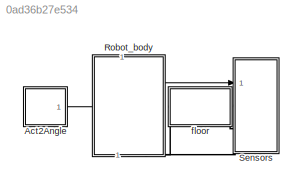
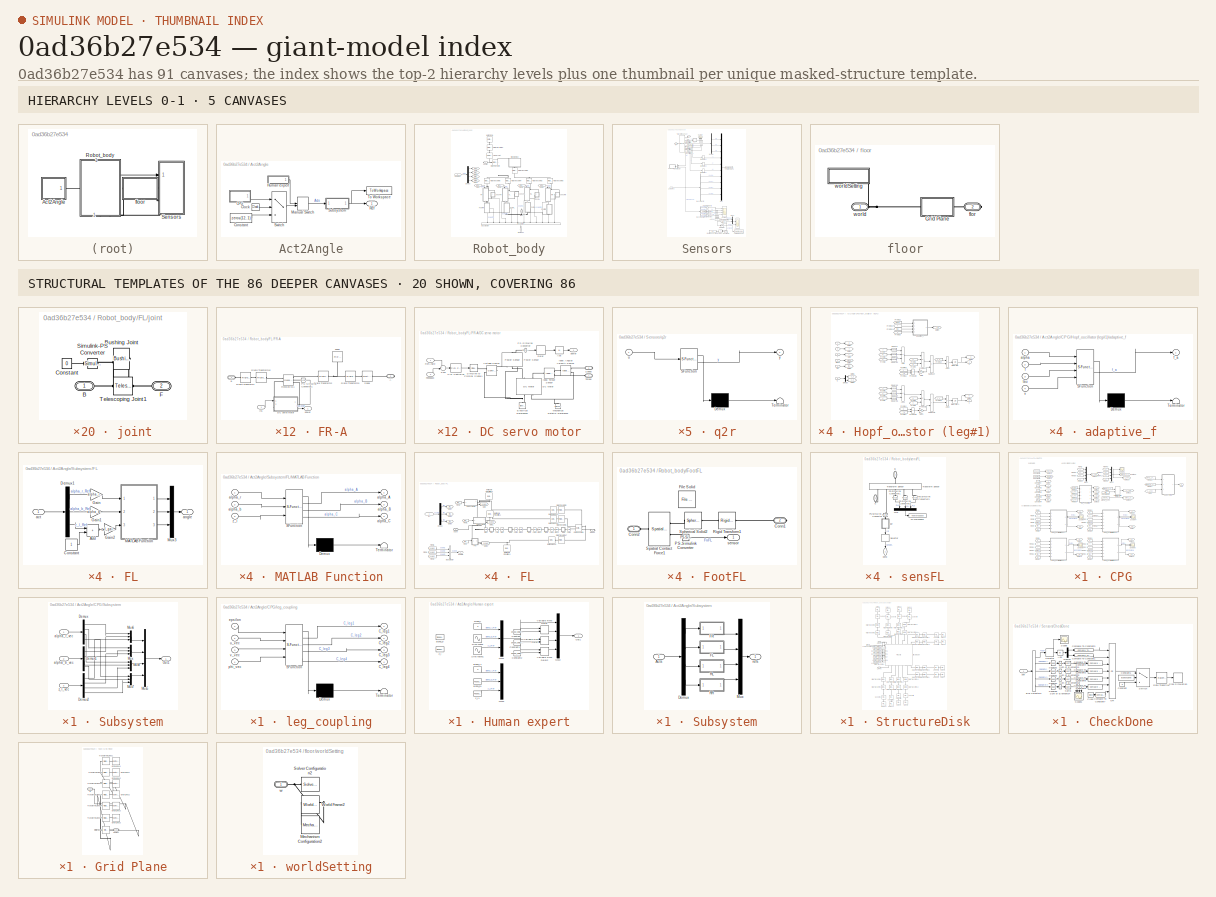
[diagram: thumbnail index - top-2 hierarchy levels (5 canvases) + 20 structural-template representatives of the remaining 86 canvases]
MODEL slx_0ad36b27e534
KIND model
CONFIG AbsTol = auto
CONFIG EnableMultiTasking = off
CONFIG FixedStep = Ts
CONFIG MaxStep = 0.2
CONFIG MinStep = auto
CONFIG RelTol = 1e-3
CONFIG SampleTimeConstraint = Unconstrained
CONFIG SolverName = ode15s
CONFIG StartTime = 0.0
CONFIG StopTime = Tf
WORKSPACE source: MATLAB code (in-file)
WORKSPACE angle_amp = pi/4  (= 0.785398163397)
WORKSPACE rotateCorrectionCoef = 1.158
WORKSPACE criticalFn = 2
WORKSPACE rotxNormGain = 1/0.1  (= 10)
WORKSPACE rotyNormGain = 1/0.05  (= 20)
WORKSPACE rotzNormGain = 1/0.1  (= 10)
WORKSPACE vxNormGain = 1/0.2  (= 5)
WORKSPACE vyNormGain = 1/0.2  (= 5)
WORKSPACE vzNormGain = 1/0.2  (= 5)
WORKSPACE FnNormGain = 1/15  (= 0.0666666666667)
WORKSPACE rotDone = pi/6  (= 0.523598775598)
WORKSPACE legBendDone = pi/3  (= 1.0471975512)
WORKSPACE robot_width = 0.15
WORKSPACE robot_length = 0.22
WORKSPACE floor_length = 2
WORKSPACE floor_width = 2
WORKSPACE L_disk = 0.02944
WORKSPACE R_w = L_disk/sqrt(3)
WORKSPACE thickness_disk = 0.004
WORKSPACE thigh_length = 0.06
WORKSPACE R_core = 0.005
WORKSPACE length_core = 0.008
WORKSPACE R_spool = 0.021
WORKSPACE spool_height = 0.022+0.015  (= 0.037)
WORKSPACE R_pulley = 1e-3  (= 0.001)
WORKSPACE spool_k = 0
WORKSPACE spool_d = 0
WORKSPACE hole_d = 4e-3  (= 0.004)
WORKSPACE rho_PLA = 1.24e3  (= 1240)
WORKSPACE rho = 1.19e3  (= 1190)
WORKSPACE Pz_stiff = 135000
WORKSPACE Pz_damping = 500
WORKSPACE S_stiff = 0.0239
WORKSPACE S_damping = 7.5e-5  (= 7.5e-05)
WORKSPACE S_low_Bound = -20
WORKSPACE S_up_Bound = 20
WORKSPACE R_foot = 0.015
WORKSPACE stall_T = 11.2/10  (= 1.12)
WORKSPACE t_60_deg = 0.2
WORKSPACE V_nomrmal = 6
WORKSPACE Jr = 0.0001
WORKSPACE coef_static_friction = 0.315
WORKSPACE coef_dynamic_friction = 0.3
WORKSPACE crictic_velocity = 0.3
WORKSPACE contact_suf_stiff = 1000
WORKSPACE contact_suf_damp = 50
WORKSPACE contact_region_width = 2e-3  (= 0.002)
WORKSPACE spoolOpacity = 0
WORKSPACE tendonColor = [0.902 0.902 0.902]
WORKSPACE tendonOpacity = 0.1
WORKSPACE MMainFrame = 198
WORKSPACE MServoMotor = 50.55
WORKSPACE MMotorSupport = 12.1
WORKSPACE MSpool = 9.2
WORKSPACE MComposateLoad = 200
WORKSPACE MBuck = 40
WORKSPACE MPCB_RPi = 141.3
WORKSPACE MLiBattery = 120
WORKSPACE MPowerBank = 66.5
WORKSPACE isLoadVisible = 0.1
WORKSPACE MThigh = 26.7963
WORKSPACE MCore = 0.747699
WORKSPACE MDisk = 1.78642
WORKSPACE MFoot = 16.8232
BLOCK [SubSystem] Act2Angle
  Ports = [0, 1]
  RequestExecContextInheritance = off
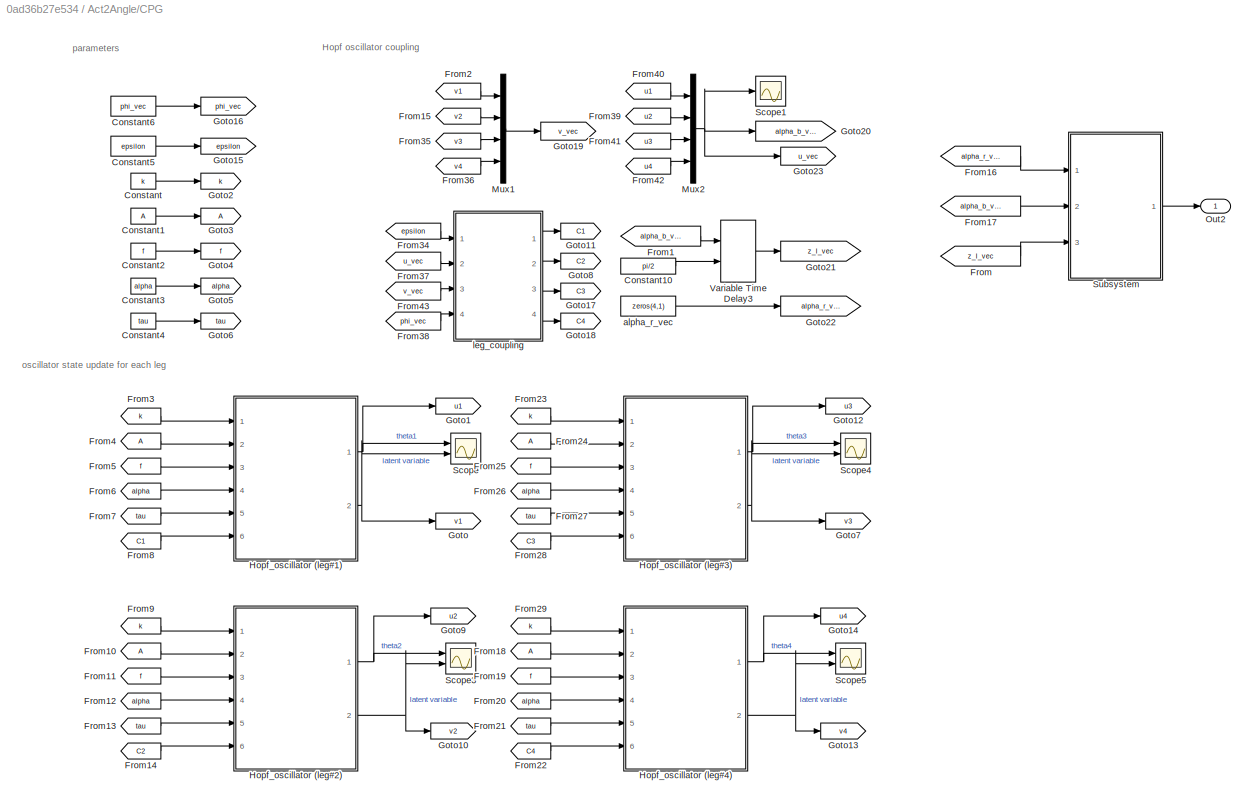
BLOCK [SubSystem] Act2Angle/CPG
  Ports = [0, 1]
  RequestExecContextInheritance = off
BLOCK [Constant] Act2Angle/CPG/Constant
  Value = k
BLOCK [Constant] Act2Angle/CPG/Constant1
  Value = A
BLOCK [Constant] Act2Angle/CPG/Constant10
  Value = pi/2
BLOCK [Constant] Act2Angle/CPG/Constant2
  Value = f
BLOCK [Constant] Act2Angle/CPG/Constant3
  Value = alpha
BLOCK [Constant] Act2Angle/CPG/Constant4
  Value = tau
BLOCK [Constant] Act2Angle/CPG/Constant5
  Value = epsilon
BLOCK [Constant] Act2Angle/CPG/Constant6
  Value = phi_vec
BLOCK [From] Act2Angle/CPG/From
  GotoTag = z_l_vec
BLOCK [From] Act2Angle/CPG/From1
  GotoTag = alpha_b_vec
BLOCK [From] Act2Angle/CPG/From10
BLOCK [From] Act2Angle/CPG/From11
  GotoTag = f
BLOCK [From] Act2Angle/CPG/From12
  GotoTag = alpha
BLOCK [From] Act2Angle/CPG/From13
  GotoTag = tau
BLOCK [From] Act2Angle/CPG/From14
  GotoTag = C2
BLOCK [From] Act2Angle/CPG/From15
  GotoTag = v2
BLOCK [From] Act2Angle/CPG/From16
  GotoTag = alpha_r_vec
BLOCK [From] Act2Angle/CPG/From17
  GotoTag = alpha_b_vec
BLOCK [From] Act2Angle/CPG/From18
BLOCK [From] Act2Angle/CPG/From19
  GotoTag = f
BLOCK [From] Act2Angle/CPG/From2
  GotoTag = v1
BLOCK [From] Act2Angle/CPG/From20
  GotoTag = alpha
BLOCK [From] Act2Angle/CPG/From21
  GotoTag = tau
BLOCK [From] Act2Angle/CPG/From22
  GotoTag = C4
BLOCK [From] Act2Angle/CPG/From23
  GotoTag = k
BLOCK [From] Act2Angle/CPG/From24
BLOCK [From] Act2Angle/CPG/From25
  GotoTag = f
BLOCK [From] Act2Angle/CPG/From26
  GotoTag = alpha
BLOCK [From] Act2Angle/CPG/From27
  GotoTag = tau
BLOCK [From] Act2Angle/CPG/From28
  GotoTag = C3
BLOCK [From] Act2Angle/CPG/From29
  GotoTag = k
BLOCK [From] Act2Angle/CPG/From3
  GotoTag = k
BLOCK [From] Act2Angle/CPG/From34
  GotoTag = epsilon
BLOCK [From] Act2Angle/CPG/From35
  GotoTag = v3
BLOCK [From] Act2Angle/CPG/From36
  GotoTag = v4
BLOCK [From] Act2Angle/CPG/From37
  GotoTag = u_vec
BLOCK [From] Act2Angle/CPG/From38
  GotoTag = phi_vec
BLOCK [From] Act2Angle/CPG/From39
  GotoTag = u2
BLOCK [From] Act2Angle/CPG/From4
BLOCK [From] Act2Angle/CPG/From40
  GotoTag = u1
BLOCK [From] Act2Angle/CPG/From41
  GotoTag = u3
BLOCK [From] Act2Angle/CPG/From42
  GotoTag = u4
BLOCK [From] Act2Angle/CPG/From43
  GotoTag = v_vec
BLOCK [From] Act2Angle/CPG/From5
  GotoTag = f
BLOCK [From] Act2Angle/CPG/From6
  GotoTag = alpha
BLOCK [From] Act2Angle/CPG/From7
  GotoTag = tau
BLOCK [From] Act2Angle/CPG/From8
  GotoTag = C1
BLOCK [From] Act2Angle/CPG/From9
  GotoTag = k
BLOCK [Goto] Act2Angle/CPG/Goto
  GotoTag = v1
BLOCK [Goto] Act2Angle/CPG/Goto1
  GotoTag = u1
BLOCK [Goto] Act2Angle/CPG/Goto10
  GotoTag = v2
BLOCK [Goto] Act2Angle/CPG/Goto11
  GotoTag = C1
BLOCK [Goto] Act2Angle/CPG/Goto12
  GotoTag = u3
BLOCK [Goto] Act2Angle/CPG/Goto13
  GotoTag = v4
BLOCK [Goto] Act2Angle/CPG/Goto14
  GotoTag = u4
BLOCK [Goto] Act2Angle/CPG/Goto15
  GotoTag = epsilon
BLOCK [Goto] Act2Angle/CPG/Goto16
  GotoTag = phi_vec
BLOCK [Goto] Act2Angle/CPG/Goto17
  GotoTag = C3
BLOCK [Goto] Act2Angle/CPG/Goto18
  GotoTag = C4
BLOCK [Goto] Act2Angle/CPG/Goto19
  GotoTag = v_vec
BLOCK [Goto] Act2Angle/CPG/Goto2
  GotoTag = k
BLOCK [Goto] Act2Angle/CPG/Goto20
  GotoTag = alpha_b_vec
BLOCK [Goto] Act2Angle/CPG/Goto21
  GotoTag = z_l_vec
BLOCK [Goto] Act2Angle/CPG/Goto22
  GotoTag = alpha_r_vec
BLOCK [Goto] Act2Angle/CPG/Goto23
  GotoTag = u_vec
BLOCK [Goto] Act2Angle/CPG/Goto3
BLOCK [Goto] Act2Angle/CPG/Goto4
  GotoTag = f
BLOCK [Goto] Act2Angle/CPG/Goto5
  GotoTag = alpha
BLOCK [Goto] Act2Angle/CPG/Goto6
  GotoTag = tau
BLOCK [Goto] Act2Angle/CPG/Goto7
  GotoTag = v3
BLOCK [Goto] Act2Angle/CPG/Goto8
  GotoTag = C2
BLOCK [Goto] Act2Angle/CPG/Goto9
  GotoTag = u2
BLOCK [SubSystem] Act2Angle/CPG/Hopf_oscillator (leg#1)
  Ports = [6, 2]
  RequestExecContextInheritance = off
BLOCK [Inport] Act2Angle/CPG/Hopf_oscillator (leg#1)/A
  Port = 2
BLOCK [Sum] Act2Angle/CPG/Hopf_oscillator (leg#1)/Add
  IconShape = rectangular
  Inputs = +--
  Ports = [3, 1]
BLOCK [Sum] Act2Angle/CPG/Hopf_oscillator (leg#1)/Add1
  IconShape = rectangular
  Inputs = +--
  Ports = [3, 1]
BLOCK [Sum] Act2Angle/CPG/Hopf_oscillator (leg#1)/Add2
  IconShape = rectangular
  Ports = [2, 1]
BLOCK [Sum] Act2Angle/CPG/Hopf_oscillator (leg#1)/Add3
  IconShape = rectangular
  Ports = [2, 1]
BLOCK [Inport] Act2Angle/CPG/Hopf_oscillator (leg#1)/C
  Port = 6
BLOCK [Demux] Act2Angle/CPG/Hopf_oscillator (leg#1)/Demux
  Outputs = 2
  Ports = [1, 2]
BLOCK [From] Act2Angle/CPG/Hopf_oscillator (leg#1)/From
BLOCK [From] Act2Angle/CPG/Hopf_oscillator (leg#1)/From1
  GotoTag = u
BLOCK [From] Act2Angle/CPG/Hopf_oscillator (leg#1)/From10
  GotoTag = v
BLOCK [From] Act2Angle/CPG/Hopf_oscillator (leg#1)/From11
  GotoTag = f_a
BLOCK [From] Act2Angle/CPG/Hopf_oscillator (leg#1)/From12
  GotoTag = u
BLOCK [From] Act2Angle/CPG/Hopf_oscillator (leg#1)/From14
  GotoTag = c_u
BLOCK [From] Act2Angle/CPG/Hopf_oscillator (leg#1)/From15
  GotoTag = c_v
BLOCK [From] Act2Angle/CPG/Hopf_oscillator (leg#1)/From16
  GotoTag = f_a
BLOCK [From] Act2Angle/CPG/Hopf_oscillator (leg#1)/From2
  GotoTag = v
BLOCK [From] Act2Angle/CPG/Hopf_oscillator (leg#1)/From22
  GotoTag = alpha
BLOCK [From] Act2Angle/CPG/Hopf_oscillator (leg#1)/From23
  GotoTag = f
BLOCK [From] Act2Angle/CPG/Hopf_oscillator (leg#1)/From24
  GotoTag = tau
BLOCK [From] Act2Angle/CPG/Hopf_oscillator (leg#1)/From25
  GotoTag = v
BLOCK [From] Act2Angle/CPG/Hopf_oscillator (leg#1)/From3
  GotoTag = k
BLOCK [From] Act2Angle/CPG/Hopf_oscillator (leg#1)/From4
  GotoTag = u
BLOCK [From] Act2Angle/CPG/Hopf_oscillator (leg#1)/From5
BLOCK [From] Act2Angle/CPG/Hopf_oscillator (leg#1)/From6
  GotoTag = u
BLOCK [From] Act2Angle/CPG/Hopf_oscillator (leg#1)/From7
  GotoTag = v
BLOCK [From] Act2Angle/CPG/Hopf_oscillator (leg#1)/From8
  GotoTag = k
BLOCK [From] Act2Angle/CPG/Hopf_oscillator (leg#1)/From9
  GotoTag = v
BLOCK [Gain] Act2Angle/CPG/Hopf_oscillator (leg#1)/Gain
  Gain = 2*pi
BLOCK [Gain] Act2Angle/CPG/Hopf_oscillator (leg#1)/Gain1
  Gain = 2*pi
BLOCK [Goto] Act2Angle/CPG/Hopf_oscillator (leg#1)/Goto
  GotoTag = f
BLOCK [Goto] Act2Angle/CPG/Hopf_oscillator (leg#1)/Goto1
BLOCK [Goto] Act2Angle/CPG/Hopf_oscillator (leg#1)/Goto2
  GotoTag = k
BLOCK [Goto] Act2Angle/CPG/Hopf_oscillator (leg#1)/Goto3
  GotoTag = u
BLOCK [Goto] Act2Angle/CPG/Hopf_oscillator (leg#1)/Goto4
  GotoTag = v
BLOCK [Goto] Act2Angle/CPG/Hopf_oscillator (leg#1)/Goto5
  GotoTag = c_u
BLOCK [Goto] Act2Angle/CPG/Hopf_oscillator (leg#1)/Goto6
  GotoTag = c_v
BLOCK [Goto] Act2Angle/CPG/Hopf_oscillator (leg#1)/Goto7
  GotoTag = alpha
BLOCK [Goto] Act2Angle/CPG/Hopf_oscillator (leg#1)/Goto8
  GotoTag = tau
BLOCK [Goto] Act2Angle/CPG/Hopf_oscillator (leg#1)/Goto9
  GotoTag = f_a
BLOCK [Integrator] Act2Angle/CPG/Hopf_oscillator (leg#1)/Integrator
  InitialCondition = init_state(1)
  Ports = [1, 1]
BLOCK [Integrator] Act2Angle/CPG/Hopf_oscillator (leg#1)/Integrator1
  InitialCondition = init_state(2)
  Ports = [1, 1]
BLOCK [Product] Act2Angle/CPG/Hopf_oscillator (leg#1)/Product
  Inputs = 3
  Ports = [3, 1]
BLOCK [Product] Act2Angle/CPG/Hopf_oscillator (leg#1)/Product1
  Inputs = 3
  Ports = [3, 1]
BLOCK [Product] Act2Angle/CPG/Hopf_oscillator (leg#1)/Product2
  Ports = [2, 1]
BLOCK [Product] Act2Angle/CPG/Hopf_oscillator (leg#1)/Product3
  Ports = [2, 1]
BLOCK [Math] Act2Angle/CPG/Hopf_oscillator (leg#1)/Square
  Operator = square
  Ports = [1, 1]
BLOCK [Math] Act2Angle/CPG/Hopf_oscillator (leg#1)/Square1
  Operator = square
  Ports = [1, 1]
BLOCK [Math] Act2Angle/CPG/Hopf_oscillator (leg#1)/Square2
  Operator = square
  Ports = [1, 1]
BLOCK [Math] Act2Angle/CPG/Hopf_oscillator (leg#1)/Square3
  Operator = square
  Ports = [1, 1]
BLOCK [Math] Act2Angle/CPG/Hopf_oscillator (leg#1)/Square4
  Operator = square
  Ports = [1, 1]
BLOCK [Math] Act2Angle/CPG/Hopf_oscillator (leg#1)/Square5
  Operator = square
  Ports = [1, 1]
BLOCK [Sum] Act2Angle/CPG/Hopf_oscillator (leg#1)/Subtract
  IconShape = rectangular
  Inputs = +-
  Ports = [2, 1]
BLOCK [Sum] Act2Angle/CPG/Hopf_oscillator (leg#1)/Subtract1
  IconShape = rectangular
  Ports = [2, 1]
BLOCK [SubSystem] Act2Angle/CPG/Hopf_oscillator (leg#1)/adaptive_f
  ErrorFcn = Stateflow.Translate.translate
  PermitHierarchicalResolution = ExplicitOnly
  Ports = [4, 1]
  RequestExecContextInheritance = off
  SFBlockType = MATLAB Function
  TreatAsAtomicUnit = on
BLOCK [Demux] Act2Angle/CPG/Hopf_oscillator (leg#1)/adaptive_f/ Demux 
  Outputs = 1
  Ports = [1, 1]
BLOCK [S-Function] Act2Angle/CPG/Hopf_oscillator (leg#1)/adaptive_f/ SFunction 
  EnableBusSupport = on
  FunctionName = sf_sfun
  PortCounts = [4 2]
  Ports = [4, 2]
  SFcnIsStateOwnerBlock = off
  SFunctionDeploymentMode = off
  Tag = Stateflow S-Function 6
BLOCK [Terminator] Act2Angle/CPG/Hopf_oscillator (leg#1)/adaptive_f/ Terminator 
BLOCK [Inport] Act2Angle/CPG/Hopf_oscillator (leg#1)/adaptive_f/alpha
BLOCK [Inport] Act2Angle/CPG/Hopf_oscillator (leg#1)/adaptive_f/f
  Port = 2
BLOCK [Outport] Act2Angle/CPG/Hopf_oscillator (leg#1)/adaptive_f/f_a
BLOCK [Inport] Act2Angle/CPG/Hopf_oscillator (leg#1)/adaptive_f/tau
  Port = 3
BLOCK [Inport] Act2Angle/CPG/Hopf_oscillator (leg#1)/adaptive_f/v
  Port = 4
BLOCK [Inport] Act2Angle/CPG/Hopf_oscillator (leg#1)/alpha
  Port = 4
BLOCK [Inport] Act2Angle/CPG/Hopf_oscillator (leg#1)/f
  Port = 3
BLOCK [Inport] Act2Angle/CPG/Hopf_oscillator (leg#1)/k
BLOCK [Inport] Act2Angle/CPG/Hopf_oscillator (leg#1)/tau
  Port = 5
BLOCK [Outport] Act2Angle/CPG/Hopf_oscillator (leg#1)/u
BLOCK [Outport] Act2Angle/CPG/Hopf_oscillator (leg#1)/v
  Port = 2
BLOCK [SubSystem] Act2Angle/CPG/Hopf_oscillator (leg#2)
  Ports = [6, 2]
  RequestExecContextInheritance = off
BLOCK [Inport] Act2Angle/CPG/Hopf_oscillator (leg#2)/A
  Port = 2
BLOCK [Sum] Act2Angle/CPG/Hopf_oscillator (leg#2)/Add
  IconShape = rectangular
  Inputs = +--
  Ports = [3, 1]
BLOCK [Sum] Act2Angle/CPG/Hopf_oscillator (leg#2)/Add1
  IconShape = rectangular
  Inputs = +--
  Ports = [3, 1]
BLOCK [Sum] Act2Angle/CPG/Hopf_oscillator (leg#2)/Add2
  IconShape = rectangular
  Ports = [2, 1]
BLOCK [Sum] Act2Angle/CPG/Hopf_oscillator (leg#2)/Add3
  IconShape = rectangular
  Ports = [2, 1]
BLOCK [Inport] Act2Angle/CPG/Hopf_oscillator (leg#2)/C
  Port = 6
BLOCK [Demux] Act2Angle/CPG/Hopf_oscillator (leg#2)/Demux
  Outputs = 2
  Ports = [1, 2]
BLOCK [From] Act2Angle/CPG/Hopf_oscillator (leg#2)/From
BLOCK [From] Act2Angle/CPG/Hopf_oscillator (leg#2)/From1
  GotoTag = u
BLOCK [From] Act2Angle/CPG/Hopf_oscillator (leg#2)/From10
  GotoTag = v
BLOCK [From] Act2Angle/CPG/Hopf_oscillator (leg#2)/From11
  GotoTag = f_a
BLOCK [From] Act2Angle/CPG/Hopf_oscillator (leg#2)/From12
  GotoTag = u
BLOCK [From] Act2Angle/CPG/Hopf_oscillator (leg#2)/From14
  GotoTag = c_u
BLOCK [From] Act2Angle/CPG/Hopf_oscillator (leg#2)/From15
  GotoTag = c_v
BLOCK [From] Act2Angle/CPG/Hopf_oscillator (leg#2)/From16
  GotoTag = f_a
BLOCK [From] Act2Angle/CPG/Hopf_oscillator (leg#2)/From2
  GotoTag = v
BLOCK [From] Act2Angle/CPG/Hopf_oscillator (leg#2)/From22
  GotoTag = alpha
BLOCK [From] Act2Angle/CPG/Hopf_oscillator (leg#2)/From23
  GotoTag = f
BLOCK [From] Act2Angle/CPG/Hopf_oscillator (leg#2)/From24
  GotoTag = tau
BLOCK [From] Act2Angle/CPG/Hopf_oscillator (leg#2)/From25
  GotoTag = v
BLOCK [From] Act2Angle/CPG/Hopf_oscillator (leg#2)/From3
  GotoTag = k
BLOCK [From] Act2Angle/CPG/Hopf_oscillator (leg#2)/From4
  GotoTag = u
BLOCK [From] Act2Angle/CPG/Hopf_oscillator (leg#2)/From5
BLOCK [From] Act2Angle/CPG/Hopf_oscillator (leg#2)/From6
  GotoTag = u
BLOCK [From] Act2Angle/CPG/Hopf_oscillator (leg#2)/From7
  GotoTag = v
BLOCK [From] Act2Angle/CPG/Hopf_oscillator (leg#2)/From8
  GotoTag = k
BLOCK [From] Act2Angle/CPG/Hopf_oscillator (leg#2)/From9
  GotoTag = v
BLOCK [Gain] Act2Angle/CPG/Hopf_oscillator (leg#2)/Gain
  Gain = 2*pi
BLOCK [Gain] Act2Angle/CPG/Hopf_oscillator (leg#2)/Gain1
  Gain = 2*pi
BLOCK [Goto] Act2Angle/CPG/Hopf_oscillator (leg#2)/Goto
  GotoTag = f
BLOCK [Goto] Act2Angle/CPG/Hopf_oscillator (leg#2)/Goto1
BLOCK [Goto] Act2Angle/CPG/Hopf_oscillator (leg#2)/Goto2
  GotoTag = k
BLOCK [Goto] Act2Angle/CPG/Hopf_oscillator (leg#2)/Goto3
  GotoTag = u
BLOCK [Goto] Act2Angle/CPG/Hopf_oscillator (leg#2)/Goto4
  GotoTag = v
BLOCK [Goto] Act2Angle/CPG/Hopf_oscillator (leg#2)/Goto5
  GotoTag = c_u
BLOCK [Goto] Act2Angle/CPG/Hopf_oscillator (leg#2)/Goto6
  GotoTag = c_v
BLOCK [Goto] Act2Angle/CPG/Hopf_oscillator (leg#2)/Goto7
  GotoTag = alpha
BLOCK [Goto] Act2Angle/CPG/Hopf_oscillator (leg#2)/Goto8
  GotoTag = tau
BLOCK [Goto] Act2Angle/CPG/Hopf_oscillator (leg#2)/Goto9
  GotoTag = f_a
BLOCK [Integrator] Act2Angle/CPG/Hopf_oscillator (leg#2)/Integrator
  InitialCondition = init_state(3)
  Ports = [1, 1]
BLOCK [Integrator] Act2Angle/CPG/Hopf_oscillator (leg#2)/Integrator1
  InitialCondition = init_state(4)
  Ports = [1, 1]
BLOCK [Product] Act2Angle/CPG/Hopf_oscillator (leg#2)/Product
  Inputs = 3
  Ports = [3, 1]
BLOCK [Product] Act2Angle/CPG/Hopf_oscillator (leg#2)/Product1
  Inputs = 3
  Ports = [3, 1]
BLOCK [Product] Act2Angle/CPG/Hopf_oscillator (leg#2)/Product2
  Ports = [2, 1]
BLOCK [Product] Act2Angle/CPG/Hopf_oscillator (leg#2)/Product3
  Ports = [2, 1]
BLOCK [Math] Act2Angle/CPG/Hopf_oscillator (leg#2)/Square
  Operator = square
  Ports = [1, 1]
BLOCK [Math] Act2Angle/CPG/Hopf_oscillator (leg#2)/Square1
  Operator = square
  Ports = [1, 1]
BLOCK [Math] Act2Angle/CPG/Hopf_oscillator (leg#2)/Square2
  Operator = square
  Ports = [1, 1]
BLOCK [Math] Act2Angle/CPG/Hopf_oscillator (leg#2)/Square3
  Operator = square
  Ports = [1, 1]
BLOCK [Math] Act2Angle/CPG/Hopf_oscillator (leg#2)/Square4
  Operator = square
  Ports = [1, 1]
BLOCK [Math] Act2Angle/CPG/Hopf_oscillator (leg#2)/Square5
  Operator = square
  Ports = [1, 1]
BLOCK [Sum] Act2Angle/CPG/Hopf_oscillator (leg#2)/Subtract
  IconShape = rectangular
  Inputs = +-
  Ports = [2, 1]
BLOCK [Sum] Act2Angle/CPG/Hopf_oscillator (leg#2)/Subtract1
  IconShape = rectangular
  Ports = [2, 1]
BLOCK [SubSystem] Act2Angle/CPG/Hopf_oscillator (leg#2)/adaptive_f
  ErrorFcn = Stateflow.Translate.translate
  PermitHierarchicalResolution = ExplicitOnly
  Ports = [4, 1]
  RequestExecContextInheritance = off
  SFBlockType = MATLAB Function
  TreatAsAtomicUnit = on
BLOCK [Demux] Act2Angle/CPG/Hopf_oscillator (leg#2)/adaptive_f/ Demux 
  Outputs = 1
  Ports = [1, 1]
BLOCK [S-Function] Act2Angle/CPG/Hopf_oscillator (leg#2)/adaptive_f/ SFunction 
  EnableBusSupport = on
  FunctionName = sf_sfun
  PortCounts = [4 2]
  Ports = [4, 2]
  SFcnIsStateOwnerBlock = off
  SFunctionDeploymentMode = off
  Tag = Stateflow S-Function 11
BLOCK [Terminator] Act2Angle/CPG/Hopf_oscillator (leg#2)/adaptive_f/ Terminator 
BLOCK [Inport] Act2Angle/CPG/Hopf_oscillator (leg#2)/adaptive_f/alpha
BLOCK [Inport] Act2Angle/CPG/Hopf_oscillator (leg#2)/adaptive_f/f
  Port = 2
BLOCK [Outport] Act2Angle/CPG/Hopf_oscillator (leg#2)/adaptive_f/f_a
BLOCK [Inport] Act2Angle/CPG/Hopf_oscillator (leg#2)/adaptive_f/tau
  Port = 3
BLOCK [Inport] Act2Angle/CPG/Hopf_oscillator (leg#2)/adaptive_f/v
  Port = 4
BLOCK [Inport] Act2Angle/CPG/Hopf_oscillator (leg#2)/alpha
  Port = 4
BLOCK [Inport] Act2Angle/CPG/Hopf_oscillator (leg#2)/f
  Port = 3
BLOCK [Inport] Act2Angle/CPG/Hopf_oscillator (leg#2)/k
BLOCK [Inport] Act2Angle/CPG/Hopf_oscillator (leg#2)/tau
  Port = 5
BLOCK [Outport] Act2Angle/CPG/Hopf_oscillator (leg#2)/u
BLOCK [Outport] Act2Angle/CPG/Hopf_oscillator (leg#2)/v
  Port = 2
BLOCK [SubSystem] Act2Angle/CPG/Hopf_oscillator (leg#3)
  Ports = [6, 2]
  RequestExecContextInheritance = off
BLOCK [Inport] Act2Angle/CPG/Hopf_oscillator (leg#3)/A
  Port = 2
BLOCK [Sum] Act2Angle/CPG/Hopf_oscillator (leg#3)/Add
  IconShape = rectangular
  Inputs = +--
  Ports = [3, 1]
BLOCK [Sum] Act2Angle/CPG/Hopf_oscillator (leg#3)/Add1
  IconShape = rectangular
  Inputs = +--
  Ports = [3, 1]
BLOCK [Sum] Act2Angle/CPG/Hopf_oscillator (leg#3)/Add2
  IconShape = rectangular
  Ports = [2, 1]
BLOCK [Sum] Act2Angle/CPG/Hopf_oscillator (leg#3)/Add3
  IconShape = rectangular
  Ports = [2, 1]
BLOCK [Inport] Act2Angle/CPG/Hopf_oscillator (leg#3)/C
  Port = 6
BLOCK [Demux] Act2Angle/CPG/Hopf_oscillator (leg#3)/Demux
  Outputs = 2
  Ports = [1, 2]
BLOCK [From] Act2Angle/CPG/Hopf_oscillator (leg#3)/From
BLOCK [From] Act2Angle/CPG/Hopf_oscillator (leg#3)/From1
  GotoTag = u
BLOCK [From] Act2Angle/CPG/Hopf_oscillator (leg#3)/From10
  GotoTag = v
BLOCK [From] Act2Angle/CPG/Hopf_oscillator (leg#3)/From11
  GotoTag = f_a
BLOCK [From] Act2Angle/CPG/Hopf_oscillator (leg#3)/From12
  GotoTag = u
BLOCK [From] Act2Angle/CPG/Hopf_oscillator (leg#3)/From14
  GotoTag = c_u
BLOCK [From] Act2Angle/CPG/Hopf_oscillator (leg#3)/From15
  GotoTag = c_v
BLOCK [From] Act2Angle/CPG/Hopf_oscillator (leg#3)/From16
  GotoTag = f_a
BLOCK [From] Act2Angle/CPG/Hopf_oscillator (leg#3)/From2
  GotoTag = v
BLOCK [From] Act2Angle/CPG/Hopf_oscillator (leg#3)/From22
  GotoTag = alpha
BLOCK [From] Act2Angle/CPG/Hopf_oscillator (leg#3)/From23
  GotoTag = f
BLOCK [From] Act2Angle/CPG/Hopf_oscillator (leg#3)/From24
  GotoTag = tau
BLOCK [From] Act2Angle/CPG/Hopf_oscillator (leg#3)/From25
  GotoTag = v
BLOCK [From] Act2Angle/CPG/Hopf_oscillator (leg#3)/From3
  GotoTag = k
BLOCK [From] Act2Angle/CPG/Hopf_oscillator (leg#3)/From4
  GotoTag = u
BLOCK [From] Act2Angle/CPG/Hopf_oscillator (leg#3)/From5
BLOCK [From] Act2Angle/CPG/Hopf_oscillator (leg#3)/From6
  GotoTag = u
BLOCK [From] Act2Angle/CPG/Hopf_oscillator (leg#3)/From7
  GotoTag = v
BLOCK [From] Act2Angle/CPG/Hopf_oscillator (leg#3)/From8
  GotoTag = k
BLOCK [From] Act2Angle/CPG/Hopf_oscillator (leg#3)/From9
  GotoTag = v
BLOCK [Gain] Act2Angle/CPG/Hopf_oscillator (leg#3)/Gain
  Gain = 2*pi
BLOCK [Gain] Act2Angle/CPG/Hopf_oscillator (leg#3)/Gain1
  Gain = 2*pi
BLOCK [Goto] Act2Angle/CPG/Hopf_oscillator (leg#3)/Goto
  GotoTag = f
BLOCK [Goto] Act2Angle/CPG/Hopf_oscillator (leg#3)/Goto1
BLOCK [Goto] Act2Angle/CPG/Hopf_oscillator (leg#3)/Goto2
  GotoTag = k
BLOCK [Goto] Act2Angle/CPG/Hopf_oscillator (leg#3)/Goto3
  GotoTag = u
BLOCK [Goto] Act2Angle/CPG/Hopf_oscillator (leg#3)/Goto4
  GotoTag = v
BLOCK [Goto] Act2Angle/CPG/Hopf_oscillator (leg#3)/Goto5
  GotoTag = c_u
BLOCK [Goto] Act2Angle/CPG/Hopf_oscillator (leg#3)/Goto6
  GotoTag = c_v
BLOCK [Goto] Act2Angle/CPG/Hopf_oscillator (leg#3)/Goto7
  GotoTag = alpha
BLOCK [Goto] Act2Angle/CPG/Hopf_oscillator (leg#3)/Goto8
  GotoTag = tau
BLOCK [Goto] Act2Angle/CPG/Hopf_oscillator (leg#3)/Goto9
  GotoTag = f_a
BLOCK [Integrator] Act2Angle/CPG/Hopf_oscillator (leg#3)/Integrator
  InitialCondition = init_state(5)
  Ports = [1, 1]
BLOCK [Integrator] Act2Angle/CPG/Hopf_oscillator (leg#3)/Integrator1
  InitialCondition = init_state(6)
  Ports = [1, 1]
BLOCK [Product] Act2Angle/CPG/Hopf_oscillator (leg#3)/Product
  Inputs = 3
  Ports = [3, 1]
BLOCK [Product] Act2Angle/CPG/Hopf_oscillator (leg#3)/Product1
  Inputs = 3
  Ports = [3, 1]
BLOCK [Product] Act2Angle/CPG/Hopf_oscillator (leg#3)/Product2
  Ports = [2, 1]
BLOCK [Product] Act2Angle/CPG/Hopf_oscillator (leg#3)/Product3
  Ports = [2, 1]
BLOCK [Math] Act2Angle/CPG/Hopf_oscillator (leg#3)/Square
  Operator = square
  Ports = [1, 1]
BLOCK [Math] Act2Angle/CPG/Hopf_oscillator (leg#3)/Square1
  Operator = square
  Ports = [1, 1]
BLOCK [Math] Act2Angle/CPG/Hopf_oscillator (leg#3)/Square2
  Operator = square
  Ports = [1, 1]
BLOCK [Math] Act2Angle/CPG/Hopf_oscillator (leg#3)/Square3
  Operator = square
  Ports = [1, 1]
BLOCK [Math] Act2Angle/CPG/Hopf_oscillator (leg#3)/Square4
  Operator = square
  Ports = [1, 1]
BLOCK [Math] Act2Angle/CPG/Hopf_oscillator (leg#3)/Square5
  Operator = square
  Ports = [1, 1]
BLOCK [Sum] Act2Angle/CPG/Hopf_oscillator (leg#3)/Subtract
  IconShape = rectangular
  Inputs = +-
  Ports = [2, 1]
BLOCK [Sum] Act2Angle/CPG/Hopf_oscillator (leg#3)/Subtract1
  IconShape = rectangular
  Ports = [2, 1]
BLOCK [SubSystem] Act2Angle/CPG/Hopf_oscillator (leg#3)/adaptive_f
  ErrorFcn = Stateflow.Translate.translate
  PermitHierarchicalResolution = ExplicitOnly
  Ports = [4, 1]
  RequestExecContextInheritance = off
  SFBlockType = MATLAB Function
  TreatAsAtomicUnit = on
BLOCK [Demux] Act2Angle/CPG/Hopf_oscillator (leg#3)/adaptive_f/ Demux 
  Outputs = 1
  Ports = [1, 1]
BLOCK [S-Function] Act2Angle/CPG/Hopf_oscillator (leg#3)/adaptive_f/ SFunction 
  EnableBusSupport = on
  FunctionName = sf_sfun
  PortCounts = [4 2]
  Ports = [4, 2]
  SFcnIsStateOwnerBlock = off
  SFunctionDeploymentMode = off
  Tag = Stateflow S-Function 12
BLOCK [Terminator] Act2Angle/CPG/Hopf_oscillator (leg#3)/adaptive_f/ Terminator 
BLOCK [Inport] Act2Angle/CPG/Hopf_oscillator (leg#3)/adaptive_f/alpha
BLOCK [Inport] Act2Angle/CPG/Hopf_oscillator (leg#3)/adaptive_f/f
  Port = 2
BLOCK [Outport] Act2Angle/CPG/Hopf_oscillator (leg#3)/adaptive_f/f_a
BLOCK [Inport] Act2Angle/CPG/Hopf_oscillator (leg#3)/adaptive_f/tau
  Port = 3
BLOCK [Inport] Act2Angle/CPG/Hopf_oscillator (leg#3)/adaptive_f/v
  Port = 4
BLOCK [Inport] Act2Angle/CPG/Hopf_oscillator (leg#3)/alpha
  Port = 4
BLOCK [Inport] Act2Angle/CPG/Hopf_oscillator (leg#3)/f
  Port = 3
BLOCK [Inport] Act2Angle/CPG/Hopf_oscillator (leg#3)/k
BLOCK [Inport] Act2Angle/CPG/Hopf_oscillator (leg#3)/tau
  Port = 5
BLOCK [Outport] Act2Angle/CPG/Hopf_oscillator (leg#3)/u
BLOCK [Outport] Act2Angle/CPG/Hopf_oscillator (leg#3)/v
  Port = 2
BLOCK [SubSystem] Act2Angle/CPG/Hopf_oscillator (leg#4)
  Ports = [6, 2]
  RequestExecContextInheritance = off
BLOCK [Inport] Act2Angle/CPG/Hopf_oscillator (leg#4)/A
  Port = 2
BLOCK [Sum] Act2Angle/CPG/Hopf_oscillator (leg#4)/Add
  IconShape = rectangular
  Inputs = +--
  Ports = [3, 1]
BLOCK [Sum] Act2Angle/CPG/Hopf_oscillator (leg#4)/Add1
  IconShape = rectangular
  Inputs = +--
  Ports = [3, 1]
BLOCK [Sum] Act2Angle/CPG/Hopf_oscillator (leg#4)/Add2
  IconShape = rectangular
  Ports = [2, 1]
BLOCK [Sum] Act2Angle/CPG/Hopf_oscillator (leg#4)/Add3
  IconShape = rectangular
  Ports = [2, 1]
BLOCK [Inport] Act2Angle/CPG/Hopf_oscillator (leg#4)/C
  Port = 6
BLOCK [Demux] Act2Angle/CPG/Hopf_oscillator (leg#4)/Demux
  Outputs = 2
  Ports = [1, 2]
BLOCK [From] Act2Angle/CPG/Hopf_oscillator (leg#4)/From
BLOCK [From] Act2Angle/CPG/Hopf_oscillator (leg#4)/From1
  GotoTag = u
BLOCK [From] Act2Angle/CPG/Hopf_oscillator (leg#4)/From10
  GotoTag = v
BLOCK [From] Act2Angle/CPG/Hopf_oscillator (leg#4)/From11
  GotoTag = f_a
BLOCK [From] Act2Angle/CPG/Hopf_oscillator (leg#4)/From12
  GotoTag = u
BLOCK [From] Act2Angle/CPG/Hopf_oscillator (leg#4)/From14
  GotoTag = c_u
BLOCK [From] Act2Angle/CPG/Hopf_oscillator (leg#4)/From15
  GotoTag = c_v
BLOCK [From] Act2Angle/CPG/Hopf_oscillator (leg#4)/From16
  GotoTag = f_a
BLOCK [From] Act2Angle/CPG/Hopf_oscillator (leg#4)/From2
  GotoTag = v
BLOCK [From] Act2Angle/CPG/Hopf_oscillator (leg#4)/From22
  GotoTag = alpha
BLOCK [From] Act2Angle/CPG/Hopf_oscillator (leg#4)/From23
  GotoTag = f
BLOCK [From] Act2Angle/CPG/Hopf_oscillator (leg#4)/From24
  GotoTag = tau
BLOCK [From] Act2Angle/CPG/Hopf_oscillator (leg#4)/From25
  GotoTag = v
BLOCK [From] Act2Angle/CPG/Hopf_oscillator (leg#4)/From3
  GotoTag = k
BLOCK [From] Act2Angle/CPG/Hopf_oscillator (leg#4)/From4
  GotoTag = u
BLOCK [From] Act2Angle/CPG/Hopf_oscillator (leg#4)/From5
BLOCK [From] Act2Angle/CPG/Hopf_oscillator (leg#4)/From6
  GotoTag = u
BLOCK [From] Act2Angle/CPG/Hopf_oscillator (leg#4)/From7
  GotoTag = v
BLOCK [From] Act2Angle/CPG/Hopf_oscillator (leg#4)/From8
  GotoTag = k
BLOCK [From] Act2Angle/CPG/Hopf_oscillator (leg#4)/From9
  GotoTag = v
BLOCK [Gain] Act2Angle/CPG/Hopf_oscillator (leg#4)/Gain
  Gain = 2*pi
BLOCK [Gain] Act2Angle/CPG/Hopf_oscillator (leg#4)/Gain1
  Gain = 2*pi
BLOCK [Goto] Act2Angle/CPG/Hopf_oscillator (leg#4)/Goto
  GotoTag = f
BLOCK [Goto] Act2Angle/CPG/Hopf_oscillator (leg#4)/Goto1
BLOCK [Goto] Act2Angle/CPG/Hopf_oscillator (leg#4)/Goto2
  GotoTag = k
BLOCK [Goto] Act2Angle/CPG/Hopf_oscillator (leg#4)/Goto3
  GotoTag = u
BLOCK [Goto] Act2Angle/CPG/Hopf_oscillator (leg#4)/Goto4
  GotoTag = v
BLOCK [Goto] Act2Angle/CPG/Hopf_oscillator (leg#4)/Goto5
  GotoTag = c_u
BLOCK [Goto] Act2Angle/CPG/Hopf_oscillator (leg#4)/Goto6
  GotoTag = c_v
BLOCK [Goto] Act2Angle/CPG/Hopf_oscillator (leg#4)/Goto7
  GotoTag = alpha
BLOCK [Goto] Act2Angle/CPG/Hopf_oscillator (leg#4)/Goto8
  GotoTag = tau
BLOCK [Goto] Act2Angle/CPG/Hopf_oscillator (leg#4)/Goto9
  GotoTag = f_a
BLOCK [Integrator] Act2Angle/CPG/Hopf_oscillator (leg#4)/Integrator
  InitialCondition = init_state(7)
  Ports = [1, 1]
BLOCK [Integrator] Act2Angle/CPG/Hopf_oscillator (leg#4)/Integrator1
  InitialCondition = init_state(8)
  Ports = [1, 1]
BLOCK [Product] Act2Angle/CPG/Hopf_oscillator (leg#4)/Product
  Inputs = 3
  Ports = [3, 1]
BLOCK [Product] Act2Angle/CPG/Hopf_oscillator (leg#4)/Product1
  Inputs = 3
  Ports = [3, 1]
BLOCK [Product] Act2Angle/CPG/Hopf_oscillator (leg#4)/Product2
  Ports = [2, 1]
BLOCK [Product] Act2Angle/CPG/Hopf_oscillator (leg#4)/Product3
  Ports = [2, 1]
BLOCK [Math] Act2Angle/CPG/Hopf_oscillator (leg#4)/Square
  Operator = square
  Ports = [1, 1]
BLOCK [Math] Act2Angle/CPG/Hopf_oscillator (leg#4)/Square1
  Operator = square
  Ports = [1, 1]
BLOCK [Math] Act2Angle/CPG/Hopf_oscillator (leg#4)/Square2
  Operator = square
  Ports = [1, 1]
BLOCK [Math] Act2Angle/CPG/Hopf_oscillator (leg#4)/Square3
  Operator = square
  Ports = [1, 1]
BLOCK [Math] Act2Angle/CPG/Hopf_oscillator (leg#4)/Square4
  Operator = square
  Ports = [1, 1]
BLOCK [Math] Act2Angle/CPG/Hopf_oscillator (leg#4)/Square5
  Operator = square
  Ports = [1, 1]
BLOCK [Sum] Act2Angle/CPG/Hopf_oscillator (leg#4)/Subtract
  IconShape = rectangular
  Inputs = +-
  Ports = [2, 1]
BLOCK [Sum] Act2Angle/CPG/Hopf_oscillator (leg#4)/Subtract1
  IconShape = rectangular
  Ports = [2, 1]
BLOCK [SubSystem] Act2Angle/CPG/Hopf_oscillator (leg#4)/adaptive_f
  ErrorFcn = Stateflow.Translate.translate
  PermitHierarchicalResolution = ExplicitOnly
  Ports = [4, 1]
  RequestExecContextInheritance = off
  SFBlockType = MATLAB Function
  TreatAsAtomicUnit = on
BLOCK [Demux] Act2Angle/CPG/Hopf_oscillator (leg#4)/adaptive_f/ Demux 
  Outputs = 1
  Ports = [1, 1]
BLOCK [S-Function] Act2Angle/CPG/Hopf_oscillator (leg#4)/adaptive_f/ SFunction 
  EnableBusSupport = on
  FunctionName = sf_sfun
  PortCounts = [4 2]
  Ports = [4, 2]
  SFcnIsStateOwnerBlock = off
  SFunctionDeploymentMode = off
  Tag = Stateflow S-Function 13
BLOCK [Terminator] Act2Angle/CPG/Hopf_oscillator (leg#4)/adaptive_f/ Terminator 
BLOCK [Inport] Act2Angle/CPG/Hopf_oscillator (leg#4)/adaptive_f/alpha
BLOCK [Inport] Act2Angle/CPG/Hopf_oscillator (leg#4)/adaptive_f/f
  Port = 2
BLOCK [Outport] Act2Angle/CPG/Hopf_oscillator (leg#4)/adaptive_f/f_a
BLOCK [Inport] Act2Angle/CPG/Hopf_oscillator (leg#4)/adaptive_f/tau
  Port = 3
BLOCK [Inport] Act2Angle/CPG/Hopf_oscillator (leg#4)/adaptive_f/v
  Port = 4
BLOCK [Inport] Act2Angle/CPG/Hopf_oscillator (leg#4)/alpha
  Port = 4
BLOCK [Inport] Act2Angle/CPG/Hopf_oscillator (leg#4)/f
  Port = 3
BLOCK [Inport] Act2Angle/CPG/Hopf_oscillator (leg#4)/k
BLOCK [Inport] Act2Angle/CPG/Hopf_oscillator (leg#4)/tau
  Port = 5
BLOCK [Outport] Act2Angle/CPG/Hopf_oscillator (leg#4)/u
BLOCK [Outport] Act2Angle/CPG/Hopf_oscillator (leg#4)/v
  Port = 2
BLOCK [Mux] Act2Angle/CPG/Mux1
  DisplayOption = bar
  Ports = [4, 1]
BLOCK [Mux] Act2Angle/CPG/Mux2
  DisplayOption = bar
  Ports = [4, 1]
BLOCK [Outport] Act2Angle/CPG/Out2
BLOCK [Scope] Act2Angle/CPG/Scope
  Floating = off
  NumInputPorts = 2
  Ports = [2]
  ScopeSpecificationString = Simulink.scopes.TimeScopeBlockCfg('CurrentConfiguration', extmgr.ConfigurationSet(extmgr.Configuration('Core','General UI',true),extmgr.Configuration('Core','Source UI',true),extmgr.Configuration('Sources','WiredSimulink',true,'DataLoggingVariableName','ScopeData1'),extmgr.Configuration('Visuals','Time Domain',true,'SerializedDisplays',{struct('MinYLimReal','-1.25','MaxYLimReal','1.25','YLabelReal...<+1484ch>
BLOCK [Scope] Act2Angle/CPG/Scope1
  Floating = off
  NumInputPorts = 1
  Ports = [1]
  ScopeSpecificationString = Simulink.scopes.TimeScopeBlockCfg('CurrentConfiguration', extmgr.ConfigurationSet(extmgr.Configuration('Core','General UI',true),extmgr.Configuration('Core','Source UI',true),extmgr.Configuration('Sources','WiredSimulink',true,'DataLoggingVariableName','ScopeData2'),extmgr.Configuration('Visuals','Time Domain',true,'SerializedDisplays',{struct('MinYLimReal','-1.29114','MaxYLimReal','1.26828','YLab...<+1563ch>
BLOCK [Scope] Act2Angle/CPG/Scope3
  Floating = off
  NumInputPorts = 2
  Ports = [2]
  ScopeSpecificationString = Simulink.scopes.TimeScopeBlockCfg('CurrentConfiguration', extmgr.ConfigurationSet(extmgr.Configuration('Core','General UI',true),extmgr.Configuration('Core','Source UI',true),extmgr.Configuration('Sources','WiredSimulink',true,'DataLoggingVariableName','ScopeData3'),extmgr.Configuration('Visuals','Time Domain',true,'SerializedDisplays',{struct('MinYLimReal','-1.25','MaxYLimReal','1.25','YLabelReal...<+1483ch>
BLOCK [Scope] Act2Angle/CPG/Scope4
  Floating = off
  NumInputPorts = 2
  Ports = [2]
  ScopeSpecificationString = Simulink.scopes.TimeScopeBlockCfg('CurrentConfiguration', extmgr.ConfigurationSet(extmgr.Configuration('Core','General UI',true),extmgr.Configuration('Core','Source UI',true),extmgr.Configuration('Sources','WiredSimulink',true,'DataLoggingVariableName','ScopeData4'),extmgr.Configuration('Visuals','Time Domain',true,'SerializedDisplays',{struct('MinYLimReal','-1.25','MaxYLimReal','1.25','YLabelReal...<+1484ch>
BLOCK [Scope] Act2Angle/CPG/Scope5
  Floating = off
  NumInputPorts = 2
  Ports = [2]
  ScopeSpecificationString = Simulink.scopes.TimeScopeBlockCfg('CurrentConfiguration', extmgr.ConfigurationSet(extmgr.Configuration('Core','General UI',true),extmgr.Configuration('Core','Source UI',true),extmgr.Configuration('Sources','WiredSimulink',true,'DataLoggingVariableName','ScopeData5'),extmgr.Configuration('Visuals','Time Domain',true,'SerializedDisplays',{struct('MinYLimReal','-1.25','MaxYLimReal','1.25','YLabelReal...<+1483ch>
BLOCK [SubSystem] Act2Angle/CPG/Subsystem
  Ports = [3, 1]
  RequestExecContextInheritance = off
BLOCK [Demux] Act2Angle/CPG/Subsystem/Demux
  Ports = [1, 4]
BLOCK [Demux] Act2Angle/CPG/Subsystem/Demux1
  Ports = [1, 4]
BLOCK [Demux] Act2Angle/CPG/Subsystem/Demux2
  Ports = [1, 4]
BLOCK [Mux] Act2Angle/CPG/Subsystem/Mux
  DisplayOption = bar
  Inputs = 3
  Ports = [3, 1]
BLOCK [Mux] Act2Angle/CPG/Subsystem/Mux5
  DisplayOption = bar
  Ports = [4, 1]
BLOCK [Mux] Act2Angle/CPG/Subsystem/Mux6
  DisplayOption = bar
  Inputs = 3
  Ports = [3, 1]
BLOCK [Mux] Act2Angle/CPG/Subsystem/Mux7
  DisplayOption = bar
  Inputs = 3
  Ports = [3, 1]
BLOCK [Mux] Act2Angle/CPG/Subsystem/Mux8
  DisplayOption = bar
  Inputs = 3
  Ports = [3, 1]
BLOCK [Outport] Act2Angle/CPG/Subsystem/Out1
BLOCK [Inport] Act2Angle/CPG/Subsystem/alpha_b_vec
  Port = 2
BLOCK [Inport] Act2Angle/CPG/Subsystem/alpha_r_vec
BLOCK [Inport] Act2Angle/CPG/Subsystem/z_l_vec
  Port = 3
BLOCK [VariableTransportDelay] Act2Angle/CPG/Variable Time Delay3
  MaximumDelay = 10
  MaximumPoints = 4096
  Ports = [2, 1]
  ZeroDelay = on
BLOCK [Constant] Act2Angle/CPG/alpha_r_vec
  Value = zeros(4,1)
BLOCK [SubSystem] Act2Angle/CPG/leg_coupling
  ErrorFcn = Stateflow.Translate.translate
  PermitHierarchicalResolution = ExplicitOnly
  Ports = [4, 4]
  RequestExecContextInheritance = off
  SFBlockType = MATLAB Function
  TreatAsAtomicUnit = on
BLOCK [Demux] Act2Angle/CPG/leg_coupling/ Demux 
  Outputs = 1
  Ports = [1, 1]
BLOCK [S-Function] Act2Angle/CPG/leg_coupling/ SFunction 
  EnableBusSupport = on
  FunctionName = sf_sfun
  PortCounts = [4 5]
  Ports = [4, 5]
  SFcnIsStateOwnerBlock = off
  SFunctionDeploymentMode = off
  Tag = Stateflow S-Function 14
BLOCK [Terminator] Act2Angle/CPG/leg_coupling/ Terminator 
BLOCK [Outport] Act2Angle/CPG/leg_coupling/C_leg1
BLOCK [Outport] Act2Angle/CPG/leg_coupling/C_leg2
  Port = 2
BLOCK [Outport] Act2Angle/CPG/leg_coupling/C_leg3
  Port = 3
BLOCK [Outport] Act2Angle/CPG/leg_coupling/C_leg4
  Port = 4
BLOCK [Inport] Act2Angle/CPG/leg_coupling/epsilon
BLOCK [Inport] Act2Angle/CPG/leg_coupling/phi_vec
  Port = 4
BLOCK [Inport] Act2Angle/CPG/leg_coupling/u_vec
  Port = 2
BLOCK [Inport] Act2Angle/CPG/leg_coupling/v_vec
  Port = 3
BLOCK [Clock] Act2Angle/Clock
BLOCK [Constant] Act2Angle/Constant
  Value = zeros(12, 1)
BLOCK [SubSystem] Act2Angle/Human expert
  Commented = on
  Ports = [0, 1]
  RequestExecContextInheritance = off
BLOCK [Constant] Act2Angle/Human expert/Constant
  SampleTime = Ts
  Value = phase_delay(1)*0+0.4
BLOCK [Constant] Act2Angle/Human expert/Constant1
  SampleTime = Ts
  Value = phase_delay(2)*0
BLOCK [Constant] Act2Angle/Human expert/Constant2
  SampleTime = Ts
  Value = phase_delay(3)*0+0.4
BLOCK [Mux] Act2Angle/Human expert/Mux1
  DisplayOption = bar
  Inputs = 3
  Ports = [3, 1]
BLOCK [Mux] Act2Angle/Human expert/Mux2
  DisplayOption = bar
  Ports = [4, 1]
BLOCK [Mux] Act2Angle/Human expert/Mux3
  Commented = on
  DisplayOption = bar
  Inputs = 3
  Ports = [3, 1]
BLOCK [Outport] Act2Angle/Human expert/Out1
BLOCK [Sin] Act2Angle/Human expert/Sine Wave
  Frequency = 2*pi/0.8
  Ports = [0, 1]
  SampleTime = Ts
BLOCK [Sin] Act2Angle/Human expert/Sine Wave1
  Frequency = 2*pi/0.8
  Phase = pi
  Ports = [0, 1]
  SampleTime = Ts
BLOCK [VariableTransportDelay] Act2Angle/Human expert/Variable Time Delay
  MaximumDelay = 10
  MaximumPoints = 4096
  Ports = [2, 1]
  ZeroDelay = on
BLOCK [VariableTransportDelay] Act2Angle/Human expert/Variable Time Delay1
  MaximumDelay = 10
  MaximumPoints = 4096
  Ports = [2, 1]
  ZeroDelay = on
BLOCK [VariableTransportDelay] Act2Angle/Human expert/Variable Time Delay2
  MaximumDelay = 10
  MaximumPoints = 4096
  Ports = [2, 1]
  ZeroDelay = on
BLOCK [Reference] Act2Angle/Human expert/alpha_b  REF=simulink/Sources/Repeating
Sequence
  Commented = on
  Ports = [0, 1]
  SourceBlock = simulink/Sources/Repeating\nSequence
  SourceProductBaseCode = SL
  SourceType = Repeating table
BLOCK [Reference] Act2Angle/Human expert/alpha_b1  REF=simulink/Sources/Repeating
Sequence
  Commented = on
  Ports = [0, 1]
  SourceBlock = simulink/Sources/Repeating\nSequence
  SourceProductBaseCode = SL
  SourceType = Repeating table
BLOCK [Constant] Act2Angle/Human expert/alpha_r
  Value = 0
BLOCK [Constant] Act2Angle/Human expert/alpha_r1
  Commented = on
  Value = 0
BLOCK [Reference] Act2Angle/Human expert/z_l  REF=simulink/Sources/Repeating
Sequence
  Commented = on
  Ports = [0, 1]
  SourceBlock = simulink/Sources/Repeating\nSequence
  SourceProductBaseCode = SL
  SourceType = Repeating table
BLOCK [Reference] Act2Angle/Human expert/z_l1  REF=simulink/Sources/Repeating
Sequence
  Commented = on
  Ports = [0, 1]
  SourceBlock = simulink/Sources/Repeating\nSequence
  SourceProductBaseCode = SL
  SourceType = Repeating table
BLOCK [ManualSwitch] Act2Angle/Manual Switch
  CurrentSetting = 0
BLOCK [Outport] Act2Angle/Ref
BLOCK [SubSystem] Act2Angle/Subsystem
  Ports = [1, 1]
  RequestExecContextInheritance = off
BLOCK [Inport] Act2Angle/Subsystem/Acts
BLOCK [Demux] Act2Angle/Subsystem/Demux
  Ports = [1, 4]
BLOCK [SubSystem] Act2Angle/Subsystem/FL
  Ports = [1, 1]
  RequestExecContextInheritance = off
BLOCK [Sum] Act2Angle/Subsystem/FL/Add
  IconShape = rectangular
  Ports = [2, 1]
BLOCK [Constant] Act2Angle/Subsystem/FL/Constant
BLOCK [Demux] Act2Angle/Subsystem/FL/Demux1
  Outputs = 3
  Ports = [1, 3]
BLOCK [Gain] Act2Angle/Subsystem/FL/Gain
  Gain = alpha_r_gain
BLOCK [Gain] Act2Angle/Subsystem/FL/Gain1
  Gain = alpha_b_gain
BLOCK [Gain] Act2Angle/Subsystem/FL/Gain2
  Gain = z_l_gain/2
BLOCK [SubSystem] Act2Angle/Subsystem/FL/MATLAB Function
  ErrorFcn = Stateflow.Translate.translate
  PermitHierarchicalResolution = ExplicitOnly
  Ports = [3, 3]
  RequestExecContextInheritance = off
  SFBlockType = MATLAB Function
  TreatAsAtomicUnit = on
BLOCK [Demux] Act2Angle/Subsystem/FL/MATLAB Function/ Demux 
  Outputs = 1
  Ports = [1, 1]
BLOCK [S-Function] Act2Angle/Subsystem/FL/MATLAB Function/ SFunction 
  EnableBusSupport = on
  FunctionName = sf_sfun
  PortCounts = [3 4]
  Ports = [3, 4]
  SFcnIsStateOwnerBlock = off
  SFunctionDeploymentMode = off
  Tag = Stateflow S-Function 8
BLOCK [Terminator] Act2Angle/Subsystem/FL/MATLAB Function/ Terminator 
BLOCK [Outport] Act2Angle/Subsystem/FL/MATLAB Function/alpha_A
BLOCK [Outport] Act2Angle/Subsystem/FL/MATLAB Function/alpha_B
  Port = 2
BLOCK [Outport] Act2Angle/Subsystem/FL/MATLAB Function/alpha_C
  Port = 3
BLOCK [Inport] Act2Angle/Subsystem/FL/MATLAB Function/alpha_b
  Port = 2
BLOCK [Inport] Act2Angle/Subsystem/FL/MATLAB Function/alpha_r
BLOCK [Inport] Act2Angle/Subsystem/FL/MATLAB Function/z_l
  Port = 3
BLOCK [Mux] Act2Angle/Subsystem/FL/Mux3
  DisplayOption = bar
  Inputs = 3
  Ports = [3, 1]
BLOCK [Inport] Act2Angle/Subsystem/FL/act
BLOCK [Outport] Act2Angle/Subsystem/FL/angle
BLOCK [SubSystem] Act2Angle/Subsystem/FR
  Ports = [1, 1]
  RequestExecContextInheritance = off
BLOCK [Sum] Act2Angle/Subsystem/FR/Add
  IconShape = rectangular
  Ports = [2, 1]
BLOCK [Constant] Act2Angle/Subsystem/FR/Constant
BLOCK [Demux] Act2Angle/Subsystem/FR/Demux1
  Outputs = 3
  Ports = [1, 3]
BLOCK [Gain] Act2Angle/Subsystem/FR/Gain
  Gain = alpha_r_gain
BLOCK [Gain] Act2Angle/Subsystem/FR/Gain1
  Gain = alpha_b_gain
BLOCK [Gain] Act2Angle/Subsystem/FR/Gain2
  Gain = z_l_gain/2
BLOCK [SubSystem] Act2Angle/Subsystem/FR/MATLAB Function
  ErrorFcn = Stateflow.Translate.translate
  PermitHierarchicalResolution = ExplicitOnly
  Ports = [3, 3]
  RequestExecContextInheritance = off
  SFBlockType = MATLAB Function
  TreatAsAtomicUnit = on
BLOCK [Demux] Act2Angle/Subsystem/FR/MATLAB Function/ Demux 
  Outputs = 1
  Ports = [1, 1]
BLOCK [S-Function] Act2Angle/Subsystem/FR/MATLAB Function/ SFunction 
  EnableBusSupport = on
  FunctionName = sf_sfun
  PortCounts = [3 4]
  Ports = [3, 4]
  SFcnIsStateOwnerBlock = off
  SFunctionDeploymentMode = off
  Tag = Stateflow S-Function 7
BLOCK [Terminator] Act2Angle/Subsystem/FR/MATLAB Function/ Terminator 
BLOCK [Outport] Act2Angle/Subsystem/FR/MATLAB Function/alpha_A
BLOCK [Outport] Act2Angle/Subsystem/FR/MATLAB Function/alpha_B
  Port = 2
BLOCK [Outport] Act2Angle/Subsystem/FR/MATLAB Function/alpha_C
  Port = 3
BLOCK [Inport] Act2Angle/Subsystem/FR/MATLAB Function/alpha_b
  Port = 2
BLOCK [Inport] Act2Angle/Subsystem/FR/MATLAB Function/alpha_r
BLOCK [Inport] Act2Angle/Subsystem/FR/MATLAB Function/z_l
  Port = 3
BLOCK [Mux] Act2Angle/Subsystem/FR/Mux3
  DisplayOption = bar
  Inputs = 3
  Ports = [3, 1]
BLOCK [Inport] Act2Angle/Subsystem/FR/act
BLOCK [Outport] Act2Angle/Subsystem/FR/angle
BLOCK [Mux] Act2Angle/Subsystem/Mux
  DisplayOption = bar
  Ports = [4, 1]
BLOCK [SubSystem] Act2Angle/Subsystem/RL
  Ports = [1, 1]
  RequestExecContextInheritance = off
BLOCK [Sum] Act2Angle/Subsystem/RL/Add
  IconShape = rectangular
  Ports = [2, 1]
BLOCK [Constant] Act2Angle/Subsystem/RL/Constant
BLOCK [Demux] Act2Angle/Subsystem/RL/Demux1
  Outputs = 3
  Ports = [1, 3]
BLOCK [Gain] Act2Angle/Subsystem/RL/Gain
  Gain = alpha_r_gain
BLOCK [Gain] Act2Angle/Subsystem/RL/Gain1
  Gain = alpha_b_gain
BLOCK [Gain] Act2Angle/Subsystem/RL/Gain2
  Gain = z_l_gain/2
BLOCK [SubSystem] Act2Angle/Subsystem/RL/MATLAB Function
  ErrorFcn = Stateflow.Translate.translate
  PermitHierarchicalResolution = ExplicitOnly
  Ports = [3, 3]
  RequestExecContextInheritance = off
  SFBlockType = MATLAB Function
  TreatAsAtomicUnit = on
BLOCK [Demux] Act2Angle/Subsystem/RL/MATLAB Function/ Demux 
  Outputs = 1
  Ports = [1, 1]
BLOCK [S-Function] Act2Angle/Subsystem/RL/MATLAB Function/ SFunction 
  EnableBusSupport = on
  FunctionName = sf_sfun
  PortCounts = [3 4]
  Ports = [3, 4]
  SFcnIsStateOwnerBlock = off
  SFunctionDeploymentMode = off
  Tag = Stateflow S-Function 10
BLOCK [Terminator] Act2Angle/Subsystem/RL/MATLAB Function/ Terminator 
BLOCK [Outport] Act2Angle/Subsystem/RL/MATLAB Function/alpha_A
BLOCK [Outport] Act2Angle/Subsystem/RL/MATLAB Function/alpha_B
  Port = 2
BLOCK [Outport] Act2Angle/Subsystem/RL/MATLAB Function/alpha_C
  Port = 3
BLOCK [Inport] Act2Angle/Subsystem/RL/MATLAB Function/alpha_b
  Port = 2
BLOCK [Inport] Act2Angle/Subsystem/RL/MATLAB Function/alpha_r
BLOCK [Inport] Act2Angle/Subsystem/RL/MATLAB Function/z_l
  Port = 3
BLOCK [Mux] Act2Angle/Subsystem/RL/Mux3
  DisplayOption = bar
  Inputs = 3
  Ports = [3, 1]
BLOCK [Inport] Act2Angle/Subsystem/RL/act
BLOCK [Outport] Act2Angle/Subsystem/RL/angle
BLOCK [SubSystem] Act2Angle/Subsystem/RR
  Ports = [1, 1]
  RequestExecContextInheritance = off
BLOCK [Sum] Act2Angle/Subsystem/RR/Add
  IconShape = rectangular
  Ports = [2, 1]
BLOCK [Constant] Act2Angle/Subsystem/RR/Constant
BLOCK [Demux] Act2Angle/Subsystem/RR/Demux1
  Outputs = 3
  Ports = [1, 3]
BLOCK [Gain] Act2Angle/Subsystem/RR/Gain
  Gain = alpha_r_gain
BLOCK [Gain] Act2Angle/Subsystem/RR/Gain1
  Gain = alpha_b_gain
BLOCK [Gain] Act2Angle/Subsystem/RR/Gain2
  Gain = z_l_gain/2
BLOCK [SubSystem] Act2Angle/Subsystem/RR/MATLAB Function
  ErrorFcn = Stateflow.Translate.translate
  PermitHierarchicalResolution = ExplicitOnly
  Ports = [3, 3]
  RequestExecContextInheritance = off
  SFBlockType = MATLAB Function
  TreatAsAtomicUnit = on
BLOCK [Demux] Act2Angle/Subsystem/RR/MATLAB Function/ Demux 
  Outputs = 1
  Ports = [1, 1]
BLOCK [S-Function] Act2Angle/Subsystem/RR/MATLAB Function/ SFunction 
  EnableBusSupport = on
  FunctionName = sf_sfun
  PortCounts = [3 4]
  Ports = [3, 4]
  SFcnIsStateOwnerBlock = off
  SFunctionDeploymentMode = off
  Tag = Stateflow S-Function 9
BLOCK [Terminator] Act2Angle/Subsystem/RR/MATLAB Function/ Terminator 
BLOCK [Outport] Act2Angle/Subsystem/RR/MATLAB Function/alpha_A
BLOCK [Outport] Act2Angle/Subsystem/RR/MATLAB Function/alpha_B
  Port = 2
BLOCK [Outport] Act2Angle/Subsystem/RR/MATLAB Function/alpha_C
  Port = 3
BLOCK [Inport] Act2Angle/Subsystem/RR/MATLAB Function/alpha_b
  Port = 2
BLOCK [Inport] Act2Angle/Subsystem/RR/MATLAB Function/alpha_r
BLOCK [Inport] Act2Angle/Subsystem/RR/MATLAB Function/z_l
  Port = 3
BLOCK [Mux] Act2Angle/Subsystem/RR/Mux3
  DisplayOption = bar
  Inputs = 3
  Ports = [3, 1]
BLOCK [Inport] Act2Angle/Subsystem/RR/act
BLOCK [Outport] Act2Angle/Subsystem/RR/angle
BLOCK [Outport] Act2Angle/Subsystem/refs
BLOCK [Switch] Act2Angle/Switch
  Criteria = u2 > Threshold
  InputSameDT = off
  SaturateOnIntegerOverflow = off
  Threshold = 2
BLOCK [ToWorkspace] Act2Angle/To Workspace
  FixptAsFi = on
  MaxDataPoints = inf
  Ports = [1]
  SampleTime = Ts
  Save2DSignal = 2-D array (concatenate along first dimension)
  SaveFormat = Structure
  VariableName = action
BLOCK [SubSystem] Robot_body
  NameLocation = left
  PortSchema = {"entries":[{"content":{"sides":[{"content":{"connectorIds":[]},"type":"ConnectorPlacement.EquallySpacedRectSide","uuid":"6da386a3-61dc-48ac-8951-5f405dad6f0b"},{"content":{"connectorIds":[],"side":"RIGHT"},"type":"ConnectorPlacement.EquallySpacedRectSide","uuid":"f31d08fd-e336-4992-a7a1-a5f80310301f"},{"content":{"connectorIds":["In1"],"side":"TOP"},"type":"ConnectorPlacement.EquallySpacedRectSid...<+402ch>
  Ports = [1, 1, 0, 0, 0, 0, 2]
  RequestExecContextInheritance = off
BLOCK [Reference] Robot_body/6-DOF Joint  REF=sm_lib/Joints/6-DOF Joint
  NameLocation = left
  Ports = [0, 0, 0, 0, 0, 1, 1]
  SourceBlock = sm_lib/Joints/6-DOF Joint
  SourceProductBaseCode = MS
  SourceType = 6-DOF Joint
BLOCK [BusCreator] Robot_body/Bus Creator
  DisplayOption = bar
  InheritFromInputs = on
  Inputs = 12
  NameLocation = left
  Ports = [12, 1]
BLOCK [PMIOPort] Robot_body/Center
  Side = Right
BLOCK [Demux] Robot_body/Demux
  Ports = [1, 4]
BLOCK [SubSystem] Robot_body/FL
  NameLocation = left
  Ports = [1, 1, 0, 0, 0, 1, 1]
  RequestExecContextInheritance = off
BLOCK [Reference] Robot_body/FL/Belt-Cable End  REF=sm_lib/Belts and Cables/Belt-Cable End
  NameLocation = top
  Ports = [0, 0, 0, 0, 0, 1, 1]
  SourceBlock = sm_lib/Belts and Cables/Belt-Cable End
  SourceProductBaseCode = MS
  SourceType = Belt-Cable End
BLOCK [Reference] Robot_body/FL/Belt-Cable End1  REF=sm_lib/Belts and Cables/Belt-Cable End
  NameLocation = top
  Ports = [0, 0, 0, 0, 0, 1, 1]
  SourceBlock = sm_lib/Belts and Cables/Belt-Cable End
  SourceProductBaseCode = MS
  SourceType = Belt-Cable End
BLOCK [Reference] Robot_body/FL/Belt-Cable End2  REF=sm_lib/Belts and Cables/Belt-Cable End
  NameLocation = top
  Ports = [0, 0, 0, 0, 0, 1, 1]
  SourceBlock = sm_lib/Belts and Cables/Belt-Cable End
  SourceProductBaseCode = MS
  SourceType = Belt-Cable End
BLOCK [Reference] Robot_body/FL/Belt-Cable Properties 1  REF=sm_lib/Belts and Cables/Belt-Cable
Properties
  NameLocation = right
  Ports = [0, 0, 0, 0, 0, 1]
  SourceBlock = sm_lib/Belts and Cables/Belt-Cable\nProperties
  SourceProductBaseCode = MS
  SourceType = Belt-Cable\nProperties
BLOCK [Reference] Robot_body/FL/Belt-Cable Properties 2  REF=sm_lib/Belts and Cables/Belt-Cable
Properties
  NameLocation = right
  Ports = [0, 0, 0, 0, 0, 1]
  SourceBlock = sm_lib/Belts and Cables/Belt-Cable\nProperties
  SourceProductBaseCode = MS
  SourceType = Belt-Cable\nProperties
BLOCK [Reference] Robot_body/FL/Belt-Cable Properties 3  REF=sm_lib/Belts and Cables/Belt-Cable
Properties
  NameLocation = left
  Ports = [0, 0, 0, 0, 0, 1]
  SourceBlock = sm_lib/Belts and Cables/Belt-Cable\nProperties
  SourceProductBaseCode = MS
  SourceType = Belt-Cable\nProperties
BLOCK [BusCreator] Robot_body/FL/Bus Creator
  DisplayOption = bar
  InheritFromInputs = on
  Inputs = 3
  Ports = [3, 1]
BLOCK [PMIOPort] Robot_body/FL/Conn1
  NameLocation = top
  Side = Right
BLOCK [Demux] Robot_body/FL/Demux
  Outputs = 3
  Ports = [1, 3]
BLOCK [Reference] Robot_body/FL/Extruded Solid4  REF=sm_lib/Body Elements/Extruded Solid
  NameLocation = top
  Ports = [0, 0, 0, 0, 0, 3, 2]
  SourceBlock = sm_lib/Body Elements/Extruded Solid
  SourceProductBaseCode = MS
  SourceType = Extruded Solid
BLOCK [SubSystem] Robot_body/FL/FR-A
  PortSchema = {"entries":[{"content":{"sides":[{"content":{"connectorIds":["In1"]},"type":"ConnectorPlacement.EquallySpacedRectSide","uuid":"87798ce0-6508-4e07-b3c5-bdd77db32099"},{"content":{"connectorIds":["RConn1","Out1"],"side":"RIGHT"},"type":"ConnectorPlacement.EquallySpacedRectSide","uuid":"af646b36-f0d8-4f0f-a879-6bbe299a496f"},{"content":{"connectorIds":["LConn1"],"side":"TOP"},"type":"ConnectorPlaceme...<+257ch>  <repeated x4 — deduplicated; at blocks: FR-A>
  Ports = [1, 1, 0, 0, 0, 1, 1]
  RequestExecContextInheritance = off
BLOCK [PMIOPort] Robot_body/FL/FR-A/A
  Port = 2
  Side = Right
BLOCK [PMIOPort] Robot_body/FL/FR-A/B
  Side = Left
BLOCK [SubSystem] Robot_body/FL/FR-A/DC servo motor
  PortSchema = {"entries":[{"content":{"sides":[{"content":{"connectorIds":["LConn1","In1"]},"type":"ConnectorPlacement.EquallySpacedRectSide","uuid":"b0bf826a-0d43-42b6-8d6d-c7cde546b043"},{"content":{"connectorIds":["RConn1","In2","Out1"],"side":"RIGHT"},"type":"ConnectorPlacement.EquallySpacedRectSide","uuid":"bb4ec7d3-d0c9-481f-8fc3-db7a65ba819d"},{"content":{"connectorIds":[],"side":"TOP"},"type":"Connector...<+264ch>  <repeated x12 — deduplicated; at blocks: DC servo motor>
  Ports = [2, 1, 0, 0, 0, 1, 1]
  RequestExecContextInheritance = off
BLOCK [Abs] Robot_body/FL/FR-A/DC servo motor/Abs
  SaturateOnIntegerOverflow = off
BLOCK [Reference] Robot_body/FL/FR-A/DC servo motor/DC Motor  REF=ee_lib/Electromechanical/Brushed Motors/DC Motor
  NameLocation = right
  Ports = [0, 0, 0, 0, 0, 2, 2]
  SourceBlock = ee_lib/Electromechanical/Brushed Motors/DC Motor
  SourceProductBaseCode = PS
  SourceType = DC Motor
BLOCK [Delay] Robot_body/FL/FR-A/DC servo motor/Delay
  DelayLength = 1
  InputPortMap = u0
  Ports = [1, 1]
BLOCK [Reference] Robot_body/FL/FR-A/DC servo motor/Electrical Reference2  REF=fl_lib/Electrical/Electrical Elements/Electrical Reference
  NameLocation = right
  Ports = [0, 0, 0, 0, 0, 1]
  SourceBlock = fl_lib/Electrical/Electrical Elements/Electrical Reference
  SourceProductBaseCode = SS
  SourceType = Electrical Reference
BLOCK [Inport] Robot_body/FL/FR-A/DC servo motor/Feedback
  Port = 2
BLOCK [Reference] Robot_body/FL/FR-A/DC servo motor/Ideal Angular Velocity Source  REF=fl_lib/Mechanical/Mechanical Sources/Ideal Angular
Velocity Source
  Ports = [0, 0, 0, 0, 0, 1, 2]
  SourceBlock = fl_lib/Mechanical/Mechanical Sources/Ideal Angular\nVelocity Source
  SourceProductBaseCode = SS
  SourceType = Ideal Angular\nVelocity Source
BLOCK [Reference] Robot_body/FL/FR-A/DC servo motor/Ideal Torque Sensor  REF=fl_lib/Mechanical/Mechanical Sensors/Ideal Torque Sensor
  Ports = [0, 0, 0, 0, 0, 1, 2]
  SourceBlock = fl_lib/Mechanical/Mechanical Sensors/Ideal Torque Sensor
  SourceProductBaseCode = SS
  SourceType = Ideal Torque Sensor
BLOCK [Reference] Robot_body/FL/FR-A/DC servo motor/Mechanical Rotational Reference  REF=fl_lib/Mechanical/Rotational Elements/Mechanical
Rotational Reference
  NameLocation = right
  Ports = [0, 0, 0, 0, 0, 1]
  SourceBlock = fl_lib/Mechanical/Rotational Elements/Mechanical\nRotational Reference
  SourceProductBaseCode = SS
  SourceType = Mechanical\nRotational Reference
BLOCK [Reference] Robot_body/FL/FR-A/DC servo motor/PID Controller  REF=slpidlib/PID Controller
  Ports = [1, 1]
  SourceBlock = slpidlib/PID Controller
  SourceProductBaseCode = SL
  SourceType = PID 1dof
BLOCK [Reference] Robot_body/FL/FR-A/DC servo motor/PS-Simulink Converter  REF=nesl_utility/PS-Simulink
Converter
  Ports = [0, 1, 0, 0, 0, 1]
  SourceBlock = nesl_utility/PS-Simulink\nConverter
  SourceProductBaseCode = PW,SS
  SourceType = PS-Simulink\nConverter
BLOCK [Reference] Robot_body/FL/FR-A/DC servo motor/Power Sensor  REF=ee_lib/Sensors &
Transducers/Power Sensor
  NameLocation = right
  Ports = [0, 0, 0, 0, 0, 3, 1]
  SourceBlock = ee_lib/Sensors &\nTransducers/Power Sensor
  SourceProductBaseCode = PS
  SourceType = Power Sensor
BLOCK [Inport] Robot_body/FL/FR-A/DC servo motor/RefAngle
BLOCK [Reference] Robot_body/FL/FR-A/DC servo motor/Simulink to Physical Signal1  REF=nesl_utility/Simulink-PS
Converter
  NameLocation = top
  Ports = [1, 0, 0, 0, 0, 0, 1]
  SourceBlock = nesl_utility/Simulink-PS\nConverter
  SourceProductBaseCode = PW,SS
  SourceType = Simulink-PS\nConverter
BLOCK [PMIOPort] Robot_body/FL/FR-A/DC servo motor/Speed
  Port = 2
  Side = Right
BLOCK [Sum] Robot_body/FL/FR-A/DC servo motor/Sum
  Inputs = +-
  Ports = [2, 1]
BLOCK [PMIOPort] Robot_body/FL/FR-A/DC servo motor/Torque
  Side = Left
BLOCK [Reference] Robot_body/FL/FR-A/DC servo motor/Voltage Source  REF=fl_lib/Electrical/Electrical Sources/Controlled Voltage
Source
  Ports = [0, 0, 0, 0, 0, 1, 2]
  SourceBlock = fl_lib/Electrical/Electrical Sources/Controlled Voltage\nSource
  SourceProductBaseCode = SS
  SourceType = Controlled Voltage\nSource
BLOCK [Outport] Robot_body/FL/FR-A/DC servo motor/power
BLOCK [Inport] Robot_body/FL/FR-A/In1
BLOCK [Reference] Robot_body/FL/FR-A/PS-Simulink Converter1  REF=nesl_utility/PS-Simulink
Converter
  Ports = [0, 1, 0, 0, 0, 1]
  SourceBlock = nesl_utility/PS-Simulink\nConverter
  SourceProductBaseCode = PW,SS
  SourceType = PS-Simulink\nConverter
BLOCK [Reference] Robot_body/FL/FR-A/Revolute B1  REF=sm_lib/Joints/Revolute Joint
  Ports = [0, 0, 0, 0, 0, 2, 3]
  SourceBlock = sm_lib/Joints/Revolute Joint
  SourceProductBaseCode = MS
  SourceType = Revolute Joint
BLOCK [Reference] Robot_body/FL/FR-A/Rigid Transform1  REF=sm_lib/Frames and
Transforms/Rigid
Transform
  Ports = [0, 0, 0, 0, 0, 1, 1]
  SourceBlock = sm_lib/Frames and\nTransforms/Rigid\nTransform
  SourceProductBaseCode = MS
  SourceType = Rigid\nTransform
BLOCK [Reference] Robot_body/FL/FR-A/Rigid Transform12  REF=sm_lib/Frames and
Transforms/Rigid
Transform
  Ports = [0, 0, 0, 0, 0, 1, 1]
  SourceBlock = sm_lib/Frames and\nTransforms/Rigid\nTransform
  SourceProductBaseCode = MS
  SourceType = Rigid\nTransform
BLOCK [Reference] Robot_body/FL/FR-A/Rigid Transform2  REF=sm_lib/Frames and
Transforms/Rigid
Transform
  Ports = [0, 0, 0, 0, 0, 1, 1]
  SourceBlock = sm_lib/Frames and\nTransforms/Rigid\nTransform
  SourceProductBaseCode = MS
  SourceType = Rigid\nTransform
BLOCK [Reference] Robot_body/FL/FR-A/Rigid Transform3  REF=sm_lib/Frames and
Transforms/Rigid
Transform
  Ports = [0, 0, 0, 0, 0, 1, 1]
  SourceBlock = sm_lib/Frames and\nTransforms/Rigid\nTransform
  SourceProductBaseCode = MS
  SourceType = Rigid\nTransform
BLOCK [Reference] Robot_body/FL/FR-A/Spool  REF=sm_lib/Belts and Cables/Belt-Cable Spool
  Ports = [0, 0, 0, 0, 0, 1, 1]
  SourceBlock = sm_lib/Belts and Cables/Belt-Cable Spool
  SourceProductBaseCode = MS
  SourceType = Belt-Cable Spool
BLOCK [Outport] Robot_body/FL/FR-A/power
BLOCK [Reference] Robot_body/FL/FR-A/spool  REF=sm_lib/Body Elements/File Solid
  NameLocation = right
  Ports = [0, 0, 0, 0, 0, 1]
  SourceBlock = sm_lib/Body Elements/File Solid
  SourceProductBaseCode = MS
  SourceType = File Solid
BLOCK [From] Robot_body/FL/From
  GotoTag = fm1
BLOCK [From] Robot_body/FL/From1
  GotoTag = fm2
BLOCK [From] Robot_body/FL/From2
  GotoTag = fm3
BLOCK [From] Robot_body/FL/From3
  GotoTag = power3
BLOCK [From] Robot_body/FL/From4
  GotoTag = power2
BLOCK [From] Robot_body/FL/From5
  GotoTag = power1
BLOCK [Goto] Robot_body/FL/Goto
  GotoTag = power3
BLOCK [Goto] Robot_body/FL/Goto1
  GotoTag = power2
BLOCK [Goto] Robot_body/FL/Goto2
  GotoTag = power1
BLOCK [Goto] Robot_body/FL/Goto4
  GotoTag = fm1
BLOCK [Goto] Robot_body/FL/Goto5
  GotoTag = fm2
BLOCK [Goto] Robot_body/FL/Goto6
  GotoTag = fm3
BLOCK [Inport] Robot_body/FL/In1
  IconDisplay = Signal name
BLOCK [Reference] Robot_body/FL/Rigid Transform1  REF=sm_lib/Frames and
Transforms/Rigid
Transform
  NameLocation = top
  Ports = [0, 0, 0, 0, 0, 1, 1]
  SourceBlock = sm_lib/Frames and\nTransforms/Rigid\nTransform
  SourceProductBaseCode = MS
  SourceType = Rigid\nTransform
BLOCK [Reference] Robot_body/FL/Rigid Transform17  REF=sm_lib/Frames and
Transforms/Rigid
Transform
  NameLocation = top
  Ports = [0, 0, 0, 0, 0, 1, 1]
  SourceBlock = sm_lib/Frames and\nTransforms/Rigid\nTransform
  SourceProductBaseCode = MS
  SourceType = Rigid\nTransform
BLOCK [Reference] Robot_body/FL/Rigid Transform2  REF=sm_lib/Frames and
Transforms/Rigid
Transform
  NameLocation = top
  Ports = [0, 0, 0, 0, 0, 1, 1]
  SourceBlock = sm_lib/Frames and\nTransforms/Rigid\nTransform
  SourceProductBaseCode = MS
  SourceType = Rigid\nTransform
BLOCK [SubSystem] Robot_body/FL/Subsystem2
  PortSchema = {"entries":[{"content":{"sides":[{"content":{"connectorIds":["In1"]},"type":"ConnectorPlacement.EquallySpacedRectSide","uuid":"87798ce0-6508-4e07-b3c5-bdd77db32099"},{"content":{"connectorIds":["RConn1","Out1"],"side":"RIGHT"},"type":"ConnectorPlacement.EquallySpacedRectSide","uuid":"af646b36-f0d8-4f0f-a879-6bbe299a496f"},{"content":{"connectorIds":[],"side":"TOP"},"type":"ConnectorPlacement.Equal...<+401ch>  <repeated x8 — deduplicated; at blocks: Subsystem2, Subsystem3>
  Ports = [1, 1, 0, 0, 0, 0, 2]
  RequestExecContextInheritance = off
BLOCK [PMIOPort] Robot_body/FL/Subsystem2/A
  Side = Right
BLOCK [PMIOPort] Robot_body/FL/Subsystem2/B
  Port = 2
  Side = Right
BLOCK [SubSystem] Robot_body/FL/Subsystem2/DC servo motor
  Ports = [2, 1, 0, 0, 0, 1, 1]
  RequestExecContextInheritance = off
BLOCK [Abs] Robot_body/FL/Subsystem2/DC servo motor/Abs
  SaturateOnIntegerOverflow = off
BLOCK [Reference] Robot_body/FL/Subsystem2/DC servo motor/DC Motor  REF=ee_lib/Electromechanical/Brushed Motors/DC Motor
  NameLocation = right
  Ports = [0, 0, 0, 0, 0, 2, 2]
  SourceBlock = ee_lib/Electromechanical/Brushed Motors/DC Motor
  SourceProductBaseCode = PS
  SourceType = DC Motor
BLOCK [Delay] Robot_body/FL/Subsystem2/DC servo motor/Delay
  DelayLength = 1
  InputPortMap = u0
  Ports = [1, 1]
BLOCK [Reference] Robot_body/FL/Subsystem2/DC servo motor/Electrical Reference2  REF=fl_lib/Electrical/Electrical Elements/Electrical Reference
  NameLocation = right
  Ports = [0, 0, 0, 0, 0, 1]
  SourceBlock = fl_lib/Electrical/Electrical Elements/Electrical Reference
  SourceProductBaseCode = SS
  SourceType = Electrical Reference
BLOCK [Inport] Robot_body/FL/Subsystem2/DC servo motor/Feedback
  Port = 2
BLOCK [Reference] Robot_body/FL/Subsystem2/DC servo motor/Ideal Angular Velocity Source  REF=fl_lib/Mechanical/Mechanical Sources/Ideal Angular
Velocity Source
  Ports = [0, 0, 0, 0, 0, 1, 2]
  SourceBlock = fl_lib/Mechanical/Mechanical Sources/Ideal Angular\nVelocity Source
  SourceProductBaseCode = SS
  SourceType = Ideal Angular\nVelocity Source
BLOCK [Reference] Robot_body/FL/Subsystem2/DC servo motor/Ideal Torque Sensor  REF=fl_lib/Mechanical/Mechanical Sensors/Ideal Torque Sensor
  Ports = [0, 0, 0, 0, 0, 1, 2]
  SourceBlock = fl_lib/Mechanical/Mechanical Sensors/Ideal Torque Sensor
  SourceProductBaseCode = SS
  SourceType = Ideal Torque Sensor
BLOCK [Reference] Robot_body/FL/Subsystem2/DC servo motor/Mechanical Rotational Reference  REF=fl_lib/Mechanical/Rotational Elements/Mechanical
Rotational Reference
  NameLocation = right
  Ports = [0, 0, 0, 0, 0, 1]
  SourceBlock = fl_lib/Mechanical/Rotational Elements/Mechanical\nRotational Reference
  SourceProductBaseCode = SS
  SourceType = Mechanical\nRotational Reference
BLOCK [Reference] Robot_body/FL/Subsystem2/DC servo motor/PID Controller  REF=slpidlib/PID Controller
  Ports = [1, 1]
  SourceBlock = slpidlib/PID Controller
  SourceProductBaseCode = SL
  SourceType = PID 1dof
BLOCK [Reference] Robot_body/FL/Subsystem2/DC servo motor/PS-Simulink Converter  REF=nesl_utility/PS-Simulink
Converter
  Ports = [0, 1, 0, 0, 0, 1]
  SourceBlock = nesl_utility/PS-Simulink\nConverter
  SourceProductBaseCode = PW,SS
  SourceType = PS-Simulink\nConverter
BLOCK [Reference] Robot_body/FL/Subsystem2/DC servo motor/Power Sensor  REF=ee_lib/Sensors &
Transducers/Power Sensor
  NameLocation = right
  Ports = [0, 0, 0, 0, 0, 3, 1]
  SourceBlock = ee_lib/Sensors &\nTransducers/Power Sensor
  SourceProductBaseCode = PS
  SourceType = Power Sensor
BLOCK [Inport] Robot_body/FL/Subsystem2/DC servo motor/RefAngle
BLOCK [Reference] Robot_body/FL/Subsystem2/DC servo motor/Simulink to Physical Signal1  REF=nesl_utility/Simulink-PS
Converter
  NameLocation = top
  Ports = [1, 0, 0, 0, 0, 0, 1]
  SourceBlock = nesl_utility/Simulink-PS\nConverter
  SourceProductBaseCode = PW,SS
  SourceType = Simulink-PS\nConverter
BLOCK [PMIOPort] Robot_body/FL/Subsystem2/DC servo motor/Speed
  Port = 2
  Side = Right
BLOCK [Sum] Robot_body/FL/Subsystem2/DC servo motor/Sum
  Inputs = +-
  Ports = [2, 1]
BLOCK [PMIOPort] Robot_body/FL/Subsystem2/DC servo motor/Torque
  Side = Left
BLOCK [Reference] Robot_body/FL/Subsystem2/DC servo motor/Voltage Source  REF=fl_lib/Electrical/Electrical Sources/Controlled Voltage
Source
  Ports = [0, 0, 0, 0, 0, 1, 2]
  SourceBlock = fl_lib/Electrical/Electrical Sources/Controlled Voltage\nSource
  SourceProductBaseCode = SS
  SourceType = Controlled Voltage\nSource
BLOCK [Outport] Robot_body/FL/Subsystem2/DC servo motor/power
BLOCK [Inport] Robot_body/FL/Subsystem2/In1
BLOCK [Reference] Robot_body/FL/Subsystem2/PS-Simulink Converter  REF=nesl_utility/PS-Simulink
Converter
  Ports = [0, 1, 0, 0, 0, 1]
  SourceBlock = nesl_utility/PS-Simulink\nConverter
  SourceProductBaseCode = PW,SS
  SourceType = PS-Simulink\nConverter
BLOCK [Reference] Robot_body/FL/Subsystem2/Revolute B1  REF=sm_lib/Joints/Revolute Joint
  Ports = [0, 0, 0, 0, 0, 2, 3]
  SourceBlock = sm_lib/Joints/Revolute Joint
  SourceProductBaseCode = MS
  SourceType = Revolute Joint
BLOCK [Reference] Robot_body/FL/Subsystem2/Rigid Transform1  REF=sm_lib/Frames and
Transforms/Rigid
Transform
  Ports = [0, 0, 0, 0, 0, 1, 1]
  SourceBlock = sm_lib/Frames and\nTransforms/Rigid\nTransform
  SourceProductBaseCode = MS
  SourceType = Rigid\nTransform
BLOCK [Reference] Robot_body/FL/Subsystem2/Rigid Transform12  REF=sm_lib/Frames and
Transforms/Rigid
Transform
  Ports = [0, 0, 0, 0, 0, 1, 1]
  SourceBlock = sm_lib/Frames and\nTransforms/Rigid\nTransform
  SourceProductBaseCode = MS
  SourceType = Rigid\nTransform
BLOCK [Reference] Robot_body/FL/Subsystem2/Rigid Transform2  REF=sm_lib/Frames and
Transforms/Rigid
Transform
  Ports = [0, 0, 0, 0, 0, 1, 1]
  SourceBlock = sm_lib/Frames and\nTransforms/Rigid\nTransform
  SourceProductBaseCode = MS
  SourceType = Rigid\nTransform
BLOCK [Reference] Robot_body/FL/Subsystem2/Rigid Transform3  REF=sm_lib/Frames and
Transforms/Rigid
Transform
  Ports = [0, 0, 0, 0, 0, 1, 1]
  SourceBlock = sm_lib/Frames and\nTransforms/Rigid\nTransform
  SourceProductBaseCode = MS
  SourceType = Rigid\nTransform
BLOCK [Reference] Robot_body/FL/Subsystem2/Spool  REF=sm_lib/Belts and Cables/Belt-Cable Spool
  Ports = [0, 0, 0, 0, 0, 1, 1]
  SourceBlock = sm_lib/Belts and Cables/Belt-Cable Spool
  SourceProductBaseCode = MS
  SourceType = Belt-Cable Spool
BLOCK [Outport] Robot_body/FL/Subsystem2/power
BLOCK [Reference] Robot_body/FL/Subsystem2/spool  REF=sm_lib/Body Elements/File Solid
  NameLocation = right
  Ports = [0, 0, 0, 0, 0, 1]
  SourceBlock = sm_lib/Body Elements/File Solid
  SourceProductBaseCode = MS
  SourceType = File Solid
BLOCK [SubSystem] Robot_body/FL/Subsystem3
  Ports = [1, 1, 0, 0, 0, 0, 2]
  RequestExecContextInheritance = off
BLOCK [PMIOPort] Robot_body/FL/Subsystem3/A
  Side = Right
BLOCK [PMIOPort] Robot_body/FL/Subsystem3/B
  Port = 2
  Side = Right
BLOCK [SubSystem] Robot_body/FL/Subsystem3/DC servo motor
  Ports = [2, 1, 0, 0, 0, 1, 1]
  RequestExecContextInheritance = off
BLOCK [Abs] Robot_body/FL/Subsystem3/DC servo motor/Abs
  SaturateOnIntegerOverflow = off
BLOCK [Reference] Robot_body/FL/Subsystem3/DC servo motor/DC Motor  REF=ee_lib/Electromechanical/Brushed Motors/DC Motor
  NameLocation = right
  Ports = [0, 0, 0, 0, 0, 2, 2]
  SourceBlock = ee_lib/Electromechanical/Brushed Motors/DC Motor
  SourceProductBaseCode = PS
  SourceType = DC Motor
BLOCK [Delay] Robot_body/FL/Subsystem3/DC servo motor/Delay
  DelayLength = 1
  InputPortMap = u0
  Ports = [1, 1]
BLOCK [Reference] Robot_body/FL/Subsystem3/DC servo motor/Electrical Reference2  REF=fl_lib/Electrical/Electrical Elements/Electrical Reference
  NameLocation = right
  Ports = [0, 0, 0, 0, 0, 1]
  SourceBlock = fl_lib/Electrical/Electrical Elements/Electrical Reference
  SourceProductBaseCode = SS
  SourceType = Electrical Reference
BLOCK [Inport] Robot_body/FL/Subsystem3/DC servo motor/Feedback
  Port = 2
BLOCK [Reference] Robot_body/FL/Subsystem3/DC servo motor/Ideal Angular Velocity Source  REF=fl_lib/Mechanical/Mechanical Sources/Ideal Angular
Velocity Source
  Ports = [0, 0, 0, 0, 0, 1, 2]
  SourceBlock = fl_lib/Mechanical/Mechanical Sources/Ideal Angular\nVelocity Source
  SourceProductBaseCode = SS
  SourceType = Ideal Angular\nVelocity Source
BLOCK [Reference] Robot_body/FL/Subsystem3/DC servo motor/Ideal Torque Sensor  REF=fl_lib/Mechanical/Mechanical Sensors/Ideal Torque Sensor
  Ports = [0, 0, 0, 0, 0, 1, 2]
  SourceBlock = fl_lib/Mechanical/Mechanical Sensors/Ideal Torque Sensor
  SourceProductBaseCode = SS
  SourceType = Ideal Torque Sensor
BLOCK [Reference] Robot_body/FL/Subsystem3/DC servo motor/Mechanical Rotational Reference  REF=fl_lib/Mechanical/Rotational Elements/Mechanical
Rotational Reference
  NameLocation = right
  Ports = [0, 0, 0, 0, 0, 1]
  SourceBlock = fl_lib/Mechanical/Rotational Elements/Mechanical\nRotational Reference
  SourceProductBaseCode = SS
  SourceType = Mechanical\nRotational Reference
BLOCK [Reference] Robot_body/FL/Subsystem3/DC servo motor/PID Controller  REF=slpidlib/PID Controller
  Ports = [1, 1]
  SourceBlock = slpidlib/PID Controller
  SourceProductBaseCode = SL
  SourceType = PID 1dof
BLOCK [Reference] Robot_body/FL/Subsystem3/DC servo motor/PS-Simulink Converter  REF=nesl_utility/PS-Simulink
Converter
  Ports = [0, 1, 0, 0, 0, 1]
  SourceBlock = nesl_utility/PS-Simulink\nConverter
  SourceProductBaseCode = PW,SS
  SourceType = PS-Simulink\nConverter
BLOCK [Reference] Robot_body/FL/Subsystem3/DC servo motor/Power Sensor  REF=ee_lib/Sensors &
Transducers/Power Sensor
  NameLocation = right
  Ports = [0, 0, 0, 0, 0, 3, 1]
  SourceBlock = ee_lib/Sensors &\nTransducers/Power Sensor
  SourceProductBaseCode = PS
  SourceType = Power Sensor
BLOCK [Inport] Robot_body/FL/Subsystem3/DC servo motor/RefAngle
BLOCK [Reference] Robot_body/FL/Subsystem3/DC servo motor/Simulink to Physical Signal1  REF=nesl_utility/Simulink-PS
Converter
  NameLocation = top
  Ports = [1, 0, 0, 0, 0, 0, 1]
  SourceBlock = nesl_utility/Simulink-PS\nConverter
  SourceProductBaseCode = PW,SS
  SourceType = Simulink-PS\nConverter
BLOCK [PMIOPort] Robot_body/FL/Subsystem3/DC servo motor/Speed
  Port = 2
  Side = Right
BLOCK [Sum] Robot_body/FL/Subsystem3/DC servo motor/Sum
  Inputs = +-
  Ports = [2, 1]
BLOCK [PMIOPort] Robot_body/FL/Subsystem3/DC servo motor/Torque
  Side = Left
BLOCK [Reference] Robot_body/FL/Subsystem3/DC servo motor/Voltage Source  REF=fl_lib/Electrical/Electrical Sources/Controlled Voltage
Source
  Ports = [0, 0, 0, 0, 0, 1, 2]
  SourceBlock = fl_lib/Electrical/Electrical Sources/Controlled Voltage\nSource
  SourceProductBaseCode = SS
  SourceType = Controlled Voltage\nSource
BLOCK [Outport] Robot_body/FL/Subsystem3/DC servo motor/power
BLOCK [Inport] Robot_body/FL/Subsystem3/In1
BLOCK [Reference] Robot_body/FL/Subsystem3/PS-Simulink Converter  REF=nesl_utility/PS-Simulink
Converter
  Ports = [0, 1, 0, 0, 0, 1]
  SourceBlock = nesl_utility/PS-Simulink\nConverter
  SourceProductBaseCode = PW,SS
  SourceType = PS-Simulink\nConverter
BLOCK [Reference] Robot_body/FL/Subsystem3/Revolute B1  REF=sm_lib/Joints/Revolute Joint
  Ports = [0, 0, 0, 0, 0, 2, 3]
  SourceBlock = sm_lib/Joints/Revolute Joint
  SourceProductBaseCode = MS
  SourceType = Revolute Joint
BLOCK [Reference] Robot_body/FL/Subsystem3/Rigid Transform1  REF=sm_lib/Frames and
Transforms/Rigid
Transform
  Ports = [0, 0, 0, 0, 0, 1, 1]
  SourceBlock = sm_lib/Frames and\nTransforms/Rigid\nTransform
  SourceProductBaseCode = MS
  SourceType = Rigid\nTransform
BLOCK [Reference] Robot_body/FL/Subsystem3/Rigid Transform2  REF=sm_lib/Frames and
Transforms/Rigid
Transform
  Ports = [0, 0, 0, 0, 0, 1, 1]
  SourceBlock = sm_lib/Frames and\nTransforms/Rigid\nTransform
  SourceProductBaseCode = MS
  SourceType = Rigid\nTransform
BLOCK [Reference] Robot_body/FL/Subsystem3/Rigid Transform3  REF=sm_lib/Frames and
Transforms/Rigid
Transform
  Ports = [0, 0, 0, 0, 0, 1, 1]
  SourceBlock = sm_lib/Frames and\nTransforms/Rigid\nTransform
  SourceProductBaseCode = MS
  SourceType = Rigid\nTransform
BLOCK [Reference] Robot_body/FL/Subsystem3/Rigid Transform4  REF=sm_lib/Frames and
Transforms/Rigid
Transform
  Ports = [0, 0, 0, 0, 0, 1, 1]
  SourceBlock = sm_lib/Frames and\nTransforms/Rigid\nTransform
  SourceProductBaseCode = MS
  SourceType = Rigid\nTransform
BLOCK [Reference] Robot_body/FL/Subsystem3/Spool  REF=sm_lib/Belts and Cables/Belt-Cable Spool
  Ports = [0, 0, 0, 0, 0, 1, 1]
  SourceBlock = sm_lib/Belts and Cables/Belt-Cable Spool
  SourceProductBaseCode = MS
  SourceType = Belt-Cable Spool
BLOCK [Outport] Robot_body/FL/Subsystem3/power
BLOCK [Reference] Robot_body/FL/Subsystem3/spool  REF=sm_lib/Body Elements/File Solid
  NameLocation = right
  Ports = [0, 0, 0, 0, 0, 1]
  SourceBlock = sm_lib/Body Elements/File Solid
  SourceProductBaseCode = MS
  SourceType = File Solid
BLOCK [PMIOPort] Robot_body/FL/base 
  Port = 2
  Side = Left
BLOCK [Reference] Robot_body/FL/core  REF=sm_lib/Body Elements/Cylindrical Solid
  Ports = [0, 0, 0, 0, 0, 1, 1]
  SourceBlock = sm_lib/Body Elements/Cylindrical Solid
  SourceProductBaseCode = MS
  SourceType = Cylindrical Solid
BLOCK [Reference] Robot_body/FL/core1  REF=sm_lib/Body Elements/Cylindrical Solid
  Ports = [0, 0, 0, 0, 0, 1, 1]
  SourceBlock = sm_lib/Body Elements/Cylindrical Solid
  SourceProductBaseCode = MS
  SourceType = Cylindrical Solid
BLOCK [Reference] Robot_body/FL/core2  REF=sm_lib/Body Elements/Cylindrical Solid
  Ports = [0, 0, 0, 0, 0, 1, 1]
  SourceBlock = sm_lib/Body Elements/Cylindrical Solid
  SourceProductBaseCode = MS
  SourceType = Cylindrical Solid
BLOCK [Reference] Robot_body/FL/core3  REF=sm_lib/Body Elements/Cylindrical Solid
  Ports = [0, 0, 0, 0, 0, 1, 1]
  SourceBlock = sm_lib/Body Elements/Cylindrical Solid
  SourceProductBaseCode = MS
  SourceType = Cylindrical Solid
BLOCK [Reference] Robot_body/FL/core4  REF=sm_lib/Body Elements/Cylindrical Solid
  Ports = [0, 0, 0, 0, 0, 1, 1]
  SourceBlock = sm_lib/Body Elements/Cylindrical Solid
  SourceProductBaseCode = MS
  SourceType = Cylindrical Solid
BLOCK [Reference] Robot_body/FL/disk  REF=sm_lib/Body Elements/Extruded Solid
  Ports = [0, 0, 0, 0, 0, 1, 1]
  SourceBlock = sm_lib/Body Elements/Extruded Solid
  SourceProductBaseCode = MS
  SourceType = Extruded Solid
BLOCK [Reference] Robot_body/FL/disk1  REF=sm_lib/Body Elements/Extruded Solid
  Ports = [0, 0, 0, 0, 0, 1, 1]
  SourceBlock = sm_lib/Body Elements/Extruded Solid
  SourceProductBaseCode = MS
  SourceType = Extruded Solid
BLOCK [Reference] Robot_body/FL/disk2  REF=sm_lib/Body Elements/Extruded Solid
  Ports = [0, 0, 0, 0, 0, 1, 1]
  SourceBlock = sm_lib/Body Elements/Extruded Solid
  SourceProductBaseCode = MS
  SourceType = Extruded Solid
BLOCK [Reference] Robot_body/FL/disk3  REF=sm_lib/Body Elements/Extruded Solid
  Ports = [0, 0, 0, 0, 0, 1, 1]
  SourceBlock = sm_lib/Body Elements/Extruded Solid
  SourceProductBaseCode = MS
  SourceType = Extruded Solid
BLOCK [SubSystem] Robot_body/FL/joint
  Ports = [0, 0, 0, 0, 0, 1, 1]
  RequestExecContextInheritance = off
BLOCK [PMIOPort] Robot_body/FL/joint/B
  Side = Left
BLOCK [Reference] Robot_body/FL/joint/Bushing Joint  REF=sm_lib/Joints/Bushing Joint
  Ports = [0, 0, 0, 0, 0, 2, 1]
  SourceBlock = sm_lib/Joints/Bushing Joint
  SourceProductBaseCode = MS
  SourceType = Bushing Joint
BLOCK [Constant] Robot_body/FL/joint/Constant
  Value = 0
BLOCK [PMIOPort] Robot_body/FL/joint/F
  NameLocation = top
  Port = 2
  Side = Right
BLOCK [Reference] Robot_body/FL/joint/Simulink-PS Converter  REF=nesl_utility/Simulink-PS
Converter
  Ports = [1, 0, 0, 0, 0, 0, 1]
  SourceBlock = nesl_utility/Simulink-PS\nConverter
  SourceProductBaseCode = PW,SS
  SourceType = Simulink-PS\nConverter
BLOCK [Reference] Robot_body/FL/joint/Telescoping Joint1  REF=sm_lib/Joints/Telescoping
Joint
  Ports = [0, 0, 0, 0, 0, 1, 1]
  SourceBlock = sm_lib/Joints/Telescoping\nJoint
  SourceProductBaseCode = MS
  SourceType = Telescoping\nJoint
BLOCK [SubSystem] Robot_body/FL/joint1
  Ports = [0, 0, 0, 0, 0, 1, 1]
  RequestExecContextInheritance = off
BLOCK [PMIOPort] Robot_body/FL/joint1/B
  Side = Left
BLOCK [Reference] Robot_body/FL/joint1/Bushing Joint  REF=sm_lib/Joints/Bushing Joint
  Ports = [0, 0, 0, 0, 0, 2, 1]
  SourceBlock = sm_lib/Joints/Bushing Joint
  SourceProductBaseCode = MS
  SourceType = Bushing Joint
BLOCK [Constant] Robot_body/FL/joint1/Constant
  Value = 0
BLOCK [PMIOPort] Robot_body/FL/joint1/F
  NameLocation = top
  Port = 2
  Side = Right
BLOCK [Reference] Robot_body/FL/joint1/Simulink-PS Converter  REF=nesl_utility/Simulink-PS
Converter
  Ports = [1, 0, 0, 0, 0, 0, 1]
  SourceBlock = nesl_utility/Simulink-PS\nConverter
  SourceProductBaseCode = PW,SS
  SourceType = Simulink-PS\nConverter
BLOCK [Reference] Robot_body/FL/joint1/Telescoping Joint1  REF=sm_lib/Joints/Telescoping
Joint
  Ports = [0, 0, 0, 0, 0, 1, 1]
  SourceBlock = sm_lib/Joints/Telescoping\nJoint
  SourceProductBaseCode = MS
  SourceType = Telescoping\nJoint
BLOCK [SubSystem] Robot_body/FL/joint2
  Ports = [0, 0, 0, 0, 0, 1, 1]
  RequestExecContextInheritance = off
BLOCK [PMIOPort] Robot_body/FL/joint2/B
  Side = Left
BLOCK [Reference] Robot_body/FL/joint2/Bushing Joint  REF=sm_lib/Joints/Bushing Joint
  Ports = [0, 0, 0, 0, 0, 2, 1]
  SourceBlock = sm_lib/Joints/Bushing Joint
  SourceProductBaseCode = MS
  SourceType = Bushing Joint
BLOCK [Constant] Robot_body/FL/joint2/Constant
  Value = 0
BLOCK [PMIOPort] Robot_body/FL/joint2/F
  NameLocation = top
  Port = 2
  Side = Right
BLOCK [Reference] Robot_body/FL/joint2/Simulink-PS Converter  REF=nesl_utility/Simulink-PS
Converter
  Ports = [1, 0, 0, 0, 0, 0, 1]
  SourceBlock = nesl_utility/Simulink-PS\nConverter
  SourceProductBaseCode = PW,SS
  SourceType = Simulink-PS\nConverter
BLOCK [Reference] Robot_body/FL/joint2/Telescoping Joint1  REF=sm_lib/Joints/Telescoping
Joint
  Ports = [0, 0, 0, 0, 0, 1, 1]
  SourceBlock = sm_lib/Joints/Telescoping\nJoint
  SourceProductBaseCode = MS
  SourceType = Telescoping\nJoint
BLOCK [SubSystem] Robot_body/FL/joint3
  Ports = [0, 0, 0, 0, 0, 1, 1]
  RequestExecContextInheritance = off
BLOCK [PMIOPort] Robot_body/FL/joint3/B
  Side = Left
BLOCK [Reference] Robot_body/FL/joint3/Bushing Joint  REF=sm_lib/Joints/Bushing Joint
  Ports = [0, 0, 0, 0, 0, 2, 1]
  SourceBlock = sm_lib/Joints/Bushing Joint
  SourceProductBaseCode = MS
  SourceType = Bushing Joint
BLOCK [Constant] Robot_body/FL/joint3/Constant
  Value = 0
BLOCK [PMIOPort] Robot_body/FL/joint3/F
  NameLocation = top
  Port = 2
  Side = Right
BLOCK [Reference] Robot_body/FL/joint3/Simulink-PS Converter  REF=nesl_utility/Simulink-PS
Converter
  Ports = [1, 0, 0, 0, 0, 0, 1]
  SourceBlock = nesl_utility/Simulink-PS\nConverter
  SourceProductBaseCode = PW,SS
  SourceType = Simulink-PS\nConverter
BLOCK [Reference] Robot_body/FL/joint3/Telescoping Joint1  REF=sm_lib/Joints/Telescoping
Joint
  Ports = [0, 0, 0, 0, 0, 1, 1]
  SourceBlock = sm_lib/Joints/Telescoping\nJoint
  SourceProductBaseCode = MS
  SourceType = Telescoping\nJoint
BLOCK [SubSystem] Robot_body/FL/joint4
  Ports = [0, 0, 0, 0, 0, 1, 1]
  RequestExecContextInheritance = off
BLOCK [PMIOPort] Robot_body/FL/joint4/B
  Side = Left
BLOCK [Reference] Robot_body/FL/joint4/Bushing Joint  REF=sm_lib/Joints/Bushing Joint
  Ports = [0, 0, 0, 0, 0, 2, 1]
  SourceBlock = sm_lib/Joints/Bushing Joint
  SourceProductBaseCode = MS
  SourceType = Bushing Joint
BLOCK [Constant] Robot_body/FL/joint4/Constant
  Value = 0
BLOCK [PMIOPort] Robot_body/FL/joint4/F
  NameLocation = top
  Port = 2
  Side = Right
BLOCK [Reference] Robot_body/FL/joint4/Simulink-PS Converter  REF=nesl_utility/Simulink-PS
Converter
  Ports = [1, 0, 0, 0, 0, 0, 1]
  SourceBlock = nesl_utility/Simulink-PS\nConverter
  SourceProductBaseCode = PW,SS
  SourceType = Simulink-PS\nConverter
BLOCK [Reference] Robot_body/FL/joint4/Telescoping Joint1  REF=sm_lib/Joints/Telescoping
Joint
  Ports = [0, 0, 0, 0, 0, 1, 1]
  SourceBlock = sm_lib/Joints/Telescoping\nJoint
  SourceProductBaseCode = MS
  SourceType = Telescoping\nJoint
BLOCK [Outport] Robot_body/FL/powers
BLOCK [Reference] Robot_body/FL/thigh  REF=sm_lib/Body Elements/Extruded Solid
  Ports = [0, 0, 0, 0, 0, 1, 1]
  SourceBlock = sm_lib/Body Elements/Extruded Solid
  SourceProductBaseCode = MS
  SourceType = Extruded Solid
BLOCK [SubSystem] Robot_body/FR
  NameLocation = left
  Ports = [1, 1, 0, 0, 0, 1, 1]
  RequestExecContextInheritance = off
BLOCK [Reference] Robot_body/FR/Belt-Cable End  REF=sm_lib/Belts and Cables/Belt-Cable End
  NameLocation = top
  Ports = [0, 0, 0, 0, 0, 1, 1]
  SourceBlock = sm_lib/Belts and Cables/Belt-Cable End
  SourceProductBaseCode = MS
  SourceType = Belt-Cable End
BLOCK [Reference] Robot_body/FR/Belt-Cable End1  REF=sm_lib/Belts and Cables/Belt-Cable End
  NameLocation = top
  Ports = [0, 0, 0, 0, 0, 1, 1]
  SourceBlock = sm_lib/Belts and Cables/Belt-Cable End
  SourceProductBaseCode = MS
  SourceType = Belt-Cable End
BLOCK [Reference] Robot_body/FR/Belt-Cable End2  REF=sm_lib/Belts and Cables/Belt-Cable End
  NameLocation = top
  Ports = [0, 0, 0, 0, 0, 1, 1]
  SourceBlock = sm_lib/Belts and Cables/Belt-Cable End
  SourceProductBaseCode = MS
  SourceType = Belt-Cable End
BLOCK [Reference] Robot_body/FR/Belt-Cable Properties 1  REF=sm_lib/Belts and Cables/Belt-Cable
Properties
  NameLocation = right
  Ports = [0, 0, 0, 0, 0, 1]
  SourceBlock = sm_lib/Belts and Cables/Belt-Cable\nProperties
  SourceProductBaseCode = MS
  SourceType = Belt-Cable\nProperties
BLOCK [Reference] Robot_body/FR/Belt-Cable Properties 2  REF=sm_lib/Belts and Cables/Belt-Cable
Properties
  NameLocation = right
  Ports = [0, 0, 0, 0, 0, 1]
  SourceBlock = sm_lib/Belts and Cables/Belt-Cable\nProperties
  SourceProductBaseCode = MS
  SourceType = Belt-Cable\nProperties
BLOCK [Reference] Robot_body/FR/Belt-Cable Properties 3  REF=sm_lib/Belts and Cables/Belt-Cable
Properties
  NameLocation = left
  Ports = [0, 0, 0, 0, 0, 1]
  SourceBlock = sm_lib/Belts and Cables/Belt-Cable\nProperties
  SourceProductBaseCode = MS
  SourceType = Belt-Cable\nProperties
BLOCK [BusCreator] Robot_body/FR/Bus Creator
  DisplayOption = bar
  InheritFromInputs = on
  Inputs = 3
  Ports = [3, 1]
BLOCK [PMIOPort] Robot_body/FR/Conn1
  NameLocation = top
  Side = Right
BLOCK [Demux] Robot_body/FR/Demux
  Outputs = 3
  Ports = [1, 3]
BLOCK [Reference] Robot_body/FR/Extruded Solid4  REF=sm_lib/Body Elements/Extruded Solid
  NameLocation = top
  Ports = [0, 0, 0, 0, 0, 3, 2]
  SourceBlock = sm_lib/Body Elements/Extruded Solid
  SourceProductBaseCode = MS
  SourceType = Extruded Solid
BLOCK [SubSystem] Robot_body/FR/FR-A
  Ports = [1, 1, 0, 0, 0, 1, 1]
  RequestExecContextInheritance = off
BLOCK [PMIOPort] Robot_body/FR/FR-A/A
  Port = 2
  Side = Right
BLOCK [PMIOPort] Robot_body/FR/FR-A/B
  Side = Left
BLOCK [SubSystem] Robot_body/FR/FR-A/DC servo motor
  Ports = [2, 1, 0, 0, 0, 1, 1]
  RequestExecContextInheritance = off
BLOCK [Abs] Robot_body/FR/FR-A/DC servo motor/Abs
  SaturateOnIntegerOverflow = off
BLOCK [Reference] Robot_body/FR/FR-A/DC servo motor/DC Motor  REF=ee_lib/Electromechanical/Brushed Motors/DC Motor
  NameLocation = right
  Ports = [0, 0, 0, 0, 0, 2, 2]
  SourceBlock = ee_lib/Electromechanical/Brushed Motors/DC Motor
  SourceProductBaseCode = PS
  SourceType = DC Motor
BLOCK [Delay] Robot_body/FR/FR-A/DC servo motor/Delay
  DelayLength = 1
  InputPortMap = u0
  Ports = [1, 1]
BLOCK [Reference] Robot_body/FR/FR-A/DC servo motor/Electrical Reference2  REF=fl_lib/Electrical/Electrical Elements/Electrical Reference
  NameLocation = right
  Ports = [0, 0, 0, 0, 0, 1]
  SourceBlock = fl_lib/Electrical/Electrical Elements/Electrical Reference
  SourceProductBaseCode = SS
  SourceType = Electrical Reference
BLOCK [Inport] Robot_body/FR/FR-A/DC servo motor/Feedback
  Port = 2
BLOCK [Reference] Robot_body/FR/FR-A/DC servo motor/Ideal Angular Velocity Source  REF=fl_lib/Mechanical/Mechanical Sources/Ideal Angular
Velocity Source
  Ports = [0, 0, 0, 0, 0, 1, 2]
  SourceBlock = fl_lib/Mechanical/Mechanical Sources/Ideal Angular\nVelocity Source
  SourceProductBaseCode = SS
  SourceType = Ideal Angular\nVelocity Source
BLOCK [Reference] Robot_body/FR/FR-A/DC servo motor/Ideal Torque Sensor  REF=fl_lib/Mechanical/Mechanical Sensors/Ideal Torque Sensor
  Ports = [0, 0, 0, 0, 0, 1, 2]
  SourceBlock = fl_lib/Mechanical/Mechanical Sensors/Ideal Torque Sensor
  SourceProductBaseCode = SS
  SourceType = Ideal Torque Sensor
BLOCK [Reference] Robot_body/FR/FR-A/DC servo motor/Mechanical Rotational Reference  REF=fl_lib/Mechanical/Rotational Elements/Mechanical
Rotational Reference
  NameLocation = right
  Ports = [0, 0, 0, 0, 0, 1]
  SourceBlock = fl_lib/Mechanical/Rotational Elements/Mechanical\nRotational Reference
  SourceProductBaseCode = SS
  SourceType = Mechanical\nRotational Reference
BLOCK [Reference] Robot_body/FR/FR-A/DC servo motor/PID Controller  REF=slpidlib/PID Controller
  Ports = [1, 1]
  SourceBlock = slpidlib/PID Controller
  SourceProductBaseCode = SL
  SourceType = PID 1dof
BLOCK [Reference] Robot_body/FR/FR-A/DC servo motor/PS-Simulink Converter  REF=nesl_utility/PS-Simulink
Converter
  Ports = [0, 1, 0, 0, 0, 1]
  SourceBlock = nesl_utility/PS-Simulink\nConverter
  SourceProductBaseCode = PW,SS
  SourceType = PS-Simulink\nConverter
BLOCK [Reference] Robot_body/FR/FR-A/DC servo motor/Power Sensor  REF=ee_lib/Sensors &
Transducers/Power Sensor
  NameLocation = right
  Ports = [0, 0, 0, 0, 0, 3, 1]
  SourceBlock = ee_lib/Sensors &\nTransducers/Power Sensor
  SourceProductBaseCode = PS
  SourceType = Power Sensor
BLOCK [Inport] Robot_body/FR/FR-A/DC servo motor/RefAngle
BLOCK [Reference] Robot_body/FR/FR-A/DC servo motor/Simulink to Physical Signal1  REF=nesl_utility/Simulink-PS
Converter
  NameLocation = top
  Ports = [1, 0, 0, 0, 0, 0, 1]
  SourceBlock = nesl_utility/Simulink-PS\nConverter
  SourceProductBaseCode = PW,SS
  SourceType = Simulink-PS\nConverter
BLOCK [PMIOPort] Robot_body/FR/FR-A/DC servo motor/Speed
  Port = 2
  Side = Right
BLOCK [Sum] Robot_body/FR/FR-A/DC servo motor/Sum
  Inputs = +-
  Ports = [2, 1]
BLOCK [PMIOPort] Robot_body/FR/FR-A/DC servo motor/Torque
  Side = Left
BLOCK [Reference] Robot_body/FR/FR-A/DC servo motor/Voltage Source  REF=fl_lib/Electrical/Electrical Sources/Controlled Voltage
Source
  Ports = [0, 0, 0, 0, 0, 1, 2]
  SourceBlock = fl_lib/Electrical/Electrical Sources/Controlled Voltage\nSource
  SourceProductBaseCode = SS
  SourceType = Controlled Voltage\nSource
BLOCK [Outport] Robot_body/FR/FR-A/DC servo motor/power
BLOCK [Inport] Robot_body/FR/FR-A/In1
BLOCK [Reference] Robot_body/FR/FR-A/PS-Simulink Converter1  REF=nesl_utility/PS-Simulink
Converter
  Ports = [0, 1, 0, 0, 0, 1]
  SourceBlock = nesl_utility/PS-Simulink\nConverter
  SourceProductBaseCode = PW,SS
  SourceType = PS-Simulink\nConverter
BLOCK [Reference] Robot_body/FR/FR-A/Revolute B1  REF=sm_lib/Joints/Revolute Joint
  Ports = [0, 0, 0, 0, 0, 2, 3]
  SourceBlock = sm_lib/Joints/Revolute Joint
  SourceProductBaseCode = MS
  SourceType = Revolute Joint
BLOCK [Reference] Robot_body/FR/FR-A/Rigid Transform1  REF=sm_lib/Frames and
Transforms/Rigid
Transform
  Ports = [0, 0, 0, 0, 0, 1, 1]
  SourceBlock = sm_lib/Frames and\nTransforms/Rigid\nTransform
  SourceProductBaseCode = MS
  SourceType = Rigid\nTransform
BLOCK [Reference] Robot_body/FR/FR-A/Rigid Transform12  REF=sm_lib/Frames and
Transforms/Rigid
Transform
  Ports = [0, 0, 0, 0, 0, 1, 1]
  SourceBlock = sm_lib/Frames and\nTransforms/Rigid\nTransform
  SourceProductBaseCode = MS
  SourceType = Rigid\nTransform
BLOCK [Reference] Robot_body/FR/FR-A/Rigid Transform2  REF=sm_lib/Frames and
Transforms/Rigid
Transform
  Ports = [0, 0, 0, 0, 0, 1, 1]
  SourceBlock = sm_lib/Frames and\nTransforms/Rigid\nTransform
  SourceProductBaseCode = MS
  SourceType = Rigid\nTransform
BLOCK [Reference] Robot_body/FR/FR-A/Rigid Transform3  REF=sm_lib/Frames and
Transforms/Rigid
Transform
  Ports = [0, 0, 0, 0, 0, 1, 1]
  SourceBlock = sm_lib/Frames and\nTransforms/Rigid\nTransform
  SourceProductBaseCode = MS
  SourceType = Rigid\nTransform
BLOCK [Reference] Robot_body/FR/FR-A/Spool  REF=sm_lib/Belts and Cables/Belt-Cable Spool
  Ports = [0, 0, 0, 0, 0, 1, 1]
  SourceBlock = sm_lib/Belts and Cables/Belt-Cable Spool
  SourceProductBaseCode = MS
  SourceType = Belt-Cable Spool
BLOCK [Outport] Robot_body/FR/FR-A/power
BLOCK [Reference] Robot_body/FR/FR-A/spool  REF=sm_lib/Body Elements/File Solid
  NameLocation = right
  Ports = [0, 0, 0, 0, 0, 1]
  SourceBlock = sm_lib/Body Elements/File Solid
  SourceProductBaseCode = MS
  SourceType = File Solid
BLOCK [From] Robot_body/FR/From
  GotoTag = fm1
BLOCK [From] Robot_body/FR/From1
  GotoTag = fm2
BLOCK [From] Robot_body/FR/From2
  GotoTag = fm3
BLOCK [From] Robot_body/FR/From3
  GotoTag = power3
BLOCK [From] Robot_body/FR/From4
  GotoTag = power2
BLOCK [From] Robot_body/FR/From5
  GotoTag = power1
BLOCK [Goto] Robot_body/FR/Goto
  GotoTag = power3
BLOCK [Goto] Robot_body/FR/Goto1
  GotoTag = power2
BLOCK [Goto] Robot_body/FR/Goto2
  GotoTag = power1
BLOCK [Goto] Robot_body/FR/Goto4
  GotoTag = fm1
BLOCK [Goto] Robot_body/FR/Goto5
  GotoTag = fm2
BLOCK [Goto] Robot_body/FR/Goto6
  GotoTag = fm3
BLOCK [Inport] Robot_body/FR/In1
  IconDisplay = Signal name
BLOCK [Reference] Robot_body/FR/Rigid Transform1  REF=sm_lib/Frames and
Transforms/Rigid
Transform
  NameLocation = top
  Ports = [0, 0, 0, 0, 0, 1, 1]
  SourceBlock = sm_lib/Frames and\nTransforms/Rigid\nTransform
  SourceProductBaseCode = MS
  SourceType = Rigid\nTransform
BLOCK [Reference] Robot_body/FR/Rigid Transform17  REF=sm_lib/Frames and
Transforms/Rigid
Transform
  NameLocation = top
  Ports = [0, 0, 0, 0, 0, 1, 1]
  SourceBlock = sm_lib/Frames and\nTransforms/Rigid\nTransform
  SourceProductBaseCode = MS
  SourceType = Rigid\nTransform
BLOCK [Reference] Robot_body/FR/Rigid Transform2  REF=sm_lib/Frames and
Transforms/Rigid
Transform
  NameLocation = top
  Ports = [0, 0, 0, 0, 0, 1, 1]
  SourceBlock = sm_lib/Frames and\nTransforms/Rigid\nTransform
  SourceProductBaseCode = MS
  SourceType = Rigid\nTransform
BLOCK [SubSystem] Robot_body/FR/Subsystem2
  Ports = [1, 1, 0, 0, 0, 0, 2]
  RequestExecContextInheritance = off
BLOCK [PMIOPort] Robot_body/FR/Subsystem2/A
  Side = Right
BLOCK [PMIOPort] Robot_body/FR/Subsystem2/B
  Port = 2
  Side = Right
BLOCK [SubSystem] Robot_body/FR/Subsystem2/DC servo motor
  Ports = [2, 1, 0, 0, 0, 1, 1]
  RequestExecContextInheritance = off
BLOCK [Abs] Robot_body/FR/Subsystem2/DC servo motor/Abs
  SaturateOnIntegerOverflow = off
BLOCK [Reference] Robot_body/FR/Subsystem2/DC servo motor/DC Motor  REF=ee_lib/Electromechanical/Brushed Motors/DC Motor
  NameLocation = right
  Ports = [0, 0, 0, 0, 0, 2, 2]
  SourceBlock = ee_lib/Electromechanical/Brushed Motors/DC Motor
  SourceProductBaseCode = PS
  SourceType = DC Motor
BLOCK [Delay] Robot_body/FR/Subsystem2/DC servo motor/Delay
  DelayLength = 1
  InputPortMap = u0
  Ports = [1, 1]
BLOCK [Reference] Robot_body/FR/Subsystem2/DC servo motor/Electrical Reference2  REF=fl_lib/Electrical/Electrical Elements/Electrical Reference
  NameLocation = right
  Ports = [0, 0, 0, 0, 0, 1]
  SourceBlock = fl_lib/Electrical/Electrical Elements/Electrical Reference
  SourceProductBaseCode = SS
  SourceType = Electrical Reference
BLOCK [Inport] Robot_body/FR/Subsystem2/DC servo motor/Feedback
  Port = 2
BLOCK [Reference] Robot_body/FR/Subsystem2/DC servo motor/Ideal Angular Velocity Source  REF=fl_lib/Mechanical/Mechanical Sources/Ideal Angular
Velocity Source
  Ports = [0, 0, 0, 0, 0, 1, 2]
  SourceBlock = fl_lib/Mechanical/Mechanical Sources/Ideal Angular\nVelocity Source
  SourceProductBaseCode = SS
  SourceType = Ideal Angular\nVelocity Source
BLOCK [Reference] Robot_body/FR/Subsystem2/DC servo motor/Ideal Torque Sensor  REF=fl_lib/Mechanical/Mechanical Sensors/Ideal Torque Sensor
  Ports = [0, 0, 0, 0, 0, 1, 2]
  SourceBlock = fl_lib/Mechanical/Mechanical Sensors/Ideal Torque Sensor
  SourceProductBaseCode = SS
  SourceType = Ideal Torque Sensor
BLOCK [Reference] Robot_body/FR/Subsystem2/DC servo motor/Mechanical Rotational Reference  REF=fl_lib/Mechanical/Rotational Elements/Mechanical
Rotational Reference
  NameLocation = right
  Ports = [0, 0, 0, 0, 0, 1]
  SourceBlock = fl_lib/Mechanical/Rotational Elements/Mechanical\nRotational Reference
  SourceProductBaseCode = SS
  SourceType = Mechanical\nRotational Reference
BLOCK [Reference] Robot_body/FR/Subsystem2/DC servo motor/PID Controller  REF=slpidlib/PID Controller
  Ports = [1, 1]
  SourceBlock = slpidlib/PID Controller
  SourceProductBaseCode = SL
  SourceType = PID 1dof
BLOCK [Reference] Robot_body/FR/Subsystem2/DC servo motor/PS-Simulink Converter  REF=nesl_utility/PS-Simulink
Converter
  Ports = [0, 1, 0, 0, 0, 1]
  SourceBlock = nesl_utility/PS-Simulink\nConverter
  SourceProductBaseCode = PW,SS
  SourceType = PS-Simulink\nConverter
BLOCK [Reference] Robot_body/FR/Subsystem2/DC servo motor/Power Sensor  REF=ee_lib/Sensors &
Transducers/Power Sensor
  NameLocation = right
  Ports = [0, 0, 0, 0, 0, 3, 1]
  SourceBlock = ee_lib/Sensors &\nTransducers/Power Sensor
  SourceProductBaseCode = PS
  SourceType = Power Sensor
BLOCK [Inport] Robot_body/FR/Subsystem2/DC servo motor/RefAngle
BLOCK [Reference] Robot_body/FR/Subsystem2/DC servo motor/Simulink to Physical Signal1  REF=nesl_utility/Simulink-PS
Converter
  NameLocation = top
  Ports = [1, 0, 0, 0, 0, 0, 1]
  SourceBlock = nesl_utility/Simulink-PS\nConverter
  SourceProductBaseCode = PW,SS
  SourceType = Simulink-PS\nConverter
BLOCK [PMIOPort] Robot_body/FR/Subsystem2/DC servo motor/Speed
  Port = 2
  Side = Right
BLOCK [Sum] Robot_body/FR/Subsystem2/DC servo motor/Sum
  Inputs = +-
  Ports = [2, 1]
BLOCK [PMIOPort] Robot_body/FR/Subsystem2/DC servo motor/Torque
  Side = Left
BLOCK [Reference] Robot_body/FR/Subsystem2/DC servo motor/Voltage Source  REF=fl_lib/Electrical/Electrical Sources/Controlled Voltage
Source
  Ports = [0, 0, 0, 0, 0, 1, 2]
  SourceBlock = fl_lib/Electrical/Electrical Sources/Controlled Voltage\nSource
  SourceProductBaseCode = SS
  SourceType = Controlled Voltage\nSource
BLOCK [Outport] Robot_body/FR/Subsystem2/DC servo motor/power
BLOCK [Inport] Robot_body/FR/Subsystem2/In1
BLOCK [Reference] Robot_body/FR/Subsystem2/PS-Simulink Converter  REF=nesl_utility/PS-Simulink
Converter
  Ports = [0, 1, 0, 0, 0, 1]
  SourceBlock = nesl_utility/PS-Simulink\nConverter
  SourceProductBaseCode = PW,SS
  SourceType = PS-Simulink\nConverter
BLOCK [Reference] Robot_body/FR/Subsystem2/Revolute B1  REF=sm_lib/Joints/Revolute Joint
  Ports = [0, 0, 0, 0, 0, 2, 3]
  SourceBlock = sm_lib/Joints/Revolute Joint
  SourceProductBaseCode = MS
  SourceType = Revolute Joint
BLOCK [Reference] Robot_body/FR/Subsystem2/Rigid Transform1  REF=sm_lib/Frames and
Transforms/Rigid
Transform
  Ports = [0, 0, 0, 0, 0, 1, 1]
  SourceBlock = sm_lib/Frames and\nTransforms/Rigid\nTransform
  SourceProductBaseCode = MS
  SourceType = Rigid\nTransform
BLOCK [Reference] Robot_body/FR/Subsystem2/Rigid Transform12  REF=sm_lib/Frames and
Transforms/Rigid
Transform
  Ports = [0, 0, 0, 0, 0, 1, 1]
  SourceBlock = sm_lib/Frames and\nTransforms/Rigid\nTransform
  SourceProductBaseCode = MS
  SourceType = Rigid\nTransform
BLOCK [Reference] Robot_body/FR/Subsystem2/Rigid Transform2  REF=sm_lib/Frames and
Transforms/Rigid
Transform
  Ports = [0, 0, 0, 0, 0, 1, 1]
  SourceBlock = sm_lib/Frames and\nTransforms/Rigid\nTransform
  SourceProductBaseCode = MS
  SourceType = Rigid\nTransform
BLOCK [Reference] Robot_body/FR/Subsystem2/Rigid Transform3  REF=sm_lib/Frames and
Transforms/Rigid
Transform
  Ports = [0, 0, 0, 0, 0, 1, 1]
  SourceBlock = sm_lib/Frames and\nTransforms/Rigid\nTransform
  SourceProductBaseCode = MS
  SourceType = Rigid\nTransform
BLOCK [Reference] Robot_body/FR/Subsystem2/Spool  REF=sm_lib/Belts and Cables/Belt-Cable Spool
  Ports = [0, 0, 0, 0, 0, 1, 1]
  SourceBlock = sm_lib/Belts and Cables/Belt-Cable Spool
  SourceProductBaseCode = MS
  SourceType = Belt-Cable Spool
BLOCK [Outport] Robot_body/FR/Subsystem2/power
BLOCK [Reference] Robot_body/FR/Subsystem2/spool  REF=sm_lib/Body Elements/File Solid
  NameLocation = right
  Ports = [0, 0, 0, 0, 0, 1]
  SourceBlock = sm_lib/Body Elements/File Solid
  SourceProductBaseCode = MS
  SourceType = File Solid
BLOCK [SubSystem] Robot_body/FR/Subsystem3
  Ports = [1, 1, 0, 0, 0, 0, 2]
  RequestExecContextInheritance = off
BLOCK [PMIOPort] Robot_body/FR/Subsystem3/A
  Side = Right
BLOCK [PMIOPort] Robot_body/FR/Subsystem3/B
  Port = 2
  Side = Right
BLOCK [SubSystem] Robot_body/FR/Subsystem3/DC servo motor
  Ports = [2, 1, 0, 0, 0, 1, 1]
  RequestExecContextInheritance = off
BLOCK [Abs] Robot_body/FR/Subsystem3/DC servo motor/Abs
  SaturateOnIntegerOverflow = off
BLOCK [Reference] Robot_body/FR/Subsystem3/DC servo motor/DC Motor  REF=ee_lib/Electromechanical/Brushed Motors/DC Motor
  NameLocation = right
  Ports = [0, 0, 0, 0, 0, 2, 2]
  SourceBlock = ee_lib/Electromechanical/Brushed Motors/DC Motor
  SourceProductBaseCode = PS
  SourceType = DC Motor
BLOCK [Delay] Robot_body/FR/Subsystem3/DC servo motor/Delay
  DelayLength = 1
  InputPortMap = u0
  Ports = [1, 1]
BLOCK [Reference] Robot_body/FR/Subsystem3/DC servo motor/Electrical Reference2  REF=fl_lib/Electrical/Electrical Elements/Electrical Reference
  NameLocation = right
  Ports = [0, 0, 0, 0, 0, 1]
  SourceBlock = fl_lib/Electrical/Electrical Elements/Electrical Reference
  SourceProductBaseCode = SS
  SourceType = Electrical Reference
BLOCK [Inport] Robot_body/FR/Subsystem3/DC servo motor/Feedback
  Port = 2
BLOCK [Reference] Robot_body/FR/Subsystem3/DC servo motor/Ideal Angular Velocity Source  REF=fl_lib/Mechanical/Mechanical Sources/Ideal Angular
Velocity Source
  Ports = [0, 0, 0, 0, 0, 1, 2]
  SourceBlock = fl_lib/Mechanical/Mechanical Sources/Ideal Angular\nVelocity Source
  SourceProductBaseCode = SS
  SourceType = Ideal Angular\nVelocity Source
BLOCK [Reference] Robot_body/FR/Subsystem3/DC servo motor/Ideal Torque Sensor  REF=fl_lib/Mechanical/Mechanical Sensors/Ideal Torque Sensor
  Ports = [0, 0, 0, 0, 0, 1, 2]
  SourceBlock = fl_lib/Mechanical/Mechanical Sensors/Ideal Torque Sensor
  SourceProductBaseCode = SS
  SourceType = Ideal Torque Sensor
BLOCK [Reference] Robot_body/FR/Subsystem3/DC servo motor/Mechanical Rotational Reference  REF=fl_lib/Mechanical/Rotational Elements/Mechanical
Rotational Reference
  NameLocation = right
  Ports = [0, 0, 0, 0, 0, 1]
  SourceBlock = fl_lib/Mechanical/Rotational Elements/Mechanical\nRotational Reference
  SourceProductBaseCode = SS
  SourceType = Mechanical\nRotational Reference
BLOCK [Reference] Robot_body/FR/Subsystem3/DC servo motor/PID Controller  REF=slpidlib/PID Controller
  Ports = [1, 1]
  SourceBlock = slpidlib/PID Controller
  SourceProductBaseCode = SL
  SourceType = PID 1dof
BLOCK [Reference] Robot_body/FR/Subsystem3/DC servo motor/PS-Simulink Converter  REF=nesl_utility/PS-Simulink
Converter
  Ports = [0, 1, 0, 0, 0, 1]
  SourceBlock = nesl_utility/PS-Simulink\nConverter
  SourceProductBaseCode = PW,SS
  SourceType = PS-Simulink\nConverter
BLOCK [Reference] Robot_body/FR/Subsystem3/DC servo motor/Power Sensor  REF=ee_lib/Sensors &
Transducers/Power Sensor
  NameLocation = right
  Ports = [0, 0, 0, 0, 0, 3, 1]
  SourceBlock = ee_lib/Sensors &\nTransducers/Power Sensor
  SourceProductBaseCode = PS
  SourceType = Power Sensor
BLOCK [Inport] Robot_body/FR/Subsystem3/DC servo motor/RefAngle
BLOCK [Reference] Robot_body/FR/Subsystem3/DC servo motor/Simulink to Physical Signal1  REF=nesl_utility/Simulink-PS
Converter
  NameLocation = top
  Ports = [1, 0, 0, 0, 0, 0, 1]
  SourceBlock = nesl_utility/Simulink-PS\nConverter
  SourceProductBaseCode = PW,SS
  SourceType = Simulink-PS\nConverter
BLOCK [PMIOPort] Robot_body/FR/Subsystem3/DC servo motor/Speed
  Port = 2
  Side = Right
BLOCK [Sum] Robot_body/FR/Subsystem3/DC servo motor/Sum
  Inputs = +-
  Ports = [2, 1]
BLOCK [PMIOPort] Robot_body/FR/Subsystem3/DC servo motor/Torque
  Side = Left
BLOCK [Reference] Robot_body/FR/Subsystem3/DC servo motor/Voltage Source  REF=fl_lib/Electrical/Electrical Sources/Controlled Voltage
Source
  Ports = [0, 0, 0, 0, 0, 1, 2]
  SourceBlock = fl_lib/Electrical/Electrical Sources/Controlled Voltage\nSource
  SourceProductBaseCode = SS
  SourceType = Controlled Voltage\nSource
BLOCK [Outport] Robot_body/FR/Subsystem3/DC servo motor/power
BLOCK [Inport] Robot_body/FR/Subsystem3/In1
BLOCK [Reference] Robot_body/FR/Subsystem3/PS-Simulink Converter  REF=nesl_utility/PS-Simulink
Converter
  Ports = [0, 1, 0, 0, 0, 1]
  SourceBlock = nesl_utility/PS-Simulink\nConverter
  SourceProductBaseCode = PW,SS
  SourceType = PS-Simulink\nConverter
BLOCK [Reference] Robot_body/FR/Subsystem3/Revolute B1  REF=sm_lib/Joints/Revolute Joint
  Ports = [0, 0, 0, 0, 0, 2, 3]
  SourceBlock = sm_lib/Joints/Revolute Joint
  SourceProductBaseCode = MS
  SourceType = Revolute Joint
BLOCK [Reference] Robot_body/FR/Subsystem3/Rigid Transform1  REF=sm_lib/Frames and
Transforms/Rigid
Transform
  Ports = [0, 0, 0, 0, 0, 1, 1]
  SourceBlock = sm_lib/Frames and\nTransforms/Rigid\nTransform
  SourceProductBaseCode = MS
  SourceType = Rigid\nTransform
BLOCK [Reference] Robot_body/FR/Subsystem3/Rigid Transform2  REF=sm_lib/Frames and
Transforms/Rigid
Transform
  Ports = [0, 0, 0, 0, 0, 1, 1]
  SourceBlock = sm_lib/Frames and\nTransforms/Rigid\nTransform
  SourceProductBaseCode = MS
  SourceType = Rigid\nTransform
BLOCK [Reference] Robot_body/FR/Subsystem3/Rigid Transform3  REF=sm_lib/Frames and
Transforms/Rigid
Transform
  Ports = [0, 0, 0, 0, 0, 1, 1]
  SourceBlock = sm_lib/Frames and\nTransforms/Rigid\nTransform
  SourceProductBaseCode = MS
  SourceType = Rigid\nTransform
BLOCK [Reference] Robot_body/FR/Subsystem3/Rigid Transform4  REF=sm_lib/Frames and
Transforms/Rigid
Transform
  Ports = [0, 0, 0, 0, 0, 1, 1]
  SourceBlock = sm_lib/Frames and\nTransforms/Rigid\nTransform
  SourceProductBaseCode = MS
  SourceType = Rigid\nTransform
BLOCK [Reference] Robot_body/FR/Subsystem3/Spool  REF=sm_lib/Belts and Cables/Belt-Cable Spool
  Ports = [0, 0, 0, 0, 0, 1, 1]
  SourceBlock = sm_lib/Belts and Cables/Belt-Cable Spool
  SourceProductBaseCode = MS
  SourceType = Belt-Cable Spool
BLOCK [Outport] Robot_body/FR/Subsystem3/power
BLOCK [Reference] Robot_body/FR/Subsystem3/spool  REF=sm_lib/Body Elements/File Solid
  NameLocation = right
  Ports = [0, 0, 0, 0, 0, 1]
  SourceBlock = sm_lib/Body Elements/File Solid
  SourceProductBaseCode = MS
  SourceType = File Solid
BLOCK [PMIOPort] Robot_body/FR/base 
  Port = 2
  Side = Left
BLOCK [Reference] Robot_body/FR/core  REF=sm_lib/Body Elements/Cylindrical Solid
  Ports = [0, 0, 0, 0, 0, 1, 1]
  SourceBlock = sm_lib/Body Elements/Cylindrical Solid
  SourceProductBaseCode = MS
  SourceType = Cylindrical Solid
BLOCK [Reference] Robot_body/FR/core1  REF=sm_lib/Body Elements/Cylindrical Solid
  Ports = [0, 0, 0, 0, 0, 1, 1]
  SourceBlock = sm_lib/Body Elements/Cylindrical Solid
  SourceProductBaseCode = MS
  SourceType = Cylindrical Solid
BLOCK [Reference] Robot_body/FR/core2  REF=sm_lib/Body Elements/Cylindrical Solid
  Ports = [0, 0, 0, 0, 0, 1, 1]
  SourceBlock = sm_lib/Body Elements/Cylindrical Solid
  SourceProductBaseCode = MS
  SourceType = Cylindrical Solid
BLOCK [Reference] Robot_body/FR/core3  REF=sm_lib/Body Elements/Cylindrical Solid
  Ports = [0, 0, 0, 0, 0, 1, 1]
  SourceBlock = sm_lib/Body Elements/Cylindrical Solid
  SourceProductBaseCode = MS
  SourceType = Cylindrical Solid
BLOCK [Reference] Robot_body/FR/core4  REF=sm_lib/Body Elements/Cylindrical Solid
  Ports = [0, 0, 0, 0, 0, 1, 1]
  SourceBlock = sm_lib/Body Elements/Cylindrical Solid
  SourceProductBaseCode = MS
  SourceType = Cylindrical Solid
BLOCK [Reference] Robot_body/FR/disk  REF=sm_lib/Body Elements/Extruded Solid
  Ports = [0, 0, 0, 0, 0, 1, 1]
  SourceBlock = sm_lib/Body Elements/Extruded Solid
  SourceProductBaseCode = MS
  SourceType = Extruded Solid
BLOCK [Reference] Robot_body/FR/disk1  REF=sm_lib/Body Elements/Extruded Solid
  Ports = [0, 0, 0, 0, 0, 1, 1]
  SourceBlock = sm_lib/Body Elements/Extruded Solid
  SourceProductBaseCode = MS
  SourceType = Extruded Solid
BLOCK [Reference] Robot_body/FR/disk2  REF=sm_lib/Body Elements/Extruded Solid
  Ports = [0, 0, 0, 0, 0, 1, 1]
  SourceBlock = sm_lib/Body Elements/Extruded Solid
  SourceProductBaseCode = MS
  SourceType = Extruded Solid
BLOCK [Reference] Robot_body/FR/disk3  REF=sm_lib/Body Elements/Extruded Solid
  Ports = [0, 0, 0, 0, 0, 1, 1]
  SourceBlock = sm_lib/Body Elements/Extruded Solid
  SourceProductBaseCode = MS
  SourceType = Extruded Solid
BLOCK [SubSystem] Robot_body/FR/joint
  Ports = [0, 0, 0, 0, 0, 1, 1]
  RequestExecContextInheritance = off
BLOCK [PMIOPort] Robot_body/FR/joint/B
  Side = Left
BLOCK [Reference] Robot_body/FR/joint/Bushing Joint  REF=sm_lib/Joints/Bushing Joint
  Ports = [0, 0, 0, 0, 0, 2, 1]
  SourceBlock = sm_lib/Joints/Bushing Joint
  SourceProductBaseCode = MS
  SourceType = Bushing Joint
BLOCK [Constant] Robot_body/FR/joint/Constant
  Value = 0
BLOCK [PMIOPort] Robot_body/FR/joint/F
  NameLocation = top
  Port = 2
  Side = Right
BLOCK [Reference] Robot_body/FR/joint/Simulink-PS Converter  REF=nesl_utility/Simulink-PS
Converter
  Ports = [1, 0, 0, 0, 0, 0, 1]
  SourceBlock = nesl_utility/Simulink-PS\nConverter
  SourceProductBaseCode = PW,SS
  SourceType = Simulink-PS\nConverter
BLOCK [Reference] Robot_body/FR/joint/Telescoping Joint1  REF=sm_lib/Joints/Telescoping
Joint
  Ports = [0, 0, 0, 0, 0, 1, 1]
  SourceBlock = sm_lib/Joints/Telescoping\nJoint
  SourceProductBaseCode = MS
  SourceType = Telescoping\nJoint
BLOCK [SubSystem] Robot_body/FR/joint1
  Ports = [0, 0, 0, 0, 0, 1, 1]
  RequestExecContextInheritance = off
BLOCK [PMIOPort] Robot_body/FR/joint1/B
  Side = Left
BLOCK [Reference] Robot_body/FR/joint1/Bushing Joint  REF=sm_lib/Joints/Bushing Joint
  Ports = [0, 0, 0, 0, 0, 2, 1]
  SourceBlock = sm_lib/Joints/Bushing Joint
  SourceProductBaseCode = MS
  SourceType = Bushing Joint
BLOCK [Constant] Robot_body/FR/joint1/Constant
  Value = 0
BLOCK [PMIOPort] Robot_body/FR/joint1/F
  NameLocation = top
  Port = 2
  Side = Right
BLOCK [Reference] Robot_body/FR/joint1/Simulink-PS Converter  REF=nesl_utility/Simulink-PS
Converter
  Ports = [1, 0, 0, 0, 0, 0, 1]
  SourceBlock = nesl_utility/Simulink-PS\nConverter
  SourceProductBaseCode = PW,SS
  SourceType = Simulink-PS\nConverter
BLOCK [Reference] Robot_body/FR/joint1/Telescoping Joint1  REF=sm_lib/Joints/Telescoping
Joint
  Ports = [0, 0, 0, 0, 0, 1, 1]
  SourceBlock = sm_lib/Joints/Telescoping\nJoint
  SourceProductBaseCode = MS
  SourceType = Telescoping\nJoint
BLOCK [SubSystem] Robot_body/FR/joint2
  Ports = [0, 0, 0, 0, 0, 1, 1]
  RequestExecContextInheritance = off
BLOCK [PMIOPort] Robot_body/FR/joint2/B
  Side = Left
BLOCK [Reference] Robot_body/FR/joint2/Bushing Joint  REF=sm_lib/Joints/Bushing Joint
  Ports = [0, 0, 0, 0, 0, 2, 1]
  SourceBlock = sm_lib/Joints/Bushing Joint
  SourceProductBaseCode = MS
  SourceType = Bushing Joint
BLOCK [Constant] Robot_body/FR/joint2/Constant
  Value = 0
BLOCK [PMIOPort] Robot_body/FR/joint2/F
  NameLocation = top
  Port = 2
  Side = Right
BLOCK [Reference] Robot_body/FR/joint2/Simulink-PS Converter  REF=nesl_utility/Simulink-PS
Converter
  Ports = [1, 0, 0, 0, 0, 0, 1]
  SourceBlock = nesl_utility/Simulink-PS\nConverter
  SourceProductBaseCode = PW,SS
  SourceType = Simulink-PS\nConverter
BLOCK [Reference] Robot_body/FR/joint2/Telescoping Joint1  REF=sm_lib/Joints/Telescoping
Joint
  Ports = [0, 0, 0, 0, 0, 1, 1]
  SourceBlock = sm_lib/Joints/Telescoping\nJoint
  SourceProductBaseCode = MS
  SourceType = Telescoping\nJoint
BLOCK [SubSystem] Robot_body/FR/joint3
  Ports = [0, 0, 0, 0, 0, 1, 1]
  RequestExecContextInheritance = off
BLOCK [PMIOPort] Robot_body/FR/joint3/B
  Side = Left
BLOCK [Reference] Robot_body/FR/joint3/Bushing Joint  REF=sm_lib/Joints/Bushing Joint
  Ports = [0, 0, 0, 0, 0, 2, 1]
  SourceBlock = sm_lib/Joints/Bushing Joint
  SourceProductBaseCode = MS
  SourceType = Bushing Joint
BLOCK [Constant] Robot_body/FR/joint3/Constant
  Value = 0
BLOCK [PMIOPort] Robot_body/FR/joint3/F
  NameLocation = top
  Port = 2
  Side = Right
BLOCK [Reference] Robot_body/FR/joint3/Simulink-PS Converter  REF=nesl_utility/Simulink-PS
Converter
  Ports = [1, 0, 0, 0, 0, 0, 1]
  SourceBlock = nesl_utility/Simulink-PS\nConverter
  SourceProductBaseCode = PW,SS
  SourceType = Simulink-PS\nConverter
BLOCK [Reference] Robot_body/FR/joint3/Telescoping Joint1  REF=sm_lib/Joints/Telescoping
Joint
  Ports = [0, 0, 0, 0, 0, 1, 1]
  SourceBlock = sm_lib/Joints/Telescoping\nJoint
  SourceProductBaseCode = MS
  SourceType = Telescoping\nJoint
BLOCK [SubSystem] Robot_body/FR/joint4
  Ports = [0, 0, 0, 0, 0, 1, 1]
  RequestExecContextInheritance = off
BLOCK [PMIOPort] Robot_body/FR/joint4/B
  Side = Left
BLOCK [Reference] Robot_body/FR/joint4/Bushing Joint  REF=sm_lib/Joints/Bushing Joint
  Ports = [0, 0, 0, 0, 0, 2, 1]
  SourceBlock = sm_lib/Joints/Bushing Joint
  SourceProductBaseCode = MS
  SourceType = Bushing Joint
BLOCK [Constant] Robot_body/FR/joint4/Constant
  Value = 0
BLOCK [PMIOPort] Robot_body/FR/joint4/F
  NameLocation = top
  Port = 2
  Side = Right
BLOCK [Reference] Robot_body/FR/joint4/Simulink-PS Converter  REF=nesl_utility/Simulink-PS
Converter
  Ports = [1, 0, 0, 0, 0, 0, 1]
  SourceBlock = nesl_utility/Simulink-PS\nConverter
  SourceProductBaseCode = PW,SS
  SourceType = Simulink-PS\nConverter
BLOCK [Reference] Robot_body/FR/joint4/Telescoping Joint1  REF=sm_lib/Joints/Telescoping
Joint
  Ports = [0, 0, 0, 0, 0, 1, 1]
  SourceBlock = sm_lib/Joints/Telescoping\nJoint
  SourceProductBaseCode = MS
  SourceType = Telescoping\nJoint
BLOCK [Outport] Robot_body/FR/powers
BLOCK [Reference] Robot_body/FR/thigh  REF=sm_lib/Body Elements/Extruded Solid
  Ports = [0, 0, 0, 0, 0, 1, 1]
  SourceBlock = sm_lib/Body Elements/Extruded Solid
  SourceProductBaseCode = MS
  SourceType = Extruded Solid
BLOCK [SubSystem] Robot_body/FootFL
  NameLocation = right
  PortSchema = {"entries":[{"content":{"sides":[{"content":{"connectorIds":["LConn1","Out1"]},"type":"ConnectorPlacement.EquallySpacedRectSide","uuid":"0bb1f20c-4b5e-487a-8abf-3e1f2fef015b"},{"content":{"connectorIds":["RConn1"],"side":"RIGHT"},"type":"ConnectorPlacement.EquallySpacedRectSide","uuid":"5d13e6ab-8a90-4d8e-960d-d3cf2c1ae97d"},{"content":{"connectorIds":[],"side":"TOP"},"type":"ConnectorPlacement.Eq...<+396ch>  <repeated x4 — deduplicated; at blocks: FootFL, FootFR, FootRL, FootRR>
  Ports = [0, 1, 0, 0, 0, 1, 1]
  RequestExecContextInheritance = off
BLOCK [PMIOPort] Robot_body/FootFL/Conn1
  NameLocation = top
  Port = 2
  Side = Right
BLOCK [PMIOPort] Robot_body/FootFL/Conn2
  NameLocation = top
  Side = Left
BLOCK [Reference] Robot_body/FootFL/File Solid  REF=sm_lib/Body Elements/File Solid
  Commented = on
  NameLocation = top
  Ports = [0, 0, 0, 0, 0, 1, 1]
  SourceBlock = sm_lib/Body Elements/File Solid
  SourceProductBaseCode = MS
  SourceType = File Solid
BLOCK [Reference] Robot_body/FootFL/PS-Simulink Converter  REF=nesl_utility/PS-Simulink
Converter
  Ports = [0, 1, 0, 0, 0, 1]
  SourceBlock = nesl_utility/PS-Simulink\nConverter
  SourceProductBaseCode = PW,SS
  SourceType = PS-Simulink\nConverter
BLOCK [Reference] Robot_body/FootFL/Rigid Transform1  REF=sm_lib/Frames and
Transforms/Rigid
Transform
  NameLocation = top
  Ports = [0, 0, 0, 0, 0, 1, 1]
  SourceBlock = sm_lib/Frames and\nTransforms/Rigid\nTransform
  SourceProductBaseCode = MS
  SourceType = Rigid\nTransform
BLOCK [Reference] Robot_body/FootFL/Spatial Contact Force1  REF=sm_lib/Forces and
Torques/Spatial
Contact Force
  Ports = [0, 0, 0, 0, 0, 1, 2]
  SourceBlock = sm_lib/Forces and\nTorques/Spatial\nContact Force
  SourceProductBaseCode = MS
  SourceType = Spatial\nContact Force
BLOCK [Reference] Robot_body/FootFL/Spherical Solid2  REF=sm_lib/Body Elements/Spherical Solid
  NameLocation = left
  Ports = [0, 0, 0, 0, 0, 1, 1]
  SourceBlock = sm_lib/Body Elements/Spherical Solid
  SourceProductBaseCode = MS
  SourceType = Spherical Solid
BLOCK [Outport] Robot_body/FootFL/sensor
BLOCK [SubSystem] Robot_body/FootFR
  NameLocation = right
  Ports = [0, 1, 0, 0, 0, 1, 1]
  RequestExecContextInheritance = off
BLOCK [PMIOPort] Robot_body/FootFR/Conn1
  NameLocation = top
  Port = 2
  Side = Right
BLOCK [PMIOPort] Robot_body/FootFR/Conn2
  NameLocation = top
  Side = Left
BLOCK [Reference] Robot_body/FootFR/File Solid  REF=sm_lib/Body Elements/File Solid
  Commented = on
  NameLocation = top
  Ports = [0, 0, 0, 0, 0, 1, 1]
  SourceBlock = sm_lib/Body Elements/File Solid
  SourceProductBaseCode = MS
  SourceType = File Solid
BLOCK [Reference] Robot_body/FootFR/PS-Simulink Converter  REF=nesl_utility/PS-Simulink
Converter
  Ports = [0, 1, 0, 0, 0, 1]
  SourceBlock = nesl_utility/PS-Simulink\nConverter
  SourceProductBaseCode = PW,SS
  SourceType = PS-Simulink\nConverter
BLOCK [Reference] Robot_body/FootFR/Rigid Transform1  REF=sm_lib/Frames and
Transforms/Rigid
Transform
  NameLocation = top
  Ports = [0, 0, 0, 0, 0, 1, 1]
  SourceBlock = sm_lib/Frames and\nTransforms/Rigid\nTransform
  SourceProductBaseCode = MS
  SourceType = Rigid\nTransform
BLOCK [Reference] Robot_body/FootFR/Spatial Contact Force1  REF=sm_lib/Forces and
Torques/Spatial
Contact Force
  Ports = [0, 0, 0, 0, 0, 1, 2]
  SourceBlock = sm_lib/Forces and\nTorques/Spatial\nContact Force
  SourceProductBaseCode = MS
  SourceType = Spatial\nContact Force
BLOCK [Reference] Robot_body/FootFR/Spherical Solid2  REF=sm_lib/Body Elements/Spherical Solid
  NameLocation = left
  Ports = [0, 0, 0, 0, 0, 1, 1]
  SourceBlock = sm_lib/Body Elements/Spherical Solid
  SourceProductBaseCode = MS
  SourceType = Spherical Solid
BLOCK [Outport] Robot_body/FootFR/sensor
BLOCK [SubSystem] Robot_body/FootRL
  NameLocation = right
  Ports = [0, 1, 0, 0, 0, 1, 1]
  RequestExecContextInheritance = off
BLOCK [PMIOPort] Robot_body/FootRL/Conn1
  NameLocation = top
  Port = 2
  Side = Right
BLOCK [PMIOPort] Robot_body/FootRL/Conn2
  NameLocation = top
  Side = Left
BLOCK [Reference] Robot_body/FootRL/File Solid  REF=sm_lib/Body Elements/File Solid
  Commented = on
  NameLocation = top
  Ports = [0, 0, 0, 0, 0, 1, 1]
  SourceBlock = sm_lib/Body Elements/File Solid
  SourceProductBaseCode = MS
  SourceType = File Solid
BLOCK [Reference] Robot_body/FootRL/PS-Simulink Converter  REF=nesl_utility/PS-Simulink
Converter
  Ports = [0, 1, 0, 0, 0, 1]
  SourceBlock = nesl_utility/PS-Simulink\nConverter
  SourceProductBaseCode = PW,SS
  SourceType = PS-Simulink\nConverter
BLOCK [Reference] Robot_body/FootRL/Rigid Transform1  REF=sm_lib/Frames and
Transforms/Rigid
Transform
  NameLocation = top
  Ports = [0, 0, 0, 0, 0, 1, 1]
  SourceBlock = sm_lib/Frames and\nTransforms/Rigid\nTransform
  SourceProductBaseCode = MS
  SourceType = Rigid\nTransform
BLOCK [Reference] Robot_body/FootRL/Spatial Contact Force1  REF=sm_lib/Forces and
Torques/Spatial
Contact Force
  Ports = [0, 0, 0, 0, 0, 1, 2]
  SourceBlock = sm_lib/Forces and\nTorques/Spatial\nContact Force
  SourceProductBaseCode = MS
  SourceType = Spatial\nContact Force
BLOCK [Reference] Robot_body/FootRL/Spherical Solid2  REF=sm_lib/Body Elements/Spherical Solid
  NameLocation = left
  Ports = [0, 0, 0, 0, 0, 1, 1]
  SourceBlock = sm_lib/Body Elements/Spherical Solid
  SourceProductBaseCode = MS
  SourceType = Spherical Solid
BLOCK [Outport] Robot_body/FootRL/sensor
BLOCK [SubSystem] Robot_body/FootRR
  NameLocation = right
  Ports = [0, 1, 0, 0, 0, 1, 1]
  RequestExecContextInheritance = off
BLOCK [PMIOPort] Robot_body/FootRR/Conn1
  NameLocation = top
  Port = 2
  Side = Right
BLOCK [PMIOPort] Robot_body/FootRR/Conn2
  NameLocation = top
  Side = Left
BLOCK [Reference] Robot_body/FootRR/File Solid  REF=sm_lib/Body Elements/File Solid
  Commented = on
  NameLocation = top
  Ports = [0, 0, 0, 0, 0, 1, 1]
  SourceBlock = sm_lib/Body Elements/File Solid
  SourceProductBaseCode = MS
  SourceType = File Solid
BLOCK [Reference] Robot_body/FootRR/PS-Simulink Converter  REF=nesl_utility/PS-Simulink
Converter
  Ports = [0, 1, 0, 0, 0, 1]
  SourceBlock = nesl_utility/PS-Simulink\nConverter
  SourceProductBaseCode = PW,SS
  SourceType = PS-Simulink\nConverter
BLOCK [Reference] Robot_body/FootRR/Rigid Transform1  REF=sm_lib/Frames and
Transforms/Rigid
Transform
  NameLocation = top
  Ports = [0, 0, 0, 0, 0, 1, 1]
  SourceBlock = sm_lib/Frames and\nTransforms/Rigid\nTransform
  SourceProductBaseCode = MS
  SourceType = Rigid\nTransform
BLOCK [Reference] Robot_body/FootRR/Spatial Contact Force1  REF=sm_lib/Forces and
Torques/Spatial
Contact Force
  Ports = [0, 0, 0, 0, 0, 1, 2]
  SourceBlock = sm_lib/Forces and\nTorques/Spatial\nContact Force
  SourceProductBaseCode = MS
  SourceType = Spatial\nContact Force
BLOCK [Reference] Robot_body/FootRR/Spherical Solid2  REF=sm_lib/Body Elements/Spherical Solid
  NameLocation = left
  Ports = [0, 0, 0, 0, 0, 1, 1]
  SourceBlock = sm_lib/Body Elements/Spherical Solid
  SourceProductBaseCode = MS
  SourceType = Spherical Solid
BLOCK [Outport] Robot_body/FootRR/sensor
BLOCK [From] Robot_body/From
  GotoTag = refFR
BLOCK [From] Robot_body/From1
  GotoTag = refFL
BLOCK [From] Robot_body/From2
  GotoTag = refRL
BLOCK [From] Robot_body/From3
  GotoTag = refRR
BLOCK [Goto] Robot_body/Goto
  GotoTag = refFR
BLOCK [Goto] Robot_body/Goto1
  GotoTag = refFL
BLOCK [Goto] Robot_body/Goto2
  GotoTag = refRL
BLOCK [Goto] Robot_body/Goto3
  GotoTag = refRR
BLOCK [SubSystem] Robot_body/RL
  NameLocation = left
  Ports = [1, 1, 0, 0, 0, 1, 1]
  RequestExecContextInheritance = off
BLOCK [Reference] Robot_body/RL/Belt-Cable End  REF=sm_lib/Belts and Cables/Belt-Cable End
  NameLocation = top
  Ports = [0, 0, 0, 0, 0, 1, 1]
  SourceBlock = sm_lib/Belts and Cables/Belt-Cable End
  SourceProductBaseCode = MS
  SourceType = Belt-Cable End
BLOCK [Reference] Robot_body/RL/Belt-Cable End1  REF=sm_lib/Belts and Cables/Belt-Cable End
  NameLocation = top
  Ports = [0, 0, 0, 0, 0, 1, 1]
  SourceBlock = sm_lib/Belts and Cables/Belt-Cable End
  SourceProductBaseCode = MS
  SourceType = Belt-Cable End
BLOCK [Reference] Robot_body/RL/Belt-Cable End2  REF=sm_lib/Belts and Cables/Belt-Cable End
  NameLocation = top
  Ports = [0, 0, 0, 0, 0, 1, 1]
  SourceBlock = sm_lib/Belts and Cables/Belt-Cable End
  SourceProductBaseCode = MS
  SourceType = Belt-Cable End
BLOCK [Reference] Robot_body/RL/Belt-Cable Properties 1  REF=sm_lib/Belts and Cables/Belt-Cable
Properties
  NameLocation = right
  Ports = [0, 0, 0, 0, 0, 1]
  SourceBlock = sm_lib/Belts and Cables/Belt-Cable\nProperties
  SourceProductBaseCode = MS
  SourceType = Belt-Cable\nProperties
BLOCK [Reference] Robot_body/RL/Belt-Cable Properties 2  REF=sm_lib/Belts and Cables/Belt-Cable
Properties
  NameLocation = right
  Ports = [0, 0, 0, 0, 0, 1]
  SourceBlock = sm_lib/Belts and Cables/Belt-Cable\nProperties
  SourceProductBaseCode = MS
  SourceType = Belt-Cable\nProperties
BLOCK [Reference] Robot_body/RL/Belt-Cable Properties 3  REF=sm_lib/Belts and Cables/Belt-Cable
Properties
  NameLocation = left
  Ports = [0, 0, 0, 0, 0, 1]
  SourceBlock = sm_lib/Belts and Cables/Belt-Cable\nProperties
  SourceProductBaseCode = MS
  SourceType = Belt-Cable\nProperties
BLOCK [BusCreator] Robot_body/RL/Bus Creator
  DisplayOption = bar
  InheritFromInputs = on
  Inputs = 3
  Ports = [3, 1]
BLOCK [PMIOPort] Robot_body/RL/Conn1
  NameLocation = top
  Side = Right
BLOCK [Demux] Robot_body/RL/Demux
  Outputs = 3
  Ports = [1, 3]
BLOCK [Reference] Robot_body/RL/Extruded Solid4  REF=sm_lib/Body Elements/Extruded Solid
  NameLocation = top
  Ports = [0, 0, 0, 0, 0, 3, 2]
  SourceBlock = sm_lib/Body Elements/Extruded Solid
  SourceProductBaseCode = MS
  SourceType = Extruded Solid
BLOCK [SubSystem] Robot_body/RL/FR-A
  Ports = [1, 1, 0, 0, 0, 1, 1]
  RequestExecContextInheritance = off
BLOCK [PMIOPort] Robot_body/RL/FR-A/A
  Port = 2
  Side = Right
BLOCK [PMIOPort] Robot_body/RL/FR-A/B
  Side = Left
BLOCK [SubSystem] Robot_body/RL/FR-A/DC servo motor
  Ports = [2, 1, 0, 0, 0, 1, 1]
  RequestExecContextInheritance = off
BLOCK [Abs] Robot_body/RL/FR-A/DC servo motor/Abs
  SaturateOnIntegerOverflow = off
BLOCK [Reference] Robot_body/RL/FR-A/DC servo motor/DC Motor  REF=ee_lib/Electromechanical/Brushed Motors/DC Motor
  NameLocation = right
  Ports = [0, 0, 0, 0, 0, 2, 2]
  SourceBlock = ee_lib/Electromechanical/Brushed Motors/DC Motor
  SourceProductBaseCode = PS
  SourceType = DC Motor
BLOCK [Delay] Robot_body/RL/FR-A/DC servo motor/Delay
  DelayLength = 1
  InputPortMap = u0
  Ports = [1, 1]
BLOCK [Reference] Robot_body/RL/FR-A/DC servo motor/Electrical Reference2  REF=fl_lib/Electrical/Electrical Elements/Electrical Reference
  NameLocation = right
  Ports = [0, 0, 0, 0, 0, 1]
  SourceBlock = fl_lib/Electrical/Electrical Elements/Electrical Reference
  SourceProductBaseCode = SS
  SourceType = Electrical Reference
BLOCK [Inport] Robot_body/RL/FR-A/DC servo motor/Feedback
  Port = 2
BLOCK [Reference] Robot_body/RL/FR-A/DC servo motor/Ideal Angular Velocity Source  REF=fl_lib/Mechanical/Mechanical Sources/Ideal Angular
Velocity Source
  Ports = [0, 0, 0, 0, 0, 1, 2]
  SourceBlock = fl_lib/Mechanical/Mechanical Sources/Ideal Angular\nVelocity Source
  SourceProductBaseCode = SS
  SourceType = Ideal Angular\nVelocity Source
BLOCK [Reference] Robot_body/RL/FR-A/DC servo motor/Ideal Torque Sensor  REF=fl_lib/Mechanical/Mechanical Sensors/Ideal Torque Sensor
  Ports = [0, 0, 0, 0, 0, 1, 2]
  SourceBlock = fl_lib/Mechanical/Mechanical Sensors/Ideal Torque Sensor
  SourceProductBaseCode = SS
  SourceType = Ideal Torque Sensor
BLOCK [Reference] Robot_body/RL/FR-A/DC servo motor/Mechanical Rotational Reference  REF=fl_lib/Mechanical/Rotational Elements/Mechanical
Rotational Reference
  NameLocation = right
  Ports = [0, 0, 0, 0, 0, 1]
  SourceBlock = fl_lib/Mechanical/Rotational Elements/Mechanical\nRotational Reference
  SourceProductBaseCode = SS
  SourceType = Mechanical\nRotational Reference
BLOCK [Reference] Robot_body/RL/FR-A/DC servo motor/PID Controller  REF=slpidlib/PID Controller
  Ports = [1, 1]
  SourceBlock = slpidlib/PID Controller
  SourceProductBaseCode = SL
  SourceType = PID 1dof
BLOCK [Reference] Robot_body/RL/FR-A/DC servo motor/PS-Simulink Converter  REF=nesl_utility/PS-Simulink
Converter
  Ports = [0, 1, 0, 0, 0, 1]
  SourceBlock = nesl_utility/PS-Simulink\nConverter
  SourceProductBaseCode = PW,SS
  SourceType = PS-Simulink\nConverter
BLOCK [Reference] Robot_body/RL/FR-A/DC servo motor/Power Sensor  REF=ee_lib/Sensors &
Transducers/Power Sensor
  NameLocation = right
  Ports = [0, 0, 0, 0, 0, 3, 1]
  SourceBlock = ee_lib/Sensors &\nTransducers/Power Sensor
  SourceProductBaseCode = PS
  SourceType = Power Sensor
BLOCK [Inport] Robot_body/RL/FR-A/DC servo motor/RefAngle
BLOCK [Reference] Robot_body/RL/FR-A/DC servo motor/Simulink to Physical Signal1  REF=nesl_utility/Simulink-PS
Converter
  NameLocation = top
  Ports = [1, 0, 0, 0, 0, 0, 1]
  SourceBlock = nesl_utility/Simulink-PS\nConverter
  SourceProductBaseCode = PW,SS
  SourceType = Simulink-PS\nConverter
BLOCK [PMIOPort] Robot_body/RL/FR-A/DC servo motor/Speed
  Port = 2
  Side = Right
BLOCK [Sum] Robot_body/RL/FR-A/DC servo motor/Sum
  Inputs = +-
  Ports = [2, 1]
BLOCK [PMIOPort] Robot_body/RL/FR-A/DC servo motor/Torque
  Side = Left
BLOCK [Reference] Robot_body/RL/FR-A/DC servo motor/Voltage Source  REF=fl_lib/Electrical/Electrical Sources/Controlled Voltage
Source
  Ports = [0, 0, 0, 0, 0, 1, 2]
  SourceBlock = fl_lib/Electrical/Electrical Sources/Controlled Voltage\nSource
  SourceProductBaseCode = SS
  SourceType = Controlled Voltage\nSource
BLOCK [Outport] Robot_body/RL/FR-A/DC servo motor/power
BLOCK [Inport] Robot_body/RL/FR-A/In1
BLOCK [Reference] Robot_body/RL/FR-A/PS-Simulink Converter1  REF=nesl_utility/PS-Simulink
Converter
  Ports = [0, 1, 0, 0, 0, 1]
  SourceBlock = nesl_utility/PS-Simulink\nConverter
  SourceProductBaseCode = PW,SS
  SourceType = PS-Simulink\nConverter
BLOCK [Reference] Robot_body/RL/FR-A/Revolute B1  REF=sm_lib/Joints/Revolute Joint
  Ports = [0, 0, 0, 0, 0, 2, 3]
  SourceBlock = sm_lib/Joints/Revolute Joint
  SourceProductBaseCode = MS
  SourceType = Revolute Joint
BLOCK [Reference] Robot_body/RL/FR-A/Rigid Transform1  REF=sm_lib/Frames and
Transforms/Rigid
Transform
  Ports = [0, 0, 0, 0, 0, 1, 1]
  SourceBlock = sm_lib/Frames and\nTransforms/Rigid\nTransform
  SourceProductBaseCode = MS
  SourceType = Rigid\nTransform
BLOCK [Reference] Robot_body/RL/FR-A/Rigid Transform12  REF=sm_lib/Frames and
Transforms/Rigid
Transform
  Ports = [0, 0, 0, 0, 0, 1, 1]
  SourceBlock = sm_lib/Frames and\nTransforms/Rigid\nTransform
  SourceProductBaseCode = MS
  SourceType = Rigid\nTransform
BLOCK [Reference] Robot_body/RL/FR-A/Rigid Transform2  REF=sm_lib/Frames and
Transforms/Rigid
Transform
  Ports = [0, 0, 0, 0, 0, 1, 1]
  SourceBlock = sm_lib/Frames and\nTransforms/Rigid\nTransform
  SourceProductBaseCode = MS
  SourceType = Rigid\nTransform
BLOCK [Reference] Robot_body/RL/FR-A/Rigid Transform3  REF=sm_lib/Frames and
Transforms/Rigid
Transform
  Ports = [0, 0, 0, 0, 0, 1, 1]
  SourceBlock = sm_lib/Frames and\nTransforms/Rigid\nTransform
  SourceProductBaseCode = MS
  SourceType = Rigid\nTransform
BLOCK [Reference] Robot_body/RL/FR-A/Spool  REF=sm_lib/Belts and Cables/Belt-Cable Spool
  Ports = [0, 0, 0, 0, 0, 1, 1]
  SourceBlock = sm_lib/Belts and Cables/Belt-Cable Spool
  SourceProductBaseCode = MS
  SourceType = Belt-Cable Spool
BLOCK [Outport] Robot_body/RL/FR-A/power
BLOCK [Reference] Robot_body/RL/FR-A/spool  REF=sm_lib/Body Elements/File Solid
  NameLocation = right
  Ports = [0, 0, 0, 0, 0, 1]
  SourceBlock = sm_lib/Body Elements/File Solid
  SourceProductBaseCode = MS
  SourceType = File Solid
BLOCK [From] Robot_body/RL/From
  GotoTag = fm1
BLOCK [From] Robot_body/RL/From1
  GotoTag = fm2
BLOCK [From] Robot_body/RL/From2
  GotoTag = fm3
BLOCK [From] Robot_body/RL/From3
  GotoTag = power3
BLOCK [From] Robot_body/RL/From4
  GotoTag = power2
BLOCK [From] Robot_body/RL/From5
  GotoTag = power1
BLOCK [Goto] Robot_body/RL/Goto
  GotoTag = power3
BLOCK [Goto] Robot_body/RL/Goto1
  GotoTag = power2
BLOCK [Goto] Robot_body/RL/Goto2
  GotoTag = power1
BLOCK [Goto] Robot_body/RL/Goto4
  GotoTag = fm1
BLOCK [Goto] Robot_body/RL/Goto5
  GotoTag = fm2
BLOCK [Goto] Robot_body/RL/Goto6
  GotoTag = fm3
BLOCK [Inport] Robot_body/RL/In1
  IconDisplay = Signal name
BLOCK [Reference] Robot_body/RL/Rigid Transform1  REF=sm_lib/Frames and
Transforms/Rigid
Transform
  NameLocation = top
  Ports = [0, 0, 0, 0, 0, 1, 1]
  SourceBlock = sm_lib/Frames and\nTransforms/Rigid\nTransform
  SourceProductBaseCode = MS
  SourceType = Rigid\nTransform
BLOCK [Reference] Robot_body/RL/Rigid Transform17  REF=sm_lib/Frames and
Transforms/Rigid
Transform
  NameLocation = top
  Ports = [0, 0, 0, 0, 0, 1, 1]
  SourceBlock = sm_lib/Frames and\nTransforms/Rigid\nTransform
  SourceProductBaseCode = MS
  SourceType = Rigid\nTransform
BLOCK [Reference] Robot_body/RL/Rigid Transform2  REF=sm_lib/Frames and
Transforms/Rigid
Transform
  NameLocation = top
  Ports = [0, 0, 0, 0, 0, 1, 1]
  SourceBlock = sm_lib/Frames and\nTransforms/Rigid\nTransform
  SourceProductBaseCode = MS
  SourceType = Rigid\nTransform
BLOCK [SubSystem] Robot_body/RL/Subsystem2
  Ports = [1, 1, 0, 0, 0, 0, 2]
  RequestExecContextInheritance = off
BLOCK [PMIOPort] Robot_body/RL/Subsystem2/A
  Side = Right
BLOCK [PMIOPort] Robot_body/RL/Subsystem2/B
  Port = 2
  Side = Right
BLOCK [SubSystem] Robot_body/RL/Subsystem2/DC servo motor
  Ports = [2, 1, 0, 0, 0, 1, 1]
  RequestExecContextInheritance = off
BLOCK [Abs] Robot_body/RL/Subsystem2/DC servo motor/Abs
  SaturateOnIntegerOverflow = off
BLOCK [Reference] Robot_body/RL/Subsystem2/DC servo motor/DC Motor  REF=ee_lib/Electromechanical/Brushed Motors/DC Motor
  NameLocation = right
  Ports = [0, 0, 0, 0, 0, 2, 2]
  SourceBlock = ee_lib/Electromechanical/Brushed Motors/DC Motor
  SourceProductBaseCode = PS
  SourceType = DC Motor
BLOCK [Delay] Robot_body/RL/Subsystem2/DC servo motor/Delay
  DelayLength = 1
  InputPortMap = u0
  Ports = [1, 1]
BLOCK [Reference] Robot_body/RL/Subsystem2/DC servo motor/Electrical Reference2  REF=fl_lib/Electrical/Electrical Elements/Electrical Reference
  NameLocation = right
  Ports = [0, 0, 0, 0, 0, 1]
  SourceBlock = fl_lib/Electrical/Electrical Elements/Electrical Reference
  SourceProductBaseCode = SS
  SourceType = Electrical Reference
BLOCK [Inport] Robot_body/RL/Subsystem2/DC servo motor/Feedback
  Port = 2
BLOCK [Reference] Robot_body/RL/Subsystem2/DC servo motor/Ideal Angular Velocity Source  REF=fl_lib/Mechanical/Mechanical Sources/Ideal Angular
Velocity Source
  Ports = [0, 0, 0, 0, 0, 1, 2]
  SourceBlock = fl_lib/Mechanical/Mechanical Sources/Ideal Angular\nVelocity Source
  SourceProductBaseCode = SS
  SourceType = Ideal Angular\nVelocity Source
BLOCK [Reference] Robot_body/RL/Subsystem2/DC servo motor/Ideal Torque Sensor  REF=fl_lib/Mechanical/Mechanical Sensors/Ideal Torque Sensor
  Ports = [0, 0, 0, 0, 0, 1, 2]
  SourceBlock = fl_lib/Mechanical/Mechanical Sensors/Ideal Torque Sensor
  SourceProductBaseCode = SS
  SourceType = Ideal Torque Sensor
BLOCK [Reference] Robot_body/RL/Subsystem2/DC servo motor/Mechanical Rotational Reference  REF=fl_lib/Mechanical/Rotational Elements/Mechanical
Rotational Reference
  NameLocation = right
  Ports = [0, 0, 0, 0, 0, 1]
  SourceBlock = fl_lib/Mechanical/Rotational Elements/Mechanical\nRotational Reference
  SourceProductBaseCode = SS
  SourceType = Mechanical\nRotational Reference
BLOCK [Reference] Robot_body/RL/Subsystem2/DC servo motor/PID Controller  REF=slpidlib/PID Controller
  Ports = [1, 1]
  SourceBlock = slpidlib/PID Controller
  SourceProductBaseCode = SL
  SourceType = PID 1dof
BLOCK [Reference] Robot_body/RL/Subsystem2/DC servo motor/PS-Simulink Converter  REF=nesl_utility/PS-Simulink
Converter
  Ports = [0, 1, 0, 0, 0, 1]
  SourceBlock = nesl_utility/PS-Simulink\nConverter
  SourceProductBaseCode = PW,SS
  SourceType = PS-Simulink\nConverter
BLOCK [Reference] Robot_body/RL/Subsystem2/DC servo motor/Power Sensor  REF=ee_lib/Sensors &
Transducers/Power Sensor
  NameLocation = right
  Ports = [0, 0, 0, 0, 0, 3, 1]
  SourceBlock = ee_lib/Sensors &\nTransducers/Power Sensor
  SourceProductBaseCode = PS
  SourceType = Power Sensor
BLOCK [Inport] Robot_body/RL/Subsystem2/DC servo motor/RefAngle
BLOCK [Reference] Robot_body/RL/Subsystem2/DC servo motor/Simulink to Physical Signal1  REF=nesl_utility/Simulink-PS
Converter
  NameLocation = top
  Ports = [1, 0, 0, 0, 0, 0, 1]
  SourceBlock = nesl_utility/Simulink-PS\nConverter
  SourceProductBaseCode = PW,SS
  SourceType = Simulink-PS\nConverter
BLOCK [PMIOPort] Robot_body/RL/Subsystem2/DC servo motor/Speed
  Port = 2
  Side = Right
BLOCK [Sum] Robot_body/RL/Subsystem2/DC servo motor/Sum
  Inputs = +-
  Ports = [2, 1]
BLOCK [PMIOPort] Robot_body/RL/Subsystem2/DC servo motor/Torque
  Side = Left
BLOCK [Reference] Robot_body/RL/Subsystem2/DC servo motor/Voltage Source  REF=fl_lib/Electrical/Electrical Sources/Controlled Voltage
Source
  Ports = [0, 0, 0, 0, 0, 1, 2]
  SourceBlock = fl_lib/Electrical/Electrical Sources/Controlled Voltage\nSource
  SourceProductBaseCode = SS
  SourceType = Controlled Voltage\nSource
BLOCK [Outport] Robot_body/RL/Subsystem2/DC servo motor/power
BLOCK [Inport] Robot_body/RL/Subsystem2/In1
BLOCK [Reference] Robot_body/RL/Subsystem2/PS-Simulink Converter  REF=nesl_utility/PS-Simulink
Converter
  Ports = [0, 1, 0, 0, 0, 1]
  SourceBlock = nesl_utility/PS-Simulink\nConverter
  SourceProductBaseCode = PW,SS
  SourceType = PS-Simulink\nConverter
BLOCK [Reference] Robot_body/RL/Subsystem2/Revolute B1  REF=sm_lib/Joints/Revolute Joint
  Ports = [0, 0, 0, 0, 0, 2, 3]
  SourceBlock = sm_lib/Joints/Revolute Joint
  SourceProductBaseCode = MS
  SourceType = Revolute Joint
BLOCK [Reference] Robot_body/RL/Subsystem2/Rigid Transform1  REF=sm_lib/Frames and
Transforms/Rigid
Transform
  Ports = [0, 0, 0, 0, 0, 1, 1]
  SourceBlock = sm_lib/Frames and\nTransforms/Rigid\nTransform
  SourceProductBaseCode = MS
  SourceType = Rigid\nTransform
BLOCK [Reference] Robot_body/RL/Subsystem2/Rigid Transform12  REF=sm_lib/Frames and
Transforms/Rigid
Transform
  Ports = [0, 0, 0, 0, 0, 1, 1]
  SourceBlock = sm_lib/Frames and\nTransforms/Rigid\nTransform
  SourceProductBaseCode = MS
  SourceType = Rigid\nTransform
BLOCK [Reference] Robot_body/RL/Subsystem2/Rigid Transform2  REF=sm_lib/Frames and
Transforms/Rigid
Transform
  Ports = [0, 0, 0, 0, 0, 1, 1]
  SourceBlock = sm_lib/Frames and\nTransforms/Rigid\nTransform
  SourceProductBaseCode = MS
  SourceType = Rigid\nTransform
BLOCK [Reference] Robot_body/RL/Subsystem2/Rigid Transform3  REF=sm_lib/Frames and
Transforms/Rigid
Transform
  Ports = [0, 0, 0, 0, 0, 1, 1]
  SourceBlock = sm_lib/Frames and\nTransforms/Rigid\nTransform
  SourceProductBaseCode = MS
  SourceType = Rigid\nTransform
BLOCK [Reference] Robot_body/RL/Subsystem2/Spool  REF=sm_lib/Belts and Cables/Belt-Cable Spool
  Ports = [0, 0, 0, 0, 0, 1, 1]
  SourceBlock = sm_lib/Belts and Cables/Belt-Cable Spool
  SourceProductBaseCode = MS
  SourceType = Belt-Cable Spool
BLOCK [Outport] Robot_body/RL/Subsystem2/power
BLOCK [Reference] Robot_body/RL/Subsystem2/spool  REF=sm_lib/Body Elements/File Solid
  NameLocation = right
  Ports = [0, 0, 0, 0, 0, 1]
  SourceBlock = sm_lib/Body Elements/File Solid
  SourceProductBaseCode = MS
  SourceType = File Solid
BLOCK [SubSystem] Robot_body/RL/Subsystem3
  Ports = [1, 1, 0, 0, 0, 0, 2]
  RequestExecContextInheritance = off
BLOCK [PMIOPort] Robot_body/RL/Subsystem3/A
  Side = Right
BLOCK [PMIOPort] Robot_body/RL/Subsystem3/B
  Port = 2
  Side = Right
BLOCK [SubSystem] Robot_body/RL/Subsystem3/DC servo motor
  Ports = [2, 1, 0, 0, 0, 1, 1]
  RequestExecContextInheritance = off
BLOCK [Abs] Robot_body/RL/Subsystem3/DC servo motor/Abs
  SaturateOnIntegerOverflow = off
BLOCK [Reference] Robot_body/RL/Subsystem3/DC servo motor/DC Motor  REF=ee_lib/Electromechanical/Brushed Motors/DC Motor
  NameLocation = right
  Ports = [0, 0, 0, 0, 0, 2, 2]
  SourceBlock = ee_lib/Electromechanical/Brushed Motors/DC Motor
  SourceProductBaseCode = PS
  SourceType = DC Motor
BLOCK [Delay] Robot_body/RL/Subsystem3/DC servo motor/Delay
  DelayLength = 1
  InputPortMap = u0
  Ports = [1, 1]
BLOCK [Reference] Robot_body/RL/Subsystem3/DC servo motor/Electrical Reference2  REF=fl_lib/Electrical/Electrical Elements/Electrical Reference
  NameLocation = right
  Ports = [0, 0, 0, 0, 0, 1]
  SourceBlock = fl_lib/Electrical/Electrical Elements/Electrical Reference
  SourceProductBaseCode = SS
  SourceType = Electrical Reference
BLOCK [Inport] Robot_body/RL/Subsystem3/DC servo motor/Feedback
  Port = 2
BLOCK [Reference] Robot_body/RL/Subsystem3/DC servo motor/Ideal Angular Velocity Source  REF=fl_lib/Mechanical/Mechanical Sources/Ideal Angular
Velocity Source
  Ports = [0, 0, 0, 0, 0, 1, 2]
  SourceBlock = fl_lib/Mechanical/Mechanical Sources/Ideal Angular\nVelocity Source
  SourceProductBaseCode = SS
  SourceType = Ideal Angular\nVelocity Source
BLOCK [Reference] Robot_body/RL/Subsystem3/DC servo motor/Ideal Torque Sensor  REF=fl_lib/Mechanical/Mechanical Sensors/Ideal Torque Sensor
  Ports = [0, 0, 0, 0, 0, 1, 2]
  SourceBlock = fl_lib/Mechanical/Mechanical Sensors/Ideal Torque Sensor
  SourceProductBaseCode = SS
  SourceType = Ideal Torque Sensor
BLOCK [Reference] Robot_body/RL/Subsystem3/DC servo motor/Mechanical Rotational Reference  REF=fl_lib/Mechanical/Rotational Elements/Mechanical
Rotational Reference
  NameLocation = right
  Ports = [0, 0, 0, 0, 0, 1]
  SourceBlock = fl_lib/Mechanical/Rotational Elements/Mechanical\nRotational Reference
  SourceProductBaseCode = SS
  SourceType = Mechanical\nRotational Reference
BLOCK [Reference] Robot_body/RL/Subsystem3/DC servo motor/PID Controller  REF=slpidlib/PID Controller
  Ports = [1, 1]
  SourceBlock = slpidlib/PID Controller
  SourceProductBaseCode = SL
  SourceType = PID 1dof
BLOCK [Reference] Robot_body/RL/Subsystem3/DC servo motor/PS-Simulink Converter  REF=nesl_utility/PS-Simulink
Converter
  Ports = [0, 1, 0, 0, 0, 1]
  SourceBlock = nesl_utility/PS-Simulink\nConverter
  SourceProductBaseCode = PW,SS
  SourceType = PS-Simulink\nConverter
BLOCK [Reference] Robot_body/RL/Subsystem3/DC servo motor/Power Sensor  REF=ee_lib/Sensors &
Transducers/Power Sensor
  NameLocation = right
  Ports = [0, 0, 0, 0, 0, 3, 1]
  SourceBlock = ee_lib/Sensors &\nTransducers/Power Sensor
  SourceProductBaseCode = PS
  SourceType = Power Sensor
BLOCK [Inport] Robot_body/RL/Subsystem3/DC servo motor/RefAngle
BLOCK [Reference] Robot_body/RL/Subsystem3/DC servo motor/Simulink to Physical Signal1  REF=nesl_utility/Simulink-PS
Converter
  NameLocation = top
  Ports = [1, 0, 0, 0, 0, 0, 1]
  SourceBlock = nesl_utility/Simulink-PS\nConverter
  SourceProductBaseCode = PW,SS
  SourceType = Simulink-PS\nConverter
BLOCK [PMIOPort] Robot_body/RL/Subsystem3/DC servo motor/Speed
  Port = 2
  Side = Right
BLOCK [Sum] Robot_body/RL/Subsystem3/DC servo motor/Sum
  Inputs = +-
  Ports = [2, 1]
BLOCK [PMIOPort] Robot_body/RL/Subsystem3/DC servo motor/Torque
  Side = Left
BLOCK [Reference] Robot_body/RL/Subsystem3/DC servo motor/Voltage Source  REF=fl_lib/Electrical/Electrical Sources/Controlled Voltage
Source
  Ports = [0, 0, 0, 0, 0, 1, 2]
  SourceBlock = fl_lib/Electrical/Electrical Sources/Controlled Voltage\nSource
  SourceProductBaseCode = SS
  SourceType = Controlled Voltage\nSource
BLOCK [Outport] Robot_body/RL/Subsystem3/DC servo motor/power
BLOCK [Inport] Robot_body/RL/Subsystem3/In1
BLOCK [Reference] Robot_body/RL/Subsystem3/PS-Simulink Converter  REF=nesl_utility/PS-Simulink
Converter
  Ports = [0, 1, 0, 0, 0, 1]
  SourceBlock = nesl_utility/PS-Simulink\nConverter
  SourceProductBaseCode = PW,SS
  SourceType = PS-Simulink\nConverter
BLOCK [Reference] Robot_body/RL/Subsystem3/Revolute B1  REF=sm_lib/Joints/Revolute Joint
  Ports = [0, 0, 0, 0, 0, 2, 3]
  SourceBlock = sm_lib/Joints/Revolute Joint
  SourceProductBaseCode = MS
  SourceType = Revolute Joint
BLOCK [Reference] Robot_body/RL/Subsystem3/Rigid Transform1  REF=sm_lib/Frames and
Transforms/Rigid
Transform
  Ports = [0, 0, 0, 0, 0, 1, 1]
  SourceBlock = sm_lib/Frames and\nTransforms/Rigid\nTransform
  SourceProductBaseCode = MS
  SourceType = Rigid\nTransform
BLOCK [Reference] Robot_body/RL/Subsystem3/Rigid Transform2  REF=sm_lib/Frames and
Transforms/Rigid
Transform
  Ports = [0, 0, 0, 0, 0, 1, 1]
  SourceBlock = sm_lib/Frames and\nTransforms/Rigid\nTransform
  SourceProductBaseCode = MS
  SourceType = Rigid\nTransform
BLOCK [Reference] Robot_body/RL/Subsystem3/Rigid Transform3  REF=sm_lib/Frames and
Transforms/Rigid
Transform
  Ports = [0, 0, 0, 0, 0, 1, 1]
  SourceBlock = sm_lib/Frames and\nTransforms/Rigid\nTransform
  SourceProductBaseCode = MS
  SourceType = Rigid\nTransform
BLOCK [Reference] Robot_body/RL/Subsystem3/Rigid Transform4  REF=sm_lib/Frames and
Transforms/Rigid
Transform
  Ports = [0, 0, 0, 0, 0, 1, 1]
  SourceBlock = sm_lib/Frames and\nTransforms/Rigid\nTransform
  SourceProductBaseCode = MS
  SourceType = Rigid\nTransform
BLOCK [Reference] Robot_body/RL/Subsystem3/Spool  REF=sm_lib/Belts and Cables/Belt-Cable Spool
  Ports = [0, 0, 0, 0, 0, 1, 1]
  SourceBlock = sm_lib/Belts and Cables/Belt-Cable Spool
  SourceProductBaseCode = MS
  SourceType = Belt-Cable Spool
BLOCK [Outport] Robot_body/RL/Subsystem3/power
BLOCK [Reference] Robot_body/RL/Subsystem3/spool  REF=sm_lib/Body Elements/File Solid
  NameLocation = right
  Ports = [0, 0, 0, 0, 0, 1]
  SourceBlock = sm_lib/Body Elements/File Solid
  SourceProductBaseCode = MS
  SourceType = File Solid
BLOCK [PMIOPort] Robot_body/RL/base 
  Port = 2
  Side = Left
BLOCK [Reference] Robot_body/RL/core  REF=sm_lib/Body Elements/Cylindrical Solid
  Ports = [0, 0, 0, 0, 0, 1, 1]
  SourceBlock = sm_lib/Body Elements/Cylindrical Solid
  SourceProductBaseCode = MS
  SourceType = Cylindrical Solid
BLOCK [Reference] Robot_body/RL/core1  REF=sm_lib/Body Elements/Cylindrical Solid
  Ports = [0, 0, 0, 0, 0, 1, 1]
  SourceBlock = sm_lib/Body Elements/Cylindrical Solid
  SourceProductBaseCode = MS
  SourceType = Cylindrical Solid
BLOCK [Reference] Robot_body/RL/core2  REF=sm_lib/Body Elements/Cylindrical Solid
  Ports = [0, 0, 0, 0, 0, 1, 1]
  SourceBlock = sm_lib/Body Elements/Cylindrical Solid
  SourceProductBaseCode = MS
  SourceType = Cylindrical Solid
BLOCK [Reference] Robot_body/RL/core3  REF=sm_lib/Body Elements/Cylindrical Solid
  Ports = [0, 0, 0, 0, 0, 1, 1]
  SourceBlock = sm_lib/Body Elements/Cylindrical Solid
  SourceProductBaseCode = MS
  SourceType = Cylindrical Solid
BLOCK [Reference] Robot_body/RL/core4  REF=sm_lib/Body Elements/Cylindrical Solid
  Ports = [0, 0, 0, 0, 0, 1, 1]
  SourceBlock = sm_lib/Body Elements/Cylindrical Solid
  SourceProductBaseCode = MS
  SourceType = Cylindrical Solid
BLOCK [Reference] Robot_body/RL/disk  REF=sm_lib/Body Elements/Extruded Solid
  Ports = [0, 0, 0, 0, 0, 1, 1]
  SourceBlock = sm_lib/Body Elements/Extruded Solid
  SourceProductBaseCode = MS
  SourceType = Extruded Solid
BLOCK [Reference] Robot_body/RL/disk1  REF=sm_lib/Body Elements/Extruded Solid
  Ports = [0, 0, 0, 0, 0, 1, 1]
  SourceBlock = sm_lib/Body Elements/Extruded Solid
  SourceProductBaseCode = MS
  SourceType = Extruded Solid
BLOCK [Reference] Robot_body/RL/disk2  REF=sm_lib/Body Elements/Extruded Solid
  Ports = [0, 0, 0, 0, 0, 1, 1]
  SourceBlock = sm_lib/Body Elements/Extruded Solid
  SourceProductBaseCode = MS
  SourceType = Extruded Solid
BLOCK [Reference] Robot_body/RL/disk3  REF=sm_lib/Body Elements/Extruded Solid
  Ports = [0, 0, 0, 0, 0, 1, 1]
  SourceBlock = sm_lib/Body Elements/Extruded Solid
  SourceProductBaseCode = MS
  SourceType = Extruded Solid
BLOCK [SubSystem] Robot_body/RL/joint
  Ports = [0, 0, 0, 0, 0, 1, 1]
  RequestExecContextInheritance = off
BLOCK [PMIOPort] Robot_body/RL/joint/B
  Side = Left
BLOCK [Reference] Robot_body/RL/joint/Bushing Joint  REF=sm_lib/Joints/Bushing Joint
  Ports = [0, 0, 0, 0, 0, 2, 1]
  SourceBlock = sm_lib/Joints/Bushing Joint
  SourceProductBaseCode = MS
  SourceType = Bushing Joint
BLOCK [Constant] Robot_body/RL/joint/Constant
  Value = 0
BLOCK [PMIOPort] Robot_body/RL/joint/F
  NameLocation = top
  Port = 2
  Side = Right
BLOCK [Reference] Robot_body/RL/joint/Simulink-PS Converter  REF=nesl_utility/Simulink-PS
Converter
  Ports = [1, 0, 0, 0, 0, 0, 1]
  SourceBlock = nesl_utility/Simulink-PS\nConverter
  SourceProductBaseCode = PW,SS
  SourceType = Simulink-PS\nConverter
BLOCK [Reference] Robot_body/RL/joint/Telescoping Joint1  REF=sm_lib/Joints/Telescoping
Joint
  Ports = [0, 0, 0, 0, 0, 1, 1]
  SourceBlock = sm_lib/Joints/Telescoping\nJoint
  SourceProductBaseCode = MS
  SourceType = Telescoping\nJoint
BLOCK [SubSystem] Robot_body/RL/joint1
  Ports = [0, 0, 0, 0, 0, 1, 1]
  RequestExecContextInheritance = off
BLOCK [PMIOPort] Robot_body/RL/joint1/B
  Side = Left
BLOCK [Reference] Robot_body/RL/joint1/Bushing Joint  REF=sm_lib/Joints/Bushing Joint
  Ports = [0, 0, 0, 0, 0, 2, 1]
  SourceBlock = sm_lib/Joints/Bushing Joint
  SourceProductBaseCode = MS
  SourceType = Bushing Joint
BLOCK [Constant] Robot_body/RL/joint1/Constant
  Value = 0
BLOCK [PMIOPort] Robot_body/RL/joint1/F
  NameLocation = top
  Port = 2
  Side = Right
BLOCK [Reference] Robot_body/RL/joint1/Simulink-PS Converter  REF=nesl_utility/Simulink-PS
Converter
  Ports = [1, 0, 0, 0, 0, 0, 1]
  SourceBlock = nesl_utility/Simulink-PS\nConverter
  SourceProductBaseCode = PW,SS
  SourceType = Simulink-PS\nConverter
BLOCK [Reference] Robot_body/RL/joint1/Telescoping Joint1  REF=sm_lib/Joints/Telescoping
Joint
  Ports = [0, 0, 0, 0, 0, 1, 1]
  SourceBlock = sm_lib/Joints/Telescoping\nJoint
  SourceProductBaseCode = MS
  SourceType = Telescoping\nJoint
BLOCK [SubSystem] Robot_body/RL/joint2
  Ports = [0, 0, 0, 0, 0, 1, 1]
  RequestExecContextInheritance = off
BLOCK [PMIOPort] Robot_body/RL/joint2/B
  Side = Left
BLOCK [Reference] Robot_body/RL/joint2/Bushing Joint  REF=sm_lib/Joints/Bushing Joint
  Ports = [0, 0, 0, 0, 0, 2, 1]
  SourceBlock = sm_lib/Joints/Bushing Joint
  SourceProductBaseCode = MS
  SourceType = Bushing Joint
BLOCK [Constant] Robot_body/RL/joint2/Constant
  Value = 0
BLOCK [PMIOPort] Robot_body/RL/joint2/F
  NameLocation = top
  Port = 2
  Side = Right
BLOCK [Reference] Robot_body/RL/joint2/Simulink-PS Converter  REF=nesl_utility/Simulink-PS
Converter
  Ports = [1, 0, 0, 0, 0, 0, 1]
  SourceBlock = nesl_utility/Simulink-PS\nConverter
  SourceProductBaseCode = PW,SS
  SourceType = Simulink-PS\nConverter
BLOCK [Reference] Robot_body/RL/joint2/Telescoping Joint1  REF=sm_lib/Joints/Telescoping
Joint
  Ports = [0, 0, 0, 0, 0, 1, 1]
  SourceBlock = sm_lib/Joints/Telescoping\nJoint
  SourceProductBaseCode = MS
  SourceType = Telescoping\nJoint
BLOCK [SubSystem] Robot_body/RL/joint3
  Ports = [0, 0, 0, 0, 0, 1, 1]
  RequestExecContextInheritance = off
BLOCK [PMIOPort] Robot_body/RL/joint3/B
  Side = Left
BLOCK [Reference] Robot_body/RL/joint3/Bushing Joint  REF=sm_lib/Joints/Bushing Joint
  Ports = [0, 0, 0, 0, 0, 2, 1]
  SourceBlock = sm_lib/Joints/Bushing Joint
  SourceProductBaseCode = MS
  SourceType = Bushing Joint
BLOCK [Constant] Robot_body/RL/joint3/Constant
  Value = 0
BLOCK [PMIOPort] Robot_body/RL/joint3/F
  NameLocation = top
  Port = 2
  Side = Right
BLOCK [Reference] Robot_body/RL/joint3/Simulink-PS Converter  REF=nesl_utility/Simulink-PS
Converter
  Ports = [1, 0, 0, 0, 0, 0, 1]
  SourceBlock = nesl_utility/Simulink-PS\nConverter
  SourceProductBaseCode = PW,SS
  SourceType = Simulink-PS\nConverter
BLOCK [Reference] Robot_body/RL/joint3/Telescoping Joint1  REF=sm_lib/Joints/Telescoping
Joint
  Ports = [0, 0, 0, 0, 0, 1, 1]
  SourceBlock = sm_lib/Joints/Telescoping\nJoint
  SourceProductBaseCode = MS
  SourceType = Telescoping\nJoint
BLOCK [SubSystem] Robot_body/RL/joint4
  Ports = [0, 0, 0, 0, 0, 1, 1]
  RequestExecContextInheritance = off
BLOCK [PMIOPort] Robot_body/RL/joint4/B
  Side = Left
BLOCK [Reference] Robot_body/RL/joint4/Bushing Joint  REF=sm_lib/Joints/Bushing Joint
  Ports = [0, 0, 0, 0, 0, 2, 1]
  SourceBlock = sm_lib/Joints/Bushing Joint
  SourceProductBaseCode = MS
  SourceType = Bushing Joint
BLOCK [Constant] Robot_body/RL/joint4/Constant
  Value = 0
BLOCK [PMIOPort] Robot_body/RL/joint4/F
  NameLocation = top
  Port = 2
  Side = Right
BLOCK [Reference] Robot_body/RL/joint4/Simulink-PS Converter  REF=nesl_utility/Simulink-PS
Converter
  Ports = [1, 0, 0, 0, 0, 0, 1]
  SourceBlock = nesl_utility/Simulink-PS\nConverter
  SourceProductBaseCode = PW,SS
  SourceType = Simulink-PS\nConverter
BLOCK [Reference] Robot_body/RL/joint4/Telescoping Joint1  REF=sm_lib/Joints/Telescoping
Joint
  Ports = [0, 0, 0, 0, 0, 1, 1]
  SourceBlock = sm_lib/Joints/Telescoping\nJoint
  SourceProductBaseCode = MS
  SourceType = Telescoping\nJoint
BLOCK [Outport] Robot_body/RL/powers
BLOCK [Reference] Robot_body/RL/thigh  REF=sm_lib/Body Elements/Extruded Solid
  Ports = [0, 0, 0, 0, 0, 1, 1]
  SourceBlock = sm_lib/Body Elements/Extruded Solid
  SourceProductBaseCode = MS
  SourceType = Extruded Solid
BLOCK [SubSystem] Robot_body/RR
  NameLocation = left
  Ports = [1, 1, 0, 0, 0, 1, 1]
  RequestExecContextInheritance = off
BLOCK [Reference] Robot_body/RR/Belt-Cable End  REF=sm_lib/Belts and Cables/Belt-Cable End
  NameLocation = top
  Ports = [0, 0, 0, 0, 0, 1, 1]
  SourceBlock = sm_lib/Belts and Cables/Belt-Cable End
  SourceProductBaseCode = MS
  SourceType = Belt-Cable End
BLOCK [Reference] Robot_body/RR/Belt-Cable End1  REF=sm_lib/Belts and Cables/Belt-Cable End
  NameLocation = top
  Ports = [0, 0, 0, 0, 0, 1, 1]
  SourceBlock = sm_lib/Belts and Cables/Belt-Cable End
  SourceProductBaseCode = MS
  SourceType = Belt-Cable End
BLOCK [Reference] Robot_body/RR/Belt-Cable End2  REF=sm_lib/Belts and Cables/Belt-Cable End
  NameLocation = top
  Ports = [0, 0, 0, 0, 0, 1, 1]
  SourceBlock = sm_lib/Belts and Cables/Belt-Cable End
  SourceProductBaseCode = MS
  SourceType = Belt-Cable End
BLOCK [Reference] Robot_body/RR/Belt-Cable Properties 1  REF=sm_lib/Belts and Cables/Belt-Cable
Properties
  NameLocation = right
  Ports = [0, 0, 0, 0, 0, 1]
  SourceBlock = sm_lib/Belts and Cables/Belt-Cable\nProperties
  SourceProductBaseCode = MS
  SourceType = Belt-Cable\nProperties
BLOCK [Reference] Robot_body/RR/Belt-Cable Properties 2  REF=sm_lib/Belts and Cables/Belt-Cable
Properties
  NameLocation = right
  Ports = [0, 0, 0, 0, 0, 1]
  SourceBlock = sm_lib/Belts and Cables/Belt-Cable\nProperties
  SourceProductBaseCode = MS
  SourceType = Belt-Cable\nProperties
BLOCK [Reference] Robot_body/RR/Belt-Cable Properties 3  REF=sm_lib/Belts and Cables/Belt-Cable
Properties
  NameLocation = left
  Ports = [0, 0, 0, 0, 0, 1]
  SourceBlock = sm_lib/Belts and Cables/Belt-Cable\nProperties
  SourceProductBaseCode = MS
  SourceType = Belt-Cable\nProperties
BLOCK [BusCreator] Robot_body/RR/Bus Creator
  DisplayOption = bar
  InheritFromInputs = on
  Inputs = 3
  Ports = [3, 1]
BLOCK [PMIOPort] Robot_body/RR/Conn1
  NameLocation = top
  Side = Right
BLOCK [Demux] Robot_body/RR/Demux
  Outputs = 3
  Ports = [1, 3]
BLOCK [Reference] Robot_body/RR/Extruded Solid4  REF=sm_lib/Body Elements/Extruded Solid
  NameLocation = top
  Ports = [0, 0, 0, 0, 0, 3, 2]
  SourceBlock = sm_lib/Body Elements/Extruded Solid
  SourceProductBaseCode = MS
  SourceType = Extruded Solid
BLOCK [SubSystem] Robot_body/RR/FR-A
  Ports = [1, 1, 0, 0, 0, 1, 1]
  RequestExecContextInheritance = off
BLOCK [PMIOPort] Robot_body/RR/FR-A/A
  Port = 2
  Side = Right
BLOCK [PMIOPort] Robot_body/RR/FR-A/B
  Side = Left
BLOCK [SubSystem] Robot_body/RR/FR-A/DC servo motor
  Ports = [2, 1, 0, 0, 0, 1, 1]
  RequestExecContextInheritance = off
BLOCK [Abs] Robot_body/RR/FR-A/DC servo motor/Abs
  SaturateOnIntegerOverflow = off
BLOCK [Reference] Robot_body/RR/FR-A/DC servo motor/DC Motor  REF=ee_lib/Electromechanical/Brushed Motors/DC Motor
  NameLocation = right
  Ports = [0, 0, 0, 0, 0, 2, 2]
  SourceBlock = ee_lib/Electromechanical/Brushed Motors/DC Motor
  SourceProductBaseCode = PS
  SourceType = DC Motor
BLOCK [Delay] Robot_body/RR/FR-A/DC servo motor/Delay
  DelayLength = 1
  InputPortMap = u0
  Ports = [1, 1]
BLOCK [Reference] Robot_body/RR/FR-A/DC servo motor/Electrical Reference2  REF=fl_lib/Electrical/Electrical Elements/Electrical Reference
  NameLocation = right
  Ports = [0, 0, 0, 0, 0, 1]
  SourceBlock = fl_lib/Electrical/Electrical Elements/Electrical Reference
  SourceProductBaseCode = SS
  SourceType = Electrical Reference
BLOCK [Inport] Robot_body/RR/FR-A/DC servo motor/Feedback
  Port = 2
BLOCK [Reference] Robot_body/RR/FR-A/DC servo motor/Ideal Angular Velocity Source  REF=fl_lib/Mechanical/Mechanical Sources/Ideal Angular
Velocity Source
  Ports = [0, 0, 0, 0, 0, 1, 2]
  SourceBlock = fl_lib/Mechanical/Mechanical Sources/Ideal Angular\nVelocity Source
  SourceProductBaseCode = SS
  SourceType = Ideal Angular\nVelocity Source
BLOCK [Reference] Robot_body/RR/FR-A/DC servo motor/Ideal Torque Sensor  REF=fl_lib/Mechanical/Mechanical Sensors/Ideal Torque Sensor
  Ports = [0, 0, 0, 0, 0, 1, 2]
  SourceBlock = fl_lib/Mechanical/Mechanical Sensors/Ideal Torque Sensor
  SourceProductBaseCode = SS
  SourceType = Ideal Torque Sensor
BLOCK [Reference] Robot_body/RR/FR-A/DC servo motor/Mechanical Rotational Reference  REF=fl_lib/Mechanical/Rotational Elements/Mechanical
Rotational Reference
  NameLocation = right
  Ports = [0, 0, 0, 0, 0, 1]
  SourceBlock = fl_lib/Mechanical/Rotational Elements/Mechanical\nRotational Reference
  SourceProductBaseCode = SS
  SourceType = Mechanical\nRotational Reference
BLOCK [Reference] Robot_body/RR/FR-A/DC servo motor/PID Controller  REF=slpidlib/PID Controller
  Ports = [1, 1]
  SourceBlock = slpidlib/PID Controller
  SourceProductBaseCode = SL
  SourceType = PID 1dof
BLOCK [Reference] Robot_body/RR/FR-A/DC servo motor/PS-Simulink Converter  REF=nesl_utility/PS-Simulink
Converter
  Ports = [0, 1, 0, 0, 0, 1]
  SourceBlock = nesl_utility/PS-Simulink\nConverter
  SourceProductBaseCode = PW,SS
  SourceType = PS-Simulink\nConverter
BLOCK [Reference] Robot_body/RR/FR-A/DC servo motor/Power Sensor  REF=ee_lib/Sensors &
Transducers/Power Sensor
  NameLocation = right
  Ports = [0, 0, 0, 0, 0, 3, 1]
  SourceBlock = ee_lib/Sensors &\nTransducers/Power Sensor
  SourceProductBaseCode = PS
  SourceType = Power Sensor
BLOCK [Inport] Robot_body/RR/FR-A/DC servo motor/RefAngle
BLOCK [Reference] Robot_body/RR/FR-A/DC servo motor/Simulink to Physical Signal1  REF=nesl_utility/Simulink-PS
Converter
  NameLocation = top
  Ports = [1, 0, 0, 0, 0, 0, 1]
  SourceBlock = nesl_utility/Simulink-PS\nConverter
  SourceProductBaseCode = PW,SS
  SourceType = Simulink-PS\nConverter
BLOCK [PMIOPort] Robot_body/RR/FR-A/DC servo motor/Speed
  Port = 2
  Side = Right
BLOCK [Sum] Robot_body/RR/FR-A/DC servo motor/Sum
  Inputs = +-
  Ports = [2, 1]
BLOCK [PMIOPort] Robot_body/RR/FR-A/DC servo motor/Torque
  Side = Left
BLOCK [Reference] Robot_body/RR/FR-A/DC servo motor/Voltage Source  REF=fl_lib/Electrical/Electrical Sources/Controlled Voltage
Source
  Ports = [0, 0, 0, 0, 0, 1, 2]
  SourceBlock = fl_lib/Electrical/Electrical Sources/Controlled Voltage\nSource
  SourceProductBaseCode = SS
  SourceType = Controlled Voltage\nSource
BLOCK [Outport] Robot_body/RR/FR-A/DC servo motor/power
BLOCK [Inport] Robot_body/RR/FR-A/In1
BLOCK [Reference] Robot_body/RR/FR-A/PS-Simulink Converter1  REF=nesl_utility/PS-Simulink
Converter
  Ports = [0, 1, 0, 0, 0, 1]
  SourceBlock = nesl_utility/PS-Simulink\nConverter
  SourceProductBaseCode = PW,SS
  SourceType = PS-Simulink\nConverter
BLOCK [Reference] Robot_body/RR/FR-A/Revolute B1  REF=sm_lib/Joints/Revolute Joint
  Ports = [0, 0, 0, 0, 0, 2, 3]
  SourceBlock = sm_lib/Joints/Revolute Joint
  SourceProductBaseCode = MS
  SourceType = Revolute Joint
BLOCK [Reference] Robot_body/RR/FR-A/Rigid Transform1  REF=sm_lib/Frames and
Transforms/Rigid
Transform
  Ports = [0, 0, 0, 0, 0, 1, 1]
  SourceBlock = sm_lib/Frames and\nTransforms/Rigid\nTransform
  SourceProductBaseCode = MS
  SourceType = Rigid\nTransform
BLOCK [Reference] Robot_body/RR/FR-A/Rigid Transform12  REF=sm_lib/Frames and
Transforms/Rigid
Transform
  Ports = [0, 0, 0, 0, 0, 1, 1]
  SourceBlock = sm_lib/Frames and\nTransforms/Rigid\nTransform
  SourceProductBaseCode = MS
  SourceType = Rigid\nTransform
BLOCK [Reference] Robot_body/RR/FR-A/Rigid Transform2  REF=sm_lib/Frames and
Transforms/Rigid
Transform
  Ports = [0, 0, 0, 0, 0, 1, 1]
  SourceBlock = sm_lib/Frames and\nTransforms/Rigid\nTransform
  SourceProductBaseCode = MS
  SourceType = Rigid\nTransform
BLOCK [Reference] Robot_body/RR/FR-A/Rigid Transform3  REF=sm_lib/Frames and
Transforms/Rigid
Transform
  Ports = [0, 0, 0, 0, 0, 1, 1]
  SourceBlock = sm_lib/Frames and\nTransforms/Rigid\nTransform
  SourceProductBaseCode = MS
  SourceType = Rigid\nTransform
BLOCK [Reference] Robot_body/RR/FR-A/Spool  REF=sm_lib/Belts and Cables/Belt-Cable Spool
  Ports = [0, 0, 0, 0, 0, 1, 1]
  SourceBlock = sm_lib/Belts and Cables/Belt-Cable Spool
  SourceProductBaseCode = MS
  SourceType = Belt-Cable Spool
BLOCK [Outport] Robot_body/RR/FR-A/power
BLOCK [Reference] Robot_body/RR/FR-A/spool  REF=sm_lib/Body Elements/File Solid
  NameLocation = right
  Ports = [0, 0, 0, 0, 0, 1]
  SourceBlock = sm_lib/Body Elements/File Solid
  SourceProductBaseCode = MS
  SourceType = File Solid
BLOCK [From] Robot_body/RR/From
  GotoTag = fm1
BLOCK [From] Robot_body/RR/From1
  GotoTag = fm2
BLOCK [From] Robot_body/RR/From2
  GotoTag = fm3
BLOCK [From] Robot_body/RR/From3
  GotoTag = power3
BLOCK [From] Robot_body/RR/From4
  GotoTag = power2
BLOCK [From] Robot_body/RR/From5
  GotoTag = power1
BLOCK [Goto] Robot_body/RR/Goto
  GotoTag = power3
BLOCK [Goto] Robot_body/RR/Goto1
  GotoTag = power2
BLOCK [Goto] Robot_body/RR/Goto2
  GotoTag = power1
BLOCK [Goto] Robot_body/RR/Goto4
  GotoTag = fm1
BLOCK [Goto] Robot_body/RR/Goto5
  GotoTag = fm2
BLOCK [Goto] Robot_body/RR/Goto6
  GotoTag = fm3
BLOCK [Inport] Robot_body/RR/In1
  IconDisplay = Signal name
BLOCK [Reference] Robot_body/RR/Rigid Transform1  REF=sm_lib/Frames and
Transforms/Rigid
Transform
  NameLocation = top
  Ports = [0, 0, 0, 0, 0, 1, 1]
  SourceBlock = sm_lib/Frames and\nTransforms/Rigid\nTransform
  SourceProductBaseCode = MS
  SourceType = Rigid\nTransform
BLOCK [Reference] Robot_body/RR/Rigid Transform17  REF=sm_lib/Frames and
Transforms/Rigid
Transform
  NameLocation = top
  Ports = [0, 0, 0, 0, 0, 1, 1]
  SourceBlock = sm_lib/Frames and\nTransforms/Rigid\nTransform
  SourceProductBaseCode = MS
  SourceType = Rigid\nTransform
BLOCK [Reference] Robot_body/RR/Rigid Transform2  REF=sm_lib/Frames and
Transforms/Rigid
Transform
  NameLocation = top
  Ports = [0, 0, 0, 0, 0, 1, 1]
  SourceBlock = sm_lib/Frames and\nTransforms/Rigid\nTransform
  SourceProductBaseCode = MS
  SourceType = Rigid\nTransform
BLOCK [SubSystem] Robot_body/RR/Subsystem2
  Ports = [1, 1, 0, 0, 0, 0, 2]
  RequestExecContextInheritance = off
BLOCK [PMIOPort] Robot_body/RR/Subsystem2/A
  Side = Right
BLOCK [PMIOPort] Robot_body/RR/Subsystem2/B
  Port = 2
  Side = Right
BLOCK [SubSystem] Robot_body/RR/Subsystem2/DC servo motor
  Ports = [2, 1, 0, 0, 0, 1, 1]
  RequestExecContextInheritance = off
BLOCK [Abs] Robot_body/RR/Subsystem2/DC servo motor/Abs
  SaturateOnIntegerOverflow = off
BLOCK [Reference] Robot_body/RR/Subsystem2/DC servo motor/DC Motor  REF=ee_lib/Electromechanical/Brushed Motors/DC Motor
  NameLocation = right
  Ports = [0, 0, 0, 0, 0, 2, 2]
  SourceBlock = ee_lib/Electromechanical/Brushed Motors/DC Motor
  SourceProductBaseCode = PS
  SourceType = DC Motor
BLOCK [Delay] Robot_body/RR/Subsystem2/DC servo motor/Delay
  DelayLength = 1
  InputPortMap = u0
  Ports = [1, 1]
BLOCK [Reference] Robot_body/RR/Subsystem2/DC servo motor/Electrical Reference2  REF=fl_lib/Electrical/Electrical Elements/Electrical Reference
  NameLocation = right
  Ports = [0, 0, 0, 0, 0, 1]
  SourceBlock = fl_lib/Electrical/Electrical Elements/Electrical Reference
  SourceProductBaseCode = SS
  SourceType = Electrical Reference
BLOCK [Inport] Robot_body/RR/Subsystem2/DC servo motor/Feedback
  Port = 2
BLOCK [Reference] Robot_body/RR/Subsystem2/DC servo motor/Ideal Angular Velocity Source  REF=fl_lib/Mechanical/Mechanical Sources/Ideal Angular
Velocity Source
  Ports = [0, 0, 0, 0, 0, 1, 2]
  SourceBlock = fl_lib/Mechanical/Mechanical Sources/Ideal Angular\nVelocity Source
  SourceProductBaseCode = SS
  SourceType = Ideal Angular\nVelocity Source
BLOCK [Reference] Robot_body/RR/Subsystem2/DC servo motor/Ideal Torque Sensor  REF=fl_lib/Mechanical/Mechanical Sensors/Ideal Torque Sensor
  Ports = [0, 0, 0, 0, 0, 1, 2]
  SourceBlock = fl_lib/Mechanical/Mechanical Sensors/Ideal Torque Sensor
  SourceProductBaseCode = SS
  SourceType = Ideal Torque Sensor
BLOCK [Reference] Robot_body/RR/Subsystem2/DC servo motor/Mechanical Rotational Reference  REF=fl_lib/Mechanical/Rotational Elements/Mechanical
Rotational Reference
  NameLocation = right
  Ports = [0, 0, 0, 0, 0, 1]
  SourceBlock = fl_lib/Mechanical/Rotational Elements/Mechanical\nRotational Reference
  SourceProductBaseCode = SS
  SourceType = Mechanical\nRotational Reference
BLOCK [Reference] Robot_body/RR/Subsystem2/DC servo motor/PID Controller  REF=slpidlib/PID Controller
  Ports = [1, 1]
  SourceBlock = slpidlib/PID Controller
  SourceProductBaseCode = SL
  SourceType = PID 1dof
BLOCK [Reference] Robot_body/RR/Subsystem2/DC servo motor/PS-Simulink Converter  REF=nesl_utility/PS-Simulink
Converter
  Ports = [0, 1, 0, 0, 0, 1]
  SourceBlock = nesl_utility/PS-Simulink\nConverter
  SourceProductBaseCode = PW,SS
  SourceType = PS-Simulink\nConverter
BLOCK [Reference] Robot_body/RR/Subsystem2/DC servo motor/Power Sensor  REF=ee_lib/Sensors &
Transducers/Power Sensor
  NameLocation = right
  Ports = [0, 0, 0, 0, 0, 3, 1]
  SourceBlock = ee_lib/Sensors &\nTransducers/Power Sensor
  SourceProductBaseCode = PS
  SourceType = Power Sensor
BLOCK [Inport] Robot_body/RR/Subsystem2/DC servo motor/RefAngle
BLOCK [Reference] Robot_body/RR/Subsystem2/DC servo motor/Simulink to Physical Signal1  REF=nesl_utility/Simulink-PS
Converter
  NameLocation = top
  Ports = [1, 0, 0, 0, 0, 0, 1]
  SourceBlock = nesl_utility/Simulink-PS\nConverter
  SourceProductBaseCode = PW,SS
  SourceType = Simulink-PS\nConverter
BLOCK [PMIOPort] Robot_body/RR/Subsystem2/DC servo motor/Speed
  Port = 2
  Side = Right
BLOCK [Sum] Robot_body/RR/Subsystem2/DC servo motor/Sum
  Inputs = +-
  Ports = [2, 1]
BLOCK [PMIOPort] Robot_body/RR/Subsystem2/DC servo motor/Torque
  Side = Left
BLOCK [Reference] Robot_body/RR/Subsystem2/DC servo motor/Voltage Source  REF=fl_lib/Electrical/Electrical Sources/Controlled Voltage
Source
  Ports = [0, 0, 0, 0, 0, 1, 2]
  SourceBlock = fl_lib/Electrical/Electrical Sources/Controlled Voltage\nSource
  SourceProductBaseCode = SS
  SourceType = Controlled Voltage\nSource
BLOCK [Outport] Robot_body/RR/Subsystem2/DC servo motor/power
BLOCK [Inport] Robot_body/RR/Subsystem2/In1
BLOCK [Reference] Robot_body/RR/Subsystem2/PS-Simulink Converter  REF=nesl_utility/PS-Simulink
Converter
  Ports = [0, 1, 0, 0, 0, 1]
  SourceBlock = nesl_utility/PS-Simulink\nConverter
  SourceProductBaseCode = PW,SS
  SourceType = PS-Simulink\nConverter
BLOCK [Reference] Robot_body/RR/Subsystem2/Revolute B1  REF=sm_lib/Joints/Revolute Joint
  Ports = [0, 0, 0, 0, 0, 2, 3]
  SourceBlock = sm_lib/Joints/Revolute Joint
  SourceProductBaseCode = MS
  SourceType = Revolute Joint
BLOCK [Reference] Robot_body/RR/Subsystem2/Rigid Transform1  REF=sm_lib/Frames and
Transforms/Rigid
Transform
  Ports = [0, 0, 0, 0, 0, 1, 1]
  SourceBlock = sm_lib/Frames and\nTransforms/Rigid\nTransform
  SourceProductBaseCode = MS
  SourceType = Rigid\nTransform
BLOCK [Reference] Robot_body/RR/Subsystem2/Rigid Transform12  REF=sm_lib/Frames and
Transforms/Rigid
Transform
  Ports = [0, 0, 0, 0, 0, 1, 1]
  SourceBlock = sm_lib/Frames and\nTransforms/Rigid\nTransform
  SourceProductBaseCode = MS
  SourceType = Rigid\nTransform
BLOCK [Reference] Robot_body/RR/Subsystem2/Rigid Transform2  REF=sm_lib/Frames and
Transforms/Rigid
Transform
  Ports = [0, 0, 0, 0, 0, 1, 1]
  SourceBlock = sm_lib/Frames and\nTransforms/Rigid\nTransform
  SourceProductBaseCode = MS
  SourceType = Rigid\nTransform
BLOCK [Reference] Robot_body/RR/Subsystem2/Rigid Transform3  REF=sm_lib/Frames and
Transforms/Rigid
Transform
  Ports = [0, 0, 0, 0, 0, 1, 1]
  SourceBlock = sm_lib/Frames and\nTransforms/Rigid\nTransform
  SourceProductBaseCode = MS
  SourceType = Rigid\nTransform
BLOCK [Reference] Robot_body/RR/Subsystem2/Spool  REF=sm_lib/Belts and Cables/Belt-Cable Spool
  Ports = [0, 0, 0, 0, 0, 1, 1]
  SourceBlock = sm_lib/Belts and Cables/Belt-Cable Spool
  SourceProductBaseCode = MS
  SourceType = Belt-Cable Spool
BLOCK [Outport] Robot_body/RR/Subsystem2/power
BLOCK [Reference] Robot_body/RR/Subsystem2/spool  REF=sm_lib/Body Elements/File Solid
  NameLocation = right
  Ports = [0, 0, 0, 0, 0, 1]
  SourceBlock = sm_lib/Body Elements/File Solid
  SourceProductBaseCode = MS
  SourceType = File Solid
BLOCK [SubSystem] Robot_body/RR/Subsystem3
  Ports = [1, 1, 0, 0, 0, 0, 2]
  RequestExecContextInheritance = off
BLOCK [PMIOPort] Robot_body/RR/Subsystem3/A
  Side = Right
BLOCK [PMIOPort] Robot_body/RR/Subsystem3/B
  Port = 2
  Side = Right
BLOCK [SubSystem] Robot_body/RR/Subsystem3/DC servo motor
  Ports = [2, 1, 0, 0, 0, 1, 1]
  RequestExecContextInheritance = off
BLOCK [Abs] Robot_body/RR/Subsystem3/DC servo motor/Abs
  SaturateOnIntegerOverflow = off
BLOCK [Reference] Robot_body/RR/Subsystem3/DC servo motor/DC Motor  REF=ee_lib/Electromechanical/Brushed Motors/DC Motor
  NameLocation = right
  Ports = [0, 0, 0, 0, 0, 2, 2]
  SourceBlock = ee_lib/Electromechanical/Brushed Motors/DC Motor
  SourceProductBaseCode = PS
  SourceType = DC Motor
BLOCK [Delay] Robot_body/RR/Subsystem3/DC servo motor/Delay
  DelayLength = 1
  InputPortMap = u0
  Ports = [1, 1]
BLOCK [Reference] Robot_body/RR/Subsystem3/DC servo motor/Electrical Reference2  REF=fl_lib/Electrical/Electrical Elements/Electrical Reference
  NameLocation = right
  Ports = [0, 0, 0, 0, 0, 1]
  SourceBlock = fl_lib/Electrical/Electrical Elements/Electrical Reference
  SourceProductBaseCode = SS
  SourceType = Electrical Reference
BLOCK [Inport] Robot_body/RR/Subsystem3/DC servo motor/Feedback
  Port = 2
BLOCK [Reference] Robot_body/RR/Subsystem3/DC servo motor/Ideal Angular Velocity Source  REF=fl_lib/Mechanical/Mechanical Sources/Ideal Angular
Velocity Source
  Ports = [0, 0, 0, 0, 0, 1, 2]
  SourceBlock = fl_lib/Mechanical/Mechanical Sources/Ideal Angular\nVelocity Source
  SourceProductBaseCode = SS
  SourceType = Ideal Angular\nVelocity Source
BLOCK [Reference] Robot_body/RR/Subsystem3/DC servo motor/Ideal Torque Sensor  REF=fl_lib/Mechanical/Mechanical Sensors/Ideal Torque Sensor
  Ports = [0, 0, 0, 0, 0, 1, 2]
  SourceBlock = fl_lib/Mechanical/Mechanical Sensors/Ideal Torque Sensor
  SourceProductBaseCode = SS
  SourceType = Ideal Torque Sensor
BLOCK [Reference] Robot_body/RR/Subsystem3/DC servo motor/Mechanical Rotational Reference  REF=fl_lib/Mechanical/Rotational Elements/Mechanical
Rotational Reference
  NameLocation = right
  Ports = [0, 0, 0, 0, 0, 1]
  SourceBlock = fl_lib/Mechanical/Rotational Elements/Mechanical\nRotational Reference
  SourceProductBaseCode = SS
  SourceType = Mechanical\nRotational Reference
BLOCK [Reference] Robot_body/RR/Subsystem3/DC servo motor/PID Controller  REF=slpidlib/PID Controller
  Ports = [1, 1]
  SourceBlock = slpidlib/PID Controller
  SourceProductBaseCode = SL
  SourceType = PID 1dof
BLOCK [Reference] Robot_body/RR/Subsystem3/DC servo motor/PS-Simulink Converter  REF=nesl_utility/PS-Simulink
Converter
  Ports = [0, 1, 0, 0, 0, 1]
  SourceBlock = nesl_utility/PS-Simulink\nConverter
  SourceProductBaseCode = PW,SS
  SourceType = PS-Simulink\nConverter
BLOCK [Reference] Robot_body/RR/Subsystem3/DC servo motor/Power Sensor  REF=ee_lib/Sensors &
Transducers/Power Sensor
  NameLocation = right
  Ports = [0, 0, 0, 0, 0, 3, 1]
  SourceBlock = ee_lib/Sensors &\nTransducers/Power Sensor
  SourceProductBaseCode = PS
  SourceType = Power Sensor
BLOCK [Inport] Robot_body/RR/Subsystem3/DC servo motor/RefAngle
BLOCK [Reference] Robot_body/RR/Subsystem3/DC servo motor/Simulink to Physical Signal1  REF=nesl_utility/Simulink-PS
Converter
  NameLocation = top
  Ports = [1, 0, 0, 0, 0, 0, 1]
  SourceBlock = nesl_utility/Simulink-PS\nConverter
  SourceProductBaseCode = PW,SS
  SourceType = Simulink-PS\nConverter
BLOCK [PMIOPort] Robot_body/RR/Subsystem3/DC servo motor/Speed
  Port = 2
  Side = Right
BLOCK [Sum] Robot_body/RR/Subsystem3/DC servo motor/Sum
  Inputs = +-
  Ports = [2, 1]
BLOCK [PMIOPort] Robot_body/RR/Subsystem3/DC servo motor/Torque
  Side = Left
BLOCK [Reference] Robot_body/RR/Subsystem3/DC servo motor/Voltage Source  REF=fl_lib/Electrical/Electrical Sources/Controlled Voltage
Source
  Ports = [0, 0, 0, 0, 0, 1, 2]
  SourceBlock = fl_lib/Electrical/Electrical Sources/Controlled Voltage\nSource
  SourceProductBaseCode = SS
  SourceType = Controlled Voltage\nSource
BLOCK [Outport] Robot_body/RR/Subsystem3/DC servo motor/power
BLOCK [Inport] Robot_body/RR/Subsystem3/In1
BLOCK [Reference] Robot_body/RR/Subsystem3/PS-Simulink Converter  REF=nesl_utility/PS-Simulink
Converter
  Ports = [0, 1, 0, 0, 0, 1]
  SourceBlock = nesl_utility/PS-Simulink\nConverter
  SourceProductBaseCode = PW,SS
  SourceType = PS-Simulink\nConverter
BLOCK [Reference] Robot_body/RR/Subsystem3/Revolute B1  REF=sm_lib/Joints/Revolute Joint
  Ports = [0, 0, 0, 0, 0, 2, 3]
  SourceBlock = sm_lib/Joints/Revolute Joint
  SourceProductBaseCode = MS
  SourceType = Revolute Joint
BLOCK [Reference] Robot_body/RR/Subsystem3/Rigid Transform1  REF=sm_lib/Frames and
Transforms/Rigid
Transform
  Ports = [0, 0, 0, 0, 0, 1, 1]
  SourceBlock = sm_lib/Frames and\nTransforms/Rigid\nTransform
  SourceProductBaseCode = MS
  SourceType = Rigid\nTransform
BLOCK [Reference] Robot_body/RR/Subsystem3/Rigid Transform2  REF=sm_lib/Frames and
Transforms/Rigid
Transform
  Ports = [0, 0, 0, 0, 0, 1, 1]
  SourceBlock = sm_lib/Frames and\nTransforms/Rigid\nTransform
  SourceProductBaseCode = MS
  SourceType = Rigid\nTransform
BLOCK [Reference] Robot_body/RR/Subsystem3/Rigid Transform3  REF=sm_lib/Frames and
Transforms/Rigid
Transform
  Ports = [0, 0, 0, 0, 0, 1, 1]
  SourceBlock = sm_lib/Frames and\nTransforms/Rigid\nTransform
  SourceProductBaseCode = MS
  SourceType = Rigid\nTransform
BLOCK [Reference] Robot_body/RR/Subsystem3/Rigid Transform4  REF=sm_lib/Frames and
Transforms/Rigid
Transform
  Ports = [0, 0, 0, 0, 0, 1, 1]
  SourceBlock = sm_lib/Frames and\nTransforms/Rigid\nTransform
  SourceProductBaseCode = MS
  SourceType = Rigid\nTransform
BLOCK [Reference] Robot_body/RR/Subsystem3/Spool  REF=sm_lib/Belts and Cables/Belt-Cable Spool
  Ports = [0, 0, 0, 0, 0, 1, 1]
  SourceBlock = sm_lib/Belts and Cables/Belt-Cable Spool
  SourceProductBaseCode = MS
  SourceType = Belt-Cable Spool
BLOCK [Outport] Robot_body/RR/Subsystem3/power
BLOCK [Reference] Robot_body/RR/Subsystem3/spool  REF=sm_lib/Body Elements/File Solid
  NameLocation = right
  Ports = [0, 0, 0, 0, 0, 1]
  SourceBlock = sm_lib/Body Elements/File Solid
  SourceProductBaseCode = MS
  SourceType = File Solid
BLOCK [PMIOPort] Robot_body/RR/base 
  Port = 2
  Side = Left
BLOCK [Reference] Robot_body/RR/core  REF=sm_lib/Body Elements/Cylindrical Solid
  Ports = [0, 0, 0, 0, 0, 1, 1]
  SourceBlock = sm_lib/Body Elements/Cylindrical Solid
  SourceProductBaseCode = MS
  SourceType = Cylindrical Solid
BLOCK [Reference] Robot_body/RR/core1  REF=sm_lib/Body Elements/Cylindrical Solid
  Ports = [0, 0, 0, 0, 0, 1, 1]
  SourceBlock = sm_lib/Body Elements/Cylindrical Solid
  SourceProductBaseCode = MS
  SourceType = Cylindrical Solid
BLOCK [Reference] Robot_body/RR/core2  REF=sm_lib/Body Elements/Cylindrical Solid
  Ports = [0, 0, 0, 0, 0, 1, 1]
  SourceBlock = sm_lib/Body Elements/Cylindrical Solid
  SourceProductBaseCode = MS
  SourceType = Cylindrical Solid
BLOCK [Reference] Robot_body/RR/core3  REF=sm_lib/Body Elements/Cylindrical Solid
  Ports = [0, 0, 0, 0, 0, 1, 1]
  SourceBlock = sm_lib/Body Elements/Cylindrical Solid
  SourceProductBaseCode = MS
  SourceType = Cylindrical Solid
BLOCK [Reference] Robot_body/RR/core4  REF=sm_lib/Body Elements/Cylindrical Solid
  Ports = [0, 0, 0, 0, 0, 1, 1]
  SourceBlock = sm_lib/Body Elements/Cylindrical Solid
  SourceProductBaseCode = MS
  SourceType = Cylindrical Solid
BLOCK [Reference] Robot_body/RR/disk  REF=sm_lib/Body Elements/Extruded Solid
  Ports = [0, 0, 0, 0, 0, 1, 1]
  SourceBlock = sm_lib/Body Elements/Extruded Solid
  SourceProductBaseCode = MS
  SourceType = Extruded Solid
BLOCK [Reference] Robot_body/RR/disk1  REF=sm_lib/Body Elements/Extruded Solid
  Ports = [0, 0, 0, 0, 0, 1, 1]
  SourceBlock = sm_lib/Body Elements/Extruded Solid
  SourceProductBaseCode = MS
  SourceType = Extruded Solid
BLOCK [Reference] Robot_body/RR/disk2  REF=sm_lib/Body Elements/Extruded Solid
  Ports = [0, 0, 0, 0, 0, 1, 1]
  SourceBlock = sm_lib/Body Elements/Extruded Solid
  SourceProductBaseCode = MS
  SourceType = Extruded Solid
BLOCK [Reference] Robot_body/RR/disk3  REF=sm_lib/Body Elements/Extruded Solid
  Ports = [0, 0, 0, 0, 0, 1, 1]
  SourceBlock = sm_lib/Body Elements/Extruded Solid
  SourceProductBaseCode = MS
  SourceType = Extruded Solid
BLOCK [SubSystem] Robot_body/RR/joint
  Ports = [0, 0, 0, 0, 0, 1, 1]
  RequestExecContextInheritance = off
BLOCK [PMIOPort] Robot_body/RR/joint/B
  Side = Left
BLOCK [Reference] Robot_body/RR/joint/Bushing Joint  REF=sm_lib/Joints/Bushing Joint
  Ports = [0, 0, 0, 0, 0, 2, 1]
  SourceBlock = sm_lib/Joints/Bushing Joint
  SourceProductBaseCode = MS
  SourceType = Bushing Joint
BLOCK [Constant] Robot_body/RR/joint/Constant
  Value = 0
BLOCK [PMIOPort] Robot_body/RR/joint/F
  NameLocation = top
  Port = 2
  Side = Right
BLOCK [Reference] Robot_body/RR/joint/Simulink-PS Converter  REF=nesl_utility/Simulink-PS
Converter
  Ports = [1, 0, 0, 0, 0, 0, 1]
  SourceBlock = nesl_utility/Simulink-PS\nConverter
  SourceProductBaseCode = PW,SS
  SourceType = Simulink-PS\nConverter
BLOCK [Reference] Robot_body/RR/joint/Telescoping Joint1  REF=sm_lib/Joints/Telescoping
Joint
  Ports = [0, 0, 0, 0, 0, 1, 1]
  SourceBlock = sm_lib/Joints/Telescoping\nJoint
  SourceProductBaseCode = MS
  SourceType = Telescoping\nJoint
BLOCK [SubSystem] Robot_body/RR/joint1
  Ports = [0, 0, 0, 0, 0, 1, 1]
  RequestExecContextInheritance = off
BLOCK [PMIOPort] Robot_body/RR/joint1/B
  Side = Left
BLOCK [Reference] Robot_body/RR/joint1/Bushing Joint  REF=sm_lib/Joints/Bushing Joint
  Ports = [0, 0, 0, 0, 0, 2, 1]
  SourceBlock = sm_lib/Joints/Bushing Joint
  SourceProductBaseCode = MS
  SourceType = Bushing Joint
BLOCK [Constant] Robot_body/RR/joint1/Constant
  Value = 0
BLOCK [PMIOPort] Robot_body/RR/joint1/F
  NameLocation = top
  Port = 2
  Side = Right
BLOCK [Reference] Robot_body/RR/joint1/Simulink-PS Converter  REF=nesl_utility/Simulink-PS
Converter
  Ports = [1, 0, 0, 0, 0, 0, 1]
  SourceBlock = nesl_utility/Simulink-PS\nConverter
  SourceProductBaseCode = PW,SS
  SourceType = Simulink-PS\nConverter
BLOCK [Reference] Robot_body/RR/joint1/Telescoping Joint1  REF=sm_lib/Joints/Telescoping
Joint
  Ports = [0, 0, 0, 0, 0, 1, 1]
  SourceBlock = sm_lib/Joints/Telescoping\nJoint
  SourceProductBaseCode = MS
  SourceType = Telescoping\nJoint
BLOCK [SubSystem] Robot_body/RR/joint2
  Ports = [0, 0, 0, 0, 0, 1, 1]
  RequestExecContextInheritance = off
BLOCK [PMIOPort] Robot_body/RR/joint2/B
  Side = Left
BLOCK [Reference] Robot_body/RR/joint2/Bushing Joint  REF=sm_lib/Joints/Bushing Joint
  Ports = [0, 0, 0, 0, 0, 2, 1]
  SourceBlock = sm_lib/Joints/Bushing Joint
  SourceProductBaseCode = MS
  SourceType = Bushing Joint
BLOCK [Constant] Robot_body/RR/joint2/Constant
  Value = 0
BLOCK [PMIOPort] Robot_body/RR/joint2/F
  NameLocation = top
  Port = 2
  Side = Right
BLOCK [Reference] Robot_body/RR/joint2/Simulink-PS Converter  REF=nesl_utility/Simulink-PS
Converter
  Ports = [1, 0, 0, 0, 0, 0, 1]
  SourceBlock = nesl_utility/Simulink-PS\nConverter
  SourceProductBaseCode = PW,SS
  SourceType = Simulink-PS\nConverter
BLOCK [Reference] Robot_body/RR/joint2/Telescoping Joint1  REF=sm_lib/Joints/Telescoping
Joint
  Ports = [0, 0, 0, 0, 0, 1, 1]
  SourceBlock = sm_lib/Joints/Telescoping\nJoint
  SourceProductBaseCode = MS
  SourceType = Telescoping\nJoint
BLOCK [SubSystem] Robot_body/RR/joint3
  Ports = [0, 0, 0, 0, 0, 1, 1]
  RequestExecContextInheritance = off
BLOCK [PMIOPort] Robot_body/RR/joint3/B
  Side = Left
BLOCK [Reference] Robot_body/RR/joint3/Bushing Joint  REF=sm_lib/Joints/Bushing Joint
  Ports = [0, 0, 0, 0, 0, 2, 1]
  SourceBlock = sm_lib/Joints/Bushing Joint
  SourceProductBaseCode = MS
  SourceType = Bushing Joint
BLOCK [Constant] Robot_body/RR/joint3/Constant
  Value = 0
BLOCK [PMIOPort] Robot_body/RR/joint3/F
  NameLocation = top
  Port = 2
  Side = Right
BLOCK [Reference] Robot_body/RR/joint3/Simulink-PS Converter  REF=nesl_utility/Simulink-PS
Converter
  Ports = [1, 0, 0, 0, 0, 0, 1]
  SourceBlock = nesl_utility/Simulink-PS\nConverter
  SourceProductBaseCode = PW,SS
  SourceType = Simulink-PS\nConverter
BLOCK [Reference] Robot_body/RR/joint3/Telescoping Joint1  REF=sm_lib/Joints/Telescoping
Joint
  Ports = [0, 0, 0, 0, 0, 1, 1]
  SourceBlock = sm_lib/Joints/Telescoping\nJoint
  SourceProductBaseCode = MS
  SourceType = Telescoping\nJoint
BLOCK [SubSystem] Robot_body/RR/joint4
  Ports = [0, 0, 0, 0, 0, 1, 1]
  RequestExecContextInheritance = off
BLOCK [PMIOPort] Robot_body/RR/joint4/B
  Side = Left
BLOCK [Reference] Robot_body/RR/joint4/Bushing Joint  REF=sm_lib/Joints/Bushing Joint
  Ports = [0, 0, 0, 0, 0, 2, 1]
  SourceBlock = sm_lib/Joints/Bushing Joint
  SourceProductBaseCode = MS
  SourceType = Bushing Joint
BLOCK [Constant] Robot_body/RR/joint4/Constant
  Value = 0
BLOCK [PMIOPort] Robot_body/RR/joint4/F
  NameLocation = top
  Port = 2
  Side = Right
BLOCK [Reference] Robot_body/RR/joint4/Simulink-PS Converter  REF=nesl_utility/Simulink-PS
Converter
  Ports = [1, 0, 0, 0, 0, 0, 1]
  SourceBlock = nesl_utility/Simulink-PS\nConverter
  SourceProductBaseCode = PW,SS
  SourceType = Simulink-PS\nConverter
BLOCK [Reference] Robot_body/RR/joint4/Telescoping Joint1  REF=sm_lib/Joints/Telescoping
Joint
  Ports = [0, 0, 0, 0, 0, 1, 1]
  SourceBlock = sm_lib/Joints/Telescoping\nJoint
  SourceProductBaseCode = MS
  SourceType = Telescoping\nJoint
BLOCK [Outport] Robot_body/RR/powers
BLOCK [Reference] Robot_body/RR/thigh  REF=sm_lib/Body Elements/Extruded Solid
  Ports = [0, 0, 0, 0, 0, 1, 1]
  SourceBlock = sm_lib/Body Elements/Extruded Solid
  SourceProductBaseCode = MS
  SourceType = Extruded Solid
BLOCK [Reference] Robot_body/Rigid Transform  REF=sm_lib/Frames and
Transforms/Rigid
Transform
  NameLocation = top
  Ports = [0, 0, 0, 0, 0, 1, 1]
  SourceBlock = sm_lib/Frames and\nTransforms/Rigid\nTransform
  SourceProductBaseCode = MS
  SourceType = Rigid\nTransform
BLOCK [Reference] Robot_body/Rigid Transform1  REF=sm_lib/Frames and
Transforms/Rigid
Transform
  NameLocation = right
  Ports = [0, 0, 0, 0, 0, 1, 1]
  SourceBlock = sm_lib/Frames and\nTransforms/Rigid\nTransform
  SourceProductBaseCode = MS
  SourceType = Rigid\nTransform
BLOCK [Reference] Robot_body/Rigid Transform2  REF=sm_lib/Frames and
Transforms/Rigid
Transform
  NameLocation = right
  Ports = [0, 0, 0, 0, 0, 1, 1]
  SourceBlock = sm_lib/Frames and\nTransforms/Rigid\nTransform
  SourceProductBaseCode = MS
  SourceType = Rigid\nTransform
BLOCK [Reference] Robot_body/Rigid Transform3  REF=sm_lib/Frames and
Transforms/Rigid
Transform
  NameLocation = right
  Ports = [0, 0, 0, 0, 0, 1, 1]
  SourceBlock = sm_lib/Frames and\nTransforms/Rigid\nTransform
  SourceProductBaseCode = MS
  SourceType = Rigid\nTransform
BLOCK [Reference] Robot_body/Rigid Transform4  REF=sm_lib/Frames and
Transforms/Rigid
Transform
  NameLocation = right
  Ports = [0, 0, 0, 0, 0, 1, 1]
  SourceBlock = sm_lib/Frames and\nTransforms/Rigid\nTransform
  SourceProductBaseCode = MS
  SourceType = Rigid\nTransform
BLOCK [Reference] Robot_body/Rigid Transform5  REF=sm_lib/Frames and
Transforms/Rigid
Transform
  NameLocation = right
  Ports = [0, 0, 0, 0, 0, 1, 1]
  SourceBlock = sm_lib/Frames and\nTransforms/Rigid\nTransform
  SourceProductBaseCode = MS
  SourceType = Rigid\nTransform
BLOCK [Reference] Robot_body/Rigid Transform9  REF=sm_lib/Frames and
Transforms/Rigid
Transform
  NameLocation = left
  Ports = [0, 0, 0, 0, 0, 1, 1]
  SourceBlock = sm_lib/Frames and\nTransforms/Rigid\nTransform
  SourceProductBaseCode = MS
  SourceType = Rigid\nTransform
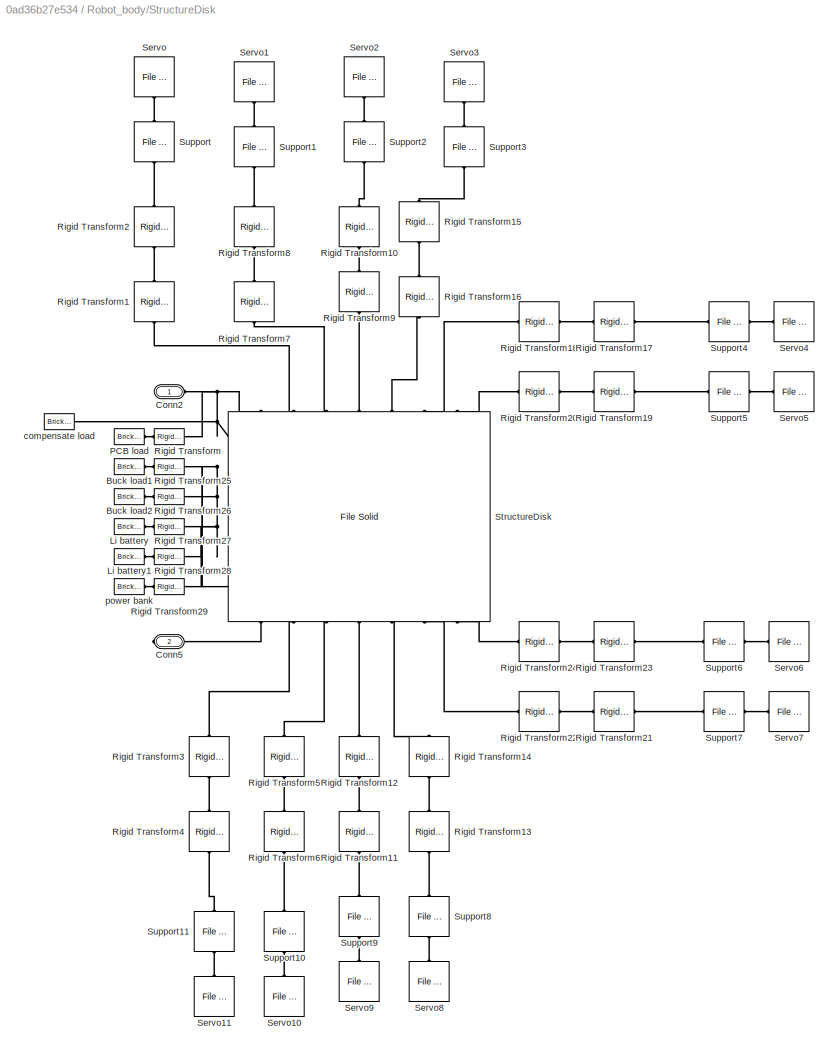
BLOCK [SubSystem] Robot_body/StructureDisk
  NameLocation = left
  PortSchema = {"entries":[{"content":{"sides":[{"content":{"connectorIds":[]},"type":"ConnectorPlacement.EquallySpacedRectSide","uuid":"983b4593-33f8-4f05-8496-f6a680e0506a"},{"content":{"connectorIds":["RConn1"],"side":"RIGHT"},"type":"ConnectorPlacement.EquallySpacedRectSide","uuid":"dd1cb835-99ed-40eb-9457-9a76e9b19610"},{"content":{"connectorIds":["LConn1"],"side":"TOP"},"type":"ConnectorPlacement.EquallySp...<+245ch>
  Ports = [0, 0, 0, 0, 0, 1, 1]
  RequestExecContextInheritance = off
BLOCK [Reference] Robot_body/StructureDisk/Buck load1  REF=sm_lib/Body Elements/Brick Solid
  Ports = [0, 0, 0, 0, 0, 0, 1]
  SourceBlock = sm_lib/Body Elements/Brick Solid
  SourceProductBaseCode = MS
  SourceType = Brick Solid
BLOCK [Reference] Robot_body/StructureDisk/Buck load2  REF=sm_lib/Body Elements/Brick Solid
  Ports = [0, 0, 0, 0, 0, 0, 1]
  SourceBlock = sm_lib/Body Elements/Brick Solid
  SourceProductBaseCode = MS
  SourceType = Brick Solid
BLOCK [PMIOPort] Robot_body/StructureDisk/Conn2
  Side = Left
BLOCK [PMIOPort] Robot_body/StructureDisk/Conn5
  NameLocation = top
  Port = 2
  Side = Right
BLOCK [Reference] Robot_body/StructureDisk/Li battery  REF=sm_lib/Body Elements/Brick Solid
  Ports = [0, 0, 0, 0, 0, 0, 1]
  SourceBlock = sm_lib/Body Elements/Brick Solid
  SourceProductBaseCode = MS
  SourceType = Brick Solid
BLOCK [Reference] Robot_body/StructureDisk/Li battery1  REF=sm_lib/Body Elements/Brick Solid
  Ports = [0, 0, 0, 0, 0, 0, 1]
  SourceBlock = sm_lib/Body Elements/Brick Solid
  SourceProductBaseCode = MS
  SourceType = Brick Solid
BLOCK [Reference] Robot_body/StructureDisk/PCB load  REF=sm_lib/Body Elements/Brick Solid
  Ports = [0, 0, 0, 0, 0, 0, 1]
  SourceBlock = sm_lib/Body Elements/Brick Solid
  SourceProductBaseCode = MS
  SourceType = Brick Solid
BLOCK [Reference] Robot_body/StructureDisk/Rigid Transform  REF=sm_lib/Frames and
Transforms/Rigid
Transform
  NameLocation = top
  Ports = [0, 0, 0, 0, 0, 1, 1]
  SourceBlock = sm_lib/Frames and\nTransforms/Rigid\nTransform
  SourceProductBaseCode = MS
  SourceType = Rigid\nTransform
BLOCK [Reference] Robot_body/StructureDisk/Rigid Transform1  REF=sm_lib/Frames and
Transforms/Rigid
Transform
  NameLocation = right
  Ports = [0, 0, 0, 0, 0, 1, 1]
  SourceBlock = sm_lib/Frames and\nTransforms/Rigid\nTransform
  SourceProductBaseCode = MS
  SourceType = Rigid\nTransform
BLOCK [Reference] Robot_body/StructureDisk/Rigid Transform10  REF=sm_lib/Frames and
Transforms/Rigid
Transform
  NameLocation = right
  Ports = [0, 0, 0, 0, 0, 1, 1]
  SourceBlock = sm_lib/Frames and\nTransforms/Rigid\nTransform
  SourceProductBaseCode = MS
  SourceType = Rigid\nTransform
BLOCK [Reference] Robot_body/StructureDisk/Rigid Transform11  REF=sm_lib/Frames and
Transforms/Rigid
Transform
  NameLocation = left
  Ports = [0, 0, 0, 0, 0, 1, 1]
  SourceBlock = sm_lib/Frames and\nTransforms/Rigid\nTransform
  SourceProductBaseCode = MS
  SourceType = Rigid\nTransform
BLOCK [Reference] Robot_body/StructureDisk/Rigid Transform12  REF=sm_lib/Frames and
Transforms/Rigid
Transform
  NameLocation = left
  Ports = [0, 0, 0, 0, 0, 1, 1]
  SourceBlock = sm_lib/Frames and\nTransforms/Rigid\nTransform
  SourceProductBaseCode = MS
  SourceType = Rigid\nTransform
BLOCK [Reference] Robot_body/StructureDisk/Rigid Transform13  REF=sm_lib/Frames and
Transforms/Rigid
Transform
  NameLocation = left
  Ports = [0, 0, 0, 0, 0, 1, 1]
  SourceBlock = sm_lib/Frames and\nTransforms/Rigid\nTransform
  SourceProductBaseCode = MS
  SourceType = Rigid\nTransform
BLOCK [Reference] Robot_body/StructureDisk/Rigid Transform14  REF=sm_lib/Frames and
Transforms/Rigid
Transform
  NameLocation = left
  Ports = [0, 0, 0, 0, 0, 1, 1]
  SourceBlock = sm_lib/Frames and\nTransforms/Rigid\nTransform
  SourceProductBaseCode = MS
  SourceType = Rigid\nTransform
BLOCK [Reference] Robot_body/StructureDisk/Rigid Transform15  REF=sm_lib/Frames and
Transforms/Rigid
Transform
  NameLocation = right
  Ports = [0, 0, 0, 0, 0, 1, 1]
  SourceBlock = sm_lib/Frames and\nTransforms/Rigid\nTransform
  SourceProductBaseCode = MS
  SourceType = Rigid\nTransform
BLOCK [Reference] Robot_body/StructureDisk/Rigid Transform16  REF=sm_lib/Frames and
Transforms/Rigid
Transform
  NameLocation = right
  Ports = [0, 0, 0, 0, 0, 1, 1]
  SourceBlock = sm_lib/Frames and\nTransforms/Rigid\nTransform
  SourceProductBaseCode = MS
  SourceType = Rigid\nTransform
BLOCK [Reference] Robot_body/StructureDisk/Rigid Transform17  REF=sm_lib/Frames and
Transforms/Rigid
Transform
  Ports = [0, 0, 0, 0, 0, 1, 1]
  SourceBlock = sm_lib/Frames and\nTransforms/Rigid\nTransform
  SourceProductBaseCode = MS
  SourceType = Rigid\nTransform
BLOCK [Reference] Robot_body/StructureDisk/Rigid Transform18  REF=sm_lib/Frames and
Transforms/Rigid
Transform
  Ports = [0, 0, 0, 0, 0, 1, 1]
  SourceBlock = sm_lib/Frames and\nTransforms/Rigid\nTransform
  SourceProductBaseCode = MS
  SourceType = Rigid\nTransform
BLOCK [Reference] Robot_body/StructureDisk/Rigid Transform19  REF=sm_lib/Frames and
Transforms/Rigid
Transform
  Ports = [0, 0, 0, 0, 0, 1, 1]
  SourceBlock = sm_lib/Frames and\nTransforms/Rigid\nTransform
  SourceProductBaseCode = MS
  SourceType = Rigid\nTransform
BLOCK [Reference] Robot_body/StructureDisk/Rigid Transform2  REF=sm_lib/Frames and
Transforms/Rigid
Transform
  NameLocation = right
  Ports = [0, 0, 0, 0, 0, 1, 1]
  SourceBlock = sm_lib/Frames and\nTransforms/Rigid\nTransform
  SourceProductBaseCode = MS
  SourceType = Rigid\nTransform
BLOCK [Reference] Robot_body/StructureDisk/Rigid Transform20  REF=sm_lib/Frames and
Transforms/Rigid
Transform
  Ports = [0, 0, 0, 0, 0, 1, 1]
  SourceBlock = sm_lib/Frames and\nTransforms/Rigid\nTransform
  SourceProductBaseCode = MS
  SourceType = Rigid\nTransform
BLOCK [Reference] Robot_body/StructureDisk/Rigid Transform21  REF=sm_lib/Frames and
Transforms/Rigid
Transform
  Ports = [0, 0, 0, 0, 0, 1, 1]
  SourceBlock = sm_lib/Frames and\nTransforms/Rigid\nTransform
  SourceProductBaseCode = MS
  SourceType = Rigid\nTransform
BLOCK [Reference] Robot_body/StructureDisk/Rigid Transform22  REF=sm_lib/Frames and
Transforms/Rigid
Transform
  Ports = [0, 0, 0, 0, 0, 1, 1]
  SourceBlock = sm_lib/Frames and\nTransforms/Rigid\nTransform
  SourceProductBaseCode = MS
  SourceType = Rigid\nTransform
BLOCK [Reference] Robot_body/StructureDisk/Rigid Transform23  REF=sm_lib/Frames and
Transforms/Rigid
Transform
  Ports = [0, 0, 0, 0, 0, 1, 1]
  SourceBlock = sm_lib/Frames and\nTransforms/Rigid\nTransform
  SourceProductBaseCode = MS
  SourceType = Rigid\nTransform
BLOCK [Reference] Robot_body/StructureDisk/Rigid Transform24  REF=sm_lib/Frames and
Transforms/Rigid
Transform
  Ports = [0, 0, 0, 0, 0, 1, 1]
  SourceBlock = sm_lib/Frames and\nTransforms/Rigid\nTransform
  SourceProductBaseCode = MS
  SourceType = Rigid\nTransform
BLOCK [Reference] Robot_body/StructureDisk/Rigid Transform25  REF=sm_lib/Frames and
Transforms/Rigid
Transform
  NameLocation = top
  Ports = [0, 0, 0, 0, 0, 1, 1]
  SourceBlock = sm_lib/Frames and\nTransforms/Rigid\nTransform
  SourceProductBaseCode = MS
  SourceType = Rigid\nTransform
BLOCK [Reference] Robot_body/StructureDisk/Rigid Transform26  REF=sm_lib/Frames and
Transforms/Rigid
Transform
  NameLocation = top
  Ports = [0, 0, 0, 0, 0, 1, 1]
  SourceBlock = sm_lib/Frames and\nTransforms/Rigid\nTransform
  SourceProductBaseCode = MS
  SourceType = Rigid\nTransform
BLOCK [Reference] Robot_body/StructureDisk/Rigid Transform27  REF=sm_lib/Frames and
Transforms/Rigid
Transform
  NameLocation = top
  Ports = [0, 0, 0, 0, 0, 1, 1]
  SourceBlock = sm_lib/Frames and\nTransforms/Rigid\nTransform
  SourceProductBaseCode = MS
  SourceType = Rigid\nTransform
BLOCK [Reference] Robot_body/StructureDisk/Rigid Transform28  REF=sm_lib/Frames and
Transforms/Rigid
Transform
  NameLocation = top
  Ports = [0, 0, 0, 0, 0, 1, 1]
  SourceBlock = sm_lib/Frames and\nTransforms/Rigid\nTransform
  SourceProductBaseCode = MS
  SourceType = Rigid\nTransform
BLOCK [Reference] Robot_body/StructureDisk/Rigid Transform29  REF=sm_lib/Frames and
Transforms/Rigid
Transform
  NameLocation = top
  Ports = [0, 0, 0, 0, 0, 1, 1]
  SourceBlock = sm_lib/Frames and\nTransforms/Rigid\nTransform
  SourceProductBaseCode = MS
  SourceType = Rigid\nTransform
BLOCK [Reference] Robot_body/StructureDisk/Rigid Transform3  REF=sm_lib/Frames and
Transforms/Rigid
Transform
  NameLocation = left
  Ports = [0, 0, 0, 0, 0, 1, 1]
  SourceBlock = sm_lib/Frames and\nTransforms/Rigid\nTransform
  SourceProductBaseCode = MS
  SourceType = Rigid\nTransform
BLOCK [Reference] Robot_body/StructureDisk/Rigid Transform4  REF=sm_lib/Frames and
Transforms/Rigid
Transform
  NameLocation = left
  Ports = [0, 0, 0, 0, 0, 1, 1]
  SourceBlock = sm_lib/Frames and\nTransforms/Rigid\nTransform
  SourceProductBaseCode = MS
  SourceType = Rigid\nTransform
BLOCK [Reference] Robot_body/StructureDisk/Rigid Transform5  REF=sm_lib/Frames and
Transforms/Rigid
Transform
  NameLocation = left
  Ports = [0, 0, 0, 0, 0, 1, 1]
  SourceBlock = sm_lib/Frames and\nTransforms/Rigid\nTransform
  SourceProductBaseCode = MS
  SourceType = Rigid\nTransform
BLOCK [Reference] Robot_body/StructureDisk/Rigid Transform6  REF=sm_lib/Frames and
Transforms/Rigid
Transform
  NameLocation = left
  Ports = [0, 0, 0, 0, 0, 1, 1]
  SourceBlock = sm_lib/Frames and\nTransforms/Rigid\nTransform
  SourceProductBaseCode = MS
  SourceType = Rigid\nTransform
BLOCK [Reference] Robot_body/StructureDisk/Rigid Transform7  REF=sm_lib/Frames and
Transforms/Rigid
Transform
  NameLocation = right
  Ports = [0, 0, 0, 0, 0, 1, 1]
  SourceBlock = sm_lib/Frames and\nTransforms/Rigid\nTransform
  SourceProductBaseCode = MS
  SourceType = Rigid\nTransform
BLOCK [Reference] Robot_body/StructureDisk/Rigid Transform8  REF=sm_lib/Frames and
Transforms/Rigid
Transform
  NameLocation = right
  Ports = [0, 0, 0, 0, 0, 1, 1]
  SourceBlock = sm_lib/Frames and\nTransforms/Rigid\nTransform
  SourceProductBaseCode = MS
  SourceType = Rigid\nTransform
BLOCK [Reference] Robot_body/StructureDisk/Rigid Transform9  REF=sm_lib/Frames and
Transforms/Rigid
Transform
  NameLocation = right
  Ports = [0, 0, 0, 0, 0, 1, 1]
  SourceBlock = sm_lib/Frames and\nTransforms/Rigid\nTransform
  SourceProductBaseCode = MS
  SourceType = Rigid\nTransform
BLOCK [Reference] Robot_body/StructureDisk/Servo  REF=sm_lib/Body Elements/File Solid
  NameLocation = right
  Ports = [0, 0, 0, 0, 0, 1]
  SourceBlock = sm_lib/Body Elements/File Solid
  SourceProductBaseCode = MS
  SourceType = File Solid
BLOCK [Reference] Robot_body/StructureDisk/Servo1  REF=sm_lib/Body Elements/File Solid
  NameLocation = right
  Ports = [0, 0, 0, 0, 0, 1]
  SourceBlock = sm_lib/Body Elements/File Solid
  SourceProductBaseCode = MS
  SourceType = File Solid
BLOCK [Reference] Robot_body/StructureDisk/Servo10  REF=sm_lib/Body Elements/File Solid
  NameLocation = left
  Ports = [0, 0, 0, 0, 0, 1]
  SourceBlock = sm_lib/Body Elements/File Solid
  SourceProductBaseCode = MS
  SourceType = File Solid
BLOCK [Reference] Robot_body/StructureDisk/Servo11  REF=sm_lib/Body Elements/File Solid
  NameLocation = left
  Ports = [0, 0, 0, 0, 0, 1]
  SourceBlock = sm_lib/Body Elements/File Solid
  SourceProductBaseCode = MS
  SourceType = File Solid
BLOCK [Reference] Robot_body/StructureDisk/Servo2  REF=sm_lib/Body Elements/File Solid
  NameLocation = right
  Ports = [0, 0, 0, 0, 0, 1]
  SourceBlock = sm_lib/Body Elements/File Solid
  SourceProductBaseCode = MS
  SourceType = File Solid
BLOCK [Reference] Robot_body/StructureDisk/Servo3  REF=sm_lib/Body Elements/File Solid
  NameLocation = right
  Ports = [0, 0, 0, 0, 0, 1]
  SourceBlock = sm_lib/Body Elements/File Solid
  SourceProductBaseCode = MS
  SourceType = File Solid
BLOCK [Reference] Robot_body/StructureDisk/Servo4  REF=sm_lib/Body Elements/File Solid
  Ports = [0, 0, 0, 0, 0, 1]
  SourceBlock = sm_lib/Body Elements/File Solid
  SourceProductBaseCode = MS
  SourceType = File Solid
BLOCK [Reference] Robot_body/StructureDisk/Servo5  REF=sm_lib/Body Elements/File Solid
  Ports = [0, 0, 0, 0, 0, 1]
  SourceBlock = sm_lib/Body Elements/File Solid
  SourceProductBaseCode = MS
  SourceType = File Solid
BLOCK [Reference] Robot_body/StructureDisk/Servo6  REF=sm_lib/Body Elements/File Solid
  Ports = [0, 0, 0, 0, 0, 1]
  SourceBlock = sm_lib/Body Elements/File Solid
  SourceProductBaseCode = MS
  SourceType = File Solid
BLOCK [Reference] Robot_body/StructureDisk/Servo7  REF=sm_lib/Body Elements/File Solid
  Ports = [0, 0, 0, 0, 0, 1]
  SourceBlock = sm_lib/Body Elements/File Solid
  SourceProductBaseCode = MS
  SourceType = File Solid
BLOCK [Reference] Robot_body/StructureDisk/Servo8  REF=sm_lib/Body Elements/File Solid
  NameLocation = left
  Ports = [0, 0, 0, 0, 0, 1]
  SourceBlock = sm_lib/Body Elements/File Solid
  SourceProductBaseCode = MS
  SourceType = File Solid
BLOCK [Reference] Robot_body/StructureDisk/Servo9  REF=sm_lib/Body Elements/File Solid
  NameLocation = left
  Ports = [0, 0, 0, 0, 0, 1]
  SourceBlock = sm_lib/Body Elements/File Solid
  SourceProductBaseCode = MS
  SourceType = File Solid
BLOCK [Reference] Robot_body/StructureDisk/StructureDisk  REF=sm_lib/Body Elements/File Solid
  NameLocation = left
  Ports = [0, 0, 0, 0, 0, 7, 7]
  SourceBlock = sm_lib/Body Elements/File Solid
  SourceProductBaseCode = MS
  SourceType = File Solid
BLOCK [Reference] Robot_body/StructureDisk/Support  REF=sm_lib/Body Elements/File Solid
  NameLocation = right
  Ports = [0, 0, 0, 0, 0, 1, 1]
  SourceBlock = sm_lib/Body Elements/File Solid
  SourceProductBaseCode = MS
  SourceType = File Solid
BLOCK [Reference] Robot_body/StructureDisk/Support1  REF=sm_lib/Body Elements/File Solid
  NameLocation = right
  Ports = [0, 0, 0, 0, 0, 1, 1]
  SourceBlock = sm_lib/Body Elements/File Solid
  SourceProductBaseCode = MS
  SourceType = File Solid
BLOCK [Reference] Robot_body/StructureDisk/Support10  REF=sm_lib/Body Elements/File Solid
  NameLocation = left
  Ports = [0, 0, 0, 0, 0, 1, 1]
  SourceBlock = sm_lib/Body Elements/File Solid
  SourceProductBaseCode = MS
  SourceType = File Solid
BLOCK [Reference] Robot_body/StructureDisk/Support11  REF=sm_lib/Body Elements/File Solid
  NameLocation = left
  Ports = [0, 0, 0, 0, 0, 1, 1]
  SourceBlock = sm_lib/Body Elements/File Solid
  SourceProductBaseCode = MS
  SourceType = File Solid
BLOCK [Reference] Robot_body/StructureDisk/Support2  REF=sm_lib/Body Elements/File Solid
  NameLocation = right
  Ports = [0, 0, 0, 0, 0, 1, 1]
  SourceBlock = sm_lib/Body Elements/File Solid
  SourceProductBaseCode = MS
  SourceType = File Solid
BLOCK [Reference] Robot_body/StructureDisk/Support3  REF=sm_lib/Body Elements/File Solid
  NameLocation = right
  Ports = [0, 0, 0, 0, 0, 1, 1]
  SourceBlock = sm_lib/Body Elements/File Solid
  SourceProductBaseCode = MS
  SourceType = File Solid
BLOCK [Reference] Robot_body/StructureDisk/Support4  REF=sm_lib/Body Elements/File Solid
  Ports = [0, 0, 0, 0, 0, 1, 1]
  SourceBlock = sm_lib/Body Elements/File Solid
  SourceProductBaseCode = MS
  SourceType = File Solid
BLOCK [Reference] Robot_body/StructureDisk/Support5  REF=sm_lib/Body Elements/File Solid
  Ports = [0, 0, 0, 0, 0, 1, 1]
  SourceBlock = sm_lib/Body Elements/File Solid
  SourceProductBaseCode = MS
  SourceType = File Solid
BLOCK [Reference] Robot_body/StructureDisk/Support6  REF=sm_lib/Body Elements/File Solid
  Ports = [0, 0, 0, 0, 0, 1, 1]
  SourceBlock = sm_lib/Body Elements/File Solid
  SourceProductBaseCode = MS
  SourceType = File Solid
BLOCK [Reference] Robot_body/StructureDisk/Support7  REF=sm_lib/Body Elements/File Solid
  Ports = [0, 0, 0, 0, 0, 1, 1]
  SourceBlock = sm_lib/Body Elements/File Solid
  SourceProductBaseCode = MS
  SourceType = File Solid
BLOCK [Reference] Robot_body/StructureDisk/Support8  REF=sm_lib/Body Elements/File Solid
  NameLocation = left
  Ports = [0, 0, 0, 0, 0, 1, 1]
  SourceBlock = sm_lib/Body Elements/File Solid
  SourceProductBaseCode = MS
  SourceType = File Solid
BLOCK [Reference] Robot_body/StructureDisk/Support9  REF=sm_lib/Body Elements/File Solid
  NameLocation = left
  Ports = [0, 0, 0, 0, 0, 1, 1]
  SourceBlock = sm_lib/Body Elements/File Solid
  SourceProductBaseCode = MS
  SourceType = File Solid
BLOCK [Reference] Robot_body/StructureDisk/compensate load  REF=sm_lib/Body Elements/Brick Solid
  Ports = [0, 0, 0, 0, 0, 0, 1]
  SourceBlock = sm_lib/Body Elements/Brick Solid
  SourceProductBaseCode = MS
  SourceType = Brick Solid
BLOCK [Reference] Robot_body/StructureDisk/power bank  REF=sm_lib/Body Elements/Brick Solid
  Ports = [0, 0, 0, 0, 0, 0, 1]
  SourceBlock = sm_lib/Body Elements/Brick Solid
  SourceProductBaseCode = MS
  SourceType = Brick Solid
BLOCK [Reference] Robot_body/World Frame  REF=sm_lib/Frames and
Transforms/World Frame
  NameLocation = left
  Ports = [0, 0, 0, 0, 0, 0, 1]
  SourceBlock = sm_lib/Frames and\nTransforms/World Frame
  SourceProductBaseCode = MS
  SourceType = World Frame
BLOCK [PMIOPort] Robot_body/feet
  NameLocation = left
  Port = 2
  Side = Right
BLOCK [Outport] Robot_body/footSens
  NameLocation = left
BLOCK [Inport] Robot_body/motorRefs
  IconDisplay = Signal name
BLOCK [SubSystem] Robot_body/sensFL
  NameLocation = top
  PortSchema = {"entries":[{"content":{"sides":[{"content":{"connectorIds":[]},"type":"ConnectorPlacement.EquallySpacedRectSide","uuid":"bd83465d-2bef-45ec-b31a-ccd96dc04922"},{"content":{"connectorIds":[],"side":"RIGHT"},"type":"ConnectorPlacement.EquallySpacedRectSide","uuid":"7d39c37e-7359-45a9-8850-f640f6442332"},{"content":{"connectorIds":["LConn1"],"side":"TOP"},"type":"ConnectorPlacement.EquallySpacedRect...<+396ch>  <repeated x4 — deduplicated; at blocks: sensFL, sensFR, sensRL, sensRR>
  Ports = [0, 1, 0, 0, 0, 1, 1]
  RequestExecContextInheritance = off
BLOCK [PMIOPort] Robot_body/sensFL/B
  NameLocation = left
  Side = Left
BLOCK [PMIOPort] Robot_body/sensFL/C
  NameLocation = right
  Port = 2
  Side = Right
BLOCK [Mux] Robot_body/sensFL/Mux
  DisplayOption = bar
  Inputs = 3
  NameLocation = left
  Ports = [3, 1]
BLOCK [Reference] Robot_body/sensFL/PS-Simulink Converter  REF=nesl_utility/PS-Simulink
Converter
  NameLocation = left
  Ports = [0, 1, 0, 0, 0, 1]
  SourceBlock = nesl_utility/PS-Simulink\nConverter
  SourceProductBaseCode = PW,SS
  SourceType = PS-Simulink\nConverter
BLOCK [Reference] Robot_body/sensFL/PS-Simulink Converter1  REF=nesl_utility/PS-Simulink
Converter
  NameLocation = left
  Ports = [0, 1, 0, 0, 0, 1]
  SourceBlock = nesl_utility/PS-Simulink\nConverter
  SourceProductBaseCode = PW,SS
  SourceType = PS-Simulink\nConverter
BLOCK [Reference] Robot_body/sensFL/PS-Simulink Converter2  REF=nesl_utility/PS-Simulink
Converter
  NameLocation = left
  Ports = [0, 1, 0, 0, 0, 1]
  SourceBlock = nesl_utility/PS-Simulink\nConverter
  SourceProductBaseCode = PW,SS
  SourceType = PS-Simulink\nConverter
BLOCK [Reference] Robot_body/sensFL/PS-Simulink Converter3  REF=nesl_utility/PS-Simulink
Converter
  NameLocation = left
  Ports = [0, 1, 0, 0, 0, 1]
  SourceBlock = nesl_utility/PS-Simulink\nConverter
  SourceProductBaseCode = PW,SS
  SourceType = PS-Simulink\nConverter
BLOCK [Selector] Robot_body/sensFL/Selector
  IndexOptions = Index vector (dialog)
  Indices = [1 2]
  InputPortWidth = 3
  NameLocation = left
  OutputSizes = 1
  Ports = [1, 1]
BLOCK [ToWorkspace] Robot_body/sensFL/To Workspace
  FixptAsFi = on
  MaxDataPoints = inf
  Ports = [1]
  SampleTime = Ts
  SaveFormat = Timeseries
  VariableName = FLfootTrace
BLOCK [Reference] Robot_body/sensFL/Transform Sensor  REF=sm_lib/Frames and
Transforms/Transform
Sensor
  NameLocation = left
  Ports = [0, 0, 0, 0, 0, 1, 5]
  SourceBlock = sm_lib/Frames and\nTransforms/Transform\nSensor
  SourceProductBaseCode = MS
  SourceType = Transform\nSensor
BLOCK [Outport] Robot_body/sensFL/bend
  NameLocation = left
BLOCK [SubSystem] Robot_body/sensFL/q2r
  ErrorFcn = Stateflow.Translate.translate
  NameLocation = left
  PermitHierarchicalResolution = ExplicitOnly
  Ports = [1, 1]
  RequestExecContextInheritance = off
  SFBlockType = MATLAB Function
  TreatAsAtomicUnit = on
BLOCK [Demux] Robot_body/sensFL/q2r/ Demux 
  Outputs = 1
  Ports = [1, 1]
BLOCK [S-Function] Robot_body/sensFL/q2r/ SFunction 
  EnableBusSupport = on
  FunctionName = sf_sfun
  PortCounts = [1 2]
  Ports = [1, 2]
  SFcnIsStateOwnerBlock = off
  SFunctionDeploymentMode = off
  Tag = Stateflow S-Function 3
BLOCK [Terminator] Robot_body/sensFL/q2r/ Terminator 
BLOCK [Inport] Robot_body/sensFL/q2r/u
BLOCK [Outport] Robot_body/sensFL/q2r/y
BLOCK [SubSystem] Robot_body/sensFR
  NameLocation = top
  Ports = [0, 1, 0, 0, 0, 1, 1]
  RequestExecContextInheritance = off
BLOCK [PMIOPort] Robot_body/sensFR/B
  NameLocation = left
  Side = Left
BLOCK [PMIOPort] Robot_body/sensFR/C
  NameLocation = right
  Port = 2
  Side = Right
BLOCK [Mux] Robot_body/sensFR/Mux
  DisplayOption = bar
  Inputs = 3
  NameLocation = left
  Ports = [3, 1]
BLOCK [Reference] Robot_body/sensFR/PS-Simulink Converter  REF=nesl_utility/PS-Simulink
Converter
  NameLocation = left
  Ports = [0, 1, 0, 0, 0, 1]
  SourceBlock = nesl_utility/PS-Simulink\nConverter
  SourceProductBaseCode = PW,SS
  SourceType = PS-Simulink\nConverter
BLOCK [Reference] Robot_body/sensFR/PS-Simulink Converter1  REF=nesl_utility/PS-Simulink
Converter
  NameLocation = left
  Ports = [0, 1, 0, 0, 0, 1]
  SourceBlock = nesl_utility/PS-Simulink\nConverter
  SourceProductBaseCode = PW,SS
  SourceType = PS-Simulink\nConverter
BLOCK [Reference] Robot_body/sensFR/PS-Simulink Converter2  REF=nesl_utility/PS-Simulink
Converter
  NameLocation = left
  Ports = [0, 1, 0, 0, 0, 1]
  SourceBlock = nesl_utility/PS-Simulink\nConverter
  SourceProductBaseCode = PW,SS
  SourceType = PS-Simulink\nConverter
BLOCK [Reference] Robot_body/sensFR/PS-Simulink Converter3  REF=nesl_utility/PS-Simulink
Converter
  NameLocation = left
  Ports = [0, 1, 0, 0, 0, 1]
  SourceBlock = nesl_utility/PS-Simulink\nConverter
  SourceProductBaseCode = PW,SS
  SourceType = PS-Simulink\nConverter
BLOCK [Selector] Robot_body/sensFR/Selector
  IndexOptions = Index vector (dialog)
  Indices = [1 2]
  InputPortWidth = 3
  NameLocation = left
  OutputSizes = 1
  Ports = [1, 1]
BLOCK [ToWorkspace] Robot_body/sensFR/To Workspace
  FixptAsFi = on
  MaxDataPoints = inf
  Ports = [1]
  SampleTime = Ts
  SaveFormat = Timeseries
  VariableName = FRfootTrace
BLOCK [Reference] Robot_body/sensFR/Transform Sensor  REF=sm_lib/Frames and
Transforms/Transform
Sensor
  NameLocation = left
  Ports = [0, 0, 0, 0, 0, 1, 5]
  SourceBlock = sm_lib/Frames and\nTransforms/Transform\nSensor
  SourceProductBaseCode = MS
  SourceType = Transform\nSensor
BLOCK [Outport] Robot_body/sensFR/bend
  NameLocation = left
BLOCK [SubSystem] Robot_body/sensFR/q2r
  ErrorFcn = Stateflow.Translate.translate
  NameLocation = left
  PermitHierarchicalResolution = ExplicitOnly
  Ports = [1, 1]
  RequestExecContextInheritance = off
  SFBlockType = MATLAB Function
  TreatAsAtomicUnit = on
BLOCK [Demux] Robot_body/sensFR/q2r/ Demux 
  Outputs = 1
  Ports = [1, 1]
BLOCK [S-Function] Robot_body/sensFR/q2r/ SFunction 
  EnableBusSupport = on
  FunctionName = sf_sfun
  PortCounts = [1 2]
  Ports = [1, 2]
  SFcnIsStateOwnerBlock = off
  SFunctionDeploymentMode = off
  Tag = Stateflow S-Function 1
BLOCK [Terminator] Robot_body/sensFR/q2r/ Terminator 
BLOCK [Inport] Robot_body/sensFR/q2r/u
BLOCK [Outport] Robot_body/sensFR/q2r/y
BLOCK [SubSystem] Robot_body/sensRL
  NameLocation = top
  Ports = [0, 1, 0, 0, 0, 1, 1]
  RequestExecContextInheritance = off
BLOCK [PMIOPort] Robot_body/sensRL/B
  NameLocation = left
  Side = Left
BLOCK [PMIOPort] Robot_body/sensRL/C
  NameLocation = right
  Port = 2
  Side = Right
BLOCK [Mux] Robot_body/sensRL/Mux
  DisplayOption = bar
  Inputs = 3
  NameLocation = left
  Ports = [3, 1]
BLOCK [Reference] Robot_body/sensRL/PS-Simulink Converter  REF=nesl_utility/PS-Simulink
Converter
  NameLocation = left
  Ports = [0, 1, 0, 0, 0, 1]
  SourceBlock = nesl_utility/PS-Simulink\nConverter
  SourceProductBaseCode = PW,SS
  SourceType = PS-Simulink\nConverter
BLOCK [Reference] Robot_body/sensRL/PS-Simulink Converter1  REF=nesl_utility/PS-Simulink
Converter
  NameLocation = left
  Ports = [0, 1, 0, 0, 0, 1]
  SourceBlock = nesl_utility/PS-Simulink\nConverter
  SourceProductBaseCode = PW,SS
  SourceType = PS-Simulink\nConverter
BLOCK [Reference] Robot_body/sensRL/PS-Simulink Converter2  REF=nesl_utility/PS-Simulink
Converter
  NameLocation = left
  Ports = [0, 1, 0, 0, 0, 1]
  SourceBlock = nesl_utility/PS-Simulink\nConverter
  SourceProductBaseCode = PW,SS
  SourceType = PS-Simulink\nConverter
BLOCK [Reference] Robot_body/sensRL/PS-Simulink Converter3  REF=nesl_utility/PS-Simulink
Converter
  NameLocation = left
  Ports = [0, 1, 0, 0, 0, 1]
  SourceBlock = nesl_utility/PS-Simulink\nConverter
  SourceProductBaseCode = PW,SS
  SourceType = PS-Simulink\nConverter
BLOCK [Selector] Robot_body/sensRL/Selector
  IndexOptions = Index vector (dialog)
  Indices = [1 2]
  InputPortWidth = 3
  NameLocation = left
  OutputSizes = 1
  Ports = [1, 1]
BLOCK [ToWorkspace] Robot_body/sensRL/To Workspace
  FixptAsFi = on
  MaxDataPoints = inf
  Ports = [1]
  SampleTime = Ts
  SaveFormat = Timeseries
  VariableName = RLfootTrace
BLOCK [Reference] Robot_body/sensRL/Transform Sensor  REF=sm_lib/Frames and
Transforms/Transform
Sensor
  NameLocation = left
  Ports = [0, 0, 0, 0, 0, 1, 5]
  SourceBlock = sm_lib/Frames and\nTransforms/Transform\nSensor
  SourceProductBaseCode = MS
  SourceType = Transform\nSensor
BLOCK [Outport] Robot_body/sensRL/bend
  NameLocation = left
BLOCK [SubSystem] Robot_body/sensRL/q2r
  ErrorFcn = Stateflow.Translate.translate
  NameLocation = left
  PermitHierarchicalResolution = ExplicitOnly
  Ports = [1, 1]
  RequestExecContextInheritance = off
  SFBlockType = MATLAB Function
  TreatAsAtomicUnit = on
BLOCK [Demux] Robot_body/sensRL/q2r/ Demux 
  Outputs = 1
  Ports = [1, 1]
BLOCK [S-Function] Robot_body/sensRL/q2r/ SFunction 
  EnableBusSupport = on
  FunctionName = sf_sfun
  PortCounts = [1 2]
  Ports = [1, 2]
  SFcnIsStateOwnerBlock = off
  SFunctionDeploymentMode = off
  Tag = Stateflow S-Function 4
BLOCK [Terminator] Robot_body/sensRL/q2r/ Terminator 
BLOCK [Inport] Robot_body/sensRL/q2r/u
BLOCK [Outport] Robot_body/sensRL/q2r/y
BLOCK [SubSystem] Robot_body/sensRR
  NameLocation = top
  Ports = [0, 1, 0, 0, 0, 1, 1]
  RequestExecContextInheritance = off
BLOCK [PMIOPort] Robot_body/sensRR/B
  NameLocation = left
  Side = Left
BLOCK [PMIOPort] Robot_body/sensRR/C
  NameLocation = right
  Port = 2
  Side = Right
BLOCK [Mux] Robot_body/sensRR/Mux
  DisplayOption = bar
  Inputs = 3
  NameLocation = left
  Ports = [3, 1]
BLOCK [Reference] Robot_body/sensRR/PS-Simulink Converter  REF=nesl_utility/PS-Simulink
Converter
  NameLocation = left
  Ports = [0, 1, 0, 0, 0, 1]
  SourceBlock = nesl_utility/PS-Simulink\nConverter
  SourceProductBaseCode = PW,SS
  SourceType = PS-Simulink\nConverter
BLOCK [Reference] Robot_body/sensRR/PS-Simulink Converter1  REF=nesl_utility/PS-Simulink
Converter
  NameLocation = left
  Ports = [0, 1, 0, 0, 0, 1]
  SourceBlock = nesl_utility/PS-Simulink\nConverter
  SourceProductBaseCode = PW,SS
  SourceType = PS-Simulink\nConverter
BLOCK [Reference] Robot_body/sensRR/PS-Simulink Converter2  REF=nesl_utility/PS-Simulink
Converter
  NameLocation = left
  Ports = [0, 1, 0, 0, 0, 1]
  SourceBlock = nesl_utility/PS-Simulink\nConverter
  SourceProductBaseCode = PW,SS
  SourceType = PS-Simulink\nConverter
BLOCK [Reference] Robot_body/sensRR/PS-Simulink Converter3  REF=nesl_utility/PS-Simulink
Converter
  NameLocation = left
  Ports = [0, 1, 0, 0, 0, 1]
  SourceBlock = nesl_utility/PS-Simulink\nConverter
  SourceProductBaseCode = PW,SS
  SourceType = PS-Simulink\nConverter
BLOCK [Selector] Robot_body/sensRR/Selector
  IndexOptions = Index vector (dialog)
  Indices = [1 2]
  InputPortWidth = 3
  NameLocation = left
  OutputSizes = 1
  Ports = [1, 1]
BLOCK [ToWorkspace] Robot_body/sensRR/To Workspace
  FixptAsFi = on
  MaxDataPoints = inf
  Ports = [1]
  SampleTime = Ts
  SaveFormat = Timeseries
  VariableName = RRfootTrace
BLOCK [Reference] Robot_body/sensRR/Transform Sensor  REF=sm_lib/Frames and
Transforms/Transform
Sensor
  NameLocation = left
  Ports = [0, 0, 0, 0, 0, 1, 5]
  SourceBlock = sm_lib/Frames and\nTransforms/Transform\nSensor
  SourceProductBaseCode = MS
  SourceType = Transform\nSensor
BLOCK [Outport] Robot_body/sensRR/bend
  NameLocation = left
BLOCK [SubSystem] Robot_body/sensRR/q2r
  ErrorFcn = Stateflow.Translate.translate
  NameLocation = left
  PermitHierarchicalResolution = ExplicitOnly
  Ports = [1, 1]
  RequestExecContextInheritance = off
  SFBlockType = MATLAB Function
  TreatAsAtomicUnit = on
BLOCK [Demux] Robot_body/sensRR/q2r/ Demux 
  Outputs = 1
  Ports = [1, 1]
BLOCK [S-Function] Robot_body/sensRR/q2r/ SFunction 
  EnableBusSupport = on
  FunctionName = sf_sfun
  PortCounts = [1 2]
  Ports = [1, 2]
  SFcnIsStateOwnerBlock = off
  SFunctionDeploymentMode = off
  Tag = Stateflow S-Function 5
BLOCK [Terminator] Robot_body/sensRR/q2r/ Terminator 
BLOCK [Inport] Robot_body/sensRR/q2r/u
BLOCK [Outport] Robot_body/sensRR/q2r/y
BLOCK [SubSystem] Sensors
  PortSchema = {"entries":[{"content":{"sides":[{"content":{"connectorIds":["LConn1","LConn2","In1"]},"type":"ConnectorPlacement.EquallySpacedRectSide","uuid":"4b5ddd47-03f4-426a-88ee-d6acf531c637"},{"content":{"connectorIds":[],"side":"RIGHT"},"type":"ConnectorPlacement.EquallySpacedRectSide","uuid":"f2192e31-fae6-4bce-a663-c668a18a2c9c"},{"content":{"connectorIds":[],"side":"TOP"},"type":"ConnectorPlacement.Eq...<+396ch>
  Ports = [1, 0, 0, 0, 0, 2]
  RequestExecContextInheritance = off
BLOCK [Display] Sensors/2battery useTime (h)
  Commented = on
  Decimation = 1
  NameLocation = top
  Ports = [1]
BLOCK [Sum] Sensors/Add11
  IconShape = rectangular
  Inputs = ++++
  NameLocation = left
  Ports = [4, 1]
BLOCK [PMIOPort] Sensors/B
  Port = 2
  Side = Left
BLOCK [BusCreator] Sensors/Bus Creator
  DisplayOption = bar
  InheritFromInputs = on
  Inputs = 2
  NameLocation = top
  Ports = [2, 1]
BLOCK [BusSelector] Sensors/Bus Selector
  OutputSignals = FnFR,FnFL,FnRL,FnRR
  Ports = [1, 4]
BLOCK [BusSelector] Sensors/Bus Selector2
  OutputSignals = powerFR,powerFL,powerRL,powerRR
  Ports = [1, 4]
BLOCK [SubSystem] Sensors/CheckDone
  NameLocation = top
  Ports = [1]
  RequestExecContextInheritance = off
BLOCK [Abs] Sensors/CheckDone/Abs
  SaturateOnIntegerOverflow = off
BLOCK [BusSelector] Sensors/CheckDone/Bus Selector3
  OutputSignals = rot,SigsFromLegs.bendFR,SigsFromLegs.bendFL,SigsFromLegs.bendRL,SigsFromLegs.bendRR
  Ports = [1, 5]
BLOCK [Clock] Sensors/CheckDone/Clock
BLOCK [Reference] Sensors/CheckDone/Compare To Constant1  REF=simulink/Logic and Bit
Operations/Compare
To Constant
  Ports = [1, 1]
  SourceBlock = simulink/Logic and Bit\nOperations/Compare\nTo Constant
  SourceProductBaseCode = SL
  SourceType = Compare To Constant
BLOCK [Reference] Sensors/CheckDone/Compare To Constant2  REF=simulink/Logic and Bit
Operations/Compare
To Constant
  Ports = [1, 1]
  SourceBlock = simulink/Logic and Bit\nOperations/Compare\nTo Constant
  SourceProductBaseCode = SL
  SourceType = Compare To Constant
BLOCK [Reference] Sensors/CheckDone/Compare To Constant3  REF=simulink/Logic and Bit
Operations/Compare
To Constant
  Ports = [1, 1]
  SourceBlock = simulink/Logic and Bit\nOperations/Compare\nTo Constant
  SourceProductBaseCode = SL
  SourceType = Compare To Constant
BLOCK [Reference] Sensors/CheckDone/Compare To Constant4  REF=simulink/Logic and Bit
Operations/Compare
To Constant
  Ports = [1, 1]
  SourceBlock = simulink/Logic and Bit\nOperations/Compare\nTo Constant
  SourceProductBaseCode = SL
  SourceType = Compare To Constant
BLOCK [Reference] Sensors/CheckDone/Compare To Constant5  REF=simulink/Logic and Bit
Operations/Compare
To Constant
  Ports = [1, 1]
  SourceBlock = simulink/Logic and Bit\nOperations/Compare\nTo Constant
  SourceProductBaseCode = SL
  SourceType = Compare To Constant
BLOCK [Reference] Sensors/CheckDone/Compare To Constant6  REF=simulink/Logic and Bit
Operations/Compare
To Constant
  Ports = [1, 1]
  SourceBlock = simulink/Logic and Bit\nOperations/Compare\nTo Constant
  SourceProductBaseCode = SL
  SourceType = Compare To Constant
BLOCK [Reference] Sensors/CheckDone/Compare To Constant7  REF=simulink/Logic and Bit
Operations/Compare
To Constant
  Ports = [1, 1]
  SourceBlock = simulink/Logic and Bit\nOperations/Compare\nTo Constant
  SourceProductBaseCode = SL
  SourceType = Compare To Constant
BLOCK [Constant] Sensors/CheckDone/Constant
  Value = 0
BLOCK [Constant] Sensors/CheckDone/Constant1
  Value = isCheckDone
BLOCK [Demux] Sensors/CheckDone/Demux
  Outputs = 2
  Ports = [1, 2]
BLOCK [Logic] Sensors/CheckDone/OR
  AllPortsSameDT = off
  Inputs = 7
  Operator = OR
  OutDataTypeStr = boolean
  Ports = [7, 1]
BLOCK [RateTransition] Sensors/CheckDone/Rate Transition
BLOCK [Scope] Sensors/CheckDone/Scope
  Floating = off
  NumInputPorts = 1
  Ports = [1]
  ScopeSpecificationString = Simulink.scopes.TimeScopeBlockCfg('CurrentConfiguration', extmgr.ConfigurationSet(extmgr.Configuration('Core','General UI',true,'FigureColor',[1 1 1]),extmgr.Configuration('Core','Source UI',true),extmgr.Configuration('Sources','WiredSimulink',true,'DataLoggingVariableName','ScopeData1'),extmgr.Configuration('Visuals','Time Domain',true,'SerializedDisplays',{struct('MinYLimReal','-0.04797','MaxYLi...<+2232ch>
BLOCK [Scope] Sensors/CheckDone/Scope1
  Floating = off
  NameLocation = left
  NumInputPorts = 4
  Ports = [4]
  ScopeSpecificationString = Simulink.scopes.TimeScopeBlockCfg('CurrentConfiguration', extmgr.ConfigurationSet(extmgr.Configuration('Core','General UI',true),extmgr.Configuration('Core','Source UI',true),extmgr.Configuration('Sources','WiredSimulink',true,'DataLoggingVariableName','ScopeData1'),extmgr.Configuration('Visuals','Time Domain',true,'SerializedDisplays',{struct('MinYLimReal','-0.05724','MaxYLimReal','0.5152','YLabe...<+3460ch>
BLOCK [Selector] Sensors/CheckDone/Selector
  IndexOptions = Index vector (dialog)
  Indices = [1 2]
  InputPortWidth = 3
  OutputSizes = 1
  Ports = [1, 1]
BLOCK [Sqrt] Sensors/CheckDone/Sqrt
BLOCK [Sqrt] Sensors/CheckDone/Sqrt1
BLOCK [Sqrt] Sensors/CheckDone/Sqrt2
BLOCK [Sqrt] Sensors/CheckDone/Sqrt3
BLOCK [Math] Sensors/CheckDone/Square1
  Operator = square
  Ports = [1, 1]
  SignedPower = on
BLOCK [Math] Sensors/CheckDone/Square2
  Operator = square
  Ports = [1, 1]
  SignedPower = on
BLOCK [Math] Sensors/CheckDone/Square4
  Operator = square
  Ports = [1, 1]
  SignedPower = on
BLOCK [Math] Sensors/CheckDone/Square5
  Operator = square
  Ports = [1, 1]
  SignedPower = on
BLOCK [Stop] Sensors/CheckDone/Stop Simulation
BLOCK [Sum] Sensors/CheckDone/Sum of Elements1
  IconShape = rectangular
  Inputs = +
  Ports = [1, 1]
BLOCK [Sum] Sensors/CheckDone/Sum of Elements2
  IconShape = rectangular
  Inputs = +
  Ports = [1, 1]
BLOCK [Sum] Sensors/CheckDone/Sum of Elements3
  IconShape = rectangular
  Inputs = +
  Ports = [1, 1]
BLOCK [Sum] Sensors/CheckDone/Sum of Elements4
  IconShape = rectangular
  Inputs = +
  Ports = [1, 1]
BLOCK [Switch] Sensors/CheckDone/Switch
  Criteria = u2 > Threshold
  InputSameDT = off
  SaturateOnIntegerOverflow = off
BLOCK [Inport] Sensors/CheckDone/sen
BLOCK [Constant] Sensors/Constant4
  Commented = on
  NameLocation = top
  Value = 15*2
BLOCK [Demux] Sensors/Demux
  Outputs = 3
  Ports = [1, 3]
BLOCK [Derivative] Sensors/Derivative1
BLOCK [Derivative] Sensors/Derivative2
BLOCK [Derivative] Sensors/Derivative4
BLOCK [DiscreteFir] Sensors/Discrete FIR Filter1
  Coefficients = ones(1,20)/20
  InputPortMap = u0
  OutputPortMap = o0
  Ports = [1, 1]
BLOCK [Product] Sensors/Divide
  Commented = on
  Inputs = /*
  NameLocation = top
  Ports = [2, 1]
BLOCK [PMIOPort] Sensors/F
  NameLocation = top
  Side = Left
BLOCK [Integrator] Sensors/Integrator
  Ports = [1, 1]
BLOCK [Inport] Sensors/LegSens
BLOCK [Mux] Sensors/Mux
  DisplayOption = bar
  Inputs = 10
  Ports = [10, 1]
BLOCK [Mux] Sensors/Mux3
  DisplayOption = bar
  Inputs = 2
  Ports = [2, 1]
BLOCK [Reference] Sensors/PS-Simulink Converter1  REF=nesl_utility/PS-Simulink
Converter
  Ports = [0, 1, 0, 0, 0, 1]
  SourceBlock = nesl_utility/PS-Simulink\nConverter
  SourceProductBaseCode = PW,SS
  SourceType = PS-Simulink\nConverter
BLOCK [Reference] Sensors/PS-Simulink Converter4  REF=nesl_utility/PS-Simulink
Converter
  Ports = [0, 1, 0, 0, 0, 1]
  SourceBlock = nesl_utility/PS-Simulink\nConverter
  SourceProductBaseCode = PW,SS
  SourceType = PS-Simulink\nConverter
BLOCK [Reference] Sensors/PS-Simulink Converter5  REF=nesl_utility/PS-Simulink
Converter
  Ports = [0, 1, 0, 0, 0, 1]
  SourceBlock = nesl_utility/PS-Simulink\nConverter
  SourceProductBaseCode = PW,SS
  SourceType = PS-Simulink\nConverter
BLOCK [Reference] Sensors/PS-Simulink Converter7  REF=nesl_utility/PS-Simulink
Converter
  Ports = [0, 1, 0, 0, 0, 1]
  SourceBlock = nesl_utility/PS-Simulink\nConverter
  SourceProductBaseCode = PW,SS
  SourceType = PS-Simulink\nConverter
BLOCK [Scope] Sensors/Scope
  Floating = off
  NameLocation = right
  NumInputPorts = 3
  Ports = [3]
  ScopeSpecificationString = Simulink.scopes.TimeScopeBlockCfg('CurrentConfiguration', extmgr.ConfigurationSet(extmgr.Configuration('Core','General UI',true,'FigureColor',[1 1 1]),extmgr.Configuration('Core','Source UI',true),extmgr.Configuration('Sources','WiredSimulink',true,'DataLoggingVariableName','ScopeData2'),extmgr.Configuration('Visuals','Time Domain',true,'SerializedDisplays',{struct('MinYLimReal','-0.01931','MaxYLi...<+3701ch>
BLOCK [Scope] Sensors/Scope3
  Floating = off
  NumInputPorts = 4
  Ports = [4]
  ScopeSpecificationString = Simulink.scopes.TimeScopeBlockCfg('CurrentConfiguration', extmgr.ConfigurationSet(extmgr.Configuration('Core','General UI',true,'FigureColor',[1 1 1]),extmgr.Configuration('Core','Source UI',true),extmgr.Configuration('Sources','WiredSimulink',true,'DataLoggingVariableName','ScopeData1'),extmgr.Configuration('Visuals','Time Domain',true,'SerializedDisplays',{struct('MinYLimReal','-1.00000','MaxYLi...<+4475ch>
BLOCK [Scope] Sensors/Scope4
  Floating = off
  NumInputPorts = 2
  Ports = [2]
  ScopeSpecificationString = Simulink.scopes.TimeScopeBlockCfg('CurrentConfiguration', extmgr.ConfigurationSet(extmgr.Configuration('Core','General UI',true,'FigureColor',[1 1 1]),extmgr.Configuration('Core','Source UI',true),extmgr.Configuration('Sources','WiredSimulink',true,'DataLoggingVariableName','ScopeData2'),extmgr.Configuration('Visuals','Time Domain',true,'SerializedDisplays',{struct('MinYLimReal','-1.49105','MaxYLi...<+3018ch>
BLOCK [Sum] Sensors/Sum of Elements
  IconShape = rectangular
  Inputs = +
  Ports = [1, 1]
BLOCK [Sum] Sensors/Sum of Elements3
  IconShape = rectangular
  Inputs = +
  Ports = [1, 1]
BLOCK [Sum] Sensors/Sum of Elements4
  IconShape = rectangular
  Inputs = +
  Ports = [1, 1]
BLOCK [Sum] Sensors/Sum of Elements5
  IconShape = rectangular
  Inputs = +
  Ports = [1, 1]
BLOCK [ToWorkspace] Sensors/To Workspace
  FixptAsFi = on
  MaxDataPoints = inf
  Ports = [1]
  SampleTime = Ts
  Save2DSignal = 2-D array (concatenate along first dimension)
  SaveFormat = Structure
  VariableName = observation
BLOCK [ToWorkspace] Sensors/To Workspace1
  FixptAsFi = on
  MaxDataPoints = inf
  Ports = [1]
  SampleTime = Ts
  Save2DSignal = 2-D array (concatenate along first dimension)
  SaveFormat = Timeseries
  VariableName = energy
BLOCK [Reference] Sensors/Transform Sensor  REF=sm_lib/Frames and
Transforms/Transform
Sensor
  Ports = [0, 0, 0, 0, 0, 1, 5]
  SourceBlock = sm_lib/Frames and\nTransforms/Transform\nSensor
  SourceProductBaseCode = MS
  SourceType = Transform\nSensor
BLOCK [SubSystem] Sensors/q2r
  ErrorFcn = Stateflow.Translate.translate
  PermitHierarchicalResolution = ExplicitOnly
  Ports = [1, 1]
  RequestExecContextInheritance = off
  SFBlockType = MATLAB Function
  TreatAsAtomicUnit = on
BLOCK [Demux] Sensors/q2r/ Demux 
  Outputs = 1
  Ports = [1, 1]
BLOCK [S-Function] Sensors/q2r/ SFunction 
  EnableBusSupport = on
  FunctionName = sf_sfun
  PortCounts = [1 2]
  Ports = [1, 2]
  SFcnIsStateOwnerBlock = off
  SFunctionDeploymentMode = off
  Tag = Stateflow S-Function 2
BLOCK [Terminator] Sensors/q2r/ Terminator 
BLOCK [Inport] Sensors/q2r/u
BLOCK [Outport] Sensors/q2r/y
BLOCK [SubSystem] floor
  NameLocation = top
  Ports = [0, 0, 0, 0, 0, 1, 1]
  RequestExecContextInheritance = off
BLOCK [SubSystem] floor/Grid Plane
  Description = Grid block, GA, 2021
  Ports = [0, 0, 0, 0, 0, 1, 1]
  RequestExecContextInheritance = off
BLOCK [PMIOPort] floor/Grid Plane/Contact
  Port = 2
  Side = Right
BLOCK [Reference] floor/Grid Plane/Grid XLines1  REF=sm_lib/Body Elements/Extruded Solid
  Ports = [0, 0, 0, 0, 0, 0, 1]
  SourceBlock = sm_lib/Body Elements/Extruded Solid
  SourceProductBaseCode = MS
  SourceType = Extruded Solid
BLOCK [Reference] floor/Grid Plane/Grid XLines2  REF=sm_lib/Body Elements/Extruded Solid
  Ports = [0, 0, 0, 0, 0, 0, 1]
  SourceBlock = sm_lib/Body Elements/Extruded Solid
  SourceProductBaseCode = MS
  SourceType = Extruded Solid
BLOCK [Reference] floor/Grid Plane/Grid XLines3  REF=sm_lib/Body Elements/Extruded Solid
  Ports = [0, 0, 0, 0, 0, 0, 1]
  SourceBlock = sm_lib/Body Elements/Extruded Solid
  SourceProductBaseCode = MS
  SourceType = Extruded Solid
BLOCK [Reference] floor/Grid Plane/Grid YLines1  REF=sm_lib/Body Elements/Extruded Solid
  Ports = [0, 0, 0, 0, 0, 0, 1]
  SourceBlock = sm_lib/Body Elements/Extruded Solid
  SourceProductBaseCode = MS
  SourceType = Extruded Solid
BLOCK [Reference] floor/Grid Plane/Grid YLines2  REF=sm_lib/Body Elements/Extruded Solid
  Ports = [0, 0, 0, 0, 0, 0, 1]
  SourceBlock = sm_lib/Body Elements/Extruded Solid
  SourceProductBaseCode = MS
  SourceType = Extruded Solid
BLOCK [Reference] floor/Grid Plane/Grid YLines3  REF=sm_lib/Body Elements/Extruded Solid
  Ports = [0, 0, 0, 0, 0, 0, 1]
  SourceBlock = sm_lib/Body Elements/Extruded Solid
  SourceProductBaseCode = MS
  SourceType = Extruded Solid
BLOCK [PMIOPort] floor/Grid Plane/In
  Side = Left
BLOCK [Reference] floor/Grid Plane/Infinite Plane  REF=sm_lib/Curves and Surfaces/Infinite Plane
  Ports = [0, 0, 0, 0, 0, 1, 1]
  SourceBlock = sm_lib/Curves and Surfaces/Infinite Plane
  SourceProductBaseCode = MS
  SourceType = Infinite Plane
BLOCK [Reference] floor/Grid Plane/Transform XLines   REF=sm_lib/Frames and
Transforms/Rigid
Transform
  Ports = [0, 0, 0, 0, 0, 1, 1]
  SourceBlock = sm_lib/Frames and\nTransforms/Rigid\nTransform
  SourceProductBaseCode = MS
  SourceType = Rigid\nTransform
BLOCK [Reference] floor/Grid Plane/Transform XLines 1  REF=sm_lib/Frames and
Transforms/Rigid
Transform
  Ports = [0, 0, 0, 0, 0, 1, 1]
  SourceBlock = sm_lib/Frames and\nTransforms/Rigid\nTransform
  SourceProductBaseCode = MS
  SourceType = Rigid\nTransform
BLOCK [Reference] floor/Grid Plane/Transform XLines 2  REF=sm_lib/Frames and
Transforms/Rigid
Transform
  Ports = [0, 0, 0, 0, 0, 1, 1]
  SourceBlock = sm_lib/Frames and\nTransforms/Rigid\nTransform
  SourceProductBaseCode = MS
  SourceType = Rigid\nTransform
BLOCK [Reference] floor/Grid Plane/Transform XLines 3  REF=sm_lib/Frames and
Transforms/Rigid
Transform
  Ports = [0, 0, 0, 0, 0, 1, 1]
  SourceBlock = sm_lib/Frames and\nTransforms/Rigid\nTransform
  SourceProductBaseCode = MS
  SourceType = Rigid\nTransform
BLOCK [Reference] floor/Grid Plane/Transform XLines 4  REF=sm_lib/Frames and
Transforms/Rigid
Transform
  Ports = [0, 0, 0, 0, 0, 1, 1]
  SourceBlock = sm_lib/Frames and\nTransforms/Rigid\nTransform
  SourceProductBaseCode = MS
  SourceType = Rigid\nTransform
BLOCK [Reference] floor/Grid Plane/Transform XLines 5  REF=sm_lib/Frames and
Transforms/Rigid
Transform
  Ports = [0, 0, 0, 0, 0, 1, 1]
  SourceBlock = sm_lib/Frames and\nTransforms/Rigid\nTransform
  SourceProductBaseCode = MS
  SourceType = Rigid\nTransform
BLOCK [PMIOPort] floor/flor
  Port = 2
  Side = Right
BLOCK [PMIOPort] floor/world
  NameLocation = top
  Side = Left
BLOCK [SubSystem] floor/worldSetting
  Ports = [0, 0, 0, 0, 0, 0, 1]
  RequestExecContextInheritance = off
BLOCK [Reference] floor/worldSetting/Mechanism Configuration2  REF=sm_lib/Utilities/Mechanism
Configuration
  NameLocation = top
  Ports = [0, 0, 0, 0, 0, 0, 1]
  SourceBlock = sm_lib/Utilities/Mechanism\nConfiguration
  SourceProductBaseCode = MS
  SourceType = Mechanism\nConfiguration
BLOCK [Reference] floor/worldSetting/Solver Configuration2  REF=nesl_utility/Solver
Configuration
  NameLocation = top
  Ports = [0, 0, 0, 0, 0, 0, 1]
  SourceBlock = nesl_utility/Solver\nConfiguration
  SourceProductBaseCode = PW,SS
  SourceType = Solver\nConfiguration
BLOCK [Reference] floor/worldSetting/World Frame2  REF=sm_lib/Frames and
Transforms/World Frame
  NameLocation = top
  Ports = [0, 0, 0, 0, 0, 0, 1]
  SourceBlock = sm_lib/Frames and\nTransforms/World Frame
  SourceProductBaseCode = MS
  SourceType = World Frame
BLOCK [PMIOPort] floor/worldSetting/w
  Side = Right
ANNOTATION Act2Angle/CPG: Hopf oscillator coupling
ANNOTATION Act2Angle/CPG: oscillator state update for each leg
ANNOTATION Act2Angle/CPG: parameters
LINE Act2Angle/CPG/Constant10:1 -> Act2Angle/CPG/Variable Time Delay3:2
LINE Act2Angle/CPG/Constant1:1 -> Act2Angle/CPG/Goto3:1
LINE Act2Angle/CPG/Constant2:1 -> Act2Angle/CPG/Goto4:1
LINE Act2Angle/CPG/Constant3:1 -> Act2Angle/CPG/Goto5:1
LINE Act2Angle/CPG/Constant4:1 -> Act2Angle/CPG/Goto6:1
LINE Act2Angle/CPG/Constant5:1 -> Act2Angle/CPG/Goto15:1
LINE Act2Angle/CPG/Constant6:1 -> Act2Angle/CPG/Goto16:1
LINE Act2Angle/CPG/Constant:1 -> Act2Angle/CPG/Goto2:1
LINE Act2Angle/CPG/From10:1 -> Act2Angle/CPG/Hopf_oscillator (leg#2):2
LINE Act2Angle/CPG/From11:1 -> Act2Angle/CPG/Hopf_oscillator (leg#2):3
LINE Act2Angle/CPG/From12:1 -> Act2Angle/CPG/Hopf_oscillator (leg#2):4
LINE Act2Angle/CPG/From13:1 -> Act2Angle/CPG/Hopf_oscillator (leg#2):5
LINE Act2Angle/CPG/From14:1 -> Act2Angle/CPG/Hopf_oscillator (leg#2):6
LINE Act2Angle/CPG/From15:1 -> Act2Angle/CPG/Mux1:2
LINE Act2Angle/CPG/From16:1 -> Act2Angle/CPG/Subsystem:1
LINE Act2Angle/CPG/From17:1 -> Act2Angle/CPG/Subsystem:2
LINE Act2Angle/CPG/From18:1 -> Act2Angle/CPG/Hopf_oscillator (leg#4):2
LINE Act2Angle/CPG/From19:1 -> Act2Angle/CPG/Hopf_oscillator (leg#4):3
LINE Act2Angle/CPG/From1:1 -> Act2Angle/CPG/Variable Time Delay3:1
LINE Act2Angle/CPG/From20:1 -> Act2Angle/CPG/Hopf_oscillator (leg#4):4
LINE Act2Angle/CPG/From21:1 -> Act2Angle/CPG/Hopf_oscillator (leg#4):5
LINE Act2Angle/CPG/From22:1 -> Act2Angle/CPG/Hopf_oscillator (leg#4):6
LINE Act2Angle/CPG/From23:1 -> Act2Angle/CPG/Hopf_oscillator (leg#3):1
LINE Act2Angle/CPG/From24:1 -> Act2Angle/CPG/Hopf_oscillator (leg#3):2
LINE Act2Angle/CPG/From25:1 -> Act2Angle/CPG/Hopf_oscillator (leg#3):3
LINE Act2Angle/CPG/From26:1 -> Act2Angle/CPG/Hopf_oscillator (leg#3):4
LINE Act2Angle/CPG/From27:1 -> Act2Angle/CPG/Hopf_oscillator (leg#3):5
LINE Act2Angle/CPG/From28:1 -> Act2Angle/CPG/Hopf_oscillator (leg#3):6
LINE Act2Angle/CPG/From29:1 -> Act2Angle/CPG/Hopf_oscillator (leg#4):1
LINE Act2Angle/CPG/From2:1 -> Act2Angle/CPG/Mux1:1
LINE Act2Angle/CPG/From34:1 -> Act2Angle/CPG/leg_coupling:1
LINE Act2Angle/CPG/From35:1 -> Act2Angle/CPG/Mux1:3
LINE Act2Angle/CPG/From36:1 -> Act2Angle/CPG/Mux1:4
LINE Act2Angle/CPG/From37:1 -> Act2Angle/CPG/leg_coupling:2
LINE Act2Angle/CPG/From38:1 -> Act2Angle/CPG/leg_coupling:4
LINE Act2Angle/CPG/From39:1 -> Act2Angle/CPG/Mux2:2
LINE Act2Angle/CPG/From3:1 -> Act2Angle/CPG/Hopf_oscillator (leg#1):1
LINE Act2Angle/CPG/From40:1 -> Act2Angle/CPG/Mux2:1
LINE Act2Angle/CPG/From41:1 -> Act2Angle/CPG/Mux2:3
LINE Act2Angle/CPG/From42:1 -> Act2Angle/CPG/Mux2:4
LINE Act2Angle/CPG/From43:1 -> Act2Angle/CPG/leg_coupling:3
LINE Act2Angle/CPG/From4:1 -> Act2Angle/CPG/Hopf_oscillator (leg#1):2
LINE Act2Angle/CPG/From5:1 -> Act2Angle/CPG/Hopf_oscillator (leg#1):3
LINE Act2Angle/CPG/From6:1 -> Act2Angle/CPG/Hopf_oscillator (leg#1):4
LINE Act2Angle/CPG/From7:1 -> Act2Angle/CPG/Hopf_oscillator (leg#1):5
LINE Act2Angle/CPG/From8:1 -> Act2Angle/CPG/Hopf_oscillator (leg#1):6
LINE Act2Angle/CPG/From9:1 -> Act2Angle/CPG/Hopf_oscillator (leg#2):1
LINE Act2Angle/CPG/From:1 -> Act2Angle/CPG/Subsystem:3
LINE Act2Angle/CPG/Hopf_oscillator (leg#1)/A:1 -> Act2Angle/CPG/Hopf_oscillator (leg#1)/Goto1:1
LINE Act2Angle/CPG/Hopf_oscillator (leg#1)/Add1:1 -> Act2Angle/CPG/Hopf_oscillator (leg#1)/Product1:1
LINE Act2Angle/CPG/Hopf_oscillator (leg#1)/Add2:1 -> Act2Angle/CPG/Hopf_oscillator (leg#1)/Integrator:1
LINE Act2Angle/CPG/Hopf_oscillator (leg#1)/Add3:1 -> Act2Angle/CPG/Hopf_oscillator (leg#1)/Integrator1:1
LINE Act2Angle/CPG/Hopf_oscillator (leg#1)/Add:1 -> Act2Angle/CPG/Hopf_oscillator (leg#1)/Product:1
LINE Act2Angle/CPG/Hopf_oscillator (leg#1)/C:1 -> Act2Angle/CPG/Hopf_oscillator (leg#1)/Demux:1
LINE Act2Angle/CPG/Hopf_oscillator (leg#1)/Demux:1 -> Act2Angle/CPG/Hopf_oscillator (leg#1)/Goto5:1
LINE Act2Angle/CPG/Hopf_oscillator (leg#1)/Demux:2 -> Act2Angle/CPG/Hopf_oscillator (leg#1)/Goto6:1
LINE Act2Angle/CPG/Hopf_oscillator (leg#1)/From10:1 -> Act2Angle/CPG/Hopf_oscillator (leg#1)/Product2:1
LINE Act2Angle/CPG/Hopf_oscillator (leg#1)/From11:1 -> Act2Angle/CPG/Hopf_oscillator (leg#1)/Product3:2
LINE Act2Angle/CPG/Hopf_oscillator (leg#1)/From12:1 -> Act2Angle/CPG/Hopf_oscillator (leg#1)/Product3:1
LINE Act2Angle/CPG/Hopf_oscillator (leg#1)/From14:1 -> Act2Angle/CPG/Hopf_oscillator (leg#1)/Add2:1
LINE Act2Angle/CPG/Hopf_oscillator (leg#1)/From15:1 -> Act2Angle/CPG/Hopf_oscillator (leg#1)/Add3:1
LINE Act2Angle/CPG/Hopf_oscillator (leg#1)/From16:1 -> Act2Angle/CPG/Hopf_oscillator (leg#1)/Product2:2
LINE Act2Angle/CPG/Hopf_oscillator (leg#1)/From1:1 -> Act2Angle/CPG/Hopf_oscillator (leg#1)/Square1:1
LINE Act2Angle/CPG/Hopf_oscillator (leg#1)/From22:1 -> Act2Angle/CPG/Hopf_oscillator (leg#1)/adaptive_f:1
LINE Act2Angle/CPG/Hopf_oscillator (leg#1)/From23:1 -> Act2Angle/CPG/Hopf_oscillator (leg#1)/adaptive_f:2
LINE Act2Angle/CPG/Hopf_oscillator (leg#1)/From24:1 -> Act2Angle/CPG/Hopf_oscillator (leg#1)/adaptive_f:3
LINE Act2Angle/CPG/Hopf_oscillator (leg#1)/From25:1 -> Act2Angle/CPG/Hopf_oscillator (leg#1)/adaptive_f:4
LINE Act2Angle/CPG/Hopf_oscillator (leg#1)/From2:1 -> Act2Angle/CPG/Hopf_oscillator (leg#1)/Square2:1
LINE Act2Angle/CPG/Hopf_oscillator (leg#1)/From3:1 -> Act2Angle/CPG/Hopf_oscillator (leg#1)/Product:2
LINE Act2Angle/CPG/Hopf_oscillator (leg#1)/From4:1 -> Act2Angle/CPG/Hopf_oscillator (leg#1)/Product:3
LINE Act2Angle/CPG/Hopf_oscillator (leg#1)/From5:1 -> Act2Angle/CPG/Hopf_oscillator (leg#1)/Square3:1
LINE Act2Angle/CPG/Hopf_oscillator (leg#1)/From6:1 -> Act2Angle/CPG/Hopf_oscillator (leg#1)/Square4:1
LINE Act2Angle/CPG/Hopf_oscillator (leg#1)/From7:1 -> Act2Angle/CPG/Hopf_oscillator (leg#1)/Square5:1
LINE Act2Angle/CPG/Hopf_oscillator (leg#1)/From8:1 -> Act2Angle/CPG/Hopf_oscillator (leg#1)/Product1:2
LINE Act2Angle/CPG/Hopf_oscillator (leg#1)/From9:1 -> Act2Angle/CPG/Hopf_oscillator (leg#1)/Product1:3
LINE Act2Angle/CPG/Hopf_oscillator (leg#1)/From:1 -> Act2Angle/CPG/Hopf_oscillator (leg#1)/Square:1
LINE Act2Angle/CPG/Hopf_oscillator (leg#1)/Gain1:1 -> Act2Angle/CPG/Hopf_oscillator (leg#1)/Subtract1:2
LINE Act2Angle/CPG/Hopf_oscillator (leg#1)/Gain:1 -> Act2Angle/CPG/Hopf_oscillator (leg#1)/Subtract:2
NET Act2Angle/CPG/Hopf_oscillator (leg#1)/Integrator1:1 -> Act2Angle/CPG/Hopf_oscillator (leg#1)/Goto4:1, Act2Angle/CPG/Hopf_oscillator (leg#1)/v:1
NET Act2Angle/CPG/Hopf_oscillator (leg#1)/Integrator:1 -> Act2Angle/CPG/Hopf_oscillator (leg#1)/Goto3:1, Act2Angle/CPG/Hopf_oscillator (leg#1)/u:1
LINE Act2Angle/CPG/Hopf_oscillator (leg#1)/Product1:1 -> Act2Angle/CPG/Hopf_oscillator (leg#1)/Subtract1:1
LINE Act2Angle/CPG/Hopf_oscillator (leg#1)/Product2:1 -> Act2Angle/CPG/Hopf_oscillator (leg#1)/Gain:1
LINE Act2Angle/CPG/Hopf_oscillator (leg#1)/Product3:1 -> Act2Angle/CPG/Hopf_oscillator (leg#1)/Gain1:1
LINE Act2Angle/CPG/Hopf_oscillator (leg#1)/Product:1 -> Act2Angle/CPG/Hopf_oscillator (leg#1)/Subtract:1
LINE Act2Angle/CPG/Hopf_oscillator (leg#1)/Square1:1 -> Act2Angle/CPG/Hopf_oscillator (leg#1)/Add:2
LINE Act2Angle/CPG/Hopf_oscillator (leg#1)/Square2:1 -> Act2Angle/CPG/Hopf_oscillator (leg#1)/Add:3
LINE Act2Angle/CPG/Hopf_oscillator (leg#1)/Square3:1 -> Act2Angle/CPG/Hopf_oscillator (leg#1)/Add1:1
LINE Act2Angle/CPG/Hopf_oscillator (leg#1)/Square4:1 -> Act2Angle/CPG/Hopf_oscillator (leg#1)/Add1:2
LINE Act2Angle/CPG/Hopf_oscillator (leg#1)/Square5:1 -> Act2Angle/CPG/Hopf_oscillator (leg#1)/Add1:3
LINE Act2Angle/CPG/Hopf_oscillator (leg#1)/Square:1 -> Act2Angle/CPG/Hopf_oscillator (leg#1)/Add:1
LINE Act2Angle/CPG/Hopf_oscillator (leg#1)/Subtract1:1 -> Act2Angle/CPG/Hopf_oscillator (leg#1)/Add3:2
LINE Act2Angle/CPG/Hopf_oscillator (leg#1)/Subtract:1 -> Act2Angle/CPG/Hopf_oscillator (leg#1)/Add2:2
LINE Act2Angle/CPG/Hopf_oscillator (leg#1)/adaptive_f:1 -> Act2Angle/CPG/Hopf_oscillator (leg#1)/Goto9:1
LINE Act2Angle/CPG/Hopf_oscillator (leg#1)/alpha:1 -> Act2Angle/CPG/Hopf_oscillator (leg#1)/Goto7:1
LINE Act2Angle/CPG/Hopf_oscillator (leg#1)/f:1 -> Act2Angle/CPG/Hopf_oscillator (leg#1)/Goto:1
LINE Act2Angle/CPG/Hopf_oscillator (leg#1)/k:1 -> Act2Angle/CPG/Hopf_oscillator (leg#1)/Goto2:1
LINE Act2Angle/CPG/Hopf_oscillator (leg#1)/tau:1 -> Act2Angle/CPG/Hopf_oscillator (leg#1)/Goto8:1
NET Act2Angle/CPG/Hopf_oscillator (leg#1):1 -> Act2Angle/CPG/Goto1:1, Act2Angle/CPG/Scope:1
NET Act2Angle/CPG/Hopf_oscillator (leg#1):2 -> Act2Angle/CPG/Goto:1, Act2Angle/CPG/Scope:2
LINE Act2Angle/CPG/Hopf_oscillator (leg#2)/A:1 -> Act2Angle/CPG/Hopf_oscillator (leg#2)/Goto1:1
LINE Act2Angle/CPG/Hopf_oscillator (leg#2)/Add1:1 -> Act2Angle/CPG/Hopf_oscillator (leg#2)/Product1:1
LINE Act2Angle/CPG/Hopf_oscillator (leg#2)/Add2:1 -> Act2Angle/CPG/Hopf_oscillator (leg#2)/Integrator:1
LINE Act2Angle/CPG/Hopf_oscillator (leg#2)/Add3:1 -> Act2Angle/CPG/Hopf_oscillator (leg#2)/Integrator1:1
LINE Act2Angle/CPG/Hopf_oscillator (leg#2)/Add:1 -> Act2Angle/CPG/Hopf_oscillator (leg#2)/Product:1
LINE Act2Angle/CPG/Hopf_oscillator (leg#2)/C:1 -> Act2Angle/CPG/Hopf_oscillator (leg#2)/Demux:1
LINE Act2Angle/CPG/Hopf_oscillator (leg#2)/Demux:1 -> Act2Angle/CPG/Hopf_oscillator (leg#2)/Goto5:1
LINE Act2Angle/CPG/Hopf_oscillator (leg#2)/Demux:2 -> Act2Angle/CPG/Hopf_oscillator (leg#2)/Goto6:1
LINE Act2Angle/CPG/Hopf_oscillator (leg#2)/From10:1 -> Act2Angle/CPG/Hopf_oscillator (leg#2)/Product2:1
LINE Act2Angle/CPG/Hopf_oscillator (leg#2)/From11:1 -> Act2Angle/CPG/Hopf_oscillator (leg#2)/Product3:2
LINE Act2Angle/CPG/Hopf_oscillator (leg#2)/From12:1 -> Act2Angle/CPG/Hopf_oscillator (leg#2)/Product3:1
LINE Act2Angle/CPG/Hopf_oscillator (leg#2)/From14:1 -> Act2Angle/CPG/Hopf_oscillator (leg#2)/Add2:1
LINE Act2Angle/CPG/Hopf_oscillator (leg#2)/From15:1 -> Act2Angle/CPG/Hopf_oscillator (leg#2)/Add3:1
LINE Act2Angle/CPG/Hopf_oscillator (leg#2)/From16:1 -> Act2Angle/CPG/Hopf_oscillator (leg#2)/Product2:2
LINE Act2Angle/CPG/Hopf_oscillator (leg#2)/From1:1 -> Act2Angle/CPG/Hopf_oscillator (leg#2)/Square1:1
LINE Act2Angle/CPG/Hopf_oscillator (leg#2)/From22:1 -> Act2Angle/CPG/Hopf_oscillator (leg#2)/adaptive_f:1
LINE Act2Angle/CPG/Hopf_oscillator (leg#2)/From23:1 -> Act2Angle/CPG/Hopf_oscillator (leg#2)/adaptive_f:2
LINE Act2Angle/CPG/Hopf_oscillator (leg#2)/From24:1 -> Act2Angle/CPG/Hopf_oscillator (leg#2)/adaptive_f:3
LINE Act2Angle/CPG/Hopf_oscillator (leg#2)/From25:1 -> Act2Angle/CPG/Hopf_oscillator (leg#2)/adaptive_f:4
LINE Act2Angle/CPG/Hopf_oscillator (leg#2)/From2:1 -> Act2Angle/CPG/Hopf_oscillator (leg#2)/Square2:1
LINE Act2Angle/CPG/Hopf_oscillator (leg#2)/From3:1 -> Act2Angle/CPG/Hopf_oscillator (leg#2)/Product:2
LINE Act2Angle/CPG/Hopf_oscillator (leg#2)/From4:1 -> Act2Angle/CPG/Hopf_oscillator (leg#2)/Product:3
LINE Act2Angle/CPG/Hopf_oscillator (leg#2)/From5:1 -> Act2Angle/CPG/Hopf_oscillator (leg#2)/Square3:1
LINE Act2Angle/CPG/Hopf_oscillator (leg#2)/From6:1 -> Act2Angle/CPG/Hopf_oscillator (leg#2)/Square4:1
LINE Act2Angle/CPG/Hopf_oscillator (leg#2)/From7:1 -> Act2Angle/CPG/Hopf_oscillator (leg#2)/Square5:1
LINE Act2Angle/CPG/Hopf_oscillator (leg#2)/From8:1 -> Act2Angle/CPG/Hopf_oscillator (leg#2)/Product1:2
LINE Act2Angle/CPG/Hopf_oscillator (leg#2)/From9:1 -> Act2Angle/CPG/Hopf_oscillator (leg#2)/Product1:3
LINE Act2Angle/CPG/Hopf_oscillator (leg#2)/From:1 -> Act2Angle/CPG/Hopf_oscillator (leg#2)/Square:1
LINE Act2Angle/CPG/Hopf_oscillator (leg#2)/Gain1:1 -> Act2Angle/CPG/Hopf_oscillator (leg#2)/Subtract1:2
LINE Act2Angle/CPG/Hopf_oscillator (leg#2)/Gain:1 -> Act2Angle/CPG/Hopf_oscillator (leg#2)/Subtract:2
NET Act2Angle/CPG/Hopf_oscillator (leg#2)/Integrator1:1 -> Act2Angle/CPG/Hopf_oscillator (leg#2)/Goto4:1, Act2Angle/CPG/Hopf_oscillator (leg#2)/v:1
NET Act2Angle/CPG/Hopf_oscillator (leg#2)/Integrator:1 -> Act2Angle/CPG/Hopf_oscillator (leg#2)/Goto3:1, Act2Angle/CPG/Hopf_oscillator (leg#2)/u:1
LINE Act2Angle/CPG/Hopf_oscillator (leg#2)/Product1:1 -> Act2Angle/CPG/Hopf_oscillator (leg#2)/Subtract1:1
LINE Act2Angle/CPG/Hopf_oscillator (leg#2)/Product2:1 -> Act2Angle/CPG/Hopf_oscillator (leg#2)/Gain:1
LINE Act2Angle/CPG/Hopf_oscillator (leg#2)/Product3:1 -> Act2Angle/CPG/Hopf_oscillator (leg#2)/Gain1:1
LINE Act2Angle/CPG/Hopf_oscillator (leg#2)/Product:1 -> Act2Angle/CPG/Hopf_oscillator (leg#2)/Subtract:1
LINE Act2Angle/CPG/Hopf_oscillator (leg#2)/Square1:1 -> Act2Angle/CPG/Hopf_oscillator (leg#2)/Add:2
LINE Act2Angle/CPG/Hopf_oscillator (leg#2)/Square2:1 -> Act2Angle/CPG/Hopf_oscillator (leg#2)/Add:3
LINE Act2Angle/CPG/Hopf_oscillator (leg#2)/Square3:1 -> Act2Angle/CPG/Hopf_oscillator (leg#2)/Add1:1
LINE Act2Angle/CPG/Hopf_oscillator (leg#2)/Square4:1 -> Act2Angle/CPG/Hopf_oscillator (leg#2)/Add1:2
LINE Act2Angle/CPG/Hopf_oscillator (leg#2)/Square5:1 -> Act2Angle/CPG/Hopf_oscillator (leg#2)/Add1:3
LINE Act2Angle/CPG/Hopf_oscillator (leg#2)/Square:1 -> Act2Angle/CPG/Hopf_oscillator (leg#2)/Add:1
LINE Act2Angle/CPG/Hopf_oscillator (leg#2)/Subtract1:1 -> Act2Angle/CPG/Hopf_oscillator (leg#2)/Add3:2
LINE Act2Angle/CPG/Hopf_oscillator (leg#2)/Subtract:1 -> Act2Angle/CPG/Hopf_oscillator (leg#2)/Add2:2
LINE Act2Angle/CPG/Hopf_oscillator (leg#2)/adaptive_f:1 -> Act2Angle/CPG/Hopf_oscillator (leg#2)/Goto9:1
LINE Act2Angle/CPG/Hopf_oscillator (leg#2)/alpha:1 -> Act2Angle/CPG/Hopf_oscillator (leg#2)/Goto7:1
LINE Act2Angle/CPG/Hopf_oscillator (leg#2)/f:1 -> Act2Angle/CPG/Hopf_oscillator (leg#2)/Goto:1
LINE Act2Angle/CPG/Hopf_oscillator (leg#2)/k:1 -> Act2Angle/CPG/Hopf_oscillator (leg#2)/Goto2:1
LINE Act2Angle/CPG/Hopf_oscillator (leg#2)/tau:1 -> Act2Angle/CPG/Hopf_oscillator (leg#2)/Goto8:1
NET Act2Angle/CPG/Hopf_oscillator (leg#2):1 -> Act2Angle/CPG/Goto9:1, Act2Angle/CPG/Scope3:1
NET Act2Angle/CPG/Hopf_oscillator (leg#2):2 -> Act2Angle/CPG/Goto10:1, Act2Angle/CPG/Scope3:2
LINE Act2Angle/CPG/Hopf_oscillator (leg#3)/A:1 -> Act2Angle/CPG/Hopf_oscillator (leg#3)/Goto1:1
LINE Act2Angle/CPG/Hopf_oscillator (leg#3)/Add1:1 -> Act2Angle/CPG/Hopf_oscillator (leg#3)/Product1:1
LINE Act2Angle/CPG/Hopf_oscillator (leg#3)/Add2:1 -> Act2Angle/CPG/Hopf_oscillator (leg#3)/Integrator:1
LINE Act2Angle/CPG/Hopf_oscillator (leg#3)/Add3:1 -> Act2Angle/CPG/Hopf_oscillator (leg#3)/Integrator1:1
LINE Act2Angle/CPG/Hopf_oscillator (leg#3)/Add:1 -> Act2Angle/CPG/Hopf_oscillator (leg#3)/Product:1
LINE Act2Angle/CPG/Hopf_oscillator (leg#3)/C:1 -> Act2Angle/CPG/Hopf_oscillator (leg#3)/Demux:1
LINE Act2Angle/CPG/Hopf_oscillator (leg#3)/Demux:1 -> Act2Angle/CPG/Hopf_oscillator (leg#3)/Goto5:1
LINE Act2Angle/CPG/Hopf_oscillator (leg#3)/Demux:2 -> Act2Angle/CPG/Hopf_oscillator (leg#3)/Goto6:1
LINE Act2Angle/CPG/Hopf_oscillator (leg#3)/From10:1 -> Act2Angle/CPG/Hopf_oscillator (leg#3)/Product2:1
LINE Act2Angle/CPG/Hopf_oscillator (leg#3)/From11:1 -> Act2Angle/CPG/Hopf_oscillator (leg#3)/Product3:2
LINE Act2Angle/CPG/Hopf_oscillator (leg#3)/From12:1 -> Act2Angle/CPG/Hopf_oscillator (leg#3)/Product3:1
LINE Act2Angle/CPG/Hopf_oscillator (leg#3)/From14:1 -> Act2Angle/CPG/Hopf_oscillator (leg#3)/Add2:1
LINE Act2Angle/CPG/Hopf_oscillator (leg#3)/From15:1 -> Act2Angle/CPG/Hopf_oscillator (leg#3)/Add3:1
LINE Act2Angle/CPG/Hopf_oscillator (leg#3)/From16:1 -> Act2Angle/CPG/Hopf_oscillator (leg#3)/Product2:2
LINE Act2Angle/CPG/Hopf_oscillator (leg#3)/From1:1 -> Act2Angle/CPG/Hopf_oscillator (leg#3)/Square1:1
LINE Act2Angle/CPG/Hopf_oscillator (leg#3)/From22:1 -> Act2Angle/CPG/Hopf_oscillator (leg#3)/adaptive_f:1
LINE Act2Angle/CPG/Hopf_oscillator (leg#3)/From23:1 -> Act2Angle/CPG/Hopf_oscillator (leg#3)/adaptive_f:2
LINE Act2Angle/CPG/Hopf_oscillator (leg#3)/From24:1 -> Act2Angle/CPG/Hopf_oscillator (leg#3)/adaptive_f:3
LINE Act2Angle/CPG/Hopf_oscillator (leg#3)/From25:1 -> Act2Angle/CPG/Hopf_oscillator (leg#3)/adaptive_f:4
LINE Act2Angle/CPG/Hopf_oscillator (leg#3)/From2:1 -> Act2Angle/CPG/Hopf_oscillator (leg#3)/Square2:1
LINE Act2Angle/CPG/Hopf_oscillator (leg#3)/From3:1 -> Act2Angle/CPG/Hopf_oscillator (leg#3)/Product:2
LINE Act2Angle/CPG/Hopf_oscillator (leg#3)/From4:1 -> Act2Angle/CPG/Hopf_oscillator (leg#3)/Product:3
LINE Act2Angle/CPG/Hopf_oscillator (leg#3)/From5:1 -> Act2Angle/CPG/Hopf_oscillator (leg#3)/Square3:1
LINE Act2Angle/CPG/Hopf_oscillator (leg#3)/From6:1 -> Act2Angle/CPG/Hopf_oscillator (leg#3)/Square4:1
LINE Act2Angle/CPG/Hopf_oscillator (leg#3)/From7:1 -> Act2Angle/CPG/Hopf_oscillator (leg#3)/Square5:1
LINE Act2Angle/CPG/Hopf_oscillator (leg#3)/From8:1 -> Act2Angle/CPG/Hopf_oscillator (leg#3)/Product1:2
LINE Act2Angle/CPG/Hopf_oscillator (leg#3)/From9:1 -> Act2Angle/CPG/Hopf_oscillator (leg#3)/Product1:3
LINE Act2Angle/CPG/Hopf_oscillator (leg#3)/From:1 -> Act2Angle/CPG/Hopf_oscillator (leg#3)/Square:1
LINE Act2Angle/CPG/Hopf_oscillator (leg#3)/Gain1:1 -> Act2Angle/CPG/Hopf_oscillator (leg#3)/Subtract1:2
LINE Act2Angle/CPG/Hopf_oscillator (leg#3)/Gain:1 -> Act2Angle/CPG/Hopf_oscillator (leg#3)/Subtract:2
NET Act2Angle/CPG/Hopf_oscillator (leg#3)/Integrator1:1 -> Act2Angle/CPG/Hopf_oscillator (leg#3)/Goto4:1, Act2Angle/CPG/Hopf_oscillator (leg#3)/v:1
NET Act2Angle/CPG/Hopf_oscillator (leg#3)/Integrator:1 -> Act2Angle/CPG/Hopf_oscillator (leg#3)/Goto3:1, Act2Angle/CPG/Hopf_oscillator (leg#3)/u:1
LINE Act2Angle/CPG/Hopf_oscillator (leg#3)/Product1:1 -> Act2Angle/CPG/Hopf_oscillator (leg#3)/Subtract1:1
LINE Act2Angle/CPG/Hopf_oscillator (leg#3)/Product2:1 -> Act2Angle/CPG/Hopf_oscillator (leg#3)/Gain:1
LINE Act2Angle/CPG/Hopf_oscillator (leg#3)/Product3:1 -> Act2Angle/CPG/Hopf_oscillator (leg#3)/Gain1:1
LINE Act2Angle/CPG/Hopf_oscillator (leg#3)/Product:1 -> Act2Angle/CPG/Hopf_oscillator (leg#3)/Subtract:1
LINE Act2Angle/CPG/Hopf_oscillator (leg#3)/Square1:1 -> Act2Angle/CPG/Hopf_oscillator (leg#3)/Add:2
LINE Act2Angle/CPG/Hopf_oscillator (leg#3)/Square2:1 -> Act2Angle/CPG/Hopf_oscillator (leg#3)/Add:3
LINE Act2Angle/CPG/Hopf_oscillator (leg#3)/Square3:1 -> Act2Angle/CPG/Hopf_oscillator (leg#3)/Add1:1
LINE Act2Angle/CPG/Hopf_oscillator (leg#3)/Square4:1 -> Act2Angle/CPG/Hopf_oscillator (leg#3)/Add1:2
LINE Act2Angle/CPG/Hopf_oscillator (leg#3)/Square5:1 -> Act2Angle/CPG/Hopf_oscillator (leg#3)/Add1:3
LINE Act2Angle/CPG/Hopf_oscillator (leg#3)/Square:1 -> Act2Angle/CPG/Hopf_oscillator (leg#3)/Add:1
LINE Act2Angle/CPG/Hopf_oscillator (leg#3)/Subtract1:1 -> Act2Angle/CPG/Hopf_oscillator (leg#3)/Add3:2
LINE Act2Angle/CPG/Hopf_oscillator (leg#3)/Subtract:1 -> Act2Angle/CPG/Hopf_oscillator (leg#3)/Add2:2
LINE Act2Angle/CPG/Hopf_oscillator (leg#3)/adaptive_f:1 -> Act2Angle/CPG/Hopf_oscillator (leg#3)/Goto9:1
LINE Act2Angle/CPG/Hopf_oscillator (leg#3)/alpha:1 -> Act2Angle/CPG/Hopf_oscillator (leg#3)/Goto7:1
LINE Act2Angle/CPG/Hopf_oscillator (leg#3)/f:1 -> Act2Angle/CPG/Hopf_oscillator (leg#3)/Goto:1
LINE Act2Angle/CPG/Hopf_oscillator (leg#3)/k:1 -> Act2Angle/CPG/Hopf_oscillator (leg#3)/Goto2:1
LINE Act2Angle/CPG/Hopf_oscillator (leg#3)/tau:1 -> Act2Angle/CPG/Hopf_oscillator (leg#3)/Goto8:1
NET Act2Angle/CPG/Hopf_oscillator (leg#3):1 -> Act2Angle/CPG/Goto12:1, Act2Angle/CPG/Scope4:1
NET Act2Angle/CPG/Hopf_oscillator (leg#3):2 -> Act2Angle/CPG/Goto7:1, Act2Angle/CPG/Scope4:2
LINE Act2Angle/CPG/Hopf_oscillator (leg#4)/A:1 -> Act2Angle/CPG/Hopf_oscillator (leg#4)/Goto1:1
LINE Act2Angle/CPG/Hopf_oscillator (leg#4)/Add1:1 -> Act2Angle/CPG/Hopf_oscillator (leg#4)/Product1:1
LINE Act2Angle/CPG/Hopf_oscillator (leg#4)/Add2:1 -> Act2Angle/CPG/Hopf_oscillator (leg#4)/Integrator:1
LINE Act2Angle/CPG/Hopf_oscillator (leg#4)/Add3:1 -> Act2Angle/CPG/Hopf_oscillator (leg#4)/Integrator1:1
LINE Act2Angle/CPG/Hopf_oscillator (leg#4)/Add:1 -> Act2Angle/CPG/Hopf_oscillator (leg#4)/Product:1
LINE Act2Angle/CPG/Hopf_oscillator (leg#4)/C:1 -> Act2Angle/CPG/Hopf_oscillator (leg#4)/Demux:1
LINE Act2Angle/CPG/Hopf_oscillator (leg#4)/Demux:1 -> Act2Angle/CPG/Hopf_oscillator (leg#4)/Goto5:1
LINE Act2Angle/CPG/Hopf_oscillator (leg#4)/Demux:2 -> Act2Angle/CPG/Hopf_oscillator (leg#4)/Goto6:1
LINE Act2Angle/CPG/Hopf_oscillator (leg#4)/From10:1 -> Act2Angle/CPG/Hopf_oscillator (leg#4)/Product2:1
LINE Act2Angle/CPG/Hopf_oscillator (leg#4)/From11:1 -> Act2Angle/CPG/Hopf_oscillator (leg#4)/Product3:2
LINE Act2Angle/CPG/Hopf_oscillator (leg#4)/From12:1 -> Act2Angle/CPG/Hopf_oscillator (leg#4)/Product3:1
LINE Act2Angle/CPG/Hopf_oscillator (leg#4)/From14:1 -> Act2Angle/CPG/Hopf_oscillator (leg#4)/Add2:1
LINE Act2Angle/CPG/Hopf_oscillator (leg#4)/From15:1 -> Act2Angle/CPG/Hopf_oscillator (leg#4)/Add3:1
LINE Act2Angle/CPG/Hopf_oscillator (leg#4)/From16:1 -> Act2Angle/CPG/Hopf_oscillator (leg#4)/Product2:2
LINE Act2Angle/CPG/Hopf_oscillator (leg#4)/From1:1 -> Act2Angle/CPG/Hopf_oscillator (leg#4)/Square1:1
LINE Act2Angle/CPG/Hopf_oscillator (leg#4)/From22:1 -> Act2Angle/CPG/Hopf_oscillator (leg#4)/adaptive_f:1
LINE Act2Angle/CPG/Hopf_oscillator (leg#4)/From23:1 -> Act2Angle/CPG/Hopf_oscillator (leg#4)/adaptive_f:2
LINE Act2Angle/CPG/Hopf_oscillator (leg#4)/From24:1 -> Act2Angle/CPG/Hopf_oscillator (leg#4)/adaptive_f:3
LINE Act2Angle/CPG/Hopf_oscillator (leg#4)/From25:1 -> Act2Angle/CPG/Hopf_oscillator (leg#4)/adaptive_f:4
LINE Act2Angle/CPG/Hopf_oscillator (leg#4)/From2:1 -> Act2Angle/CPG/Hopf_oscillator (leg#4)/Square2:1
LINE Act2Angle/CPG/Hopf_oscillator (leg#4)/From3:1 -> Act2Angle/CPG/Hopf_oscillator (leg#4)/Product:2
LINE Act2Angle/CPG/Hopf_oscillator (leg#4)/From4:1 -> Act2Angle/CPG/Hopf_oscillator (leg#4)/Product:3
LINE Act2Angle/CPG/Hopf_oscillator (leg#4)/From5:1 -> Act2Angle/CPG/Hopf_oscillator (leg#4)/Square3:1
LINE Act2Angle/CPG/Hopf_oscillator (leg#4)/From6:1 -> Act2Angle/CPG/Hopf_oscillator (leg#4)/Square4:1
LINE Act2Angle/CPG/Hopf_oscillator (leg#4)/From7:1 -> Act2Angle/CPG/Hopf_oscillator (leg#4)/Square5:1
LINE Act2Angle/CPG/Hopf_oscillator (leg#4)/From8:1 -> Act2Angle/CPG/Hopf_oscillator (leg#4)/Product1:2
LINE Act2Angle/CPG/Hopf_oscillator (leg#4)/From9:1 -> Act2Angle/CPG/Hopf_oscillator (leg#4)/Product1:3
LINE Act2Angle/CPG/Hopf_oscillator (leg#4)/From:1 -> Act2Angle/CPG/Hopf_oscillator (leg#4)/Square:1
LINE Act2Angle/CPG/Hopf_oscillator (leg#4)/Gain1:1 -> Act2Angle/CPG/Hopf_oscillator (leg#4)/Subtract1:2
LINE Act2Angle/CPG/Hopf_oscillator (leg#4)/Gain:1 -> Act2Angle/CPG/Hopf_oscillator (leg#4)/Subtract:2
NET Act2Angle/CPG/Hopf_oscillator (leg#4)/Integrator1:1 -> Act2Angle/CPG/Hopf_oscillator (leg#4)/Goto4:1, Act2Angle/CPG/Hopf_oscillator (leg#4)/v:1
NET Act2Angle/CPG/Hopf_oscillator (leg#4)/Integrator:1 -> Act2Angle/CPG/Hopf_oscillator (leg#4)/Goto3:1, Act2Angle/CPG/Hopf_oscillator (leg#4)/u:1
LINE Act2Angle/CPG/Hopf_oscillator (leg#4)/Product1:1 -> Act2Angle/CPG/Hopf_oscillator (leg#4)/Subtract1:1
LINE Act2Angle/CPG/Hopf_oscillator (leg#4)/Product2:1 -> Act2Angle/CPG/Hopf_oscillator (leg#4)/Gain:1
LINE Act2Angle/CPG/Hopf_oscillator (leg#4)/Product3:1 -> Act2Angle/CPG/Hopf_oscillator (leg#4)/Gain1:1
LINE Act2Angle/CPG/Hopf_oscillator (leg#4)/Product:1 -> Act2Angle/CPG/Hopf_oscillator (leg#4)/Subtract:1
LINE Act2Angle/CPG/Hopf_oscillator (leg#4)/Square1:1 -> Act2Angle/CPG/Hopf_oscillator (leg#4)/Add:2
LINE Act2Angle/CPG/Hopf_oscillator (leg#4)/Square2:1 -> Act2Angle/CPG/Hopf_oscillator (leg#4)/Add:3
LINE Act2Angle/CPG/Hopf_oscillator (leg#4)/Square3:1 -> Act2Angle/CPG/Hopf_oscillator (leg#4)/Add1:1
LINE Act2Angle/CPG/Hopf_oscillator (leg#4)/Square4:1 -> Act2Angle/CPG/Hopf_oscillator (leg#4)/Add1:2
LINE Act2Angle/CPG/Hopf_oscillator (leg#4)/Square5:1 -> Act2Angle/CPG/Hopf_oscillator (leg#4)/Add1:3
LINE Act2Angle/CPG/Hopf_oscillator (leg#4)/Square:1 -> Act2Angle/CPG/Hopf_oscillator (leg#4)/Add:1
LINE Act2Angle/CPG/Hopf_oscillator (leg#4)/Subtract1:1 -> Act2Angle/CPG/Hopf_oscillator (leg#4)/Add3:2
LINE Act2Angle/CPG/Hopf_oscillator (leg#4)/Subtract:1 -> Act2Angle/CPG/Hopf_oscillator (leg#4)/Add2:2
LINE Act2Angle/CPG/Hopf_oscillator (leg#4)/adaptive_f:1 -> Act2Angle/CPG/Hopf_oscillator (leg#4)/Goto9:1
LINE Act2Angle/CPG/Hopf_oscillator (leg#4)/alpha:1 -> Act2Angle/CPG/Hopf_oscillator (leg#4)/Goto7:1
LINE Act2Angle/CPG/Hopf_oscillator (leg#4)/f:1 -> Act2Angle/CPG/Hopf_oscillator (leg#4)/Goto:1
LINE Act2Angle/CPG/Hopf_oscillator (leg#4)/k:1 -> Act2Angle/CPG/Hopf_oscillator (leg#4)/Goto2:1
LINE Act2Angle/CPG/Hopf_oscillator (leg#4)/tau:1 -> Act2Angle/CPG/Hopf_oscillator (leg#4)/Goto8:1
NET Act2Angle/CPG/Hopf_oscillator (leg#4):1 -> Act2Angle/CPG/Goto14:1, Act2Angle/CPG/Scope5:1
NET Act2Angle/CPG/Hopf_oscillator (leg#4):2 -> Act2Angle/CPG/Goto13:1, Act2Angle/CPG/Scope5:2
LINE Act2Angle/CPG/Mux1:1 -> Act2Angle/CPG/Goto19:1
NET Act2Angle/CPG/Mux2:1 -> Act2Angle/CPG/Goto20:1, Act2Angle/CPG/Goto23:1, Act2Angle/CPG/Scope1:1
LINE Act2Angle/CPG/Subsystem/Demux1:1 -> Act2Angle/CPG/Subsystem/Mux6:2
LINE Act2Angle/CPG/Subsystem/Demux1:2 -> Act2Angle/CPG/Subsystem/Mux:2
LINE Act2Angle/CPG/Subsystem/Demux1:3 -> Act2Angle/CPG/Subsystem/Mux8:2
LINE Act2Angle/CPG/Subsystem/Demux1:4 -> Act2Angle/CPG/Subsystem/Mux7:2
LINE Act2Angle/CPG/Subsystem/Demux2:1 -> Act2Angle/CPG/Subsystem/Mux6:3
LINE Act2Angle/CPG/Subsystem/Demux2:2 -> Act2Angle/CPG/Subsystem/Mux:3
LINE Act2Angle/CPG/Subsystem/Demux2:3 -> Act2Angle/CPG/Subsystem/Mux8:3
LINE Act2Angle/CPG/Subsystem/Demux2:4 -> Act2Angle/CPG/Subsystem/Mux7:3
LINE Act2Angle/CPG/Subsystem/Demux:1 -> Act2Angle/CPG/Subsystem/Mux6:1
LINE Act2Angle/CPG/Subsystem/Demux:2 -> Act2Angle/CPG/Subsystem/Mux:1
LINE Act2Angle/CPG/Subsystem/Demux:3 -> Act2Angle/CPG/Subsystem/Mux8:1
LINE Act2Angle/CPG/Subsystem/Demux:4 -> Act2Angle/CPG/Subsystem/Mux7:1
LINE Act2Angle/CPG/Subsystem/Mux5:1 -> Act2Angle/CPG/Subsystem/Out1:1
LINE Act2Angle/CPG/Subsystem/Mux6:1 -> Act2Angle/CPG/Subsystem/Mux5:1
LINE Act2Angle/CPG/Subsystem/Mux7:1 -> Act2Angle/CPG/Subsystem/Mux5:4
LINE Act2Angle/CPG/Subsystem/Mux8:1 -> Act2Angle/CPG/Subsystem/Mux5:3
LINE Act2Angle/CPG/Subsystem/Mux:1 -> Act2Angle/CPG/Subsystem/Mux5:2
LINE Act2Angle/CPG/Subsystem/alpha_b_vec:1 -> Act2Angle/CPG/Subsystem/Demux1:1
LINE Act2Angle/CPG/Subsystem/alpha_r_vec:1 -> Act2Angle/CPG/Subsystem/Demux:1
LINE Act2Angle/CPG/Subsystem/z_l_vec:1 -> Act2Angle/CPG/Subsystem/Demux2:1
LINE Act2Angle/CPG/Subsystem:1 -> Act2Angle/CPG/Out2:1
LINE Act2Angle/CPG/Variable Time Delay3:1 -> Act2Angle/CPG/Goto21:1
LINE Act2Angle/CPG/alpha_r_vec:1 -> Act2Angle/CPG/Goto22:1
LINE Act2Angle/CPG/leg_coupling:1 -> Act2Angle/CPG/Goto11:1
LINE Act2Angle/CPG/leg_coupling:2 -> Act2Angle/CPG/Goto8:1
LINE Act2Angle/CPG/leg_coupling:3 -> Act2Angle/CPG/Goto17:1
LINE Act2Angle/CPG/leg_coupling:4 -> Act2Angle/CPG/Goto18:1
LINE Act2Angle/CPG:1 -> Act2Angle/Switch:1
LINE Act2Angle/Clock:1 -> Act2Angle/Switch:2
LINE Act2Angle/Constant:1 -> Act2Angle/Switch:3
LINE Act2Angle/Human expert/Constant1:1 -> Act2Angle/Human expert/Variable Time Delay1:2
LINE Act2Angle/Human expert/Constant2:1 -> Act2Angle/Human expert/Variable Time Delay2:2
LINE Act2Angle/Human expert/Constant:1 -> Act2Angle/Human expert/Variable Time Delay:2
NET Act2Angle/Human expert/Mux1:1 -> Act2Angle/Human expert/Mux2:1, Act2Angle/Human expert/Variable Time Delay1:1, Act2Angle/Human expert/Variable Time Delay2:1, Act2Angle/Human expert/Variable Time Delay:1
LINE Act2Angle/Human expert/Mux2:1 -> Act2Angle/Human expert/Out1:1
LINE Act2Angle/Human expert/Sine Wave1:1 -> Act2Angle/Human expert/Mux1:3
LINE Act2Angle/Human expert/Sine Wave:1 -> Act2Angle/Human expert/Mux1:2
LINE Act2Angle/Human expert/Variable Time Delay1:1 -> Act2Angle/Human expert/Mux2:3
LINE Act2Angle/Human expert/Variable Time Delay2:1 -> Act2Angle/Human expert/Mux2:4
LINE Act2Angle/Human expert/Variable Time Delay:1 -> Act2Angle/Human expert/Mux2:2
LINE Act2Angle/Human expert/alpha_b1:1 -> Act2Angle/Human expert/Mux3:2
LINE Act2Angle/Human expert/alpha_r1:1 -> Act2Angle/Human expert/Mux3:1
LINE Act2Angle/Human expert/alpha_r:1 -> Act2Angle/Human expert/Mux1:1
LINE Act2Angle/Human expert/z_l1:1 -> Act2Angle/Human expert/Mux3:3
LINE Act2Angle/Human expert:1 -> Act2Angle/Manual Switch:1
LINE Act2Angle/Manual Switch:1 -> Act2Angle/Subsystem:1
LINE Act2Angle/Subsystem/Acts:1 -> Act2Angle/Subsystem/Demux:1
LINE Act2Angle/Subsystem/Demux:1 -> Act2Angle/Subsystem/FR:1
LINE Act2Angle/Subsystem/Demux:2 -> Act2Angle/Subsystem/FL:1
LINE Act2Angle/Subsystem/Demux:3 -> Act2Angle/Subsystem/RL:1
LINE Act2Angle/Subsystem/Demux:4 -> Act2Angle/Subsystem/RR:1
LINE Act2Angle/Subsystem/FL/Add:1 -> Act2Angle/Subsystem/FL/Gain2:1
LINE Act2Angle/Subsystem/FL/Constant:1 -> Act2Angle/Subsystem/FL/Add:2
LINE Act2Angle/Subsystem/FL/Demux1:1 -> Act2Angle/Subsystem/FL/Gain:1
LINE Act2Angle/Subsystem/FL/Demux1:2 -> Act2Angle/Subsystem/FL/Gain1:1
LINE Act2Angle/Subsystem/FL/Demux1:3 -> Act2Angle/Subsystem/FL/Add:1
LINE Act2Angle/Subsystem/FL/Gain1:1 -> Act2Angle/Subsystem/FL/MATLAB Function:2
LINE Act2Angle/Subsystem/FL/Gain2:1 -> Act2Angle/Subsystem/FL/MATLAB Function:3
LINE Act2Angle/Subsystem/FL/Gain:1 -> Act2Angle/Subsystem/FL/MATLAB Function:1
LINE Act2Angle/Subsystem/FL/MATLAB Function:1 -> Act2Angle/Subsystem/FL/Mux3:1
LINE Act2Angle/Subsystem/FL/MATLAB Function:2 -> Act2Angle/Subsystem/FL/Mux3:2
LINE Act2Angle/Subsystem/FL/MATLAB Function:3 -> Act2Angle/Subsystem/FL/Mux3:3
LINE Act2Angle/Subsystem/FL/Mux3:1 -> Act2Angle/Subsystem/FL/angle:1
LINE Act2Angle/Subsystem/FL/act:1 -> Act2Angle/Subsystem/FL/Demux1:1
LINE Act2Angle/Subsystem/FL:1 -> Act2Angle/Subsystem/Mux:2
LINE Act2Angle/Subsystem/FR/Add:1 -> Act2Angle/Subsystem/FR/Gain2:1
LINE Act2Angle/Subsystem/FR/Constant:1 -> Act2Angle/Subsystem/FR/Add:2
LINE Act2Angle/Subsystem/FR/Demux1:1 -> Act2Angle/Subsystem/FR/Gain:1
LINE Act2Angle/Subsystem/FR/Demux1:2 -> Act2Angle/Subsystem/FR/Gain1:1
LINE Act2Angle/Subsystem/FR/Demux1:3 -> Act2Angle/Subsystem/FR/Add:1
LINE Act2Angle/Subsystem/FR/Gain1:1 -> Act2Angle/Subsystem/FR/MATLAB Function:2
LINE Act2Angle/Subsystem/FR/Gain2:1 -> Act2Angle/Subsystem/FR/MATLAB Function:3
LINE Act2Angle/Subsystem/FR/Gain:1 -> Act2Angle/Subsystem/FR/MATLAB Function:1
LINE Act2Angle/Subsystem/FR/MATLAB Function:1 -> Act2Angle/Subsystem/FR/Mux3:1
LINE Act2Angle/Subsystem/FR/MATLAB Function:2 -> Act2Angle/Subsystem/FR/Mux3:2
LINE Act2Angle/Subsystem/FR/MATLAB Function:3 -> Act2Angle/Subsystem/FR/Mux3:3
LINE Act2Angle/Subsystem/FR/Mux3:1 -> Act2Angle/Subsystem/FR/angle:1
LINE Act2Angle/Subsystem/FR/act:1 -> Act2Angle/Subsystem/FR/Demux1:1
LINE Act2Angle/Subsystem/FR:1 -> Act2Angle/Subsystem/Mux:1
LINE Act2Angle/Subsystem/Mux:1 -> Act2Angle/Subsystem/refs:1
LINE Act2Angle/Subsystem/RL/Add:1 -> Act2Angle/Subsystem/RL/Gain2:1
LINE Act2Angle/Subsystem/RL/Constant:1 -> Act2Angle/Subsystem/RL/Add:2
LINE Act2Angle/Subsystem/RL/Demux1:1 -> Act2Angle/Subsystem/RL/Gain:1
LINE Act2Angle/Subsystem/RL/Demux1:2 -> Act2Angle/Subsystem/RL/Gain1:1
LINE Act2Angle/Subsystem/RL/Demux1:3 -> Act2Angle/Subsystem/RL/Add:1
LINE Act2Angle/Subsystem/RL/Gain1:1 -> Act2Angle/Subsystem/RL/MATLAB Function:2
LINE Act2Angle/Subsystem/RL/Gain2:1 -> Act2Angle/Subsystem/RL/MATLAB Function:3
LINE Act2Angle/Subsystem/RL/Gain:1 -> Act2Angle/Subsystem/RL/MATLAB Function:1
LINE Act2Angle/Subsystem/RL/MATLAB Function:1 -> Act2Angle/Subsystem/RL/Mux3:1
LINE Act2Angle/Subsystem/RL/MATLAB Function:2 -> Act2Angle/Subsystem/RL/Mux3:2
LINE Act2Angle/Subsystem/RL/MATLAB Function:3 -> Act2Angle/Subsystem/RL/Mux3:3
LINE Act2Angle/Subsystem/RL/Mux3:1 -> Act2Angle/Subsystem/RL/angle:1
LINE Act2Angle/Subsystem/RL/act:1 -> Act2Angle/Subsystem/RL/Demux1:1
LINE Act2Angle/Subsystem/RL:1 -> Act2Angle/Subsystem/Mux:3
LINE Act2Angle/Subsystem/RR/Add:1 -> Act2Angle/Subsystem/RR/Gain2:1
LINE Act2Angle/Subsystem/RR/Constant:1 -> Act2Angle/Subsystem/RR/Add:2
LINE Act2Angle/Subsystem/RR/Demux1:1 -> Act2Angle/Subsystem/RR/Gain:1
LINE Act2Angle/Subsystem/RR/Demux1:2 -> Act2Angle/Subsystem/RR/Gain1:1
LINE Act2Angle/Subsystem/RR/Demux1:3 -> Act2Angle/Subsystem/RR/Add:1
LINE Act2Angle/Subsystem/RR/Gain1:1 -> Act2Angle/Subsystem/RR/MATLAB Function:2
LINE Act2Angle/Subsystem/RR/Gain2:1 -> Act2Angle/Subsystem/RR/MATLAB Function:3
LINE Act2Angle/Subsystem/RR/Gain:1 -> Act2Angle/Subsystem/RR/MATLAB Function:1
LINE Act2Angle/Subsystem/RR/MATLAB Function:1 -> Act2Angle/Subsystem/RR/Mux3:1
LINE Act2Angle/Subsystem/RR/MATLAB Function:2 -> Act2Angle/Subsystem/RR/Mux3:2
LINE Act2Angle/Subsystem/RR/MATLAB Function:3 -> Act2Angle/Subsystem/RR/Mux3:3
LINE Act2Angle/Subsystem/RR/Mux3:1 -> Act2Angle/Subsystem/RR/angle:1
LINE Act2Angle/Subsystem/RR/act:1 -> Act2Angle/Subsystem/RR/Demux1:1
LINE Act2Angle/Subsystem/RR:1 -> Act2Angle/Subsystem/Mux:4
NET Act2Angle/Subsystem:1 -> Act2Angle/Ref:1, Act2Angle/To Workspace:1
LINE Act2Angle/Switch:1 -> Act2Angle/Manual Switch:2
LINE Act2Angle:1 -> Robot_body:1
LINE Robot_body/Bus Creator:1 -> Robot_body/footSens:1
LINE Robot_body/Demux:1 -> Robot_body/Goto:1
LINE Robot_body/Demux:2 -> Robot_body/Goto1:1
LINE Robot_body/Demux:3 -> Robot_body/Goto2:1
LINE Robot_body/Demux:4 -> Robot_body/Goto3:1
LINE Robot_body/FL/Bus Creator:1 -> Robot_body/FL/powers:1
LINE Robot_body/FL/Demux:1 -> Robot_body/FL/Goto4:1
LINE Robot_body/FL/Demux:2 -> Robot_body/FL/Goto5:1
LINE Robot_body/FL/Demux:3 -> Robot_body/FL/Goto6:1
LINE Robot_body/FL/FR-A/DC servo motor/Abs:1 -> Robot_body/FL/FR-A/DC servo motor/power:1
LINE Robot_body/FL/FR-A/DC servo motor/Delay:1 -> Robot_body/FL/FR-A/DC servo motor/Abs:1
LINE Robot_body/FL/FR-A/DC servo motor/Feedback:1 -> Robot_body/FL/FR-A/DC servo motor/Sum:2
LINE Robot_body/FL/FR-A/DC servo motor/PID Controller:1 -> Robot_body/FL/FR-A/DC servo motor/Simulink to Physical Signal1:1
LINE Robot_body/FL/FR-A/DC servo motor/PS-Simulink Converter:1 -> Robot_body/FL/FR-A/DC servo motor/Delay:1
LINE Robot_body/FL/FR-A/DC servo motor/RefAngle:1 -> Robot_body/FL/FR-A/DC servo motor/Sum:1
LINE Robot_body/FL/FR-A/DC servo motor/Sum:1 -> Robot_body/FL/FR-A/DC servo motor/PID Controller:1
LINE Robot_body/FL/FR-A/DC servo motor:1 -> Robot_body/FL/FR-A/power:1
LINE Robot_body/FL/FR-A/In1:1 -> Robot_body/FL/FR-A/DC servo motor:1
LINE Robot_body/FL/FR-A/PS-Simulink Converter1:1 -> Robot_body/FL/FR-A/DC servo motor:2
LINE Robot_body/FL/FR-A:1 -> Robot_body/FL/Goto2:1
LINE Robot_body/FL/From1:1 -> Robot_body/FL/Subsystem2:1
LINE Robot_body/FL/From2:1 -> Robot_body/FL/Subsystem3:1
LINE Robot_body/FL/From3:1 -> Robot_body/FL/Bus Creator:3
LINE Robot_body/FL/From4:1 -> Robot_body/FL/Bus Creator:2
LINE Robot_body/FL/From5:1 -> Robot_body/FL/Bus Creator:1
LINE Robot_body/FL/From:1 -> Robot_body/FL/FR-A:1
LINE Robot_body/FL/In1:1 -> Robot_body/FL/Demux:1
LINE Robot_body/FL/Subsystem2/DC servo motor/Abs:1 -> Robot_body/FL/Subsystem2/DC servo motor/power:1
LINE Robot_body/FL/Subsystem2/DC servo motor/Delay:1 -> Robot_body/FL/Subsystem2/DC servo motor/Abs:1
LINE Robot_body/FL/Subsystem2/DC servo motor/Feedback:1 -> Robot_body/FL/Subsystem2/DC servo motor/Sum:2
LINE Robot_body/FL/Subsystem2/DC servo motor/PID Controller:1 -> Robot_body/FL/Subsystem2/DC servo motor/Simulink to Physical Signal1:1
LINE Robot_body/FL/Subsystem2/DC servo motor/PS-Simulink Converter:1 -> Robot_body/FL/Subsystem2/DC servo motor/Delay:1
LINE Robot_body/FL/Subsystem2/DC servo motor/RefAngle:1 -> Robot_body/FL/Subsystem2/DC servo motor/Sum:1
LINE Robot_body/FL/Subsystem2/DC servo motor/Sum:1 -> Robot_body/FL/Subsystem2/DC servo motor/PID Controller:1
LINE Robot_body/FL/Subsystem2/DC servo motor:1 -> Robot_body/FL/Subsystem2/power:1
LINE Robot_body/FL/Subsystem2/In1:1 -> Robot_body/FL/Subsystem2/DC servo motor:1
LINE Robot_body/FL/Subsystem2/PS-Simulink Converter:1 -> Robot_body/FL/Subsystem2/DC servo motor:2
LINE Robot_body/FL/Subsystem2:1 -> Robot_body/FL/Goto1:1
LINE Robot_body/FL/Subsystem3/DC servo motor/Abs:1 -> Robot_body/FL/Subsystem3/DC servo motor/power:1
LINE Robot_body/FL/Subsystem3/DC servo motor/Delay:1 -> Robot_body/FL/Subsystem3/DC servo motor/Abs:1
LINE Robot_body/FL/Subsystem3/DC servo motor/Feedback:1 -> Robot_body/FL/Subsystem3/DC servo motor/Sum:2
LINE Robot_body/FL/Subsystem3/DC servo motor/PID Controller:1 -> Robot_body/FL/Subsystem3/DC servo motor/Simulink to Physical Signal1:1
LINE Robot_body/FL/Subsystem3/DC servo motor/PS-Simulink Converter:1 -> Robot_body/FL/Subsystem3/DC servo motor/Delay:1
LINE Robot_body/FL/Subsystem3/DC servo motor/RefAngle:1 -> Robot_body/FL/Subsystem3/DC servo motor/Sum:1
LINE Robot_body/FL/Subsystem3/DC servo motor/Sum:1 -> Robot_body/FL/Subsystem3/DC servo motor/PID Controller:1
LINE Robot_body/FL/Subsystem3/DC servo motor:1 -> Robot_body/FL/Subsystem3/power:1
LINE Robot_body/FL/Subsystem3/In1:1 -> Robot_body/FL/Subsystem3/DC servo motor:1
LINE Robot_body/FL/Subsystem3/PS-Simulink Converter:1 -> Robot_body/FL/Subsystem3/DC servo motor:2
LINE Robot_body/FL/Subsystem3:1 -> Robot_body/FL/Goto:1
LINE Robot_body/FL/joint/Constant:1 -> Robot_body/FL/joint/Simulink-PS Converter:1
LINE Robot_body/FL/joint1/Constant:1 -> Robot_body/FL/joint1/Simulink-PS Converter:1
LINE Robot_body/FL/joint2/Constant:1 -> Robot_body/FL/joint2/Simulink-PS Converter:1
LINE Robot_body/FL/joint3/Constant:1 -> Robot_body/FL/joint3/Simulink-PS Converter:1
LINE Robot_body/FL/joint4/Constant:1 -> Robot_body/FL/joint4/Simulink-PS Converter:1
LINE Robot_body/FL:1 -> Robot_body/Bus Creator:4
LINE Robot_body/FR/Bus Creator:1 -> Robot_body/FR/powers:1
LINE Robot_body/FR/Demux:1 -> Robot_body/FR/Goto4:1
LINE Robot_body/FR/Demux:2 -> Robot_body/FR/Goto5:1
LINE Robot_body/FR/Demux:3 -> Robot_body/FR/Goto6:1
LINE Robot_body/FR/FR-A/DC servo motor/Abs:1 -> Robot_body/FR/FR-A/DC servo motor/power:1
LINE Robot_body/FR/FR-A/DC servo motor/Delay:1 -> Robot_body/FR/FR-A/DC servo motor/Abs:1
LINE Robot_body/FR/FR-A/DC servo motor/Feedback:1 -> Robot_body/FR/FR-A/DC servo motor/Sum:2
LINE Robot_body/FR/FR-A/DC servo motor/PID Controller:1 -> Robot_body/FR/FR-A/DC servo motor/Simulink to Physical Signal1:1
LINE Robot_body/FR/FR-A/DC servo motor/PS-Simulink Converter:1 -> Robot_body/FR/FR-A/DC servo motor/Delay:1
LINE Robot_body/FR/FR-A/DC servo motor/RefAngle:1 -> Robot_body/FR/FR-A/DC servo motor/Sum:1
LINE Robot_body/FR/FR-A/DC servo motor/Sum:1 -> Robot_body/FR/FR-A/DC servo motor/PID Controller:1
LINE Robot_body/FR/FR-A/DC servo motor:1 -> Robot_body/FR/FR-A/power:1
LINE Robot_body/FR/FR-A/In1:1 -> Robot_body/FR/FR-A/DC servo motor:1
LINE Robot_body/FR/FR-A/PS-Simulink Converter1:1 -> Robot_body/FR/FR-A/DC servo motor:2
LINE Robot_body/FR/FR-A:1 -> Robot_body/FR/Goto2:1
LINE Robot_body/FR/From1:1 -> Robot_body/FR/Subsystem2:1
LINE Robot_body/FR/From2:1 -> Robot_body/FR/Subsystem3:1
LINE Robot_body/FR/From3:1 -> Robot_body/FR/Bus Creator:3
LINE Robot_body/FR/From4:1 -> Robot_body/FR/Bus Creator:2
LINE Robot_body/FR/From5:1 -> Robot_body/FR/Bus Creator:1
LINE Robot_body/FR/From:1 -> Robot_body/FR/FR-A:1
LINE Robot_body/FR/In1:1 -> Robot_body/FR/Demux:1
LINE Robot_body/FR/Subsystem2/DC servo motor/Abs:1 -> Robot_body/FR/Subsystem2/DC servo motor/power:1
LINE Robot_body/FR/Subsystem2/DC servo motor/Delay:1 -> Robot_body/FR/Subsystem2/DC servo motor/Abs:1
LINE Robot_body/FR/Subsystem2/DC servo motor/Feedback:1 -> Robot_body/FR/Subsystem2/DC servo motor/Sum:2
LINE Robot_body/FR/Subsystem2/DC servo motor/PID Controller:1 -> Robot_body/FR/Subsystem2/DC servo motor/Simulink to Physical Signal1:1
LINE Robot_body/FR/Subsystem2/DC servo motor/PS-Simulink Converter:1 -> Robot_body/FR/Subsystem2/DC servo motor/Delay:1
LINE Robot_body/FR/Subsystem2/DC servo motor/RefAngle:1 -> Robot_body/FR/Subsystem2/DC servo motor/Sum:1
LINE Robot_body/FR/Subsystem2/DC servo motor/Sum:1 -> Robot_body/FR/Subsystem2/DC servo motor/PID Controller:1
LINE Robot_body/FR/Subsystem2/DC servo motor:1 -> Robot_body/FR/Subsystem2/power:1
LINE Robot_body/FR/Subsystem2/In1:1 -> Robot_body/FR/Subsystem2/DC servo motor:1
LINE Robot_body/FR/Subsystem2/PS-Simulink Converter:1 -> Robot_body/FR/Subsystem2/DC servo motor:2
LINE Robot_body/FR/Subsystem2:1 -> Robot_body/FR/Goto1:1
LINE Robot_body/FR/Subsystem3/DC servo motor/Abs:1 -> Robot_body/FR/Subsystem3/DC servo motor/power:1
LINE Robot_body/FR/Subsystem3/DC servo motor/Delay:1 -> Robot_body/FR/Subsystem3/DC servo motor/Abs:1
LINE Robot_body/FR/Subsystem3/DC servo motor/Feedback:1 -> Robot_body/FR/Subsystem3/DC servo motor/Sum:2
LINE Robot_body/FR/Subsystem3/DC servo motor/PID Controller:1 -> Robot_body/FR/Subsystem3/DC servo motor/Simulink to Physical Signal1:1
LINE Robot_body/FR/Subsystem3/DC servo motor/PS-Simulink Converter:1 -> Robot_body/FR/Subsystem3/DC servo motor/Delay:1
LINE Robot_body/FR/Subsystem3/DC servo motor/RefAngle:1 -> Robot_body/FR/Subsystem3/DC servo motor/Sum:1
LINE Robot_body/FR/Subsystem3/DC servo motor/Sum:1 -> Robot_body/FR/Subsystem3/DC servo motor/PID Controller:1
LINE Robot_body/FR/Subsystem3/DC servo motor:1 -> Robot_body/FR/Subsystem3/power:1
LINE Robot_body/FR/Subsystem3/In1:1 -> Robot_body/FR/Subsystem3/DC servo motor:1
LINE Robot_body/FR/Subsystem3/PS-Simulink Converter:1 -> Robot_body/FR/Subsystem3/DC servo motor:2
LINE Robot_body/FR/Subsystem3:1 -> Robot_body/FR/Goto:1
LINE Robot_body/FR/joint/Constant:1 -> Robot_body/FR/joint/Simulink-PS Converter:1
LINE Robot_body/FR/joint1/Constant:1 -> Robot_body/FR/joint1/Simulink-PS Converter:1
LINE Robot_body/FR/joint2/Constant:1 -> Robot_body/FR/joint2/Simulink-PS Converter:1
LINE Robot_body/FR/joint3/Constant:1 -> Robot_body/FR/joint3/Simulink-PS Converter:1
LINE Robot_body/FR/joint4/Constant:1 -> Robot_body/FR/joint4/Simulink-PS Converter:1
LINE Robot_body/FR:1 -> Robot_body/Bus Creator:1
LINE Robot_body/FootFL/PS-Simulink Converter:1 -> Robot_body/FootFL/sensor:1
LINE Robot_body/FootFL:1 -> Robot_body/Bus Creator:5
LINE Robot_body/FootFR/PS-Simulink Converter:1 -> Robot_body/FootFR/sensor:1
LINE Robot_body/FootFR:1 -> Robot_body/Bus Creator:2
LINE Robot_body/FootRL/PS-Simulink Converter:1 -> Robot_body/FootRL/sensor:1
LINE Robot_body/FootRL:1 -> Robot_body/Bus Creator:8
LINE Robot_body/FootRR/PS-Simulink Converter:1 -> Robot_body/FootRR/sensor:1
LINE Robot_body/FootRR:1 -> Robot_body/Bus Creator:11
LINE Robot_body/From1:1 -> Robot_body/FL:1
LINE Robot_body/From2:1 -> Robot_body/RL:1
LINE Robot_body/From3:1 -> Robot_body/RR:1
LINE Robot_body/From:1 -> Robot_body/FR:1
LINE Robot_body/RL/Bus Creator:1 -> Robot_body/RL/powers:1
LINE Robot_body/RL/Demux:1 -> Robot_body/RL/Goto4:1
LINE Robot_body/RL/Demux:2 -> Robot_body/RL/Goto5:1
LINE Robot_body/RL/Demux:3 -> Robot_body/RL/Goto6:1
LINE Robot_body/RL/FR-A/DC servo motor/Abs:1 -> Robot_body/RL/FR-A/DC servo motor/power:1
LINE Robot_body/RL/FR-A/DC servo motor/Delay:1 -> Robot_body/RL/FR-A/DC servo motor/Abs:1
LINE Robot_body/RL/FR-A/DC servo motor/Feedback:1 -> Robot_body/RL/FR-A/DC servo motor/Sum:2
LINE Robot_body/RL/FR-A/DC servo motor/PID Controller:1 -> Robot_body/RL/FR-A/DC servo motor/Simulink to Physical Signal1:1
LINE Robot_body/RL/FR-A/DC servo motor/PS-Simulink Converter:1 -> Robot_body/RL/FR-A/DC servo motor/Delay:1
LINE Robot_body/RL/FR-A/DC servo motor/RefAngle:1 -> Robot_body/RL/FR-A/DC servo motor/Sum:1
LINE Robot_body/RL/FR-A/DC servo motor/Sum:1 -> Robot_body/RL/FR-A/DC servo motor/PID Controller:1
LINE Robot_body/RL/FR-A/DC servo motor:1 -> Robot_body/RL/FR-A/power:1
LINE Robot_body/RL/FR-A/In1:1 -> Robot_body/RL/FR-A/DC servo motor:1
LINE Robot_body/RL/FR-A/PS-Simulink Converter1:1 -> Robot_body/RL/FR-A/DC servo motor:2
LINE Robot_body/RL/FR-A:1 -> Robot_body/RL/Goto2:1
LINE Robot_body/RL/From1:1 -> Robot_body/RL/Subsystem2:1
LINE Robot_body/RL/From2:1 -> Robot_body/RL/Subsystem3:1
LINE Robot_body/RL/From3:1 -> Robot_body/RL/Bus Creator:3
LINE Robot_body/RL/From4:1 -> Robot_body/RL/Bus Creator:2
LINE Robot_body/RL/From5:1 -> Robot_body/RL/Bus Creator:1
LINE Robot_body/RL/From:1 -> Robot_body/RL/FR-A:1
LINE Robot_body/RL/In1:1 -> Robot_body/RL/Demux:1
LINE Robot_body/RL/Subsystem2/DC servo motor/Abs:1 -> Robot_body/RL/Subsystem2/DC servo motor/power:1
LINE Robot_body/RL/Subsystem2/DC servo motor/Delay:1 -> Robot_body/RL/Subsystem2/DC servo motor/Abs:1
LINE Robot_body/RL/Subsystem2/DC servo motor/Feedback:1 -> Robot_body/RL/Subsystem2/DC servo motor/Sum:2
LINE Robot_body/RL/Subsystem2/DC servo motor/PID Controller:1 -> Robot_body/RL/Subsystem2/DC servo motor/Simulink to Physical Signal1:1
LINE Robot_body/RL/Subsystem2/DC servo motor/PS-Simulink Converter:1 -> Robot_body/RL/Subsystem2/DC servo motor/Delay:1
LINE Robot_body/RL/Subsystem2/DC servo motor/RefAngle:1 -> Robot_body/RL/Subsystem2/DC servo motor/Sum:1
LINE Robot_body/RL/Subsystem2/DC servo motor/Sum:1 -> Robot_body/RL/Subsystem2/DC servo motor/PID Controller:1
LINE Robot_body/RL/Subsystem2/DC servo motor:1 -> Robot_body/RL/Subsystem2/power:1
LINE Robot_body/RL/Subsystem2/In1:1 -> Robot_body/RL/Subsystem2/DC servo motor:1
LINE Robot_body/RL/Subsystem2/PS-Simulink Converter:1 -> Robot_body/RL/Subsystem2/DC servo motor:2
LINE Robot_body/RL/Subsystem2:1 -> Robot_body/RL/Goto1:1
LINE Robot_body/RL/Subsystem3/DC servo motor/Abs:1 -> Robot_body/RL/Subsystem3/DC servo motor/power:1
LINE Robot_body/RL/Subsystem3/DC servo motor/Delay:1 -> Robot_body/RL/Subsystem3/DC servo motor/Abs:1
LINE Robot_body/RL/Subsystem3/DC servo motor/Feedback:1 -> Robot_body/RL/Subsystem3/DC servo motor/Sum:2
LINE Robot_body/RL/Subsystem3/DC servo motor/PID Controller:1 -> Robot_body/RL/Subsystem3/DC servo motor/Simulink to Physical Signal1:1
LINE Robot_body/RL/Subsystem3/DC servo motor/PS-Simulink Converter:1 -> Robot_body/RL/Subsystem3/DC servo motor/Delay:1
LINE Robot_body/RL/Subsystem3/DC servo motor/RefAngle:1 -> Robot_body/RL/Subsystem3/DC servo motor/Sum:1
LINE Robot_body/RL/Subsystem3/DC servo motor/Sum:1 -> Robot_body/RL/Subsystem3/DC servo motor/PID Controller:1
LINE Robot_body/RL/Subsystem3/DC servo motor:1 -> Robot_body/RL/Subsystem3/power:1
LINE Robot_body/RL/Subsystem3/In1:1 -> Robot_body/RL/Subsystem3/DC servo motor:1
LINE Robot_body/RL/Subsystem3/PS-Simulink Converter:1 -> Robot_body/RL/Subsystem3/DC servo motor:2
LINE Robot_body/RL/Subsystem3:1 -> Robot_body/RL/Goto:1
LINE Robot_body/RL/joint/Constant:1 -> Robot_body/RL/joint/Simulink-PS Converter:1
LINE Robot_body/RL/joint1/Constant:1 -> Robot_body/RL/joint1/Simulink-PS Converter:1
LINE Robot_body/RL/joint2/Constant:1 -> Robot_body/RL/joint2/Simulink-PS Converter:1
LINE Robot_body/RL/joint3/Constant:1 -> Robot_body/RL/joint3/Simulink-PS Converter:1
LINE Robot_body/RL/joint4/Constant:1 -> Robot_body/RL/joint4/Simulink-PS Converter:1
LINE Robot_body/RL:1 -> Robot_body/Bus Creator:7
LINE Robot_body/RR/Bus Creator:1 -> Robot_body/RR/powers:1
LINE Robot_body/RR/Demux:1 -> Robot_body/RR/Goto4:1
LINE Robot_body/RR/Demux:2 -> Robot_body/RR/Goto5:1
LINE Robot_body/RR/Demux:3 -> Robot_body/RR/Goto6:1
LINE Robot_body/RR/FR-A/DC servo motor/Abs:1 -> Robot_body/RR/FR-A/DC servo motor/power:1
LINE Robot_body/RR/FR-A/DC servo motor/Delay:1 -> Robot_body/RR/FR-A/DC servo motor/Abs:1
LINE Robot_body/RR/FR-A/DC servo motor/Feedback:1 -> Robot_body/RR/FR-A/DC servo motor/Sum:2
LINE Robot_body/RR/FR-A/DC servo motor/PID Controller:1 -> Robot_body/RR/FR-A/DC servo motor/Simulink to Physical Signal1:1
LINE Robot_body/RR/FR-A/DC servo motor/PS-Simulink Converter:1 -> Robot_body/RR/FR-A/DC servo motor/Delay:1
LINE Robot_body/RR/FR-A/DC servo motor/RefAngle:1 -> Robot_body/RR/FR-A/DC servo motor/Sum:1
LINE Robot_body/RR/FR-A/DC servo motor/Sum:1 -> Robot_body/RR/FR-A/DC servo motor/PID Controller:1
LINE Robot_body/RR/FR-A/DC servo motor:1 -> Robot_body/RR/FR-A/power:1
LINE Robot_body/RR/FR-A/In1:1 -> Robot_body/RR/FR-A/DC servo motor:1
LINE Robot_body/RR/FR-A/PS-Simulink Converter1:1 -> Robot_body/RR/FR-A/DC servo motor:2
LINE Robot_body/RR/FR-A:1 -> Robot_body/RR/Goto2:1
LINE Robot_body/RR/From1:1 -> Robot_body/RR/Subsystem2:1
LINE Robot_body/RR/From2:1 -> Robot_body/RR/Subsystem3:1
LINE Robot_body/RR/From3:1 -> Robot_body/RR/Bus Creator:3
LINE Robot_body/RR/From4:1 -> Robot_body/RR/Bus Creator:2
LINE Robot_body/RR/From5:1 -> Robot_body/RR/Bus Creator:1
LINE Robot_body/RR/From:1 -> Robot_body/RR/FR-A:1
LINE Robot_body/RR/In1:1 -> Robot_body/RR/Demux:1
LINE Robot_body/RR/Subsystem2/DC servo motor/Abs:1 -> Robot_body/RR/Subsystem2/DC servo motor/power:1
LINE Robot_body/RR/Subsystem2/DC servo motor/Delay:1 -> Robot_body/RR/Subsystem2/DC servo motor/Abs:1
LINE Robot_body/RR/Subsystem2/DC servo motor/Feedback:1 -> Robot_body/RR/Subsystem2/DC servo motor/Sum:2
LINE Robot_body/RR/Subsystem2/DC servo motor/PID Controller:1 -> Robot_body/RR/Subsystem2/DC servo motor/Simulink to Physical Signal1:1
LINE Robot_body/RR/Subsystem2/DC servo motor/PS-Simulink Converter:1 -> Robot_body/RR/Subsystem2/DC servo motor/Delay:1
LINE Robot_body/RR/Subsystem2/DC servo motor/RefAngle:1 -> Robot_body/RR/Subsystem2/DC servo motor/Sum:1
LINE Robot_body/RR/Subsystem2/DC servo motor/Sum:1 -> Robot_body/RR/Subsystem2/DC servo motor/PID Controller:1
LINE Robot_body/RR/Subsystem2/DC servo motor:1 -> Robot_body/RR/Subsystem2/power:1
LINE Robot_body/RR/Subsystem2/In1:1 -> Robot_body/RR/Subsystem2/DC servo motor:1
LINE Robot_body/RR/Subsystem2/PS-Simulink Converter:1 -> Robot_body/RR/Subsystem2/DC servo motor:2
LINE Robot_body/RR/Subsystem2:1 -> Robot_body/RR/Goto1:1
LINE Robot_body/RR/Subsystem3/DC servo motor/Abs:1 -> Robot_body/RR/Subsystem3/DC servo motor/power:1
LINE Robot_body/RR/Subsystem3/DC servo motor/Delay:1 -> Robot_body/RR/Subsystem3/DC servo motor/Abs:1
LINE Robot_body/RR/Subsystem3/DC servo motor/Feedback:1 -> Robot_body/RR/Subsystem3/DC servo motor/Sum:2
LINE Robot_body/RR/Subsystem3/DC servo motor/PID Controller:1 -> Robot_body/RR/Subsystem3/DC servo motor/Simulink to Physical Signal1:1
LINE Robot_body/RR/Subsystem3/DC servo motor/PS-Simulink Converter:1 -> Robot_body/RR/Subsystem3/DC servo motor/Delay:1
LINE Robot_body/RR/Subsystem3/DC servo motor/RefAngle:1 -> Robot_body/RR/Subsystem3/DC servo motor/Sum:1
LINE Robot_body/RR/Subsystem3/DC servo motor/Sum:1 -> Robot_body/RR/Subsystem3/DC servo motor/PID Controller:1
LINE Robot_body/RR/Subsystem3/DC servo motor:1 -> Robot_body/RR/Subsystem3/power:1
LINE Robot_body/RR/Subsystem3/In1:1 -> Robot_body/RR/Subsystem3/DC servo motor:1
LINE Robot_body/RR/Subsystem3/PS-Simulink Converter:1 -> Robot_body/RR/Subsystem3/DC servo motor:2
LINE Robot_body/RR/Subsystem3:1 -> Robot_body/RR/Goto:1
LINE Robot_body/RR/joint/Constant:1 -> Robot_body/RR/joint/Simulink-PS Converter:1
LINE Robot_body/RR/joint1/Constant:1 -> Robot_body/RR/joint1/Simulink-PS Converter:1
LINE Robot_body/RR/joint2/Constant:1 -> Robot_body/RR/joint2/Simulink-PS Converter:1
LINE Robot_body/RR/joint3/Constant:1 -> Robot_body/RR/joint3/Simulink-PS Converter:1
LINE Robot_body/RR/joint4/Constant:1 -> Robot_body/RR/joint4/Simulink-PS Converter:1
LINE Robot_body/RR:1 -> Robot_body/Bus Creator:10
LINE Robot_body/motorRefs:1 -> Robot_body/Demux:1
LINE Robot_body/sensFL/Mux:1 -> Robot_body/sensFL/To Workspace:1
LINE Robot_body/sensFL/PS-Simulink Converter1:1 -> Robot_body/sensFL/Mux:1
LINE Robot_body/sensFL/PS-Simulink Converter2:1 -> Robot_body/sensFL/Mux:2
LINE Robot_body/sensFL/PS-Simulink Converter3:1 -> Robot_body/sensFL/Mux:3
LINE Robot_body/sensFL/PS-Simulink Converter:1 -> Robot_body/sensFL/q2r:1
LINE Robot_body/sensFL/Selector:1 -> Robot_body/sensFL/bend:1
LINE Robot_body/sensFL/q2r:1 -> Robot_body/sensFL/Selector:1
LINE Robot_body/sensFL:1 -> Robot_body/Bus Creator:6
LINE Robot_body/sensFR/Mux:1 -> Robot_body/sensFR/To Workspace:1
LINE Robot_body/sensFR/PS-Simulink Converter1:1 -> Robot_body/sensFR/Mux:1
LINE Robot_body/sensFR/PS-Simulink Converter2:1 -> Robot_body/sensFR/Mux:2
LINE Robot_body/sensFR/PS-Simulink Converter3:1 -> Robot_body/sensFR/Mux:3
LINE Robot_body/sensFR/PS-Simulink Converter:1 -> Robot_body/sensFR/q2r:1
LINE Robot_body/sensFR/Selector:1 -> Robot_body/sensFR/bend:1
LINE Robot_body/sensFR/q2r:1 -> Robot_body/sensFR/Selector:1
LINE Robot_body/sensFR:1 -> Robot_body/Bus Creator:3
LINE Robot_body/sensRL/Mux:1 -> Robot_body/sensRL/To Workspace:1
LINE Robot_body/sensRL/PS-Simulink Converter1:1 -> Robot_body/sensRL/Mux:1
LINE Robot_body/sensRL/PS-Simulink Converter2:1 -> Robot_body/sensRL/Mux:2
LINE Robot_body/sensRL/PS-Simulink Converter3:1 -> Robot_body/sensRL/Mux:3
LINE Robot_body/sensRL/PS-Simulink Converter:1 -> Robot_body/sensRL/q2r:1
LINE Robot_body/sensRL/Selector:1 -> Robot_body/sensRL/bend:1
LINE Robot_body/sensRL/q2r:1 -> Robot_body/sensRL/Selector:1
LINE Robot_body/sensRL:1 -> Robot_body/Bus Creator:9
LINE Robot_body/sensRR/Mux:1 -> Robot_body/sensRR/To Workspace:1
LINE Robot_body/sensRR/PS-Simulink Converter1:1 -> Robot_body/sensRR/Mux:1
LINE Robot_body/sensRR/PS-Simulink Converter2:1 -> Robot_body/sensRR/Mux:2
LINE Robot_body/sensRR/PS-Simulink Converter3:1 -> Robot_body/sensRR/Mux:3
LINE Robot_body/sensRR/PS-Simulink Converter:1 -> Robot_body/sensRR/q2r:1
LINE Robot_body/sensRR/Selector:1 -> Robot_body/sensRR/bend:1
LINE Robot_body/sensRR/q2r:1 -> Robot_body/sensRR/Selector:1
LINE Robot_body/sensRR:1 -> Robot_body/Bus Creator:12
LINE Robot_body:1 -> Sensors:1
NET Sensors/Add11:1 -> Sensors/Discrete FIR Filter1:1, Sensors/Integrator:1, Sensors/Mux3:1
LINE Sensors/Bus Creator:1 -> Sensors/CheckDone:1
LINE Sensors/Bus Selector2:1 -> Sensors/Sum of Elements:1
LINE Sensors/Bus Selector2:2 -> Sensors/Sum of Elements3:1
LINE Sensors/Bus Selector2:3 -> Sensors/Sum of Elements4:1
LINE Sensors/Bus Selector2:4 -> Sensors/Sum of Elements5:1
LINE Sensors/Bus Selector:1 -> Sensors/Mux:7
LINE Sensors/Bus Selector:2 -> Sensors/Mux:8
LINE Sensors/Bus Selector:3 -> Sensors/Mux:9
LINE Sensors/Bus Selector:4 -> Sensors/Mux:10
LINE Sensors/CheckDone/Abs:1 -> Sensors/CheckDone/Demux:1
LINE Sensors/CheckDone/Bus Selector3:1 -> Sensors/CheckDone/Selector:1
LINE Sensors/CheckDone/Bus Selector3:2 -> Sensors/CheckDone/Square1:1
LINE Sensors/CheckDone/Bus Selector3:3 -> Sensors/CheckDone/Square2:1
LINE Sensors/CheckDone/Bus Selector3:4 -> Sensors/CheckDone/Square4:1
LINE Sensors/CheckDone/Bus Selector3:5 -> Sensors/CheckDone/Square5:1
LINE Sensors/CheckDone/Clock:1 -> Sensors/CheckDone/Compare To Constant7:1
LINE Sensors/CheckDone/Compare To Constant1:1 -> Sensors/CheckDone/OR:2
LINE Sensors/CheckDone/Compare To Constant2:1 -> Sensors/CheckDone/OR:4
LINE Sensors/CheckDone/Compare To Constant3:1 -> Sensors/CheckDone/OR:1
LINE Sensors/CheckDone/Compare To Constant4:1 -> Sensors/CheckDone/OR:3
LINE Sensors/CheckDone/Compare To Constant5:1 -> Sensors/CheckDone/OR:5
LINE Sensors/CheckDone/Compare To Constant6:1 -> Sensors/CheckDone/OR:6
LINE Sensors/CheckDone/Compare To Constant7:1 -> Sensors/CheckDone/OR:7
LINE Sensors/CheckDone/Constant1:1 -> Sensors/CheckDone/Switch:2
LINE Sensors/CheckDone/Constant:1 -> Sensors/CheckDone/Switch:3
LINE Sensors/CheckDone/Demux:1 -> Sensors/CheckDone/Compare To Constant3:1
LINE Sensors/CheckDone/Demux:2 -> Sensors/CheckDone/Compare To Constant1:1
LINE Sensors/CheckDone/OR:1 -> Sensors/CheckDone/Switch:1
LINE Sensors/CheckDone/Rate Transition:1 -> Sensors/CheckDone/Stop Simulation:1
NET Sensors/CheckDone/Selector:1 -> Sensors/CheckDone/Abs:1, Sensors/CheckDone/Scope:1
NET Sensors/CheckDone/Sqrt1:1 -> Sensors/CheckDone/Compare To Constant2:1, Sensors/CheckDone/Scope1:2
NET Sensors/CheckDone/Sqrt2:1 -> Sensors/CheckDone/Compare To Constant5:1, Sensors/CheckDone/Scope1:3
NET Sensors/CheckDone/Sqrt3:1 -> Sensors/CheckDone/Compare To Constant6:1, Sensors/CheckDone/Scope1:4
NET Sensors/CheckDone/Sqrt:1 -> Sensors/CheckDone/Compare To Constant4:1, Sensors/CheckDone/Scope1:1
LINE Sensors/CheckDone/Square1:1 -> Sensors/CheckDone/Sum of Elements1:1
LINE Sensors/CheckDone/Square2:1 -> Sensors/CheckDone/Sum of Elements2:1
LINE Sensors/CheckDone/Square4:1 -> Sensors/CheckDone/Sum of Elements3:1
LINE Sensors/CheckDone/Square5:1 -> Sensors/CheckDone/Sum of Elements4:1
LINE Sensors/CheckDone/Sum of Elements1:1 -> Sensors/CheckDone/Sqrt:1
LINE Sensors/CheckDone/Sum of Elements2:1 -> Sensors/CheckDone/Sqrt1:1
LINE Sensors/CheckDone/Sum of Elements3:1 -> Sensors/CheckDone/Sqrt2:1
LINE Sensors/CheckDone/Sum of Elements4:1 -> Sensors/CheckDone/Sqrt3:1
LINE Sensors/CheckDone/Switch:1 -> Sensors/CheckDone/Rate Transition:1
LINE Sensors/CheckDone/sen:1 -> Sensors/CheckDone/Bus Selector3:1
LINE Sensors/Constant4:1 -> Sensors/Divide:2
LINE Sensors/Demux:1 -> Sensors/Mux:1
LINE Sensors/Demux:2 -> Sensors/Mux:2
LINE Sensors/Demux:3 -> Sensors/Mux:3
LINE Sensors/Derivative1:1 -> Sensors/Mux:6
LINE Sensors/Derivative2:1 -> Sensors/Mux:4
LINE Sensors/Derivative4:1 -> Sensors/Mux:5
NET Sensors/Discrete FIR Filter1:1 -> Sensors/Divide:1, Sensors/Mux3:2
LINE Sensors/Divide:1 -> Sensors/2battery useTime (h):1
NET Sensors/Integrator:1 -> Sensors/Scope4:2, Sensors/To Workspace1:1
NET Sensors/LegSens:1 -> Sensors/Bus Creator:2, Sensors/Bus Selector2:1, Sensors/Bus Selector:1
LINE Sensors/Mux3:1 -> Sensors/Scope4:1
LINE Sensors/Mux:1 -> Sensors/To Workspace:1
LINE Sensors/PS-Simulink Converter1:1 -> Sensors/q2r:1
NET Sensors/PS-Simulink Converter4:1 -> Sensors/Derivative4:1, Sensors/Scope:2
NET Sensors/PS-Simulink Converter5:1 -> Sensors/Derivative1:1, Sensors/Scope:3
NET Sensors/PS-Simulink Converter7:1 -> Sensors/Derivative2:1, Sensors/Scope:1
NET Sensors/Sum of Elements3:1 -> Sensors/Add11:2, Sensors/Add11:3, Sensors/Scope3:2
LINE Sensors/Sum of Elements4:1 -> Sensors/Scope3:3
NET Sensors/Sum of Elements5:1 -> Sensors/Add11:4, Sensors/Scope3:4
NET Sensors/Sum of Elements:1 -> Sensors/Add11:1, Sensors/Scope3:1
NET Sensors/q2r:1 -> Sensors/Bus Creator:1, Sensors/Demux:1
PLINE Robot_body/6-DOF Joint:LConn1 -- Robot_body/Rigid Transform9:RConn1
PNET net1: Robot_body/6-DOF Joint:RConn1 -- Robot_body/Center:RConn1 -- Robot_body/Rigid Transform:RConn1
PLINE Robot_body/FL/Belt-Cable End1:LConn1 -- Robot_body/FL/Rigid Transform1:RConn1
PNET net2: Robot_body/FL/Belt-Cable End1:RConn1 -- Robot_body/FL/Belt-Cable Properties 1:LConn1 -- Robot_body/FL/Subsystem2:RConn1
PLINE Robot_body/FL/Belt-Cable End2:LConn1 -- Robot_body/FL/Rigid Transform2:RConn1
PNET net3: Robot_body/FL/Belt-Cable End2:RConn1 -- Robot_body/FL/Belt-Cable Properties 2:LConn1 -- Robot_body/FL/Subsystem3:RConn1
PLINE Robot_body/FL/Belt-Cable End:LConn1 -- Robot_body/FL/Rigid Transform17:RConn1
PNET net4: Robot_body/FL/Belt-Cable End:RConn1 -- Robot_body/FL/Belt-Cable Properties 3:LConn1 -- Robot_body/FL/FR-A:RConn1
PLINE Robot_body/FL/Conn1:RConn1 -- Robot_body/FL/Extruded Solid4:LConn3
PLINE Robot_body/FL/Extruded Solid4:LConn1 -- Robot_body/FL/Rigid Transform17:LConn1
PLINE Robot_body/FL/Extruded Solid4:LConn2 -- Robot_body/FL/Rigid Transform2:LConn1
PLINE Robot_body/FL/Extruded Solid4:RConn1 -- Robot_body/FL/Rigid Transform1:LConn1
PLINE Robot_body/FL/Extruded Solid4:RConn2 -- Robot_body/FL/core4:RConn1
PLINE Robot_body/FL/FR-A/A:RConn1 -- Robot_body/FL/FR-A/Spool:RConn1
PLINE Robot_body/FL/FR-A/B:RConn1 -- Robot_body/FL/FR-A/Rigid Transform1:LConn1
PLINE Robot_body/FL/FR-A/DC servo motor/DC Motor:LConn1 -- Robot_body/FL/FR-A/DC servo motor/Power Sensor:LConn2
PLINE Robot_body/FL/FR-A/DC servo motor/DC Motor:LConn2 -- Robot_body/FL/FR-A/DC servo motor/Ideal Torque Sensor:LConn1
PNET net5: Robot_body/FL/FR-A/DC servo motor/DC Motor:RConn1 -- Robot_body/FL/FR-A/DC servo motor/Electrical Reference2:LConn1 -- Robot_body/FL/FR-A/DC servo motor/Power Sensor:LConn3 -- Robot_body/FL/FR-A/DC servo motor/Voltage Source:RConn2
PNET net6: Robot_body/FL/FR-A/DC servo motor/DC Motor:RConn2 -- Robot_body/FL/FR-A/DC servo motor/Ideal Angular Velocity Source:RConn2 -- Robot_body/FL/FR-A/DC servo motor/Mechanical Rotational Reference:LConn1
PLINE Robot_body/FL/FR-A/DC servo motor/Ideal Angular Velocity Source:LConn1 -- Robot_body/FL/FR-A/DC servo motor/Ideal Torque Sensor:RConn1
PLINE Robot_body/FL/FR-A/DC servo motor/Ideal Angular Velocity Source:RConn1 -- Robot_body/FL/FR-A/DC servo motor/Speed:RConn1
PLINE Robot_body/FL/FR-A/DC servo motor/Ideal Torque Sensor:RConn2 -- Robot_body/FL/FR-A/DC servo motor/Torque:RConn1
PLINE Robot_body/FL/FR-A/DC servo motor/PS-Simulink Converter:LConn1 -- Robot_body/FL/FR-A/DC servo motor/Power Sensor:RConn1
PLINE Robot_body/FL/FR-A/DC servo motor/Power Sensor:LConn1 -- Robot_body/FL/FR-A/DC servo motor/Voltage Source:LConn1
PLINE Robot_body/FL/FR-A/DC servo motor/Simulink to Physical Signal1:RConn1 -- Robot_body/FL/FR-A/DC servo motor/Voltage Source:RConn1
PLINE Robot_body/FL/FR-A/DC servo motor:LConn1 -- Robot_body/FL/FR-A/Revolute B1:LConn2
PLINE Robot_body/FL/FR-A/DC servo motor:RConn1 -- Robot_body/FL/FR-A/Revolute B1:RConn3
PLINE Robot_body/FL/FR-A/PS-Simulink Converter1:LConn1 -- Robot_body/FL/FR-A/Revolute B1:RConn2
PLINE Robot_body/FL/FR-A/Revolute B1:LConn1 -- Robot_body/FL/FR-A/Rigid Transform12:RConn1
PLINE Robot_body/FL/FR-A/Revolute B1:RConn1 -- Robot_body/FL/FR-A/Rigid Transform2:LConn1
PLINE Robot_body/FL/FR-A/Rigid Transform12:LConn1 -- Robot_body/FL/FR-A/Rigid Transform1:RConn1
PNET net7: Robot_body/FL/FR-A/Rigid Transform2:RConn1 -- Robot_body/FL/FR-A/Rigid Transform3:LConn1 -- Robot_body/FL/FR-A/spool:LConn1
PLINE Robot_body/FL/FR-A/Rigid Transform3:RConn1 -- Robot_body/FL/FR-A/Spool:LConn1
PNET net8: Robot_body/FL/FR-A:LConn1 -- Robot_body/FL/Subsystem2:RConn2 -- Robot_body/FL/Subsystem3:RConn2 -- Robot_body/FL/base :RConn1 -- Robot_body/FL/thigh:LConn1
PLINE Robot_body/FL/Subsystem2/A:RConn1 -- Robot_body/FL/Subsystem2/Spool:RConn1
PLINE Robot_body/FL/Subsystem2/B:RConn1 -- Robot_body/FL/Subsystem2/Rigid Transform1:LConn1
PLINE Robot_body/FL/Subsystem2/DC servo motor/DC Motor:LConn1 -- Robot_body/FL/Subsystem2/DC servo motor/Power Sensor:LConn2
PLINE Robot_body/FL/Subsystem2/DC servo motor/DC Motor:LConn2 -- Robot_body/FL/Subsystem2/DC servo motor/Ideal Torque Sensor:LConn1
PNET net9: Robot_body/FL/Subsystem2/DC servo motor/DC Motor:RConn1 -- Robot_body/FL/Subsystem2/DC servo motor/Electrical Reference2:LConn1 -- Robot_body/FL/Subsystem2/DC servo motor/Power Sensor:LConn3 -- Robot_body/FL/Subsystem2/DC servo motor/Voltage Source:RConn2
PNET net10: Robot_body/FL/Subsystem2/DC servo motor/DC Motor:RConn2 -- Robot_body/FL/Subsystem2/DC servo motor/Ideal Angular Velocity Source:RConn2 -- Robot_body/FL/Subsystem2/DC servo motor/Mechanical Rotational Reference:LConn1
PLINE Robot_body/FL/Subsystem2/DC servo motor/Ideal Angular Velocity Source:LConn1 -- Robot_body/FL/Subsystem2/DC servo motor/Ideal Torque Sensor:RConn1
PLINE Robot_body/FL/Subsystem2/DC servo motor/Ideal Angular Velocity Source:RConn1 -- Robot_body/FL/Subsystem2/DC servo motor/Speed:RConn1
PLINE Robot_body/FL/Subsystem2/DC servo motor/Ideal Torque Sensor:RConn2 -- Robot_body/FL/Subsystem2/DC servo motor/Torque:RConn1
PLINE Robot_body/FL/Subsystem2/DC servo motor/PS-Simulink Converter:LConn1 -- Robot_body/FL/Subsystem2/DC servo motor/Power Sensor:RConn1
PLINE Robot_body/FL/Subsystem2/DC servo motor/Power Sensor:LConn1 -- Robot_body/FL/Subsystem2/DC servo motor/Voltage Source:LConn1
PLINE Robot_body/FL/Subsystem2/DC servo motor/Simulink to Physical Signal1:RConn1 -- Robot_body/FL/Subsystem2/DC servo motor/Voltage Source:RConn1
PLINE Robot_body/FL/Subsystem2/DC servo motor:LConn1 -- Robot_body/FL/Subsystem2/Revolute B1:LConn2
PLINE Robot_body/FL/Subsystem2/DC servo motor:RConn1 -- Robot_body/FL/Subsystem2/Revolute B1:RConn3
PLINE Robot_body/FL/Subsystem2/PS-Simulink Converter:LConn1 -- Robot_body/FL/Subsystem2/Revolute B1:RConn2
PLINE Robot_body/FL/Subsystem2/Revolute B1:LConn1 -- Robot_body/FL/Subsystem2/Rigid Transform12:RConn1
PLINE Robot_body/FL/Subsystem2/Revolute B1:RConn1 -- Robot_body/FL/Subsystem2/Rigid Transform2:LConn1
PLINE Robot_body/FL/Subsystem2/Rigid Transform12:LConn1 -- Robot_body/FL/Subsystem2/Rigid Transform1:RConn1
PNET net11: Robot_body/FL/Subsystem2/Rigid Transform2:RConn1 -- Robot_body/FL/Subsystem2/Rigid Transform3:LConn1 -- Robot_body/FL/Subsystem2/spool:LConn1
PLINE Robot_body/FL/Subsystem2/Rigid Transform3:RConn1 -- Robot_body/FL/Subsystem2/Spool:LConn1
PLINE Robot_body/FL/Subsystem3/A:RConn1 -- Robot_body/FL/Subsystem3/Spool:RConn1
PLINE Robot_body/FL/Subsystem3/B:RConn1 -- Robot_body/FL/Subsystem3/Rigid Transform1:LConn1
PLINE Robot_body/FL/Subsystem3/DC servo motor/DC Motor:LConn1 -- Robot_body/FL/Subsystem3/DC servo motor/Power Sensor:LConn2
PLINE Robot_body/FL/Subsystem3/DC servo motor/DC Motor:LConn2 -- Robot_body/FL/Subsystem3/DC servo motor/Ideal Torque Sensor:LConn1
PNET net12: Robot_body/FL/Subsystem3/DC servo motor/DC Motor:RConn1 -- Robot_body/FL/Subsystem3/DC servo motor/Electrical Reference2:LConn1 -- Robot_body/FL/Subsystem3/DC servo motor/Power Sensor:LConn3 -- Robot_body/FL/Subsystem3/DC servo motor/Voltage Source:RConn2
PNET net13: Robot_body/FL/Subsystem3/DC servo motor/DC Motor:RConn2 -- Robot_body/FL/Subsystem3/DC servo motor/Ideal Angular Velocity Source:RConn2 -- Robot_body/FL/Subsystem3/DC servo motor/Mechanical Rotational Reference:LConn1
PLINE Robot_body/FL/Subsystem3/DC servo motor/Ideal Angular Velocity Source:LConn1 -- Robot_body/FL/Subsystem3/DC servo motor/Ideal Torque Sensor:RConn1
PLINE Robot_body/FL/Subsystem3/DC servo motor/Ideal Angular Velocity Source:RConn1 -- Robot_body/FL/Subsystem3/DC servo motor/Speed:RConn1
PLINE Robot_body/FL/Subsystem3/DC servo motor/Ideal Torque Sensor:RConn2 -- Robot_body/FL/Subsystem3/DC servo motor/Torque:RConn1
PLINE Robot_body/FL/Subsystem3/DC servo motor/PS-Simulink Converter:LConn1 -- Robot_body/FL/Subsystem3/DC servo motor/Power Sensor:RConn1
PLINE Robot_body/FL/Subsystem3/DC servo motor/Power Sensor:LConn1 -- Robot_body/FL/Subsystem3/DC servo motor/Voltage Source:LConn1
PLINE Robot_body/FL/Subsystem3/DC servo motor/Simulink to Physical Signal1:RConn1 -- Robot_body/FL/Subsystem3/DC servo motor/Voltage Source:RConn1
PLINE Robot_body/FL/Subsystem3/DC servo motor:LConn1 -- Robot_body/FL/Subsystem3/Revolute B1:LConn2
PLINE Robot_body/FL/Subsystem3/DC servo motor:RConn1 -- Robot_body/FL/Subsystem3/Revolute B1:RConn3
PLINE Robot_body/FL/Subsystem3/PS-Simulink Converter:LConn1 -- Robot_body/FL/Subsystem3/Revolute B1:RConn2
PLINE Robot_body/FL/Subsystem3/Revolute B1:LConn1 -- Robot_body/FL/Subsystem3/Rigid Transform4:RConn1
PLINE Robot_body/FL/Subsystem3/Revolute B1:RConn1 -- Robot_body/FL/Subsystem3/Rigid Transform2:LConn1
PLINE Robot_body/FL/Subsystem3/Rigid Transform1:RConn1 -- Robot_body/FL/Subsystem3/Rigid Transform4:LConn1
PNET net14: Robot_body/FL/Subsystem3/Rigid Transform2:RConn1 -- Robot_body/FL/Subsystem3/Rigid Transform3:LConn1 -- Robot_body/FL/Subsystem3/spool:LConn1
PLINE Robot_body/FL/Subsystem3/Rigid Transform3:RConn1 -- Robot_body/FL/Subsystem3/Spool:LConn1
PLINE Robot_body/FL/core1:LConn1 -- Robot_body/FL/joint1:RConn1
PLINE Robot_body/FL/core1:RConn1 -- Robot_body/FL/disk1:LConn1
PLINE Robot_body/FL/core2:LConn1 -- Robot_body/FL/joint2:RConn1
PLINE Robot_body/FL/core2:RConn1 -- Robot_body/FL/disk2:LConn1
PLINE Robot_body/FL/core3:LConn1 -- Robot_body/FL/joint3:RConn1
PLINE Robot_body/FL/core3:RConn1 -- Robot_body/FL/disk3:LConn1
PLINE Robot_body/FL/core4:LConn1 -- Robot_body/FL/joint4:RConn1
PLINE Robot_body/FL/core:LConn1 -- Robot_body/FL/joint:RConn1
PLINE Robot_body/FL/core:RConn1 -- Robot_body/FL/disk:LConn1
PLINE Robot_body/FL/disk1:RConn1 -- Robot_body/FL/joint2:LConn1
PLINE Robot_body/FL/disk2:RConn1 -- Robot_body/FL/joint3:LConn1
PLINE Robot_body/FL/disk3:RConn1 -- Robot_body/FL/joint4:LConn1
PLINE Robot_body/FL/disk:RConn1 -- Robot_body/FL/joint1:LConn1
PNET net15: Robot_body/FL/joint/B:RConn1 -- Robot_body/FL/joint/Bushing Joint:LConn1 -- Robot_body/FL/joint/Telescoping Joint1:LConn1
PLINE Robot_body/FL/joint/Bushing Joint:LConn2 -- Robot_body/FL/joint/Simulink-PS Converter:RConn1
PNET net16: Robot_body/FL/joint/Bushing Joint:RConn1 -- Robot_body/FL/joint/F:RConn1 -- Robot_body/FL/joint/Telescoping Joint1:RConn1
PNET net17: Robot_body/FL/joint1/B:RConn1 -- Robot_body/FL/joint1/Bushing Joint:LConn1 -- Robot_body/FL/joint1/Telescoping Joint1:LConn1
PLINE Robot_body/FL/joint1/Bushing Joint:LConn2 -- Robot_body/FL/joint1/Simulink-PS Converter:RConn1
PNET net18: Robot_body/FL/joint1/Bushing Joint:RConn1 -- Robot_body/FL/joint1/F:RConn1 -- Robot_body/FL/joint1/Telescoping Joint1:RConn1
PNET net19: Robot_body/FL/joint2/B:RConn1 -- Robot_body/FL/joint2/Bushing Joint:LConn1 -- Robot_body/FL/joint2/Telescoping Joint1:LConn1
PLINE Robot_body/FL/joint2/Bushing Joint:LConn2 -- Robot_body/FL/joint2/Simulink-PS Converter:RConn1
PNET net20: Robot_body/FL/joint2/Bushing Joint:RConn1 -- Robot_body/FL/joint2/F:RConn1 -- Robot_body/FL/joint2/Telescoping Joint1:RConn1
PNET net21: Robot_body/FL/joint3/B:RConn1 -- Robot_body/FL/joint3/Bushing Joint:LConn1 -- Robot_body/FL/joint3/Telescoping Joint1:LConn1
PLINE Robot_body/FL/joint3/Bushing Joint:LConn2 -- Robot_body/FL/joint3/Simulink-PS Converter:RConn1
PNET net22: Robot_body/FL/joint3/Bushing Joint:RConn1 -- Robot_body/FL/joint3/F:RConn1 -- Robot_body/FL/joint3/Telescoping Joint1:RConn1
PNET net23: Robot_body/FL/joint4/B:RConn1 -- Robot_body/FL/joint4/Bushing Joint:LConn1 -- Robot_body/FL/joint4/Telescoping Joint1:LConn1
PLINE Robot_body/FL/joint4/Bushing Joint:LConn2 -- Robot_body/FL/joint4/Simulink-PS Converter:RConn1
PNET net24: Robot_body/FL/joint4/Bushing Joint:RConn1 -- Robot_body/FL/joint4/F:RConn1 -- Robot_body/FL/joint4/Telescoping Joint1:RConn1
PLINE Robot_body/FL/joint:LConn1 -- Robot_body/FL/thigh:RConn1
PNET net25: Robot_body/FL:LConn1 -- Robot_body/Rigid Transform4:LConn1 -- Robot_body/sensFL:LConn1
PNET net26: Robot_body/FL:RConn1 -- Robot_body/FootFL:RConn1 -- Robot_body/sensFL:RConn1
PLINE Robot_body/FR/Belt-Cable End1:LConn1 -- Robot_body/FR/Rigid Transform1:RConn1
PNET net27: Robot_body/FR/Belt-Cable End1:RConn1 -- Robot_body/FR/Belt-Cable Properties 1:LConn1 -- Robot_body/FR/Subsystem2:RConn1
PLINE Robot_body/FR/Belt-Cable End2:LConn1 -- Robot_body/FR/Rigid Transform2:RConn1
PNET net28: Robot_body/FR/Belt-Cable End2:RConn1 -- Robot_body/FR/Belt-Cable Properties 2:LConn1 -- Robot_body/FR/Subsystem3:RConn1
PLINE Robot_body/FR/Belt-Cable End:LConn1 -- Robot_body/FR/Rigid Transform17:RConn1
PNET net29: Robot_body/FR/Belt-Cable End:RConn1 -- Robot_body/FR/Belt-Cable Properties 3:LConn1 -- Robot_body/FR/FR-A:RConn1
PLINE Robot_body/FR/Conn1:RConn1 -- Robot_body/FR/Extruded Solid4:LConn3
PLINE Robot_body/FR/Extruded Solid4:LConn1 -- Robot_body/FR/Rigid Transform17:LConn1
PLINE Robot_body/FR/Extruded Solid4:LConn2 -- Robot_body/FR/Rigid Transform2:LConn1
PLINE Robot_body/FR/Extruded Solid4:RConn1 -- Robot_body/FR/Rigid Transform1:LConn1
PLINE Robot_body/FR/Extruded Solid4:RConn2 -- Robot_body/FR/core4:RConn1
PLINE Robot_body/FR/FR-A/A:RConn1 -- Robot_body/FR/FR-A/Spool:RConn1
PLINE Robot_body/FR/FR-A/B:RConn1 -- Robot_body/FR/FR-A/Rigid Transform1:LConn1
PLINE Robot_body/FR/FR-A/DC servo motor/DC Motor:LConn1 -- Robot_body/FR/FR-A/DC servo motor/Power Sensor:LConn2
PLINE Robot_body/FR/FR-A/DC servo motor/DC Motor:LConn2 -- Robot_body/FR/FR-A/DC servo motor/Ideal Torque Sensor:LConn1
PNET net30: Robot_body/FR/FR-A/DC servo motor/DC Motor:RConn1 -- Robot_body/FR/FR-A/DC servo motor/Electrical Reference2:LConn1 -- Robot_body/FR/FR-A/DC servo motor/Power Sensor:LConn3 -- Robot_body/FR/FR-A/DC servo motor/Voltage Source:RConn2
PNET net31: Robot_body/FR/FR-A/DC servo motor/DC Motor:RConn2 -- Robot_body/FR/FR-A/DC servo motor/Ideal Angular Velocity Source:RConn2 -- Robot_body/FR/FR-A/DC servo motor/Mechanical Rotational Reference:LConn1
PLINE Robot_body/FR/FR-A/DC servo motor/Ideal Angular Velocity Source:LConn1 -- Robot_body/FR/FR-A/DC servo motor/Ideal Torque Sensor:RConn1
PLINE Robot_body/FR/FR-A/DC servo motor/Ideal Angular Velocity Source:RConn1 -- Robot_body/FR/FR-A/DC servo motor/Speed:RConn1
PLINE Robot_body/FR/FR-A/DC servo motor/Ideal Torque Sensor:RConn2 -- Robot_body/FR/FR-A/DC servo motor/Torque:RConn1
PLINE Robot_body/FR/FR-A/DC servo motor/PS-Simulink Converter:LConn1 -- Robot_body/FR/FR-A/DC servo motor/Power Sensor:RConn1
PLINE Robot_body/FR/FR-A/DC servo motor/Power Sensor:LConn1 -- Robot_body/FR/FR-A/DC servo motor/Voltage Source:LConn1
PLINE Robot_body/FR/FR-A/DC servo motor/Simulink to Physical Signal1:RConn1 -- Robot_body/FR/FR-A/DC servo motor/Voltage Source:RConn1
PLINE Robot_body/FR/FR-A/DC servo motor:LConn1 -- Robot_body/FR/FR-A/Revolute B1:LConn2
PLINE Robot_body/FR/FR-A/DC servo motor:RConn1 -- Robot_body/FR/FR-A/Revolute B1:RConn3
PLINE Robot_body/FR/FR-A/PS-Simulink Converter1:LConn1 -- Robot_body/FR/FR-A/Revolute B1:RConn2
PLINE Robot_body/FR/FR-A/Revolute B1:LConn1 -- Robot_body/FR/FR-A/Rigid Transform12:RConn1
PLINE Robot_body/FR/FR-A/Revolute B1:RConn1 -- Robot_body/FR/FR-A/Rigid Transform2:LConn1
PLINE Robot_body/FR/FR-A/Rigid Transform12:LConn1 -- Robot_body/FR/FR-A/Rigid Transform1:RConn1
PNET net32: Robot_body/FR/FR-A/Rigid Transform2:RConn1 -- Robot_body/FR/FR-A/Rigid Transform3:LConn1 -- Robot_body/FR/FR-A/spool:LConn1
PLINE Robot_body/FR/FR-A/Rigid Transform3:RConn1 -- Robot_body/FR/FR-A/Spool:LConn1
PNET net33: Robot_body/FR/FR-A:LConn1 -- Robot_body/FR/Subsystem2:RConn2 -- Robot_body/FR/Subsystem3:RConn2 -- Robot_body/FR/base :RConn1 -- Robot_body/FR/thigh:LConn1
PLINE Robot_body/FR/Subsystem2/A:RConn1 -- Robot_body/FR/Subsystem2/Spool:RConn1
PLINE Robot_body/FR/Subsystem2/B:RConn1 -- Robot_body/FR/Subsystem2/Rigid Transform1:LConn1
PLINE Robot_body/FR/Subsystem2/DC servo motor/DC Motor:LConn1 -- Robot_body/FR/Subsystem2/DC servo motor/Power Sensor:LConn2
PLINE Robot_body/FR/Subsystem2/DC servo motor/DC Motor:LConn2 -- Robot_body/FR/Subsystem2/DC servo motor/Ideal Torque Sensor:LConn1
PNET net34: Robot_body/FR/Subsystem2/DC servo motor/DC Motor:RConn1 -- Robot_body/FR/Subsystem2/DC servo motor/Electrical Reference2:LConn1 -- Robot_body/FR/Subsystem2/DC servo motor/Power Sensor:LConn3 -- Robot_body/FR/Subsystem2/DC servo motor/Voltage Source:RConn2
PNET net35: Robot_body/FR/Subsystem2/DC servo motor/DC Motor:RConn2 -- Robot_body/FR/Subsystem2/DC servo motor/Ideal Angular Velocity Source:RConn2 -- Robot_body/FR/Subsystem2/DC servo motor/Mechanical Rotational Reference:LConn1
PLINE Robot_body/FR/Subsystem2/DC servo motor/Ideal Angular Velocity Source:LConn1 -- Robot_body/FR/Subsystem2/DC servo motor/Ideal Torque Sensor:RConn1
PLINE Robot_body/FR/Subsystem2/DC servo motor/Ideal Angular Velocity Source:RConn1 -- Robot_body/FR/Subsystem2/DC servo motor/Speed:RConn1
PLINE Robot_body/FR/Subsystem2/DC servo motor/Ideal Torque Sensor:RConn2 -- Robot_body/FR/Subsystem2/DC servo motor/Torque:RConn1
PLINE Robot_body/FR/Subsystem2/DC servo motor/PS-Simulink Converter:LConn1 -- Robot_body/FR/Subsystem2/DC servo motor/Power Sensor:RConn1
PLINE Robot_body/FR/Subsystem2/DC servo motor/Power Sensor:LConn1 -- Robot_body/FR/Subsystem2/DC servo motor/Voltage Source:LConn1
PLINE Robot_body/FR/Subsystem2/DC servo motor/Simulink to Physical Signal1:RConn1 -- Robot_body/FR/Subsystem2/DC servo motor/Voltage Source:RConn1
PLINE Robot_body/FR/Subsystem2/DC servo motor:LConn1 -- Robot_body/FR/Subsystem2/Revolute B1:LConn2
PLINE Robot_body/FR/Subsystem2/DC servo motor:RConn1 -- Robot_body/FR/Subsystem2/Revolute B1:RConn3
PLINE Robot_body/FR/Subsystem2/PS-Simulink Converter:LConn1 -- Robot_body/FR/Subsystem2/Revolute B1:RConn2
PLINE Robot_body/FR/Subsystem2/Revolute B1:LConn1 -- Robot_body/FR/Subsystem2/Rigid Transform12:RConn1
PLINE Robot_body/FR/Subsystem2/Revolute B1:RConn1 -- Robot_body/FR/Subsystem2/Rigid Transform2:LConn1
PLINE Robot_body/FR/Subsystem2/Rigid Transform12:LConn1 -- Robot_body/FR/Subsystem2/Rigid Transform1:RConn1
PNET net36: Robot_body/FR/Subsystem2/Rigid Transform2:RConn1 -- Robot_body/FR/Subsystem2/Rigid Transform3:LConn1 -- Robot_body/FR/Subsystem2/spool:LConn1
PLINE Robot_body/FR/Subsystem2/Rigid Transform3:RConn1 -- Robot_body/FR/Subsystem2/Spool:LConn1
PLINE Robot_body/FR/Subsystem3/A:RConn1 -- Robot_body/FR/Subsystem3/Spool:RConn1
PLINE Robot_body/FR/Subsystem3/B:RConn1 -- Robot_body/FR/Subsystem3/Rigid Transform1:LConn1
PLINE Robot_body/FR/Subsystem3/DC servo motor/DC Motor:LConn1 -- Robot_body/FR/Subsystem3/DC servo motor/Power Sensor:LConn2
PLINE Robot_body/FR/Subsystem3/DC servo motor/DC Motor:LConn2 -- Robot_body/FR/Subsystem3/DC servo motor/Ideal Torque Sensor:LConn1
PNET net37: Robot_body/FR/Subsystem3/DC servo motor/DC Motor:RConn1 -- Robot_body/FR/Subsystem3/DC servo motor/Electrical Reference2:LConn1 -- Robot_body/FR/Subsystem3/DC servo motor/Power Sensor:LConn3 -- Robot_body/FR/Subsystem3/DC servo motor/Voltage Source:RConn2
PNET net38: Robot_body/FR/Subsystem3/DC servo motor/DC Motor:RConn2 -- Robot_body/FR/Subsystem3/DC servo motor/Ideal Angular Velocity Source:RConn2 -- Robot_body/FR/Subsystem3/DC servo motor/Mechanical Rotational Reference:LConn1
PLINE Robot_body/FR/Subsystem3/DC servo motor/Ideal Angular Velocity Source:LConn1 -- Robot_body/FR/Subsystem3/DC servo motor/Ideal Torque Sensor:RConn1
PLINE Robot_body/FR/Subsystem3/DC servo motor/Ideal Angular Velocity Source:RConn1 -- Robot_body/FR/Subsystem3/DC servo motor/Speed:RConn1
PLINE Robot_body/FR/Subsystem3/DC servo motor/Ideal Torque Sensor:RConn2 -- Robot_body/FR/Subsystem3/DC servo motor/Torque:RConn1
PLINE Robot_body/FR/Subsystem3/DC servo motor/PS-Simulink Converter:LConn1 -- Robot_body/FR/Subsystem3/DC servo motor/Power Sensor:RConn1
PLINE Robot_body/FR/Subsystem3/DC servo motor/Power Sensor:LConn1 -- Robot_body/FR/Subsystem3/DC servo motor/Voltage Source:LConn1
PLINE Robot_body/FR/Subsystem3/DC servo motor/Simulink to Physical Signal1:RConn1 -- Robot_body/FR/Subsystem3/DC servo motor/Voltage Source:RConn1
PLINE Robot_body/FR/Subsystem3/DC servo motor:LConn1 -- Robot_body/FR/Subsystem3/Revolute B1:LConn2
PLINE Robot_body/FR/Subsystem3/DC servo motor:RConn1 -- Robot_body/FR/Subsystem3/Revolute B1:RConn3
PLINE Robot_body/FR/Subsystem3/PS-Simulink Converter:LConn1 -- Robot_body/FR/Subsystem3/Revolute B1:RConn2
PLINE Robot_body/FR/Subsystem3/Revolute B1:LConn1 -- Robot_body/FR/Subsystem3/Rigid Transform4:RConn1
PLINE Robot_body/FR/Subsystem3/Revolute B1:RConn1 -- Robot_body/FR/Subsystem3/Rigid Transform2:LConn1
PLINE Robot_body/FR/Subsystem3/Rigid Transform1:RConn1 -- Robot_body/FR/Subsystem3/Rigid Transform4:LConn1
PNET net39: Robot_body/FR/Subsystem3/Rigid Transform2:RConn1 -- Robot_body/FR/Subsystem3/Rigid Transform3:LConn1 -- Robot_body/FR/Subsystem3/spool:LConn1
PLINE Robot_body/FR/Subsystem3/Rigid Transform3:RConn1 -- Robot_body/FR/Subsystem3/Spool:LConn1
PLINE Robot_body/FR/core1:LConn1 -- Robot_body/FR/joint1:RConn1
PLINE Robot_body/FR/core1:RConn1 -- Robot_body/FR/disk1:LConn1
PLINE Robot_body/FR/core2:LConn1 -- Robot_body/FR/joint2:RConn1
PLINE Robot_body/FR/core2:RConn1 -- Robot_body/FR/disk2:LConn1
PLINE Robot_body/FR/core3:LConn1 -- Robot_body/FR/joint3:RConn1
PLINE Robot_body/FR/core3:RConn1 -- Robot_body/FR/disk3:LConn1
PLINE Robot_body/FR/core4:LConn1 -- Robot_body/FR/joint4:RConn1
PLINE Robot_body/FR/core:LConn1 -- Robot_body/FR/joint:RConn1
PLINE Robot_body/FR/core:RConn1 -- Robot_body/FR/disk:LConn1
PLINE Robot_body/FR/disk1:RConn1 -- Robot_body/FR/joint2:LConn1
PLINE Robot_body/FR/disk2:RConn1 -- Robot_body/FR/joint3:LConn1
PLINE Robot_body/FR/disk3:RConn1 -- Robot_body/FR/joint4:LConn1
PLINE Robot_body/FR/disk:RConn1 -- Robot_body/FR/joint1:LConn1
PNET net40: Robot_body/FR/joint/B:RConn1 -- Robot_body/FR/joint/Bushing Joint:LConn1 -- Robot_body/FR/joint/Telescoping Joint1:LConn1
PLINE Robot_body/FR/joint/Bushing Joint:LConn2 -- Robot_body/FR/joint/Simulink-PS Converter:RConn1
PNET net41: Robot_body/FR/joint/Bushing Joint:RConn1 -- Robot_body/FR/joint/F:RConn1 -- Robot_body/FR/joint/Telescoping Joint1:RConn1
PNET net42: Robot_body/FR/joint1/B:RConn1 -- Robot_body/FR/joint1/Bushing Joint:LConn1 -- Robot_body/FR/joint1/Telescoping Joint1:LConn1
PLINE Robot_body/FR/joint1/Bushing Joint:LConn2 -- Robot_body/FR/joint1/Simulink-PS Converter:RConn1
PNET net43: Robot_body/FR/joint1/Bushing Joint:RConn1 -- Robot_body/FR/joint1/F:RConn1 -- Robot_body/FR/joint1/Telescoping Joint1:RConn1
PNET net44: Robot_body/FR/joint2/B:RConn1 -- Robot_body/FR/joint2/Bushing Joint:LConn1 -- Robot_body/FR/joint2/Telescoping Joint1:LConn1
PLINE Robot_body/FR/joint2/Bushing Joint:LConn2 -- Robot_body/FR/joint2/Simulink-PS Converter:RConn1
PNET net45: Robot_body/FR/joint2/Bushing Joint:RConn1 -- Robot_body/FR/joint2/F:RConn1 -- Robot_body/FR/joint2/Telescoping Joint1:RConn1
PNET net46: Robot_body/FR/joint3/B:RConn1 -- Robot_body/FR/joint3/Bushing Joint:LConn1 -- Robot_body/FR/joint3/Telescoping Joint1:LConn1
PLINE Robot_body/FR/joint3/Bushing Joint:LConn2 -- Robot_body/FR/joint3/Simulink-PS Converter:RConn1
PNET net47: Robot_body/FR/joint3/Bushing Joint:RConn1 -- Robot_body/FR/joint3/F:RConn1 -- Robot_body/FR/joint3/Telescoping Joint1:RConn1
PNET net48: Robot_body/FR/joint4/B:RConn1 -- Robot_body/FR/joint4/Bushing Joint:LConn1 -- Robot_body/FR/joint4/Telescoping Joint1:LConn1
PLINE Robot_body/FR/joint4/Bushing Joint:LConn2 -- Robot_body/FR/joint4/Simulink-PS Converter:RConn1
PNET net49: Robot_body/FR/joint4/Bushing Joint:RConn1 -- Robot_body/FR/joint4/F:RConn1 -- Robot_body/FR/joint4/Telescoping Joint1:RConn1
PLINE Robot_body/FR/joint:LConn1 -- Robot_body/FR/thigh:RConn1
PNET net50: Robot_body/FR:LConn1 -- Robot_body/Rigid Transform5:LConn1 -- Robot_body/sensFR:LConn1
PNET net51: Robot_body/FR:RConn1 -- Robot_body/FootFR:RConn1 -- Robot_body/sensFR:RConn1
PLINE Robot_body/FootFL/Conn1:RConn1 -- Robot_body/FootFL/Rigid Transform1:LConn1
PLINE Robot_body/FootFL/Conn2:RConn1 -- Robot_body/FootFL/Spatial Contact Force1:LConn1
PLINE Robot_body/FootFL/PS-Simulink Converter:LConn1 -- Robot_body/FootFL/Spatial Contact Force1:RConn2
PLINE Robot_body/FootFL/Rigid Transform1:RConn1 -- Robot_body/FootFL/Spherical Solid2:RConn1
PLINE Robot_body/FootFL/Spatial Contact Force1:RConn1 -- Robot_body/FootFL/Spherical Solid2:LConn1
PNET net52: Robot_body/FootFL:LConn1 -- Robot_body/FootFR:LConn1 -- Robot_body/FootRL:LConn1 -- Robot_body/FootRR:LConn1 -- Robot_body/feet:RConn1
PLINE Robot_body/FootFR/Conn1:RConn1 -- Robot_body/FootFR/Rigid Transform1:LConn1
PLINE Robot_body/FootFR/Conn2:RConn1 -- Robot_body/FootFR/Spatial Contact Force1:LConn1
PLINE Robot_body/FootFR/PS-Simulink Converter:LConn1 -- Robot_body/FootFR/Spatial Contact Force1:RConn2
PLINE Robot_body/FootFR/Rigid Transform1:RConn1 -- Robot_body/FootFR/Spherical Solid2:RConn1
PLINE Robot_body/FootFR/Spatial Contact Force1:RConn1 -- Robot_body/FootFR/Spherical Solid2:LConn1
PLINE Robot_body/FootRL/Conn1:RConn1 -- Robot_body/FootRL/Rigid Transform1:LConn1
PLINE Robot_body/FootRL/Conn2:RConn1 -- Robot_body/FootRL/Spatial Contact Force1:LConn1
PLINE Robot_body/FootRL/PS-Simulink Converter:LConn1 -- Robot_body/FootRL/Spatial Contact Force1:RConn2
PLINE Robot_body/FootRL/Rigid Transform1:RConn1 -- Robot_body/FootRL/Spherical Solid2:RConn1
PLINE Robot_body/FootRL/Spatial Contact Force1:RConn1 -- Robot_body/FootRL/Spherical Solid2:LConn1
PNET net53: Robot_body/FootRL:RConn1 -- Robot_body/RL:RConn1 -- Robot_body/sensRL:RConn1
PLINE Robot_body/FootRR/Conn1:RConn1 -- Robot_body/FootRR/Rigid Transform1:LConn1
PLINE Robot_body/FootRR/Conn2:RConn1 -- Robot_body/FootRR/Spatial Contact Force1:LConn1
PLINE Robot_body/FootRR/PS-Simulink Converter:LConn1 -- Robot_body/FootRR/Spatial Contact Force1:RConn2
PLINE Robot_body/FootRR/Rigid Transform1:RConn1 -- Robot_body/FootRR/Spherical Solid2:RConn1
PLINE Robot_body/FootRR/Spatial Contact Force1:RConn1 -- Robot_body/FootRR/Spherical Solid2:LConn1
PNET net54: Robot_body/FootRR:RConn1 -- Robot_body/RR:RConn1 -- Robot_body/sensRR:RConn1
PLINE Robot_body/RL/Belt-Cable End1:LConn1 -- Robot_body/RL/Rigid Transform1:RConn1
PNET net55: Robot_body/RL/Belt-Cable End1:RConn1 -- Robot_body/RL/Belt-Cable Properties 1:LConn1 -- Robot_body/RL/Subsystem2:RConn1
PLINE Robot_body/RL/Belt-Cable End2:LConn1 -- Robot_body/RL/Rigid Transform2:RConn1
PNET net56: Robot_body/RL/Belt-Cable End2:RConn1 -- Robot_body/RL/Belt-Cable Properties 2:LConn1 -- Robot_body/RL/Subsystem3:RConn1
PLINE Robot_body/RL/Belt-Cable End:LConn1 -- Robot_body/RL/Rigid Transform17:RConn1
PNET net57: Robot_body/RL/Belt-Cable End:RConn1 -- Robot_body/RL/Belt-Cable Properties 3:LConn1 -- Robot_body/RL/FR-A:RConn1
PLINE Robot_body/RL/Conn1:RConn1 -- Robot_body/RL/Extruded Solid4:LConn3
PLINE Robot_body/RL/Extruded Solid4:LConn1 -- Robot_body/RL/Rigid Transform17:LConn1
PLINE Robot_body/RL/Extruded Solid4:LConn2 -- Robot_body/RL/Rigid Transform2:LConn1
PLINE Robot_body/RL/Extruded Solid4:RConn1 -- Robot_body/RL/Rigid Transform1:LConn1
PLINE Robot_body/RL/Extruded Solid4:RConn2 -- Robot_body/RL/core4:RConn1
PLINE Robot_body/RL/FR-A/A:RConn1 -- Robot_body/RL/FR-A/Spool:RConn1
PLINE Robot_body/RL/FR-A/B:RConn1 -- Robot_body/RL/FR-A/Rigid Transform1:LConn1
PLINE Robot_body/RL/FR-A/DC servo motor/DC Motor:LConn1 -- Robot_body/RL/FR-A/DC servo motor/Power Sensor:LConn2
PLINE Robot_body/RL/FR-A/DC servo motor/DC Motor:LConn2 -- Robot_body/RL/FR-A/DC servo motor/Ideal Torque Sensor:LConn1
PNET net58: Robot_body/RL/FR-A/DC servo motor/DC Motor:RConn1 -- Robot_body/RL/FR-A/DC servo motor/Electrical Reference2:LConn1 -- Robot_body/RL/FR-A/DC servo motor/Power Sensor:LConn3 -- Robot_body/RL/FR-A/DC servo motor/Voltage Source:RConn2
PNET net59: Robot_body/RL/FR-A/DC servo motor/DC Motor:RConn2 -- Robot_body/RL/FR-A/DC servo motor/Ideal Angular Velocity Source:RConn2 -- Robot_body/RL/FR-A/DC servo motor/Mechanical Rotational Reference:LConn1
PLINE Robot_body/RL/FR-A/DC servo motor/Ideal Angular Velocity Source:LConn1 -- Robot_body/RL/FR-A/DC servo motor/Ideal Torque Sensor:RConn1
PLINE Robot_body/RL/FR-A/DC servo motor/Ideal Angular Velocity Source:RConn1 -- Robot_body/RL/FR-A/DC servo motor/Speed:RConn1
PLINE Robot_body/RL/FR-A/DC servo motor/Ideal Torque Sensor:RConn2 -- Robot_body/RL/FR-A/DC servo motor/Torque:RConn1
PLINE Robot_body/RL/FR-A/DC servo motor/PS-Simulink Converter:LConn1 -- Robot_body/RL/FR-A/DC servo motor/Power Sensor:RConn1
PLINE Robot_body/RL/FR-A/DC servo motor/Power Sensor:LConn1 -- Robot_body/RL/FR-A/DC servo motor/Voltage Source:LConn1
PLINE Robot_body/RL/FR-A/DC servo motor/Simulink to Physical Signal1:RConn1 -- Robot_body/RL/FR-A/DC servo motor/Voltage Source:RConn1
PLINE Robot_body/RL/FR-A/DC servo motor:LConn1 -- Robot_body/RL/FR-A/Revolute B1:LConn2
PLINE Robot_body/RL/FR-A/DC servo motor:RConn1 -- Robot_body/RL/FR-A/Revolute B1:RConn3
PLINE Robot_body/RL/FR-A/PS-Simulink Converter1:LConn1 -- Robot_body/RL/FR-A/Revolute B1:RConn2
PLINE Robot_body/RL/FR-A/Revolute B1:LConn1 -- Robot_body/RL/FR-A/Rigid Transform12:RConn1
PLINE Robot_body/RL/FR-A/Revolute B1:RConn1 -- Robot_body/RL/FR-A/Rigid Transform2:LConn1
PLINE Robot_body/RL/FR-A/Rigid Transform12:LConn1 -- Robot_body/RL/FR-A/Rigid Transform1:RConn1
PNET net60: Robot_body/RL/FR-A/Rigid Transform2:RConn1 -- Robot_body/RL/FR-A/Rigid Transform3:LConn1 -- Robot_body/RL/FR-A/spool:LConn1
PLINE Robot_body/RL/FR-A/Rigid Transform3:RConn1 -- Robot_body/RL/FR-A/Spool:LConn1
PNET net61: Robot_body/RL/FR-A:LConn1 -- Robot_body/RL/Subsystem2:RConn2 -- Robot_body/RL/Subsystem3:RConn2 -- Robot_body/RL/base :RConn1 -- Robot_body/RL/thigh:LConn1
PLINE Robot_body/RL/Subsystem2/A:RConn1 -- Robot_body/RL/Subsystem2/Spool:RConn1
PLINE Robot_body/RL/Subsystem2/B:RConn1 -- Robot_body/RL/Subsystem2/Rigid Transform1:LConn1
PLINE Robot_body/RL/Subsystem2/DC servo motor/DC Motor:LConn1 -- Robot_body/RL/Subsystem2/DC servo motor/Power Sensor:LConn2
PLINE Robot_body/RL/Subsystem2/DC servo motor/DC Motor:LConn2 -- Robot_body/RL/Subsystem2/DC servo motor/Ideal Torque Sensor:LConn1
PNET net62: Robot_body/RL/Subsystem2/DC servo motor/DC Motor:RConn1 -- Robot_body/RL/Subsystem2/DC servo motor/Electrical Reference2:LConn1 -- Robot_body/RL/Subsystem2/DC servo motor/Power Sensor:LConn3 -- Robot_body/RL/Subsystem2/DC servo motor/Voltage Source:RConn2
PNET net63: Robot_body/RL/Subsystem2/DC servo motor/DC Motor:RConn2 -- Robot_body/RL/Subsystem2/DC servo motor/Ideal Angular Velocity Source:RConn2 -- Robot_body/RL/Subsystem2/DC servo motor/Mechanical Rotational Reference:LConn1
PLINE Robot_body/RL/Subsystem2/DC servo motor/Ideal Angular Velocity Source:LConn1 -- Robot_body/RL/Subsystem2/DC servo motor/Ideal Torque Sensor:RConn1
PLINE Robot_body/RL/Subsystem2/DC servo motor/Ideal Angular Velocity Source:RConn1 -- Robot_body/RL/Subsystem2/DC servo motor/Speed:RConn1
PLINE Robot_body/RL/Subsystem2/DC servo motor/Ideal Torque Sensor:RConn2 -- Robot_body/RL/Subsystem2/DC servo motor/Torque:RConn1
PLINE Robot_body/RL/Subsystem2/DC servo motor/PS-Simulink Converter:LConn1 -- Robot_body/RL/Subsystem2/DC servo motor/Power Sensor:RConn1
PLINE Robot_body/RL/Subsystem2/DC servo motor/Power Sensor:LConn1 -- Robot_body/RL/Subsystem2/DC servo motor/Voltage Source:LConn1
PLINE Robot_body/RL/Subsystem2/DC servo motor/Simulink to Physical Signal1:RConn1 -- Robot_body/RL/Subsystem2/DC servo motor/Voltage Source:RConn1
PLINE Robot_body/RL/Subsystem2/DC servo motor:LConn1 -- Robot_body/RL/Subsystem2/Revolute B1:LConn2
PLINE Robot_body/RL/Subsystem2/DC servo motor:RConn1 -- Robot_body/RL/Subsystem2/Revolute B1:RConn3
PLINE Robot_body/RL/Subsystem2/PS-Simulink Converter:LConn1 -- Robot_body/RL/Subsystem2/Revolute B1:RConn2
PLINE Robot_body/RL/Subsystem2/Revolute B1:LConn1 -- Robot_body/RL/Subsystem2/Rigid Transform12:RConn1
PLINE Robot_body/RL/Subsystem2/Revolute B1:RConn1 -- Robot_body/RL/Subsystem2/Rigid Transform2:LConn1
PLINE Robot_body/RL/Subsystem2/Rigid Transform12:LConn1 -- Robot_body/RL/Subsystem2/Rigid Transform1:RConn1
PNET net64: Robot_body/RL/Subsystem2/Rigid Transform2:RConn1 -- Robot_body/RL/Subsystem2/Rigid Transform3:LConn1 -- Robot_body/RL/Subsystem2/spool:LConn1
PLINE Robot_body/RL/Subsystem2/Rigid Transform3:RConn1 -- Robot_body/RL/Subsystem2/Spool:LConn1
PLINE Robot_body/RL/Subsystem3/A:RConn1 -- Robot_body/RL/Subsystem3/Spool:RConn1
PLINE Robot_body/RL/Subsystem3/B:RConn1 -- Robot_body/RL/Subsystem3/Rigid Transform1:LConn1
PLINE Robot_body/RL/Subsystem3/DC servo motor/DC Motor:LConn1 -- Robot_body/RL/Subsystem3/DC servo motor/Power Sensor:LConn2
PLINE Robot_body/RL/Subsystem3/DC servo motor/DC Motor:LConn2 -- Robot_body/RL/Subsystem3/DC servo motor/Ideal Torque Sensor:LConn1
PNET net65: Robot_body/RL/Subsystem3/DC servo motor/DC Motor:RConn1 -- Robot_body/RL/Subsystem3/DC servo motor/Electrical Reference2:LConn1 -- Robot_body/RL/Subsystem3/DC servo motor/Power Sensor:LConn3 -- Robot_body/RL/Subsystem3/DC servo motor/Voltage Source:RConn2
PNET net66: Robot_body/RL/Subsystem3/DC servo motor/DC Motor:RConn2 -- Robot_body/RL/Subsystem3/DC servo motor/Ideal Angular Velocity Source:RConn2 -- Robot_body/RL/Subsystem3/DC servo motor/Mechanical Rotational Reference:LConn1
PLINE Robot_body/RL/Subsystem3/DC servo motor/Ideal Angular Velocity Source:LConn1 -- Robot_body/RL/Subsystem3/DC servo motor/Ideal Torque Sensor:RConn1
PLINE Robot_body/RL/Subsystem3/DC servo motor/Ideal Angular Velocity Source:RConn1 -- Robot_body/RL/Subsystem3/DC servo motor/Speed:RConn1
PLINE Robot_body/RL/Subsystem3/DC servo motor/Ideal Torque Sensor:RConn2 -- Robot_body/RL/Subsystem3/DC servo motor/Torque:RConn1
PLINE Robot_body/RL/Subsystem3/DC servo motor/PS-Simulink Converter:LConn1 -- Robot_body/RL/Subsystem3/DC servo motor/Power Sensor:RConn1
PLINE Robot_body/RL/Subsystem3/DC servo motor/Power Sensor:LConn1 -- Robot_body/RL/Subsystem3/DC servo motor/Voltage Source:LConn1
PLINE Robot_body/RL/Subsystem3/DC servo motor/Simulink to Physical Signal1:RConn1 -- Robot_body/RL/Subsystem3/DC servo motor/Voltage Source:RConn1
PLINE Robot_body/RL/Subsystem3/DC servo motor:LConn1 -- Robot_body/RL/Subsystem3/Revolute B1:LConn2
PLINE Robot_body/RL/Subsystem3/DC servo motor:RConn1 -- Robot_body/RL/Subsystem3/Revolute B1:RConn3
PLINE Robot_body/RL/Subsystem3/PS-Simulink Converter:LConn1 -- Robot_body/RL/Subsystem3/Revolute B1:RConn2
PLINE Robot_body/RL/Subsystem3/Revolute B1:LConn1 -- Robot_body/RL/Subsystem3/Rigid Transform4:RConn1
PLINE Robot_body/RL/Subsystem3/Revolute B1:RConn1 -- Robot_body/RL/Subsystem3/Rigid Transform2:LConn1
PLINE Robot_body/RL/Subsystem3/Rigid Transform1:RConn1 -- Robot_body/RL/Subsystem3/Rigid Transform4:LConn1
PNET net67: Robot_body/RL/Subsystem3/Rigid Transform2:RConn1 -- Robot_body/RL/Subsystem3/Rigid Transform3:LConn1 -- Robot_body/RL/Subsystem3/spool:LConn1
PLINE Robot_body/RL/Subsystem3/Rigid Transform3:RConn1 -- Robot_body/RL/Subsystem3/Spool:LConn1
PLINE Robot_body/RL/core1:LConn1 -- Robot_body/RL/joint1:RConn1
PLINE Robot_body/RL/core1:RConn1 -- Robot_body/RL/disk1:LConn1
PLINE Robot_body/RL/core2:LConn1 -- Robot_body/RL/joint2:RConn1
PLINE Robot_body/RL/core2:RConn1 -- Robot_body/RL/disk2:LConn1
PLINE Robot_body/RL/core3:LConn1 -- Robot_body/RL/joint3:RConn1
PLINE Robot_body/RL/core3:RConn1 -- Robot_body/RL/disk3:LConn1
PLINE Robot_body/RL/core4:LConn1 -- Robot_body/RL/joint4:RConn1
PLINE Robot_body/RL/core:LConn1 -- Robot_body/RL/joint:RConn1
PLINE Robot_body/RL/core:RConn1 -- Robot_body/RL/disk:LConn1
PLINE Robot_body/RL/disk1:RConn1 -- Robot_body/RL/joint2:LConn1
PLINE Robot_body/RL/disk2:RConn1 -- Robot_body/RL/joint3:LConn1
PLINE Robot_body/RL/disk3:RConn1 -- Robot_body/RL/joint4:LConn1
PLINE Robot_body/RL/disk:RConn1 -- Robot_body/RL/joint1:LConn1
PNET net68: Robot_body/RL/joint/B:RConn1 -- Robot_body/RL/joint/Bushing Joint:LConn1 -- Robot_body/RL/joint/Telescoping Joint1:LConn1
PLINE Robot_body/RL/joint/Bushing Joint:LConn2 -- Robot_body/RL/joint/Simulink-PS Converter:RConn1
PNET net69: Robot_body/RL/joint/Bushing Joint:RConn1 -- Robot_body/RL/joint/F:RConn1 -- Robot_body/RL/joint/Telescoping Joint1:RConn1
PNET net70: Robot_body/RL/joint1/B:RConn1 -- Robot_body/RL/joint1/Bushing Joint:LConn1 -- Robot_body/RL/joint1/Telescoping Joint1:LConn1
PLINE Robot_body/RL/joint1/Bushing Joint:LConn2 -- Robot_body/RL/joint1/Simulink-PS Converter:RConn1
PNET net71: Robot_body/RL/joint1/Bushing Joint:RConn1 -- Robot_body/RL/joint1/F:RConn1 -- Robot_body/RL/joint1/Telescoping Joint1:RConn1
PNET net72: Robot_body/RL/joint2/B:RConn1 -- Robot_body/RL/joint2/Bushing Joint:LConn1 -- Robot_body/RL/joint2/Telescoping Joint1:LConn1
PLINE Robot_body/RL/joint2/Bushing Joint:LConn2 -- Robot_body/RL/joint2/Simulink-PS Converter:RConn1
PNET net73: Robot_body/RL/joint2/Bushing Joint:RConn1 -- Robot_body/RL/joint2/F:RConn1 -- Robot_body/RL/joint2/Telescoping Joint1:RConn1
PNET net74: Robot_body/RL/joint3/B:RConn1 -- Robot_body/RL/joint3/Bushing Joint:LConn1 -- Robot_body/RL/joint3/Telescoping Joint1:LConn1
PLINE Robot_body/RL/joint3/Bushing Joint:LConn2 -- Robot_body/RL/joint3/Simulink-PS Converter:RConn1
PNET net75: Robot_body/RL/joint3/Bushing Joint:RConn1 -- Robot_body/RL/joint3/F:RConn1 -- Robot_body/RL/joint3/Telescoping Joint1:RConn1
PNET net76: Robot_body/RL/joint4/B:RConn1 -- Robot_body/RL/joint4/Bushing Joint:LConn1 -- Robot_body/RL/joint4/Telescoping Joint1:LConn1
PLINE Robot_body/RL/joint4/Bushing Joint:LConn2 -- Robot_body/RL/joint4/Simulink-PS Converter:RConn1
PNET net77: Robot_body/RL/joint4/Bushing Joint:RConn1 -- Robot_body/RL/joint4/F:RConn1 -- Robot_body/RL/joint4/Telescoping Joint1:RConn1
PLINE Robot_body/RL/joint:LConn1 -- Robot_body/RL/thigh:RConn1
PNET net78: Robot_body/RL:LConn1 -- Robot_body/Rigid Transform2:LConn1 -- Robot_body/sensRL:LConn1
PLINE Robot_body/RR/Belt-Cable End1:LConn1 -- Robot_body/RR/Rigid Transform1:RConn1
PNET net79: Robot_body/RR/Belt-Cable End1:RConn1 -- Robot_body/RR/Belt-Cable Properties 1:LConn1 -- Robot_body/RR/Subsystem2:RConn1
PLINE Robot_body/RR/Belt-Cable End2:LConn1 -- Robot_body/RR/Rigid Transform2:RConn1
PNET net80: Robot_body/RR/Belt-Cable End2:RConn1 -- Robot_body/RR/Belt-Cable Properties 2:LConn1 -- Robot_body/RR/Subsystem3:RConn1
PLINE Robot_body/RR/Belt-Cable End:LConn1 -- Robot_body/RR/Rigid Transform17:RConn1
PNET net81: Robot_body/RR/Belt-Cable End:RConn1 -- Robot_body/RR/Belt-Cable Properties 3:LConn1 -- Robot_body/RR/FR-A:RConn1
PLINE Robot_body/RR/Conn1:RConn1 -- Robot_body/RR/Extruded Solid4:LConn3
PLINE Robot_body/RR/Extruded Solid4:LConn1 -- Robot_body/RR/Rigid Transform17:LConn1
PLINE Robot_body/RR/Extruded Solid4:LConn2 -- Robot_body/RR/Rigid Transform2:LConn1
PLINE Robot_body/RR/Extruded Solid4:RConn1 -- Robot_body/RR/Rigid Transform1:LConn1
PLINE Robot_body/RR/Extruded Solid4:RConn2 -- Robot_body/RR/core4:RConn1
PLINE Robot_body/RR/FR-A/A:RConn1 -- Robot_body/RR/FR-A/Spool:RConn1
PLINE Robot_body/RR/FR-A/B:RConn1 -- Robot_body/RR/FR-A/Rigid Transform1:LConn1
PLINE Robot_body/RR/FR-A/DC servo motor/DC Motor:LConn1 -- Robot_body/RR/FR-A/DC servo motor/Power Sensor:LConn2
PLINE Robot_body/RR/FR-A/DC servo motor/DC Motor:LConn2 -- Robot_body/RR/FR-A/DC servo motor/Ideal Torque Sensor:LConn1
PNET net82: Robot_body/RR/FR-A/DC servo motor/DC Motor:RConn1 -- Robot_body/RR/FR-A/DC servo motor/Electrical Reference2:LConn1 -- Robot_body/RR/FR-A/DC servo motor/Power Sensor:LConn3 -- Robot_body/RR/FR-A/DC servo motor/Voltage Source:RConn2
PNET net83: Robot_body/RR/FR-A/DC servo motor/DC Motor:RConn2 -- Robot_body/RR/FR-A/DC servo motor/Ideal Angular Velocity Source:RConn2 -- Robot_body/RR/FR-A/DC servo motor/Mechanical Rotational Reference:LConn1
PLINE Robot_body/RR/FR-A/DC servo motor/Ideal Angular Velocity Source:LConn1 -- Robot_body/RR/FR-A/DC servo motor/Ideal Torque Sensor:RConn1
PLINE Robot_body/RR/FR-A/DC servo motor/Ideal Angular Velocity Source:RConn1 -- Robot_body/RR/FR-A/DC servo motor/Speed:RConn1
PLINE Robot_body/RR/FR-A/DC servo motor/Ideal Torque Sensor:RConn2 -- Robot_body/RR/FR-A/DC servo motor/Torque:RConn1
PLINE Robot_body/RR/FR-A/DC servo motor/PS-Simulink Converter:LConn1 -- Robot_body/RR/FR-A/DC servo motor/Power Sensor:RConn1
PLINE Robot_body/RR/FR-A/DC servo motor/Power Sensor:LConn1 -- Robot_body/RR/FR-A/DC servo motor/Voltage Source:LConn1
PLINE Robot_body/RR/FR-A/DC servo motor/Simulink to Physical Signal1:RConn1 -- Robot_body/RR/FR-A/DC servo motor/Voltage Source:RConn1
PLINE Robot_body/RR/FR-A/DC servo motor:LConn1 -- Robot_body/RR/FR-A/Revolute B1:LConn2
PLINE Robot_body/RR/FR-A/DC servo motor:RConn1 -- Robot_body/RR/FR-A/Revolute B1:RConn3
PLINE Robot_body/RR/FR-A/PS-Simulink Converter1:LConn1 -- Robot_body/RR/FR-A/Revolute B1:RConn2
PLINE Robot_body/RR/FR-A/Revolute B1:LConn1 -- Robot_body/RR/FR-A/Rigid Transform12:RConn1
PLINE Robot_body/RR/FR-A/Revolute B1:RConn1 -- Robot_body/RR/FR-A/Rigid Transform2:LConn1
PLINE Robot_body/RR/FR-A/Rigid Transform12:LConn1 -- Robot_body/RR/FR-A/Rigid Transform1:RConn1
PNET net84: Robot_body/RR/FR-A/Rigid Transform2:RConn1 -- Robot_body/RR/FR-A/Rigid Transform3:LConn1 -- Robot_body/RR/FR-A/spool:LConn1
PLINE Robot_body/RR/FR-A/Rigid Transform3:RConn1 -- Robot_body/RR/FR-A/Spool:LConn1
PNET net85: Robot_body/RR/FR-A:LConn1 -- Robot_body/RR/Subsystem2:RConn2 -- Robot_body/RR/Subsystem3:RConn2 -- Robot_body/RR/base :RConn1 -- Robot_body/RR/thigh:LConn1
PLINE Robot_body/RR/Subsystem2/A:RConn1 -- Robot_body/RR/Subsystem2/Spool:RConn1
PLINE Robot_body/RR/Subsystem2/B:RConn1 -- Robot_body/RR/Subsystem2/Rigid Transform1:LConn1
PLINE Robot_body/RR/Subsystem2/DC servo motor/DC Motor:LConn1 -- Robot_body/RR/Subsystem2/DC servo motor/Power Sensor:LConn2
PLINE Robot_body/RR/Subsystem2/DC servo motor/DC Motor:LConn2 -- Robot_body/RR/Subsystem2/DC servo motor/Ideal Torque Sensor:LConn1
PNET net86: Robot_body/RR/Subsystem2/DC servo motor/DC Motor:RConn1 -- Robot_body/RR/Subsystem2/DC servo motor/Electrical Reference2:LConn1 -- Robot_body/RR/Subsystem2/DC servo motor/Power Sensor:LConn3 -- Robot_body/RR/Subsystem2/DC servo motor/Voltage Source:RConn2
PNET net87: Robot_body/RR/Subsystem2/DC servo motor/DC Motor:RConn2 -- Robot_body/RR/Subsystem2/DC servo motor/Ideal Angular Velocity Source:RConn2 -- Robot_body/RR/Subsystem2/DC servo motor/Mechanical Rotational Reference:LConn1
PLINE Robot_body/RR/Subsystem2/DC servo motor/Ideal Angular Velocity Source:LConn1 -- Robot_body/RR/Subsystem2/DC servo motor/Ideal Torque Sensor:RConn1
PLINE Robot_body/RR/Subsystem2/DC servo motor/Ideal Angular Velocity Source:RConn1 -- Robot_body/RR/Subsystem2/DC servo motor/Speed:RConn1
PLINE Robot_body/RR/Subsystem2/DC servo motor/Ideal Torque Sensor:RConn2 -- Robot_body/RR/Subsystem2/DC servo motor/Torque:RConn1
PLINE Robot_body/RR/Subsystem2/DC servo motor/PS-Simulink Converter:LConn1 -- Robot_body/RR/Subsystem2/DC servo motor/Power Sensor:RConn1
PLINE Robot_body/RR/Subsystem2/DC servo motor/Power Sensor:LConn1 -- Robot_body/RR/Subsystem2/DC servo motor/Voltage Source:LConn1
PLINE Robot_body/RR/Subsystem2/DC servo motor/Simulink to Physical Signal1:RConn1 -- Robot_body/RR/Subsystem2/DC servo motor/Voltage Source:RConn1
PLINE Robot_body/RR/Subsystem2/DC servo motor:LConn1 -- Robot_body/RR/Subsystem2/Revolute B1:LConn2
PLINE Robot_body/RR/Subsystem2/DC servo motor:RConn1 -- Robot_body/RR/Subsystem2/Revolute B1:RConn3
PLINE Robot_body/RR/Subsystem2/PS-Simulink Converter:LConn1 -- Robot_body/RR/Subsystem2/Revolute B1:RConn2
PLINE Robot_body/RR/Subsystem2/Revolute B1:LConn1 -- Robot_body/RR/Subsystem2/Rigid Transform12:RConn1
PLINE Robot_body/RR/Subsystem2/Revolute B1:RConn1 -- Robot_body/RR/Subsystem2/Rigid Transform2:LConn1
PLINE Robot_body/RR/Subsystem2/Rigid Transform12:LConn1 -- Robot_body/RR/Subsystem2/Rigid Transform1:RConn1
PNET net88: Robot_body/RR/Subsystem2/Rigid Transform2:RConn1 -- Robot_body/RR/Subsystem2/Rigid Transform3:LConn1 -- Robot_body/RR/Subsystem2/spool:LConn1
PLINE Robot_body/RR/Subsystem2/Rigid Transform3:RConn1 -- Robot_body/RR/Subsystem2/Spool:LConn1
PLINE Robot_body/RR/Subsystem3/A:RConn1 -- Robot_body/RR/Subsystem3/Spool:RConn1
PLINE Robot_body/RR/Subsystem3/B:RConn1 -- Robot_body/RR/Subsystem3/Rigid Transform1:LConn1
PLINE Robot_body/RR/Subsystem3/DC servo motor/DC Motor:LConn1 -- Robot_body/RR/Subsystem3/DC servo motor/Power Sensor:LConn2
PLINE Robot_body/RR/Subsystem3/DC servo motor/DC Motor:LConn2 -- Robot_body/RR/Subsystem3/DC servo motor/Ideal Torque Sensor:LConn1
PNET net89: Robot_body/RR/Subsystem3/DC servo motor/DC Motor:RConn1 -- Robot_body/RR/Subsystem3/DC servo motor/Electrical Reference2:LConn1 -- Robot_body/RR/Subsystem3/DC servo motor/Power Sensor:LConn3 -- Robot_body/RR/Subsystem3/DC servo motor/Voltage Source:RConn2
PNET net90: Robot_body/RR/Subsystem3/DC servo motor/DC Motor:RConn2 -- Robot_body/RR/Subsystem3/DC servo motor/Ideal Angular Velocity Source:RConn2 -- Robot_body/RR/Subsystem3/DC servo motor/Mechanical Rotational Reference:LConn1
PLINE Robot_body/RR/Subsystem3/DC servo motor/Ideal Angular Velocity Source:LConn1 -- Robot_body/RR/Subsystem3/DC servo motor/Ideal Torque Sensor:RConn1
PLINE Robot_body/RR/Subsystem3/DC servo motor/Ideal Angular Velocity Source:RConn1 -- Robot_body/RR/Subsystem3/DC servo motor/Speed:RConn1
PLINE Robot_body/RR/Subsystem3/DC servo motor/Ideal Torque Sensor:RConn2 -- Robot_body/RR/Subsystem3/DC servo motor/Torque:RConn1
PLINE Robot_body/RR/Subsystem3/DC servo motor/PS-Simulink Converter:LConn1 -- Robot_body/RR/Subsystem3/DC servo motor/Power Sensor:RConn1
PLINE Robot_body/RR/Subsystem3/DC servo motor/Power Sensor:LConn1 -- Robot_body/RR/Subsystem3/DC servo motor/Voltage Source:LConn1
PLINE Robot_body/RR/Subsystem3/DC servo motor/Simulink to Physical Signal1:RConn1 -- Robot_body/RR/Subsystem3/DC servo motor/Voltage Source:RConn1
PLINE Robot_body/RR/Subsystem3/DC servo motor:LConn1 -- Robot_body/RR/Subsystem3/Revolute B1:LConn2
PLINE Robot_body/RR/Subsystem3/DC servo motor:RConn1 -- Robot_body/RR/Subsystem3/Revolute B1:RConn3
PLINE Robot_body/RR/Subsystem3/PS-Simulink Converter:LConn1 -- Robot_body/RR/Subsystem3/Revolute B1:RConn2
PLINE Robot_body/RR/Subsystem3/Revolute B1:LConn1 -- Robot_body/RR/Subsystem3/Rigid Transform4:RConn1
PLINE Robot_body/RR/Subsystem3/Revolute B1:RConn1 -- Robot_body/RR/Subsystem3/Rigid Transform2:LConn1
PLINE Robot_body/RR/Subsystem3/Rigid Transform1:RConn1 -- Robot_body/RR/Subsystem3/Rigid Transform4:LConn1
PNET net91: Robot_body/RR/Subsystem3/Rigid Transform2:RConn1 -- Robot_body/RR/Subsystem3/Rigid Transform3:LConn1 -- Robot_body/RR/Subsystem3/spool:LConn1
PLINE Robot_body/RR/Subsystem3/Rigid Transform3:RConn1 -- Robot_body/RR/Subsystem3/Spool:LConn1
PLINE Robot_body/RR/core1:LConn1 -- Robot_body/RR/joint1:RConn1
PLINE Robot_body/RR/core1:RConn1 -- Robot_body/RR/disk1:LConn1
PLINE Robot_body/RR/core2:LConn1 -- Robot_body/RR/joint2:RConn1
PLINE Robot_body/RR/core2:RConn1 -- Robot_body/RR/disk2:LConn1
PLINE Robot_body/RR/core3:LConn1 -- Robot_body/RR/joint3:RConn1
PLINE Robot_body/RR/core3:RConn1 -- Robot_body/RR/disk3:LConn1
PLINE Robot_body/RR/core4:LConn1 -- Robot_body/RR/joint4:RConn1
PLINE Robot_body/RR/core:LConn1 -- Robot_body/RR/joint:RConn1
PLINE Robot_body/RR/core:RConn1 -- Robot_body/RR/disk:LConn1
PLINE Robot_body/RR/disk1:RConn1 -- Robot_body/RR/joint2:LConn1
PLINE Robot_body/RR/disk2:RConn1 -- Robot_body/RR/joint3:LConn1
PLINE Robot_body/RR/disk3:RConn1 -- Robot_body/RR/joint4:LConn1
PLINE Robot_body/RR/disk:RConn1 -- Robot_body/RR/joint1:LConn1
PNET net92: Robot_body/RR/joint/B:RConn1 -- Robot_body/RR/joint/Bushing Joint:LConn1 -- Robot_body/RR/joint/Telescoping Joint1:LConn1
PLINE Robot_body/RR/joint/Bushing Joint:LConn2 -- Robot_body/RR/joint/Simulink-PS Converter:RConn1
PNET net93: Robot_body/RR/joint/Bushing Joint:RConn1 -- Robot_body/RR/joint/F:RConn1 -- Robot_body/RR/joint/Telescoping Joint1:RConn1
PNET net94: Robot_body/RR/joint1/B:RConn1 -- Robot_body/RR/joint1/Bushing Joint:LConn1 -- Robot_body/RR/joint1/Telescoping Joint1:LConn1
PLINE Robot_body/RR/joint1/Bushing Joint:LConn2 -- Robot_body/RR/joint1/Simulink-PS Converter:RConn1
PNET net95: Robot_body/RR/joint1/Bushing Joint:RConn1 -- Robot_body/RR/joint1/F:RConn1 -- Robot_body/RR/joint1/Telescoping Joint1:RConn1
PNET net96: Robot_body/RR/joint2/B:RConn1 -- Robot_body/RR/joint2/Bushing Joint:LConn1 -- Robot_body/RR/joint2/Telescoping Joint1:LConn1
PLINE Robot_body/RR/joint2/Bushing Joint:LConn2 -- Robot_body/RR/joint2/Simulink-PS Converter:RConn1
PNET net97: Robot_body/RR/joint2/Bushing Joint:RConn1 -- Robot_body/RR/joint2/F:RConn1 -- Robot_body/RR/joint2/Telescoping Joint1:RConn1
PNET net98: Robot_body/RR/joint3/B:RConn1 -- Robot_body/RR/joint3/Bushing Joint:LConn1 -- Robot_body/RR/joint3/Telescoping Joint1:LConn1
PLINE Robot_body/RR/joint3/Bushing Joint:LConn2 -- Robot_body/RR/joint3/Simulink-PS Converter:RConn1
PNET net99: Robot_body/RR/joint3/Bushing Joint:RConn1 -- Robot_body/RR/joint3/F:RConn1 -- Robot_body/RR/joint3/Telescoping Joint1:RConn1
PNET net100: Robot_body/RR/joint4/B:RConn1 -- Robot_body/RR/joint4/Bushing Joint:LConn1 -- Robot_body/RR/joint4/Telescoping Joint1:LConn1
PLINE Robot_body/RR/joint4/Bushing Joint:LConn2 -- Robot_body/RR/joint4/Simulink-PS Converter:RConn1
PNET net101: Robot_body/RR/joint4/Bushing Joint:RConn1 -- Robot_body/RR/joint4/F:RConn1 -- Robot_body/RR/joint4/Telescoping Joint1:RConn1
PLINE Robot_body/RR/joint:LConn1 -- Robot_body/RR/thigh:RConn1
PNET net102: Robot_body/RR:LConn1 -- Robot_body/Rigid Transform3:LConn1 -- Robot_body/sensRR:LConn1
PNET net103: Robot_body/Rigid Transform1:LConn1 -- Robot_body/Rigid Transform2:RConn1 -- Robot_body/Rigid Transform3:RConn1 -- Robot_body/Rigid Transform4:RConn1 -- Robot_body/Rigid Transform5:RConn1
PLINE Robot_body/Rigid Transform1:RConn1 -- Robot_body/StructureDisk:RConn1
PLINE Robot_body/Rigid Transform9:LConn1 -- Robot_body/World Frame:RConn1
PLINE Robot_body/Rigid Transform:LConn1 -- Robot_body/StructureDisk:LConn1
PLINE Robot_body/StructureDisk/Buck load1:RConn1 -- Robot_body/StructureDisk/Rigid Transform25:RConn1
PLINE Robot_body/StructureDisk/Buck load2:RConn1 -- Robot_body/StructureDisk/Rigid Transform26:RConn1
PNET net104: Robot_body/StructureDisk/Conn2:RConn1 -- Robot_body/StructureDisk/Rigid Transform25:LConn1 -- Robot_body/StructureDisk/Rigid Transform26:LConn1 -- Robot_body/StructureDisk/Rigid Transform27:LConn1 -- Robot_body/StructureDisk/Rigid Transform28:LConn1 -- Robot_body/StructureDisk/Rigid Transform29:LConn1 -- Robot_body/StructureDisk/Rigid Transform:LConn1 -- Robot_body/StructureDisk/StructureDisk:LConn1 -- Robot_body/StructureDisk/compensate load:RConn1
PLINE Robot_body/StructureDisk/Conn5:RConn1 -- Robot_body/StructureDisk/StructureDisk:RConn1
PLINE Robot_body/StructureDisk/Li battery1:RConn1 -- Robot_body/StructureDisk/Rigid Transform28:RConn1
PLINE Robot_body/StructureDisk/Li battery:RConn1 -- Robot_body/StructureDisk/Rigid Transform27:RConn1
PLINE Robot_body/StructureDisk/PCB load:RConn1 -- Robot_body/StructureDisk/Rigid Transform:RConn1
PLINE Robot_body/StructureDisk/Rigid Transform10:LConn1 -- Robot_body/StructureDisk/Rigid Transform9:RConn1
PLINE Robot_body/StructureDisk/Rigid Transform10:RConn1 -- Robot_body/StructureDisk/Support2:LConn1
PLINE Robot_body/StructureDisk/Rigid Transform11:LConn1 -- Robot_body/StructureDisk/Rigid Transform12:RConn1
PLINE Robot_body/StructureDisk/Rigid Transform11:RConn1 -- Robot_body/StructureDisk/Support9:LConn1
PLINE Robot_body/StructureDisk/Rigid Transform12:LConn1 -- Robot_body/StructureDisk/StructureDisk:RConn4
PLINE Robot_body/StructureDisk/Rigid Transform13:LConn1 -- Robot_body/StructureDisk/Rigid Transform14:RConn1
PLINE Robot_body/StructureDisk/Rigid Transform13:RConn1 -- Robot_body/StructureDisk/Support8:LConn1
PLINE Robot_body/StructureDisk/Rigid Transform14:LConn1 -- Robot_body/StructureDisk/StructureDisk:RConn5
PLINE Robot_body/StructureDisk/Rigid Transform15:LConn1 -- Robot_body/StructureDisk/Rigid Transform16:RConn1
PLINE Robot_body/StructureDisk/Rigid Transform15:RConn1 -- Robot_body/StructureDisk/Support3:LConn1
PLINE Robot_body/StructureDisk/Rigid Transform16:LConn1 -- Robot_body/StructureDisk/StructureDisk:LConn5
PLINE Robot_body/StructureDisk/Rigid Transform17:LConn1 -- Robot_body/StructureDisk/Rigid Transform18:RConn1
PLINE Robot_body/StructureDisk/Rigid Transform17:RConn1 -- Robot_body/StructureDisk/Support4:LConn1
PLINE Robot_body/StructureDisk/Rigid Transform18:LConn1 -- Robot_body/StructureDisk/StructureDisk:LConn6
PLINE Robot_body/StructureDisk/Rigid Transform19:LConn1 -- Robot_body/StructureDisk/Rigid Transform20:RConn1
PLINE Robot_body/StructureDisk/Rigid Transform19:RConn1 -- Robot_body/StructureDisk/Support5:LConn1
PLINE Robot_body/StructureDisk/Rigid Transform1:LConn1 -- Robot_body/StructureDisk/StructureDisk:LConn2
PLINE Robot_body/StructureDisk/Rigid Transform1:RConn1 -- Robot_body/StructureDisk/Rigid Transform2:LConn1
PLINE Robot_body/StructureDisk/Rigid Transform20:LConn1 -- Robot_body/StructureDisk/StructureDisk:LConn7
PLINE Robot_body/StructureDisk/Rigid Transform21:LConn1 -- Robot_body/StructureDisk/Rigid Transform22:RConn1
PLINE Robot_body/StructureDisk/Rigid Transform21:RConn1 -- Robot_body/StructureDisk/Support7:LConn1
PLINE Robot_body/StructureDisk/Rigid Transform22:LConn1 -- Robot_body/StructureDisk/StructureDisk:RConn6
PLINE Robot_body/StructureDisk/Rigid Transform23:LConn1 -- Robot_body/StructureDisk/Rigid Transform24:RConn1
PLINE Robot_body/StructureDisk/Rigid Transform23:RConn1 -- Robot_body/StructureDisk/Support6:LConn1
PLINE Robot_body/StructureDisk/Rigid Transform24:LConn1 -- Robot_body/StructureDisk/StructureDisk:RConn7
PLINE Robot_body/StructureDisk/Rigid Transform29:RConn1 -- Robot_body/StructureDisk/power bank:RConn1
PLINE Robot_body/StructureDisk/Rigid Transform2:RConn1 -- Robot_body/StructureDisk/Support:LConn1
PLINE Robot_body/StructureDisk/Rigid Transform3:LConn1 -- Robot_body/StructureDisk/StructureDisk:RConn2
PLINE Robot_body/StructureDisk/Rigid Transform3:RConn1 -- Robot_body/StructureDisk/Rigid Transform4:LConn1
PLINE Robot_body/StructureDisk/Rigid Transform4:RConn1 -- Robot_body/StructureDisk/Support11:LConn1
PLINE Robot_body/StructureDisk/Rigid Transform5:LConn1 -- Robot_body/StructureDisk/StructureDisk:RConn3
PLINE Robot_body/StructureDisk/Rigid Transform5:RConn1 -- Robot_body/StructureDisk/Rigid Transform6:LConn1
PLINE Robot_body/StructureDisk/Rigid Transform6:RConn1 -- Robot_body/StructureDisk/Support10:LConn1
PLINE Robot_body/StructureDisk/Rigid Transform7:LConn1 -- Robot_body/StructureDisk/StructureDisk:LConn3
PLINE Robot_body/StructureDisk/Rigid Transform7:RConn1 -- Robot_body/StructureDisk/Rigid Transform8:LConn1
PLINE Robot_body/StructureDisk/Rigid Transform8:RConn1 -- Robot_body/StructureDisk/Support1:LConn1
PLINE Robot_body/StructureDisk/Rigid Transform9:LConn1 -- Robot_body/StructureDisk/StructureDisk:LConn4
PLINE Robot_body/StructureDisk/Servo10:LConn1 -- Robot_body/StructureDisk/Support10:RConn1
PLINE Robot_body/StructureDisk/Servo11:LConn1 -- Robot_body/StructureDisk/Support11:RConn1
PLINE Robot_body/StructureDisk/Servo1:LConn1 -- Robot_body/StructureDisk/Support1:RConn1
PLINE Robot_body/StructureDisk/Servo2:LConn1 -- Robot_body/StructureDisk/Support2:RConn1
PLINE Robot_body/StructureDisk/Servo3:LConn1 -- Robot_body/StructureDisk/Support3:RConn1
PLINE Robot_body/StructureDisk/Servo4:LConn1 -- Robot_body/StructureDisk/Support4:RConn1
PLINE Robot_body/StructureDisk/Servo5:LConn1 -- Robot_body/StructureDisk/Support5:RConn1
PLINE Robot_body/StructureDisk/Servo6:LConn1 -- Robot_body/StructureDisk/Support6:RConn1
PLINE Robot_body/StructureDisk/Servo7:LConn1 -- Robot_body/StructureDisk/Support7:RConn1
PLINE Robot_body/StructureDisk/Servo8:LConn1 -- Robot_body/StructureDisk/Support8:RConn1
PLINE Robot_body/StructureDisk/Servo9:LConn1 -- Robot_body/StructureDisk/Support9:RConn1
PLINE Robot_body/StructureDisk/Servo:LConn1 -- Robot_body/StructureDisk/Support:RConn1
PLINE Robot_body/sensFL/B:RConn1 -- Robot_body/sensFL/Transform Sensor:LConn1
PLINE Robot_body/sensFL/C:RConn1 -- Robot_body/sensFL/Transform Sensor:RConn1
PLINE Robot_body/sensFL/PS-Simulink Converter1:LConn1 -- Robot_body/sensFL/Transform Sensor:RConn3
PLINE Robot_body/sensFL/PS-Simulink Converter2:LConn1 -- Robot_body/sensFL/Transform Sensor:RConn4
PLINE Robot_body/sensFL/PS-Simulink Converter3:LConn1 -- Robot_body/sensFL/Transform Sensor:RConn5
PLINE Robot_body/sensFL/PS-Simulink Converter:LConn1 -- Robot_body/sensFL/Transform Sensor:RConn2
PLINE Robot_body/sensFR/B:RConn1 -- Robot_body/sensFR/Transform Sensor:LConn1
PLINE Robot_body/sensFR/C:RConn1 -- Robot_body/sensFR/Transform Sensor:RConn1
PLINE Robot_body/sensFR/PS-Simulink Converter1:LConn1 -- Robot_body/sensFR/Transform Sensor:RConn3
PLINE Robot_body/sensFR/PS-Simulink Converter2:LConn1 -- Robot_body/sensFR/Transform Sensor:RConn4
PLINE Robot_body/sensFR/PS-Simulink Converter3:LConn1 -- Robot_body/sensFR/Transform Sensor:RConn5
PLINE Robot_body/sensFR/PS-Simulink Converter:LConn1 -- Robot_body/sensFR/Transform Sensor:RConn2
PLINE Robot_body/sensRL/B:RConn1 -- Robot_body/sensRL/Transform Sensor:LConn1
PLINE Robot_body/sensRL/C:RConn1 -- Robot_body/sensRL/Transform Sensor:RConn1
PLINE Robot_body/sensRL/PS-Simulink Converter1:LConn1 -- Robot_body/sensRL/Transform Sensor:RConn3
PLINE Robot_body/sensRL/PS-Simulink Converter2:LConn1 -- Robot_body/sensRL/Transform Sensor:RConn4
PLINE Robot_body/sensRL/PS-Simulink Converter3:LConn1 -- Robot_body/sensRL/Transform Sensor:RConn5
PLINE Robot_body/sensRL/PS-Simulink Converter:LConn1 -- Robot_body/sensRL/Transform Sensor:RConn2
PLINE Robot_body/sensRR/B:RConn1 -- Robot_body/sensRR/Transform Sensor:LConn1
PLINE Robot_body/sensRR/C:RConn1 -- Robot_body/sensRR/Transform Sensor:RConn1
PLINE Robot_body/sensRR/PS-Simulink Converter1:LConn1 -- Robot_body/sensRR/Transform Sensor:RConn3
PLINE Robot_body/sensRR/PS-Simulink Converter2:LConn1 -- Robot_body/sensRR/Transform Sensor:RConn4
PLINE Robot_body/sensRR/PS-Simulink Converter3:LConn1 -- Robot_body/sensRR/Transform Sensor:RConn5
PLINE Robot_body/sensRR/PS-Simulink Converter:LConn1 -- Robot_body/sensRR/Transform Sensor:RConn2
PLINE Robot_body:RConn1 -- Sensors:LConn1
PLINE Robot_body:RConn2 -- floor:RConn1
PLINE Sensors/B:RConn1 -- Sensors/Transform Sensor:LConn1
PLINE Sensors/F:RConn1 -- Sensors/Transform Sensor:RConn1
PLINE Sensors/PS-Simulink Converter1:LConn1 -- Sensors/Transform Sensor:RConn2
PLINE Sensors/PS-Simulink Converter4:LConn1 -- Sensors/Transform Sensor:RConn4
PLINE Sensors/PS-Simulink Converter5:LConn1 -- Sensors/Transform Sensor:RConn5
PLINE Sensors/PS-Simulink Converter7:LConn1 -- Sensors/Transform Sensor:RConn3
PLINE Sensors:LConn2 -- floor:LConn1
PLINE floor/Grid Plane/Contact:RConn1 -- floor/Grid Plane/Infinite Plane:RConn1
PLINE floor/Grid Plane/Grid XLines1:RConn1 -- floor/Grid Plane/Transform XLines 1:RConn1
PLINE floor/Grid Plane/Grid XLines2:RConn1 -- floor/Grid Plane/Transform XLines 3:RConn1
PLINE floor/Grid Plane/Grid XLines3:RConn1 -- floor/Grid Plane/Transform XLines 5:RConn1
PLINE floor/Grid Plane/Grid YLines1:RConn1 -- floor/Grid Plane/Transform XLines :RConn1
PLINE floor/Grid Plane/Grid YLines2:RConn1 -- floor/Grid Plane/Transform XLines 2:RConn1
PLINE floor/Grid Plane/Grid YLines3:RConn1 -- floor/Grid Plane/Transform XLines 4:RConn1
PNET net105: floor/Grid Plane/In:RConn1 -- floor/Grid Plane/Infinite Plane:LConn1 -- floor/Grid Plane/Transform XLines 1:LConn1 -- floor/Grid Plane/Transform XLines 2:LConn1 -- floor/Grid Plane/Transform XLines 3:LConn1 -- floor/Grid Plane/Transform XLines 4:LConn1 -- floor/Grid Plane/Transform XLines 5:LConn1 -- floor/Grid Plane/Transform XLines :LConn1
PNET net106: floor/Grid Plane:LConn1 -- floor/world:RConn1 -- floor/worldSetting:RConn1
PLINE floor/Grid Plane:RConn1 -- floor/flor:RConn1
PNET net107: floor/worldSetting/Mechanism Configuration2:RConn1 -- floor/worldSetting/Solver Configuration2:RConn1 -- floor/worldSetting/World Frame2:RConn1 -- floor/worldSetting/w:RConn1
note: NET lines group one-source signal fan-out (src -> all destinations, sorted); 1:1 wires keep LINE; PNET lines group multi-terminal physical nets as a canonical sorted terminal list (undirected conserving connections); 2-terminal nets keep the pairwise PLINE form
CHART Act2Angle/CPG/Hopf_oscillator (leg#2)/adaptive_f states=1 transitions=1
  STATE_LABEL 'eML_blk_kernel()'
  STATE_LABEL "SCRIPT:\n % calculate the adaptive frequency f through (4) in \n % 'Design and Locomotion Control of a Biomimetic Underwater Vehicle ... '\nfunction f_a = adaptive_f(alpha, f, tau, v)\n    f1 = f/2/alpha;\n    f2 = (2*alpha - 1)*f/(2*alpha*(1 - alpha)*(1 + exp(-tau*v)));\n    f_a = f1 + f2;\n"  <repeated x4 — deduplicated; at blocks: adaptive_f>
CHART Act2Angle/CPG/Hopf_oscillator (leg#3)/adaptive_f states=1 transitions=1
  STATE_LABEL 'eML_blk_kernel()'
CHART Act2Angle/CPG/Hopf_oscillator (leg#4)/adaptive_f states=1 transitions=1
  STATE_LABEL 'eML_blk_kernel()'
CHART Robot_body/sensFR/q2r states=1 transitions=1
  STATE_LABEL 'eML_blk_kernel()'
  STATE_LABEL "SCRIPT:\nfunction y = fcn(u)\n\n\n% The input is the quaternion and the output is the rotational angle in\n% X,Y,Z axis in radius\ny = flip(euler(quaternion(u(1),u(2),u(3),u(4)),'ZYX','point'))';\n"  <repeated x5 — deduplicated; at blocks: q2r>
CHART Act2Angle/CPG/leg_coupling states=1 transitions=1
  STATE_LABEL 'eML_blk_kernel()'
  STATE_LABEL 'SCRIPT:\n% epsilon: 1X1\n% u_vec: 4X1\n% v_vec: 4X1\n% phi_vec: 4X1\n% C_leg1-4 : 2X1\nfunction [C_leg1, C_leg2, C_leg3, C_leg4] = fcn(epsilon, u_vec, v_vec, phi_vec)\n    C1 = 0;\n    % first leg\n    C21 = epsilon*(-u_vec(4)*sin(phi_vec(4)) + v_vec(4)*cos(phi_vec(4)) - ...\n                   -u_vec(1)*sin(phi_vec(1)) + v_vec(2)*cos(phi_vec(1)));\n    C22 = epsilon*(-u_vec(1)*sin(phi_vec(1)) + v_vec(1)*cos...<+502ch>'
CHART Sensors/q2r states=1 transitions=1
  STATE_LABEL 'eML_blk_kernel()'
CHART Robot_body/sensFL/q2r states=1 transitions=1
  STATE_LABEL 'eML_blk_kernel()'
CHART Robot_body/sensRL/q2r states=1 transitions=1
  STATE_LABEL 'eML_blk_kernel()'
CHART Robot_body/sensRR/q2r states=1 transitions=1
  STATE_LABEL 'eML_blk_kernel()'
CHART Act2Angle/CPG/Hopf_oscillator (leg#1)/adaptive_f states=1 transitions=1
  STATE_LABEL 'eML_blk_kernel()'
CHART Act2Angle/Subsystem/FR/MATLAB Function states=1 transitions=1
  STATE_LABEL 'eML_blk_kernel()'
  STATE_LABEL 'SCRIPT:\nfunction [alpha_A, alpha_B, alpha_C]= fcn(alpha_r, alpha_b, z_l)\n\nL_disk = 0.02944;% Disk side length (m)\nR_spool = 0.021;\nR_w = L_disk/sqrt(3);\n\nalpha_A = (-R_w*alpha_b*cos(-alpha_r)+z_l)/R_spool;\nalpha_B = (-R_w*alpha_b*cos(-alpha_r+2*pi/3)+z_l)/R_spool;\nalpha_C = (-R_w*alpha_b*cos(-alpha_r+4*pi/3)+z_l)/R_spool;'  <repeated x4 — deduplicated; at blocks: MATLAB Function>
CHART Act2Angle/Subsystem/FL/MATLAB Function states=1 transitions=1
  STATE_LABEL 'eML_blk_kernel()'
CHART Act2Angle/Subsystem/RR/MATLAB Function states=1 transitions=1
  STATE_LABEL 'eML_blk_kernel()'
CHART Act2Angle/Subsystem/RL/MATLAB Function states=1 transitions=1
  STATE_LABEL 'eML_blk_kernel()'
CHART  states=0 transitions=0
CHART  states=0 transitions=0
CHART  states=0 transitions=0
CHART  states=0 transitions=0
CHART  states=0 transitions=0
CHART  states=0 transitions=0
CHART  states=0 transitions=0
CHART  states=0 transitions=0
CHART  states=0 transitions=0
CHART  states=0 transitions=0
CHART  states=0 transitions=0
CHART  states=0 transitions=0
CHART  states=0 transitions=0
CHART  states=0 transitions=0
